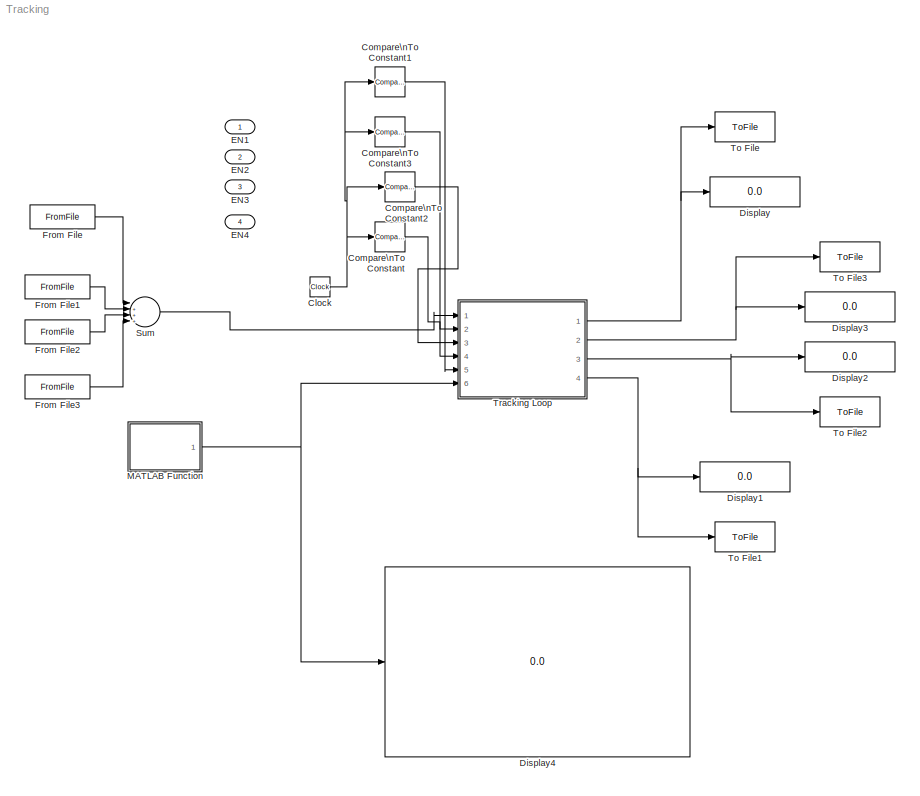
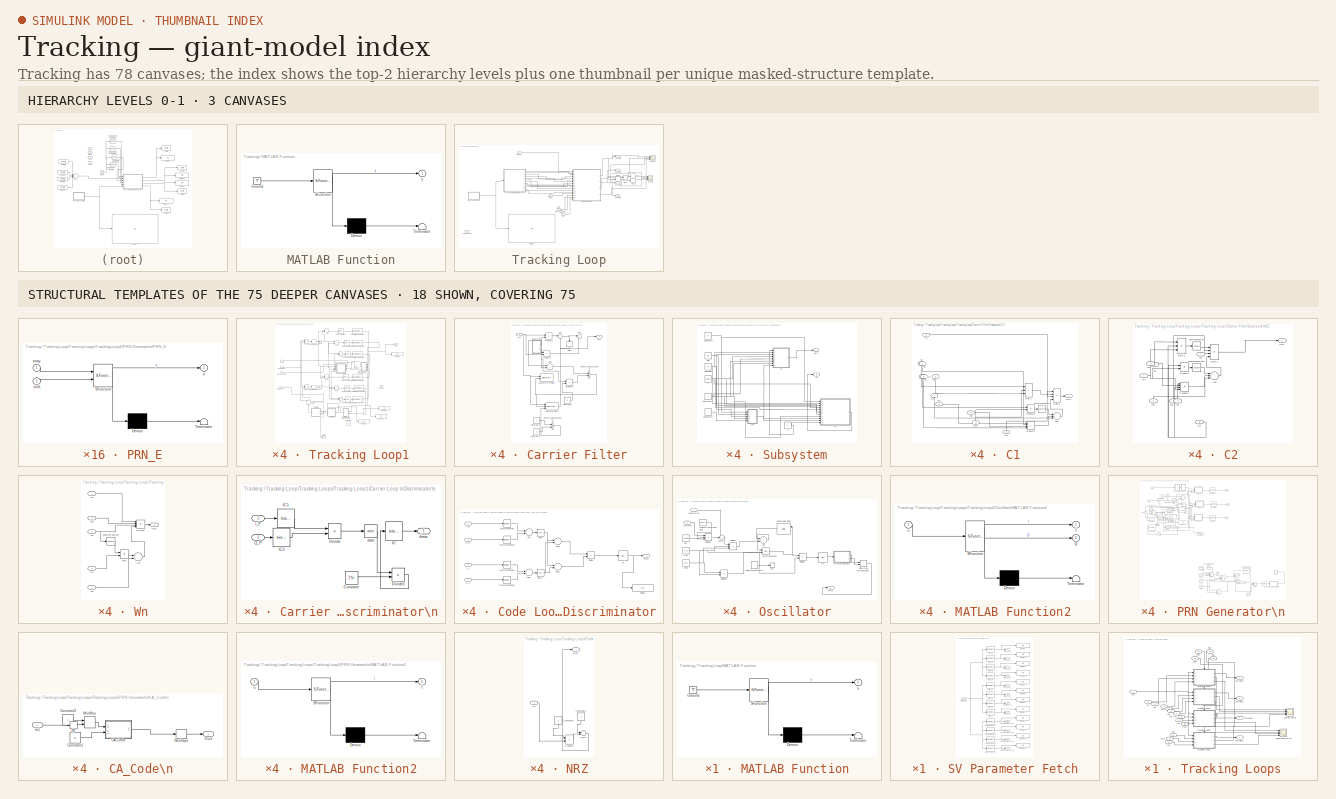
[diagram: thumbnail index - top-2 hierarchy levels (3 canvases) + 18 structural-template representatives of the remaining 75 canvases]
MODEL Tracking
KIND model
BLOCK [Clock] Clock
  SID = 1120
BLOCK [Reference] Compare\nTo Constant  REF=simulink/Logic and Bit\nOperations/Compare\nTo Constant
  OutDataTypeStr = boolean
  Ports = [1, 1]
  SID = 1121
  SourceBlock = simulink/Logic and Bit\nOperations/Compare\nTo Constant
  SourceProductBaseCode = SL
  SourceProductName = Simulink
  SourceType = Compare To Constant
  ZeroCross = on
  const = 0.021
  relop = >=
BLOCK [Reference] Compare\nTo Constant1  REF=simulink/Logic and Bit\nOperations/Compare\nTo Constant
  OutDataTypeStr = boolean
  Ports = [1, 1]
  SID = 1122
  SourceBlock = simulink/Logic and Bit\nOperations/Compare\nTo Constant
  SourceProductBaseCode = SL
  SourceProductName = Simulink
  SourceType = Compare To Constant
  ZeroCross = on
  const = 0.084
  relop = >=
BLOCK [Reference] Compare\nTo Constant2  REF=simulink/Logic and Bit\nOperations/Compare\nTo Constant
  OutDataTypeStr = boolean
  Ports = [1, 1]
  SID = 1123
  SourceBlock = simulink/Logic and Bit\nOperations/Compare\nTo Constant
  SourceProductBaseCode = SL
  SourceProductName = Simulink
  SourceType = Compare To Constant
  ZeroCross = on
  const = 0.042
  relop = >=
BLOCK [Reference] Compare\nTo Constant3  REF=simulink/Logic and Bit\nOperations/Compare\nTo Constant
  OutDataTypeStr = boolean
  Ports = [1, 1]
  SID = 1124
  SourceBlock = simulink/Logic and Bit\nOperations/Compare\nTo Constant
  SourceProductBaseCode = SL
  SourceProductName = Simulink
  SourceType = Compare To Constant
  ZeroCross = on
  const = 0.063
  relop = >=
BLOCK [Display] Display
  Decimation = 1
  Ports = [1]
  SID = 1125
BLOCK [Display] Display1
  Decimation = 1
  Ports = [1]
  SID = 1126
BLOCK [Display] Display2
  Decimation = 1
  Ports = [1]
  SID = 1127
BLOCK [Display] Display3
  Decimation = 1
  Ports = [1]
  SID = 1128
BLOCK [Display] Display4
  Decimation = 1
  Ports = [1]
  SID = 1144
BLOCK [Inport] EN1
  IconDisplay = Port number
  SID = 2171
BLOCK [Inport] EN2
  IconDisplay = Port number
  Port = 2
  SID = 2172
BLOCK [Inport] EN3
  IconDisplay = Port number
  Port = 3
  SID = 2173
BLOCK [Inport] EN4
  IconDisplay = Port number
  Port = 4
  SID = 2174
BLOCK [FromFile] From File
  FileName = Tracking_Test_4sig_1.mat
  SID = 2175
  SampleTime = 0
BLOCK [FromFile] From File1
  FileName = Tracking_Test_4sig_2.mat
  SID = 2176
  SampleTime = 0
BLOCK [FromFile] From File2
  FileName = Tracking_Test_4sig_3.mat
  SID = 2177
  SampleTime = 0
BLOCK [FromFile] From File3
  FileName = Tracking_Test_4sig_4.mat
  SID = 2178
  SampleTime = 0
BLOCK [SubSystem] MATLAB Function
  ErrorFcn = Stateflow.Translate.translate
  PermitHierarchicalResolution = ExplicitOnly
  Ports = [0, 1]
  RequestExecContextInheritance = off
  SFBlockType = MATLAB Function
  SID = 1145
  Variant = off
BLOCK [Demux] MATLAB Function/ Demux 
  Outputs = 1
  Ports = [1, 1]
  SID = 1145::20
BLOCK [Ground] MATLAB Function/ Ground 
  SID = 1145::24
BLOCK [S-Function] MATLAB Function/ SFunction 
  EnableBusSupport = on
  FunctionName = sf_sfun
  PortCounts = [1 2]
  Ports = [1, 2]
  SFcnIsStateOwnerBlock = off
  SFunctionDeploymentMode = off
  SID = 1145::19
  Tag = Stateflow S-Function Tracking 22
BLOCK [Terminator] MATLAB Function/ Terminator 
  SID = 1145::21
BLOCK [Outport] MATLAB Function/y
  IconDisplay = Port number
  SID = 1145::25
BLOCK [Sum] Sum
  IconShape = round
  InputSameDT = off
  Inputs = |++++|
  OutDataTypeStr = Inherit: Inherit via internal rule
  Ports = [4, 1]
  SID = 2179
  SaturateOnIntegerOverflow = off
BLOCK [ToFile] To File
  Commented = on
  Filename = SV1_Data
  MatrixName = SV1
  Ports = [1]
  SID = 1133
  SampleTime = 0.01
BLOCK [ToFile] To File1
  Commented = on
  Filename = SV4_Data
  MatrixName = SV4
  Ports = [1]
  SID = 1134
  SampleTime = 0.01
BLOCK [ToFile] To File2
  Commented = on
  Filename = SV3_Data
  MatrixName = SV3
  Ports = [1]
  SID = 1135
  SampleTime = 0.01
BLOCK [ToFile] To File3
  Commented = on
  Filename = SV2_Data
  MatrixName = SV2
  Ports = [1]
  SID = 1136
  SampleTime = 0.01
BLOCK [SubSystem] Tracking Loop
  Ports = [6, 4]
  RequestExecContextInheritance = off
  SID = 2188
  TreatAsAtomicUnit = on
  Variant = off
BLOCK [Inport] Tracking Loop/ACQ_Results
  IconDisplay = Port number
  Port = 6
  SID = 2194
BLOCK [Display] Tracking Loop/Display
  Decimation = 1
  Ports = [1]
  SID = 2195
BLOCK [Inport] Tracking Loop/EN1
  IconDisplay = Port number
  Port = 2
  SID = 2190
BLOCK [Inport] Tracking Loop/EN2
  IconDisplay = Port number
  Port = 3
  SID = 2191
BLOCK [Inport] Tracking Loop/EN3
  IconDisplay = Port number
  Port = 4
  SID = 2192
BLOCK [Inport] Tracking Loop/EN4
  IconDisplay = Port number
  Port = 5
  SID = 2193
BLOCK [SubSystem] Tracking Loop/MATLAB Function
  ErrorFcn = Stateflow.Translate.translate
  PermitHierarchicalResolution = ExplicitOnly
  Ports = [0, 1]
  RequestExecContextInheritance = off
  SFBlockType = MATLAB Function
  SID = 2196
  TreatAsAtomicUnit = on
  Variant = off
BLOCK [Demux] Tracking Loop/MATLAB Function/ Demux 
  Outputs = 1
  Ports = [1, 1]
  SID = 2196::20
BLOCK [Ground] Tracking Loop/MATLAB Function/ Ground 
  SID = 2196::24
BLOCK [S-Function] Tracking Loop/MATLAB Function/ SFunction 
  EnableBusSupport = on
  FunctionName = sf_sfun
  PortCounts = [1 2]
  Ports = [1, 2]
  SFcnIsStateOwnerBlock = off
  SFunctionDeploymentMode = off
  SID = 2196::19
  Tag = Stateflow S-Function Tracking 1
BLOCK [Terminator] Tracking Loop/MATLAB Function/ Terminator 
  SID = 2196::21
BLOCK [Outport] Tracking Loop/MATLAB Function/y
  IconDisplay = Port number
  SID = 2196::25
BLOCK [SubSystem] Tracking Loop/SV Parameter Fetch
  Ports = [1, 12]
  RequestExecContextInheritance = off
  SID = 2197
  Variant = off
BLOCK [Inport] Tracking Loop/SV Parameter Fetch/ACQ results
  IconDisplay = Port number
  SID = 2198
BLOCK [Reference] Tracking Loop/SV Parameter Fetch/CodePhase_1  REF=dspmtrx3/Submatrix
  ColEndIndex = 1
  ColEndMode = Last
  ColSpan = One column
  ColStartIndex = 4
  ColStartMode = Index
  Ports = [1, 1]
  RowEndIndex = 1
  RowEndMode = Last
  RowSpan = One row
  RowStartIndex = 1
  RowStartMode = Index
  SID = 2199
  SourceBlock = dspmtrx3/Submatrix
  SourceProductBaseCode = DS
  SourceProductName = DSP System Toolbox
  SourceType = Submatrix
BLOCK [Reference] Tracking Loop/SV Parameter Fetch/CodePhase_2  REF=dspmtrx3/Submatrix
  ColEndIndex = 1
  ColEndMode = Last
  ColSpan = One column
  ColStartIndex = 4
  ColStartMode = Index
  Ports = [1, 1]
  RowEndIndex = 1
  RowEndMode = Last
  RowSpan = One row
  RowStartIndex = 2
  RowStartMode = Index
  SID = 2200
  SourceBlock = dspmtrx3/Submatrix
  SourceProductBaseCode = DS
  SourceProductName = DSP System Toolbox
  SourceType = Submatrix
BLOCK [Reference] Tracking Loop/SV Parameter Fetch/CodePhase_3  REF=dspmtrx3/Submatrix
  ColEndIndex = 1
  ColEndMode = Last
  ColSpan = One column
  ColStartIndex = 4
  ColStartMode = Index
  Ports = [1, 1]
  RowEndIndex = 1
  RowEndMode = Last
  RowSpan = One row
  RowStartIndex = 3
  RowStartMode = Index
  SID = 2201
  SourceBlock = dspmtrx3/Submatrix
  SourceProductBaseCode = DS
  SourceProductName = DSP System Toolbox
  SourceType = Submatrix
BLOCK [Reference] Tracking Loop/SV Parameter Fetch/CodePhase_4  REF=dspmtrx3/Submatrix
  ColEndIndex = 1
  ColEndMode = Last
  ColSpan = One column
  ColStartIndex = 4
  ColStartMode = Index
  Ports = [1, 1]
  RowEndIndex = 1
  RowEndMode = Last
  RowSpan = One row
  RowStartIndex = 4
  RowStartMode = Index
  SID = 2202
  SourceBlock = dspmtrx3/Submatrix
  SourceProductBaseCode = DS
  SourceProductName = DSP System Toolbox
  SourceType = Submatrix
BLOCK [Outport] Tracking Loop/SV Parameter Fetch/CodePhase_SV_1
  IconDisplay = Port number
  Port = 3
  SID = 2225
BLOCK [Outport] Tracking Loop/SV Parameter Fetch/CodePhase_SV_2
  IconDisplay = Port number
  Port = 6
  SID = 2228
BLOCK [Outport] Tracking Loop/SV Parameter Fetch/CodePhase_SV_3
  IconDisplay = Port number
  Port = 9
  SID = 2231
BLOCK [Outport] Tracking Loop/SV Parameter Fetch/CodePhase_SV_4
  IconDisplay = Port number
  Port = 12
  SID = 2234
BLOCK [Display] Tracking Loop/SV Parameter Fetch/Display
  Decimation = 1
  Ports = [1]
  SID = 2203
BLOCK [Display] Tracking Loop/SV Parameter Fetch/Display1
  Decimation = 1
  Ports = [1]
  SID = 2204
BLOCK [Display] Tracking Loop/SV Parameter Fetch/Display10
  Decimation = 1
  Ports = [1]
  SID = 2205
BLOCK [Display] Tracking Loop/SV Parameter Fetch/Display11
  Decimation = 1
  Ports = [1]
  SID = 2206
BLOCK [Display] Tracking Loop/SV Parameter Fetch/Display2
  Decimation = 1
  Ports = [1]
  SID = 2207
BLOCK [Display] Tracking Loop/SV Parameter Fetch/Display3
  Decimation = 1
  Ports = [1]
  SID = 2208
BLOCK [Display] Tracking Loop/SV Parameter Fetch/Display4
  Decimation = 1
  Ports = [1]
  SID = 2209
BLOCK [Display] Tracking Loop/SV Parameter Fetch/Display5
  Decimation = 1
  Ports = [1]
  SID = 2210
BLOCK [Display] Tracking Loop/SV Parameter Fetch/Display6
  Decimation = 1
  Ports = [1]
  SID = 2211
BLOCK [Display] Tracking Loop/SV Parameter Fetch/Display7
  Decimation = 1
  Ports = [1]
  SID = 2212
BLOCK [Display] Tracking Loop/SV Parameter Fetch/Display8
  Decimation = 1
  Ports = [1]
  SID = 2213
BLOCK [Display] Tracking Loop/SV Parameter Fetch/Display9
  Decimation = 1
  Ports = [1]
  SID = 2214
BLOCK [Reference] Tracking Loop/SV Parameter Fetch/Freq_1  REF=dspmtrx3/Submatrix
  ColEndIndex = 1
  ColEndMode = Last
  ColSpan = One column
  ColStartIndex = 3
  ColStartMode = Index
  Ports = [1, 1]
  RowEndIndex = 1
  RowEndMode = Last
  RowSpan = One row
  RowStartIndex = 1
  RowStartMode = Index
  SID = 2215
  SourceBlock = dspmtrx3/Submatrix
  SourceProductBaseCode = DS
  SourceProductName = DSP System Toolbox
  SourceType = Submatrix
BLOCK [Reference] Tracking Loop/SV Parameter Fetch/Freq_2  REF=dspmtrx3/Submatrix
  ColEndIndex = 1
  ColEndMode = Last
  ColSpan = One column
  ColStartIndex = 3
  ColStartMode = Index
  Ports = [1, 1]
  RowEndIndex = 1
  RowEndMode = Last
  RowSpan = One row
  RowStartIndex = 2
  RowStartMode = Index
  SID = 2216
  SourceBlock = dspmtrx3/Submatrix
  SourceProductBaseCode = DS
  SourceProductName = DSP System Toolbox
  SourceType = Submatrix
BLOCK [Reference] Tracking Loop/SV Parameter Fetch/Freq_3  REF=dspmtrx3/Submatrix
  ColEndIndex = 1
  ColEndMode = Last
  ColSpan = One column
  ColStartIndex = 3
  ColStartMode = Index
  Ports = [1, 1]
  RowEndIndex = 1
  RowEndMode = Last
  RowSpan = One row
  RowStartIndex = 3
  RowStartMode = Index
  SID = 2217
  SourceBlock = dspmtrx3/Submatrix
  SourceProductBaseCode = DS
  SourceProductName = DSP System Toolbox
  SourceType = Submatrix
BLOCK [Reference] Tracking Loop/SV Parameter Fetch/Freq_4  REF=dspmtrx3/Submatrix
  ColEndIndex = 1
  ColEndMode = Last
  ColSpan = One column
  ColStartIndex = 3
  ColStartMode = Index
  Ports = [1, 1]
  RowEndIndex = 1
  RowEndMode = Last
  RowSpan = One row
  RowStartIndex = 4
  RowStartMode = Index
  SID = 2218
  SourceBlock = dspmtrx3/Submatrix
  SourceProductBaseCode = DS
  SourceProductName = DSP System Toolbox
  SourceType = Submatrix
BLOCK [Outport] Tracking Loop/SV Parameter Fetch/Freq_SV_1
  IconDisplay = Port number
  Port = 2
  SID = 2224
BLOCK [Outport] Tracking Loop/SV Parameter Fetch/Freq_SV_2
  IconDisplay = Port number
  Port = 5
  SID = 2227
BLOCK [Outport] Tracking Loop/SV Parameter Fetch/Freq_SV_3
  IconDisplay = Port number
  Port = 8
  SID = 2230
BLOCK [Outport] Tracking Loop/SV Parameter Fetch/Freq_SV_4
  IconDisplay = Port number
  Port = 11
  SID = 2233
BLOCK [Reference] Tracking Loop/SV Parameter Fetch/PRN_1  REF=dspmtrx3/Submatrix
  ColEndIndex = 1
  ColEndMode = Last
  ColSpan = One column
  ColStartIndex = 2
  ColStartMode = Index
  Ports = [1, 1]
  RowEndIndex = 1
  RowEndMode = Last
  RowSpan = One row
  RowStartIndex = 1
  RowStartMode = Index
  SID = 2219
  SourceBlock = dspmtrx3/Submatrix
  SourceProductBaseCode = DS
  SourceProductName = DSP System Toolbox
  SourceType = Submatrix
BLOCK [Reference] Tracking Loop/SV Parameter Fetch/PRN_2  REF=dspmtrx3/Submatrix
  ColEndIndex = 1
  ColEndMode = Last
  ColSpan = One column
  ColStartIndex = 2
  ColStartMode = Index
  Ports = [1, 1]
  RowEndIndex = 1
  RowEndMode = Last
  RowSpan = One row
  RowStartIndex = 2
  RowStartMode = Index
  SID = 2220
  SourceBlock = dspmtrx3/Submatrix
  SourceProductBaseCode = DS
  SourceProductName = DSP System Toolbox
  SourceType = Submatrix
BLOCK [Reference] Tracking Loop/SV Parameter Fetch/PRN_3  REF=dspmtrx3/Submatrix
  ColEndIndex = 1
  ColEndMode = Last
  ColSpan = One column
  ColStartIndex = 2
  ColStartMode = Index
  Ports = [1, 1]
  RowEndIndex = 1
  RowEndMode = Last
  RowSpan = One row
  RowStartIndex = 3
  RowStartMode = Index
  SID = 2221
  SourceBlock = dspmtrx3/Submatrix
  SourceProductBaseCode = DS
  SourceProductName = DSP System Toolbox
  SourceType = Submatrix
BLOCK [Reference] Tracking Loop/SV Parameter Fetch/PRN_4  REF=dspmtrx3/Submatrix
  ColEndIndex = 1
  ColEndMode = Last
  ColSpan = One column
  ColStartIndex = 2
  ColStartMode = Index
  Ports = [1, 1]
  RowEndIndex = 1
  RowEndMode = Last
  RowSpan = One row
  RowStartIndex = 4
  RowStartMode = Index
  SID = 2222
  SourceBlock = dspmtrx3/Submatrix
  SourceProductBaseCode = DS
  SourceProductName = DSP System Toolbox
  SourceType = Submatrix
BLOCK [Outport] Tracking Loop/SV Parameter Fetch/PRN_SV_1
  IconDisplay = Port number
  SID = 2223
BLOCK [Outport] Tracking Loop/SV Parameter Fetch/PRN_SV_2
  IconDisplay = Port number
  Port = 4
  SID = 2226
BLOCK [Outport] Tracking Loop/SV Parameter Fetch/PRN_SV_3
  IconDisplay = Port number
  Port = 7
  SID = 2229
BLOCK [Outport] Tracking Loop/SV Parameter Fetch/PRN_SV_4
  IconDisplay = Port number
  Port = 10
  SID = 2232
BLOCK [Outport] Tracking Loop/SV1 Data
  IconDisplay = Port number
  SID = 3217
BLOCK [Outport] Tracking Loop/SV2 Data
  IconDisplay = Port number
  Port = 2
  SID = 3218
BLOCK [Outport] Tracking Loop/SV3 Data
  IconDisplay = Port number
  Port = 3
  SID = 3219
BLOCK [Outport] Tracking Loop/SV4 Data
  IconDisplay = Port number
  Port = 4
  SID = 3220
BLOCK [Scope] Tracking Loop/Scope
  NumInputPorts = 4
  Ports = [4]
  SID = 2235
  ScopeSpecificationString = Simulink.scopes.TimeScopeBlockCfg('CurrentConfiguration', extmgr.ConfigurationSet(extmgr.Configuration('Core','General UI',true),extmgr.Configuration('Core','Source UI',true),extmgr.Configuration('Sources','WiredSimulink',true,'DataLoggingVariableName','ScopeData1'),extmgr.Configuration('Visuals','Time Domain',true,'SerializedDisplays',{struct('MinYLimReal','-1.25','MaxYLimReal','1.25','YLabelReal...<+1465ch>
BLOCK [Scope] Tracking Loop/Scope1
  NumInputPorts = 4
  Ports = [4]
  SID = 2236
  ScopeSpecificationString = Simulink.scopes.TimeScopeBlockCfg('CurrentConfiguration', extmgr.ConfigurationSet(extmgr.Configuration('Core','General UI',true),extmgr.Configuration('Core','Source UI',true),extmgr.Configuration('Sources','WiredSimulink',true,'DataLoggingVariableName','ScopeData1'),extmgr.Configuration('Visuals','Time Domain',true,'SerializedDisplays',{struct('MinYLimReal','-1.00000','MaxYLimReal','1.00000','YLab...<+1552ch>
BLOCK [Signum] Tracking Loop/Sign
  SID = 2237
BLOCK [Signum] Tracking Loop/Sign1
  SID = 2238
BLOCK [Signum] Tracking Loop/Sign2
  SID = 2239
BLOCK [Signum] Tracking Loop/Sign3
  SID = 2240
BLOCK [Inport] Tracking Loop/Signal
  IconDisplay = Port number
  SID = 2189
BLOCK [SubSystem] Tracking Loop/Tracking Loops
  Ports = [17, 4]
  RequestExecContextInheritance = off
  SID = 2241
  Variant = off
BLOCK [Scope] Tracking Loop/Tracking Loops/Carrier Error
  NumInputPorts = 4
  Ports = [4]
  SID = 2259
  ScopeSpecificationString = Simulink.scopes.TimeScopeBlockCfg('CurrentConfiguration', extmgr.ConfigurationSet(extmgr.Configuration('Core','General UI',true),extmgr.Configuration('Core','Source UI',true),extmgr.Configuration('Sources','WiredSimulink',true,'DataLoggingVariableName','ScopeData3'),extmgr.Configuration('Visuals','Time Domain',true,'SerializedDisplays',{struct('MinYLimReal','-1.00000','MaxYLimReal','1.00000','YLab...<+1552ch>
BLOCK [Scope] Tracking Loop/Tracking Loops/Code Phase Error
  NumInputPorts = 4
  Ports = [4]
  SID = 2260
  ScopeSpecificationString = Simulink.scopes.TimeScopeBlockCfg('CurrentConfiguration', extmgr.ConfigurationSet(extmgr.Configuration('Core','General UI',true),extmgr.Configuration('Core','Source UI',true),extmgr.Configuration('Sources','WiredSimulink',true,'DataLoggingVariableName','ScopeData1'),extmgr.Configuration('Visuals','Time Domain',true,'SerializedDisplays',{struct('MinYLimReal','-1.00000','MaxYLimReal','1.00000','YLab...<+1552ch>
BLOCK [Inport] Tracking Loop/Tracking Loops/EN1
  IconDisplay = Port number
  Port = 14
  SID = 2255
BLOCK [Inport] Tracking Loop/Tracking Loops/EN2
  IconDisplay = Port number
  Port = 15
  SID = 2256
BLOCK [Inport] Tracking Loop/Tracking Loops/EN3
  IconDisplay = Port number
  Port = 16
  SID = 2257
BLOCK [Inport] Tracking Loop/Tracking Loops/EN4
  IconDisplay = Port number
  Port = 17
  SID = 2258
BLOCK [Inport] Tracking Loop/Tracking Loops/In1
  IconDisplay = Port number
  SID = 2242
BLOCK [Inport] Tracking Loop/Tracking Loops/In10
  IconDisplay = Port number
  Port = 10
  SID = 2251
BLOCK [Inport] Tracking Loop/Tracking Loops/In11
  IconDisplay = Port number
  Port = 11
  SID = 2252
BLOCK [Inport] Tracking Loop/Tracking Loops/In12
  IconDisplay = Port number
  Port = 12
  SID = 2253
BLOCK [Inport] Tracking Loop/Tracking Loops/In13
  IconDisplay = Port number
  Port = 13
  SID = 2254
BLOCK [Inport] Tracking Loop/Tracking Loops/In2
  IconDisplay = Port number
  Port = 2
  SID = 2243
BLOCK [Inport] Tracking Loop/Tracking Loops/In3
  IconDisplay = Port number
  Port = 3
  SID = 2244
BLOCK [Inport] Tracking Loop/Tracking Loops/In4
  IconDisplay = Port number
  Port = 4
  SID = 2245
BLOCK [Inport] Tracking Loop/Tracking Loops/In5
  IconDisplay = Port number
  Port = 5
  SID = 2246
BLOCK [Inport] Tracking Loop/Tracking Loops/In6
  IconDisplay = Port number
  Port = 6
  SID = 2247
BLOCK [Inport] Tracking Loop/Tracking Loops/In7
  IconDisplay = Port number
  Port = 7
  SID = 2248
BLOCK [Inport] Tracking Loop/Tracking Loops/In8
  IconDisplay = Port number
  Port = 8
  SID = 2249
BLOCK [Inport] Tracking Loop/Tracking Loops/In9
  IconDisplay = Port number
  Port = 9
  SID = 2250
BLOCK [Outport] Tracking Loop/Tracking Loops/SV1 Data
  IconDisplay = Port number
  SID = 3213
BLOCK [Outport] Tracking Loop/Tracking Loops/SV2 Data
  IconDisplay = Port number
  Port = 2
  SID = 3214
BLOCK [Outport] Tracking Loop/Tracking Loops/SV3 Data
  IconDisplay = Port number
  Port = 3
  SID = 3215
BLOCK [Outport] Tracking Loop/Tracking Loops/SV4 Data
  IconDisplay = Port number
  Port = 4
  SID = 3216
BLOCK [SubSystem] Tracking Loop/Tracking Loops/Tracking Loop1
  Ports = [4, 3, 1]
  PropExecContextOutsideSubsystem = on
  RequestExecContextInheritance = off
  SID = 2261
  TreatAsAtomicUnit = on
  Variant = off
BLOCK [SubSystem] Tracking Loop/Tracking Loops/Tracking Loop1/Carrier Filter
  Ports = [1, 1]
  RequestExecContextInheritance = off
  SID = 2267
  Variant = off
BLOCK [Sum] Tracking Loop/Tracking Loops/Tracking Loop1/Carrier Filter/Add
  InputSameDT = off
  OutDataTypeStr = Inherit: Inherit via internal rule
  Ports = [2, 1]
  SID = 2269
  SaturateOnIntegerOverflow = off
BLOCK [Constant] Tracking Loop/Tracking Loops/Tracking Loop1/Carrier Filter/Constant1
  SID = 2270
  Value = -1
BLOCK [Constant] Tracking Loop/Tracking Loops/Tracking Loop1/Carrier Filter/Constant2
  SID = 2271
BLOCK [Constant] Tracking Loop/Tracking Loops/Tracking Loop1/Carrier Filter/Constant3
  SID = 2272
  Value = -1
BLOCK [Delay] Tracking Loop/Tracking Loops/Tracking Loop1/Carrier Filter/Delay
  DelayLength = 1
  InitialCondition = 0
  InputPortMap = u0
  Ports = [1, 1]
  SID = 2273
  SampleTime = 0.001
BLOCK [DiscreteFir] Tracking Loop/Tracking Loops/Tracking Loop1/Carrier Filter/Discrete FIR Filter
  CoefSource = Input port
  Coefficients = [2 1]
  InputPortMap = u0,u1
  OutputPortMap = o0
  Ports = [2, 1]
  SID = 2274
  SampleTime = 0.001
BLOCK [DiscreteFilter] Tracking Loop/Tracking Loops/Tracking Loop1/Carrier Filter/Discrete Filter
  DenominatorSource = Input port
  InputPortMap = u0,p1,p3
  NumeratorSource = Input port
  Ports = [3, 1]
  SID = 2275
  SampleTime = 0.001
  a0EqualsOne = on
BLOCK [Inport] Tracking Loop/Tracking Loops/Tracking Loop1/Carrier Filter/In2
  IconDisplay = Port number
  SID = 2268
BLOCK [Outport] Tracking Loop/Tracking Loops/Tracking Loop1/Carrier Filter/Out1
  IconDisplay = Port number
  SID = 2340
BLOCK [Product] Tracking Loop/Tracking Loops/Tracking Loop1/Carrier Filter/Product2
  InputSameDT = off
  OutDataTypeStr = Inherit: Inherit via internal rule
  Ports = [2, 1]
  RndMeth = Floor
  SID = 2276
  SaturateOnIntegerOverflow = off
BLOCK [Product] Tracking Loop/Tracking Loops/Tracking Loop1/Carrier Filter/Product3
  InputSameDT = off
  OutDataTypeStr = Inherit: Inherit via internal rule
  Ports = [2, 1]
  RndMeth = Floor
  SID = 2277
  SaturateOnIntegerOverflow = off
BLOCK [Product] Tracking Loop/Tracking Loops/Tracking Loop1/Carrier Filter/Product4
  InputSameDT = off
  OutDataTypeStr = Inherit: Inherit via internal rule
  Ports = [2, 1]
  RndMeth = Floor
  SID = 2278
  SaturateOnIntegerOverflow = off
BLOCK [SubSystem] Tracking Loop/Tracking Loops/Tracking Loop1/Carrier Filter/Subsystem
  Ports = [0, 2]
  RequestExecContextInheritance = off
  SID = 2279
  Variant = off
BLOCK [Constant] Tracking Loop/Tracking Loops/Tracking Loop1/Carrier Filter/Subsystem/BW
  SID = 2280
  Value = 50
BLOCK [SubSystem] Tracking Loop/Tracking Loops/Tracking Loop1/Carrier Filter/Subsystem/C1
  Ports = [11, 1]
  RequestExecContextInheritance = off
  SID = 2281
  Variant = off
BLOCK [Sum] Tracking Loop/Tracking Loops/Tracking Loop1/Carrier Filter/Subsystem/C1/Add1
  InputSameDT = off
  Inputs = +++
  OutDataTypeStr = Inherit: Inherit via internal rule
  Ports = [3, 1]
  SID = 2293
  SaturateOnIntegerOverflow = off
BLOCK [Product] Tracking Loop/Tracking Loops/Tracking Loop1/Carrier Filter/Subsystem/C1/Gain 3
  InputSameDT = off
  Inputs = ***/
  OutDataTypeStr = Inherit: Inherit via internal rule
  Ports = [4, 1]
  RndMeth = Floor
  SID = 2294
  SaturateOnIntegerOverflow = off
BLOCK [Product] Tracking Loop/Tracking Loops/Tracking Loop1/Carrier Filter/Subsystem/C1/Gain 4
  InputSameDT = off
  Inputs = ***
  OutDataTypeStr = Inherit: Inherit via internal rule
  Ports = [3, 1]
  RndMeth = Floor
  SID = 2295
  SaturateOnIntegerOverflow = off
BLOCK [Inport] Tracking Loop/Tracking Loops/Tracking Loop1/Carrier Filter/Subsystem/C1/In1
  IconDisplay = Port number
  SID = 2282
BLOCK [Inport] Tracking Loop/Tracking Loops/Tracking Loop1/Carrier Filter/Subsystem/C1/In10
  IconDisplay = Port number
  Port = 10
  SID = 2291
BLOCK [Inport] Tracking Loop/Tracking Loops/Tracking Loop1/Carrier Filter/Subsystem/C1/In11
  IconDisplay = Port number
  Port = 11
  SID = 2292
BLOCK [Inport] Tracking Loop/Tracking Loops/Tracking Loop1/Carrier Filter/Subsystem/C1/In2
  IconDisplay = Port number
  Port = 2
  SID = 2283
BLOCK [Inport] Tracking Loop/Tracking Loops/Tracking Loop1/Carrier Filter/Subsystem/C1/In3
  IconDisplay = Port number
  Port = 3
  SID = 2284
BLOCK [Inport] Tracking Loop/Tracking Loops/Tracking Loop1/Carrier Filter/Subsystem/C1/In4
  IconDisplay = Port number
  Port = 4
  SID = 2285
BLOCK [Inport] Tracking Loop/Tracking Loops/Tracking Loop1/Carrier Filter/Subsystem/C1/In5
  IconDisplay = Port number
  Port = 5
  SID = 2286
BLOCK [Inport] Tracking Loop/Tracking Loops/Tracking Loop1/Carrier Filter/Subsystem/C1/In6
  IconDisplay = Port number
  Port = 6
  SID = 2287
BLOCK [Inport] Tracking Loop/Tracking Loops/Tracking Loop1/Carrier Filter/Subsystem/C1/In7
  IconDisplay = Port number
  Port = 7
  SID = 2288
BLOCK [Inport] Tracking Loop/Tracking Loops/Tracking Loop1/Carrier Filter/Subsystem/C1/In8
  IconDisplay = Port number
  Port = 8
  SID = 2289
BLOCK [Inport] Tracking Loop/Tracking Loops/Tracking Loop1/Carrier Filter/Subsystem/C1/In9
  IconDisplay = Port number
  Port = 9
  SID = 2290
BLOCK [Math] Tracking Loop/Tracking Loops/Tracking Loop1/Carrier Filter/Subsystem/C1/Math\nFunction3
  Operator = square
  Ports = [1, 1]
  SID = 2296
BLOCK [Outport] Tracking Loop/Tracking Loops/Tracking Loop1/Carrier Filter/Subsystem/C1/Out1
  IconDisplay = Port number
  SID = 2299
BLOCK [Product] Tracking Loop/Tracking Loops/Tracking Loop1/Carrier Filter/Subsystem/C1/Product3
  InputSameDT = off
  OutDataTypeStr = Inherit: Inherit via internal rule
  Ports = [2, 1]
  RndMeth = Floor
  SID = 2297
  SaturateOnIntegerOverflow = off
BLOCK [Product] Tracking Loop/Tracking Loops/Tracking Loop1/Carrier Filter/Subsystem/C1/Product4
  InputSameDT = off
  Inputs = 4
  OutDataTypeStr = Inherit: Inherit via internal rule
  Ports = [4, 1]
  RndMeth = Floor
  SID = 2298
  SaturateOnIntegerOverflow = off
BLOCK [SubSystem] Tracking Loop/Tracking Loops/Tracking Loop1/Carrier Filter/Subsystem/C2
  Ports = [8, 1]
  RequestExecContextInheritance = off
  SID = 2300
  Variant = off
BLOCK [Sum] Tracking Loop/Tracking Loops/Tracking Loop1/Carrier Filter/Subsystem/C2/Add
  InputSameDT = off
  Inputs = +++
  OutDataTypeStr = Inherit: Inherit via internal rule
  Ports = [3, 1]
  SID = 2309
  SaturateOnIntegerOverflow = off
BLOCK [Product] Tracking Loop/Tracking Loops/Tracking Loop1/Carrier Filter/Subsystem/C2/Gain 1
  InputSameDT = off
  Inputs = ***/
  OutDataTypeStr = Inherit: Inherit via internal rule
  Ports = [4, 1]
  RndMeth = Floor
  SID = 2310
  SaturateOnIntegerOverflow = off
BLOCK [Product] Tracking Loop/Tracking Loops/Tracking Loop1/Carrier Filter/Subsystem/C2/Gain 2
  InputSameDT = off
  Inputs = ***
  OutDataTypeStr = Inherit: Inherit via internal rule
  Ports = [3, 1]
  RndMeth = Floor
  SID = 2311
  SaturateOnIntegerOverflow = off
BLOCK [Inport] Tracking Loop/Tracking Loops/Tracking Loop1/Carrier Filter/Subsystem/C2/In1
  IconDisplay = Port number
  SID = 2301
BLOCK [Inport] Tracking Loop/Tracking Loops/Tracking Loop1/Carrier Filter/Subsystem/C2/In2
  IconDisplay = Port number
  Port = 2
  SID = 2302
BLOCK [Inport] Tracking Loop/Tracking Loops/Tracking Loop1/Carrier Filter/Subsystem/C2/In3
  IconDisplay = Port number
  Port = 3
  SID = 2303
BLOCK [Inport] Tracking Loop/Tracking Loops/Tracking Loop1/Carrier Filter/Subsystem/C2/In4
  IconDisplay = Port number
  Port = 4
  SID = 2304
BLOCK [Inport] Tracking Loop/Tracking Loops/Tracking Loop1/Carrier Filter/Subsystem/C2/In5
  IconDisplay = Port number
  Port = 5
  SID = 2305
BLOCK [Inport] Tracking Loop/Tracking Loops/Tracking Loop1/Carrier Filter/Subsystem/C2/In6
  IconDisplay = Port number
  Port = 6
  SID = 2306
BLOCK [Inport] Tracking Loop/Tracking Loops/Tracking Loop1/Carrier Filter/Subsystem/C2/In7
  IconDisplay = Port number
  Port = 7
  SID = 2307
BLOCK [Inport] Tracking Loop/Tracking Loops/Tracking Loop1/Carrier Filter/Subsystem/C2/In8
  IconDisplay = Port number
  Port = 8
  SID = 2308
BLOCK [Math] Tracking Loop/Tracking Loops/Tracking Loop1/Carrier Filter/Subsystem/C2/Math\nFunction
  Operator = square
  Ports = [1, 1]
  SID = 2312
BLOCK [Math] Tracking Loop/Tracking Loops/Tracking Loop1/Carrier Filter/Subsystem/C2/Math\nFunction1
  Operator = square
  Ports = [1, 1]
  SID = 2313
BLOCK [Outport] Tracking Loop/Tracking Loops/Tracking Loop1/Carrier Filter/Subsystem/C2/Out1
  IconDisplay = Port number
  SID = 2316
BLOCK [Product] Tracking Loop/Tracking Loops/Tracking Loop1/Carrier Filter/Subsystem/C2/Product1
  InputSameDT = off
  OutDataTypeStr = Inherit: Inherit via internal rule
  Ports = [2, 1]
  RndMeth = Floor
  SID = 2314
  SaturateOnIntegerOverflow = off
BLOCK [Product] Tracking Loop/Tracking Loops/Tracking Loop1/Carrier Filter/Subsystem/C2/Product2
  InputSameDT = off
  Inputs = 4
  OutDataTypeStr = Inherit: Inherit via internal rule
  Ports = [4, 1]
  RndMeth = Floor
  SID = 2315
  SaturateOnIntegerOverflow = off
BLOCK [Constant] Tracking Loop/Tracking Loops/Tracking Loop1/Carrier Filter/Subsystem/Constant1
  SID = 2317
  Value = 8
BLOCK [Constant] Tracking Loop/Tracking Loops/Tracking Loop1/Carrier Filter/Subsystem/Constant2
  SID = 2318
  Value = 4
BLOCK [Constant] Tracking Loop/Tracking Loops/Tracking Loop1/Carrier Filter/Subsystem/Constant4
  SID = 2319
BLOCK [Constant] Tracking Loop/Tracking Loops/Tracking Loop1/Carrier Filter/Subsystem/Damping
  SID = 2320
  Value = 0.7
BLOCK [Constant] Tracking Loop/Tracking Loops/Tracking Loop1/Carrier Filter/Subsystem/K
  SID = 2321
  Value = 4
BLOCK [Outport] Tracking Loop/Tracking Loops/Tracking Loop1/Carrier Filter/Subsystem/K1
  IconDisplay = Port number
  Port = 2
  SID = 2335
BLOCK [Outport] Tracking Loop/Tracking Loops/Tracking Loop1/Carrier Filter/Subsystem/K2\n
  IconDisplay = Port number
  SID = 2334
BLOCK [Constant] Tracking Loop/Tracking Loops/Tracking Loop1/Carrier Filter/Subsystem/T
  SID = 2322
  Value = 0.001
BLOCK [SubSystem] Tracking Loop/Tracking Loops/Tracking Loop1/Carrier Filter/Subsystem/Wn
  Ports = [5, 1]
  RequestExecContextInheritance = off
  SID = 2323
  Variant = off
BLOCK [Sum] Tracking Loop/Tracking Loops/Tracking Loop1/Carrier Filter/Subsystem/Wn/Add
  InputSameDT = off
  OutDataTypeStr = Inherit: Inherit via internal rule
  Ports = [2, 1]
  SID = 2329
  SaturateOnIntegerOverflow = off
BLOCK [Product] Tracking Loop/Tracking Loops/Tracking Loop1/Carrier Filter/Subsystem/Wn/Divide1
  InputSameDT = off
  Inputs = ***/
  OutDataTypeStr = Inherit: Inherit via internal rule
  Ports = [4, 1]
  RndMeth = Floor
  SID = 2330
  SaturateOnIntegerOverflow = off
BLOCK [Inport] Tracking Loop/Tracking Loops/Tracking Loop1/Carrier Filter/Subsystem/Wn/In1
  IconDisplay = Port number
  SID = 2324
BLOCK [Inport] Tracking Loop/Tracking Loops/Tracking Loop1/Carrier Filter/Subsystem/Wn/In2
  IconDisplay = Port number
  Port = 2
  SID = 2325
BLOCK [Inport] Tracking Loop/Tracking Loops/Tracking Loop1/Carrier Filter/Subsystem/Wn/In3
  IconDisplay = Port number
  Port = 3
  SID = 2326
BLOCK [Inport] Tracking Loop/Tracking Loops/Tracking Loop1/Carrier Filter/Subsystem/Wn/In4
  IconDisplay = Port number
  Port = 4
  SID = 2327
BLOCK [Inport] Tracking Loop/Tracking Loops/Tracking Loop1/Carrier Filter/Subsystem/Wn/In5
  IconDisplay = Port number
  Port = 5
  SID = 2328
BLOCK [Math] Tracking Loop/Tracking Loops/Tracking Loop1/Carrier Filter/Subsystem/Wn/Math\nFunction
  Operator = square
  Ports = [1, 1]
  SID = 2331
BLOCK [Outport] Tracking Loop/Tracking Loops/Tracking Loop1/Carrier Filter/Subsystem/Wn/Out1
  IconDisplay = Port number
  SID = 2333
BLOCK [Product] Tracking Loop/Tracking Loops/Tracking Loop1/Carrier Filter/Subsystem/Wn/Wn1
  InputSameDT = off
  OutDataTypeStr = Inherit: Inherit via internal rule
  Ports = [2, 1]
  RndMeth = Floor
  SID = 2332
  SaturateOnIntegerOverflow = off
BLOCK [Sum] Tracking Loop/Tracking Loops/Tracking Loop1/Carrier Filter/Sum
  IconShape = round
  InputSameDT = off
  Inputs = |++
  OutDataTypeStr = Inherit: Inherit via internal rule
  Ports = [2, 1]
  SID = 2336
  SaturateOnIntegerOverflow = off
BLOCK [Sum] Tracking Loop/Tracking Loops/Tracking Loop1/Carrier Filter/Sum1
  IconShape = round
  InputSameDT = off
  Inputs = |++
  OutDataTypeStr = Inherit: Inherit via internal rule
  Ports = [2, 1]
  SID = 2337
  SaturateOnIntegerOverflow = off
BLOCK [Concatenate] Tracking Loop/Tracking Loops/Tracking Loop1/Carrier Filter/Vector\nConcatenate
  Ports = [2, 1]
  SID = 2338
BLOCK [Concatenate] Tracking Loop/Tracking Loops/Tracking Loop1/Carrier Filter/Vector\nConcatenate1
  Ports = [2, 1]
  SID = 2339
BLOCK [SubSystem] Tracking Loop/Tracking Loops/Tracking Loop1/Carrier Loop \nDiscriminator\n
  Ports = [2, 1]
  RequestExecContextInheritance = off
  SID = 2341
  Variant = off
BLOCK [Constant] Tracking Loop/Tracking Loops/Tracking Loop1/Carrier Loop \nDiscriminator\n/Constant
  SID = 2344
  Value = 2*pi
BLOCK [Product] Tracking Loop/Tracking Loops/Tracking Loop1/Carrier Loop \nDiscriminator\n/Divide
  InputSameDT = off
  Inputs = /*
  OutDataTypeStr = Inherit: Inherit via internal rule
  Ports = [2, 1]
  RndMeth = Floor
  SID = 2345
  SaturateOnIntegerOverflow = off
BLOCK [Product] Tracking Loop/Tracking Loops/Tracking Loop1/Carrier Loop \nDiscriminator\n/Divide1
  InputSameDT = off
  Inputs = */
  OutDataTypeStr = Inherit: Inherit via internal rule
  Ports = [2, 1]
  RndMeth = Floor
  SID = 2346
  SaturateOnIntegerOverflow = off
BLOCK [InitialCondition] Tracking Loop/Tracking Loops/Tracking Loop1/Carrier Loop \nDiscriminator\n/IC
  SID = 2347
  Value = 0
BLOCK [InitialCondition] Tracking Loop/Tracking Loops/Tracking Loop1/Carrier Loop \nDiscriminator\n/IC1
  SID = 2348
BLOCK [InitialCondition] Tracking Loop/Tracking Loops/Tracking Loop1/Carrier Loop \nDiscriminator\n/IC2
  SID = 2349
BLOCK [Inport] Tracking Loop/Tracking Loops/Tracking Loop1/Carrier Loop \nDiscriminator\n/I_P
  IconDisplay = Port number
  SID = 2342
BLOCK [Inport] Tracking Loop/Tracking Loops/Tracking Loop1/Carrier Loop \nDiscriminator\n/Q_P
  IconDisplay = Port number
  Port = 2
  SID = 2343
BLOCK [Trigonometry] Tracking Loop/Tracking Loops/Tracking Loop1/Carrier Loop \nDiscriminator\n/atan
  Operator = atan
  Ports = [1, 1]
  SID = 2350
BLOCK [Outport] Tracking Loop/Tracking Loops/Tracking Loop1/Carrier Loop \nDiscriminator\n/theta
  IconDisplay = Port number
  SID = 2351
BLOCK [SubSystem] Tracking Loop/Tracking Loops/Tracking Loop1/Code Loop \nDiscriminator
  Ports = [4, 1]
  RequestExecContextInheritance = off
  SID = 2352
  Variant = off
BLOCK [Sum] Tracking Loop/Tracking Loops/Tracking Loop1/Code Loop \nDiscriminator/Add
  InputSameDT = off
  OutDataTypeStr = Inherit: Inherit via internal rule
  Ports = [2, 1]
  SID = 2357
  SaturateOnIntegerOverflow = off
BLOCK [Sum] Tracking Loop/Tracking Loops/Tracking Loop1/Code Loop \nDiscriminator/Add1
  InputSameDT = off
  OutDataTypeStr = Inherit: Inherit via internal rule
  Ports = [2, 1]
  SID = 2358
  SaturateOnIntegerOverflow = off
BLOCK [Sum] Tracking Loop/Tracking Loops/Tracking Loop1/Code Loop \nDiscriminator/Add2
  InputSameDT = off
  Inputs = +-
  OutDataTypeStr = Inherit: Inherit via internal rule
  Ports = [2, 1]
  SID = 2359
  SaturateOnIntegerOverflow = off
BLOCK [Sum] Tracking Loop/Tracking Loops/Tracking Loop1/Code Loop \nDiscriminator/Add3
  InputSameDT = off
  OutDataTypeStr = Inherit: Inherit via internal rule
  Ports = [2, 1]
  SID = 2360
  SaturateOnIntegerOverflow = off
BLOCK [Display] Tracking Loop/Tracking Loops/Tracking Loop1/Code Loop \nDiscriminator/Display
  Decimation = 1
  Ports = [1]
  SID = 2361
BLOCK [Product] Tracking Loop/Tracking Loops/Tracking Loop1/Code Loop \nDiscriminator/Divide
  InputSameDT = off
  Inputs = */
  OutDataTypeStr = Inherit: Inherit via internal rule
  Ports = [2, 1]
  RndMeth = Floor
  SID = 2362
  SaturateOnIntegerOverflow = off
BLOCK [InitialCondition] Tracking Loop/Tracking Loops/Tracking Loop1/Code Loop \nDiscriminator/IC
  SID = 2363
  Value = 0
BLOCK [Inport] Tracking Loop/Tracking Loops/Tracking Loop1/Code Loop \nDiscriminator/I_E
  IconDisplay = Port number
  SID = 2353
BLOCK [Inport] Tracking Loop/Tracking Loops/Tracking Loop1/Code Loop \nDiscriminator/I_L
  IconDisplay = Port number
  Port = 2
  SID = 2354
BLOCK [Math] Tracking Loop/Tracking Loops/Tracking Loop1/Code Loop \nDiscriminator/Math\nFunction
  Operator = magnitude^2
  Ports = [1, 1]
  RndMeth = Zero
  SID = 2364
BLOCK [Math] Tracking Loop/Tracking Loops/Tracking Loop1/Code Loop \nDiscriminator/Math\nFunction2
  Operator = magnitude^2
  Ports = [1, 1]
  RndMeth = Zero
  SID = 2365
BLOCK [Math] Tracking Loop/Tracking Loops/Tracking Loop1/Code Loop \nDiscriminator/Math\nFunction3
  Operator = magnitude^2
  Ports = [1, 1]
  RndMeth = Zero
  SID = 2366
BLOCK [Math] Tracking Loop/Tracking Loops/Tracking Loop1/Code Loop \nDiscriminator/Math\nFunction5
  Operator = magnitude^2
  Ports = [1, 1]
  RndMeth = Zero
  SID = 2367
BLOCK [Inport] Tracking Loop/Tracking Loops/Tracking Loop1/Code Loop \nDiscriminator/Q_E
  IconDisplay = Port number
  Port = 3
  SID = 2355
BLOCK [Inport] Tracking Loop/Tracking Loops/Tracking Loop1/Code Loop \nDiscriminator/Q_L
  IconDisplay = Port number
  Port = 4
  SID = 2356
BLOCK [Sqrt] Tracking Loop/Tracking Loops/Tracking Loop1/Code Loop \nDiscriminator/Sqrt
  SID = 2368
BLOCK [Sqrt] Tracking Loop/Tracking Loops/Tracking Loop1/Code Loop \nDiscriminator/Sqrt1
  SID = 2369
BLOCK [Outport] Tracking Loop/Tracking Loops/Tracking Loop1/Code Loop \nDiscriminator/error
  IconDisplay = Port number
  SID = 2370
  SampleTime = 0.001
BLOCK [Inport] Tracking Loop/Tracking Loops/Tracking Loop1/Code Phase1
  IconDisplay = Port number
  Port = 4
  SID = 2265
BLOCK [ComplexToRealImag] Tracking Loop/Tracking Loops/Tracking Loop1/Complex to\nReal-Imag1
  Ports = [1, 2]
  SID = 2371
BLOCK [Constant] Tracking Loop/Tracking Loops/Tracking Loop1/Constant
  SID = 2372
  SampleTime = 0.001
  Value = 0
BLOCK [Outport] Tracking Loop/Tracking Loops/Tracking Loop1/Data
  IconDisplay = Port number
  SID = 2496
BLOCK [Display] Tracking Loop/Tracking Loops/Tracking Loop1/Display
  Decimation = 1
  Ports = [1]
  SID = 2373
BLOCK [Display] Tracking Loop/Tracking Loops/Tracking Loop1/Display1
  Decimation = 1
  Ports = [1]
  SID = 2374
BLOCK [Display] Tracking Loop/Tracking Loops/Tracking Loop1/Display2
  Decimation = 1
  Ports = [1]
  SID = 2375
BLOCK [Display] Tracking Loop/Tracking Loops/Tracking Loop1/Display3
  Decimation = 1
  Ports = [1]
  SID = 2376
BLOCK [EnablePort] Tracking Loop/Tracking Loops/Tracking Loop1/Enable
  Ports = []
  SID = 2266
BLOCK [Inport] Tracking Loop/Tracking Loops/Tracking Loop1/Frequency
  IconDisplay = Port number
  Port = 3
  SID = 2264
BLOCK [Product] Tracking Loop/Tracking Loops/Tracking Loop1/I_E
  InputSameDT = off
  OutDataTypeStr = Inherit: Inherit via internal rule
  Ports = [2, 1]
  RndMeth = Floor
  SID = 2377
  SaturateOnIntegerOverflow = off
BLOCK [Product] Tracking Loop/Tracking Loops/Tracking Loop1/I_L
  InputSameDT = off
  OutDataTypeStr = Inherit: Inherit via internal rule
  Ports = [2, 1]
  RndMeth = Floor
  SID = 2378
  SaturateOnIntegerOverflow = off
BLOCK [Product] Tracking Loop/Tracking Loops/Tracking Loop1/I_P\n
  InputSameDT = off
  OutDataTypeStr = Inherit: Inherit via internal rule
  Ports = [2, 1]
  RndMeth = Floor
  SID = 2379
  SaturateOnIntegerOverflow = off
BLOCK [Inport] Tracking Loop/Tracking Loops/Tracking Loop1/Input Signal
  IconDisplay = Port number
  SID = 2262
BLOCK [Reference] Tracking Loop/Tracking Loops/Tracking Loop1/Integrate\nand Dump  REF=commfilt2/Integrate\nand Dump
  LockScale = off
  Ports = [1, 1]
  SID = 2380
  SourceBlock = commfilt2/Integrate\nand Dump
  SourceProductBaseCode = CM
  SourceProductName = Communications System Toolbox
  SourceType = Integrate and Dump
  accumDataTypeStr = Inherit: Inherit via internal rule
  accumFracLength = 30
  accumLastDataTypeStr = Inherit: Inherit via internal rule
  accumMode = Inherit via internal rule
  accumWordLength = 32
  nodump = off
  obssamples = 32768
  offsetsamples = 0
  outputDataTypeStr = Inherit: Same as accumulator
  outputFracLength = 30
  outputLastDataTypeStr = Inherit: Same as accumulator
  outputMode = Same as accumulator
  outputWordLength = 32
  overflowMode = off
  roundingMode = Floor
BLOCK [Reference] Tracking Loop/Tracking Loops/Tracking Loop1/Integrate\nand Dump1  REF=commfilt2/Integrate\nand Dump
  LockScale = off
  Ports = [1, 1]
  SID = 2381
  SourceBlock = commfilt2/Integrate\nand Dump
  SourceProductBaseCode = CM
  SourceProductName = Communications System Toolbox
  SourceType = Integrate and Dump
  accumDataTypeStr = Inherit: Inherit via internal rule
  accumFracLength = 30
  accumLastDataTypeStr = Inherit: Inherit via internal rule
  accumMode = Inherit via internal rule
  accumWordLength = 32
  nodump = off
  obssamples = 32768
  offsetsamples = 0
  outputDataTypeStr = Inherit: Same as accumulator
  outputFracLength = 30
  outputLastDataTypeStr = Inherit: Same as accumulator
  outputMode = Same as accumulator
  outputWordLength = 32
  overflowMode = off
  roundingMode = Floor
BLOCK [Reference] Tracking Loop/Tracking Loops/Tracking Loop1/Integrate\nand Dump2  REF=commfilt2/Integrate\nand Dump
  LockScale = off
  Ports = [1, 1]
  SID = 2382
  SourceBlock = commfilt2/Integrate\nand Dump
  SourceProductBaseCode = CM
  SourceProductName = Communications System Toolbox
  SourceType = Integrate and Dump
  accumDataTypeStr = Inherit: Inherit via internal rule
  accumFracLength = 30
  accumLastDataTypeStr = Inherit: Inherit via internal rule
  accumMode = Inherit via internal rule
  accumWordLength = 32
  nodump = off
  obssamples = 32768
  offsetsamples = 0
  outputDataTypeStr = Inherit: Same as accumulator
  outputFracLength = 30
  outputLastDataTypeStr = Inherit: Same as accumulator
  outputMode = Same as accumulator
  outputWordLength = 32
  overflowMode = off
  roundingMode = Floor
BLOCK [Reference] Tracking Loop/Tracking Loops/Tracking Loop1/Integrate\nand Dump3  REF=commfilt2/Integrate\nand Dump
  LockScale = off
  Ports = [1, 1]
  SID = 2383
  SourceBlock = commfilt2/Integrate\nand Dump
  SourceProductBaseCode = CM
  SourceProductName = Communications System Toolbox
  SourceType = Integrate and Dump
  accumDataTypeStr = Inherit: Inherit via internal rule
  accumFracLength = 30
  accumLastDataTypeStr = Inherit: Inherit via internal rule
  accumMode = Inherit via internal rule
  accumWordLength = 32
  nodump = off
  obssamples = 32768
  offsetsamples = 0
  outputDataTypeStr = Inherit: Same as accumulator
  outputFracLength = 30
  outputLastDataTypeStr = Inherit: Same as accumulator
  outputMode = Same as accumulator
  outputWordLength = 32
  overflowMode = off
  roundingMode = Floor
BLOCK [Reference] Tracking Loop/Tracking Loops/Tracking Loop1/Integrate\nand Dump4  REF=commfilt2/Integrate\nand Dump
  LockScale = off
  Ports = [1, 1]
  SID = 2384
  SourceBlock = commfilt2/Integrate\nand Dump
  SourceProductBaseCode = CM
  SourceProductName = Communications System Toolbox
  SourceType = Integrate and Dump
  accumDataTypeStr = Inherit: Inherit via internal rule
  accumFracLength = 30
  accumLastDataTypeStr = Inherit: Inherit via internal rule
  accumMode = Inherit via internal rule
  accumWordLength = 32
  nodump = off
  obssamples = 32768
  offsetsamples = 0
  outputDataTypeStr = Inherit: Same as accumulator
  outputFracLength = 30
  outputLastDataTypeStr = Inherit: Same as accumulator
  outputMode = Same as accumulator
  outputWordLength = 32
  overflowMode = off
  roundingMode = Floor
BLOCK [Reference] Tracking Loop/Tracking Loops/Tracking Loop1/Integrate\nand Dump5  REF=commfilt2/Integrate\nand Dump
  LockScale = off
  Ports = [1, 1]
  SID = 2385
  SourceBlock = commfilt2/Integrate\nand Dump
  SourceProductBaseCode = CM
  SourceProductName = Communications System Toolbox
  SourceType = Integrate and Dump
  accumDataTypeStr = Inherit: Inherit via internal rule
  accumFracLength = 30
  accumLastDataTypeStr = Inherit: Inherit via internal rule
  accumMode = Inherit via internal rule
  accumWordLength = 32
  nodump = off
  obssamples = 32768
  offsetsamples = 0
  outputDataTypeStr = Inherit: Same as accumulator
  outputFracLength = 30
  outputLastDataTypeStr = Inherit: Same as accumulator
  outputMode = Same as accumulator
  outputWordLength = 32
  overflowMode = off
  roundingMode = Floor
BLOCK [SubSystem] Tracking Loop/Tracking Loops/Tracking Loop1/Oscillator
  Ports = [2, 1]
  RequestExecContextInheritance = off
  SID = 2386
  Variant = off
BLOCK [Constant] Tracking Loop/Tracking Loops/Tracking Loop1/Oscillator/2*pi2
  SID = 2389
  Value = 2*pi
BLOCK [Constant] Tracking Loop/Tracking Loops/Tracking Loop1/Oscillator/2^N2
  SID = 2390
  Value = 2^16
BLOCK [Inport] Tracking Loop/Tracking Loops/Tracking Loop1/Oscillator/Acq Freq
  IconDisplay = Port number
  Port = 2
  SID = 2388
BLOCK [Sum] Tracking Loop/Tracking Loops/Tracking Loop1/Oscillator/Add
  InputSameDT = off
  OutDataTypeStr = Inherit: Inherit via internal rule
  Ports = [2, 1]
  SID = 2391
  SaturateOnIntegerOverflow = off
BLOCK [Reference] Tracking Loop/Tracking Loops/Tracking Loop1/Oscillator/Counter\nFree-Running  REF=simulink/Sources/Counter\nFree-Running
  NumBits = 15
  Ports = [0, 1]
  SID = 2392
  SourceBlock = simulink/Sources/Counter\nFree-Running
  SourceProductBaseCode = SL
  SourceProductName = Simulink
  SourceType = Counter Free-Running
  tsamp = 1/32768000
BLOCK [Product] Tracking Loop/Tracking Loops/Tracking Loop1/Oscillator/Divide1
  InputSameDT = off
  Inputs = */
  OutDataTypeStr = Inherit: Inherit via internal rule
  Ports = [2, 1]
  RndMeth = Floor
  SID = 2393
  SaturateOnIntegerOverflow = off
BLOCK [Product] Tracking Loop/Tracking Loops/Tracking Loop1/Oscillator/Divide10
  InputSameDT = off
  OutDataTypeStr = Inherit: Inherit via internal rule
  Ports = [2, 1]
  RndMeth = Floor
  SID = 2394
  SaturateOnIntegerOverflow = off
BLOCK [Product] Tracking Loop/Tracking Loops/Tracking Loop1/Oscillator/Divide8
  InputSameDT = off
  Inputs = */*
  OutDataTypeStr = Inherit: Inherit via internal rule
  Ports = [3, 1]
  RndMeth = Floor
  SID = 2395
  SaturateOnIntegerOverflow = off
BLOCK [Product] Tracking Loop/Tracking Loops/Tracking Loop1/Oscillator/Divide9
  InputSameDT = off
  Inputs = ***
  OutDataTypeStr = Inherit: Inherit via internal rule
  Ports = [3, 1]
  RndMeth = Floor
  SID = 2396
  SaturateOnIntegerOverflow = off
BLOCK [Constant] Tracking Loop/Tracking Loops/Tracking Loop1/Oscillator/Fs2
  SID = 2397
  Value = 32768000
BLOCK [InitialCondition] Tracking Loop/Tracking Loops/Tracking Loop1/Oscillator/IC
  SID = 2398
  Value = 9207000
BLOCK [SubSystem] Tracking Loop/Tracking Loops/Tracking Loop1/Oscillator/MATLAB Function2
  ErrorFcn = Stateflow.Translate.translate
  PermitHierarchicalResolution = ExplicitOnly
  Ports = [1, 2]
  RequestExecContextInheritance = off
  SFBlockType = MATLAB Function
  SID = 2399
  TreatAsAtomicUnit = on
  Variant = off
BLOCK [Demux] Tracking Loop/Tracking Loops/Tracking Loop1/Oscillator/MATLAB Function2/ Demux 
  Outputs = 1
  Ports = [1, 1]
  SID = 2399::20
BLOCK [S-Function] Tracking Loop/Tracking Loops/Tracking Loop1/Oscillator/MATLAB Function2/ SFunction 
  EnableBusSupport = on
  FunctionName = sf_sfun
  PortCounts = [1 3]
  Ports = [1, 3]
  SFcnIsStateOwnerBlock = off
  SFunctionDeploymentMode = off
  SID = 2399::19
  Tag = Stateflow S-Function Tracking 3
BLOCK [Terminator] Tracking Loop/Tracking Loops/Tracking Loop1/Oscillator/MATLAB Function2/ Terminator 
  SID = 2399::21
BLOCK [Outport] Tracking Loop/Tracking Loops/Tracking Loop1/Oscillator/MATLAB Function2/I
  IconDisplay = Port number
  SID = 2399::5
BLOCK [Outport] Tracking Loop/Tracking Loops/Tracking Loop1/Oscillator/MATLAB Function2/Q
  IconDisplay = Port number
  Port = 2
  SID = 2399::22
BLOCK [Inport] Tracking Loop/Tracking Loops/Tracking Loop1/Oscillator/MATLAB Function2/u
  IconDisplay = Port number
  SID = 2399::1
BLOCK [Math] Tracking Loop/Tracking Loops/Tracking Loop1/Oscillator/Math\nFunction
  Operator = mod
  Ports = [2, 1]
  SID = 2400
BLOCK [Outport] Tracking Loop/Tracking Loops/Tracking Loop1/Oscillator/Out1
  IconDisplay = Port number
  SID = 2406
BLOCK [DiscretePulseGenerator] Tracking Loop/Tracking Loops/Tracking Loop1/Oscillator/Pulse\nGenerator1
  Period = 0.005
  Ports = [0, 1]
  PulseType = Time based
  PulseWidth = 50
  SID = 2401
BLOCK [RateTransition] Tracking Loop/Tracking Loops/Tracking Loop1/Oscillator/RT2
  SID = 2402
BLOCK [RealImagToComplex] Tracking Loop/Tracking Loops/Tracking Loop1/Oscillator/Real-Imag to\nComplex2
  Ports = [2, 1]
  SID = 2403
BLOCK [Delay] Tracking Loop/Tracking Loops/Tracking Loop1/Oscillator/Resettable Delay
  DelayLength = 1
  ExternalReset = Rising
  InputPortMap = u0,r5
  Ports = [2, 1]
  SID = 2404
  SampleTime = 0.001
BLOCK [Sum] Tracking Loop/Tracking Loops/Tracking Loop1/Oscillator/Sum2
  IconShape = round
  InputSameDT = off
  Inputs = -+|
  OutDataTypeStr = Inherit: Inherit via internal rule
  Ports = [2, 1]
  SID = 2405
  SaturateOnIntegerOverflow = off
BLOCK [Inport] Tracking Loop/Tracking Loops/Tracking Loop1/Oscillator/phase error
  IconDisplay = Port number
  SID = 2387
BLOCK [Inport] Tracking Loop/Tracking Loops/Tracking Loop1/PRN
  IconDisplay = Port number
  Port = 2
  SID = 2263
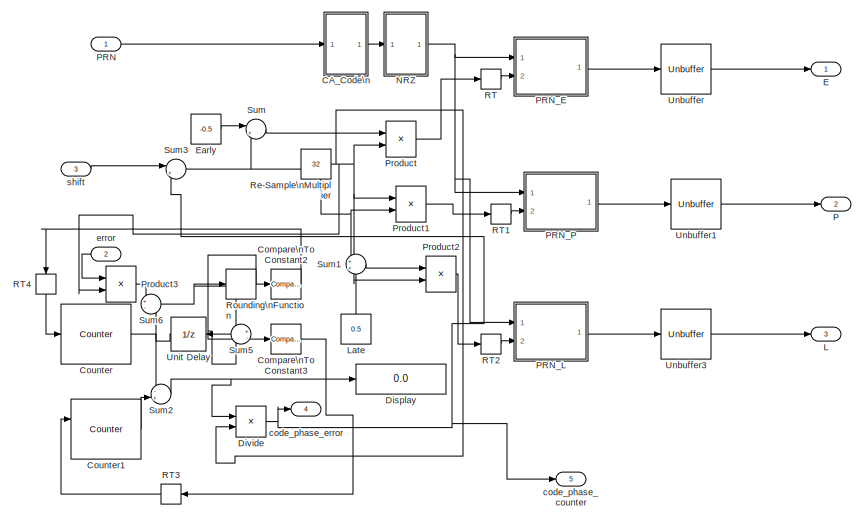
[diagram: Tracking Loop/Tracking Loops/Tracking Loop1/PRN Generator\n - part 1/2, top left region]
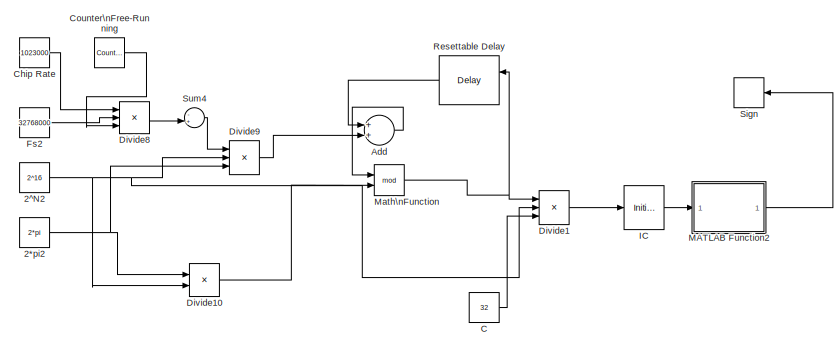
[diagram: Tracking Loop/Tracking Loops/Tracking Loop1/PRN Generator\n - part 2/2, bottom right region]
BLOCK [SubSystem] Tracking Loop/Tracking Loops/Tracking Loop1/PRN Generator\n
  Ports = [3, 5]
  RequestExecContextInheritance = off
  SID = 2407
  Variant = off
BLOCK [Constant] Tracking Loop/Tracking Loops/Tracking Loop1/PRN Generator\n/2*pi2
  Commented = on
  SID = 2411
  Value = 2*pi
BLOCK [Constant] Tracking Loop/Tracking Loops/Tracking Loop1/PRN Generator\n/2^N2
  Commented = on
  SID = 2412
  Value = 2^16
BLOCK [Sum] Tracking Loop/Tracking Loops/Tracking Loop1/PRN Generator\n/Add
  Commented = on
  InputSameDT = off
  OutDataTypeStr = Inherit: Inherit via internal rule
  Ports = [2, 1]
  SID = 2413
  SaturateOnIntegerOverflow = off
BLOCK [Constant] Tracking Loop/Tracking Loops/Tracking Loop1/PRN Generator\n/C
  Commented = on
  SID = 2414
  Value = 32
BLOCK [SubSystem] Tracking Loop/Tracking Loops/Tracking Loop1/PRN Generator\n/CA_Code\n
  Ports = [1, 1]
  RequestExecContextInheritance = off
  SID = 2415
  Variant = off
BLOCK [SubSystem] Tracking Loop/Tracking Loops/Tracking Loop1/PRN Generator\n/CA_Code\n/CA_Code
  ErrorFcn = Stateflow.Translate.translate
  PermitHierarchicalResolution = ExplicitOnly
  Ports = [2, 1]
  RequestExecContextInheritance = off
  SFBlockType = MATLAB Function
  SID = 2417
  SystemSampleTime = 0.001
  TreatAsAtomicUnit = on
  Variant = off
BLOCK [Demux] Tracking Loop/Tracking Loops/Tracking Loop1/PRN Generator\n/CA_Code\n/CA_Code/ Demux 
  Outputs = 1
  Ports = [1, 1]
  SID = 2417::20
BLOCK [S-Function] Tracking Loop/Tracking Loops/Tracking Loop1/PRN Generator\n/CA_Code\n/CA_Code/ SFunction 
  EnableBusSupport = on
  FunctionName = sf_sfun
  PortCounts = [2 2]
  Ports = [2, 2]
  SFcnIsStateOwnerBlock = off
  SFunctionDeploymentMode = off
  SID = 2417::19
  Tag = Stateflow S-Function Tracking 4
BLOCK [Terminator] Tracking Loop/Tracking Loops/Tracking Loop1/PRN Generator\n/CA_Code\n/CA_Code/ Terminator 
  SID = 2417::21
BLOCK [Inport] Tracking Loop/Tracking Loops/Tracking Loop1/PRN Generator\n/CA_Code\n/CA_Code/fs
  IconDisplay = Port number
  Port = 2
  SID = 2417::22
BLOCK [Outport] Tracking Loop/Tracking Loops/Tracking Loop1/PRN Generator\n/CA_Code\n/CA_Code/g
  IconDisplay = Port number
  SID = 2417::5
BLOCK [Inport] Tracking Loop/Tracking Loops/Tracking Loop1/PRN Generator\n/CA_Code\n/CA_Code/sv
  IconDisplay = Port number
  SID = 2417::1
BLOCK [Constant] Tracking Loop/Tracking Loops/Tracking Loop1/PRN Generator\n/CA_Code\n/Constant1
  SID = 2418
  Value = 32
BLOCK [Constant] Tracking Loop/Tracking Loops/Tracking Loop1/PRN Generator\n/CA_Code\n/Constant2
  SID = 2419
BLOCK [Inport] Tracking Loop/Tracking Loops/Tracking Loop1/PRN Generator\n/CA_Code\n/In1
  IconDisplay = Port number
  SID = 2416
BLOCK [MinMax] Tracking Loop/Tracking Loops/Tracking Loop1/PRN Generator\n/CA_Code\n/MinMax
  Function = max
  InputSameDT = off
  Inputs = 2
  Ports = [2, 1]
  SID = 2420
  SaturateOnIntegerOverflow = off
BLOCK [Outport] Tracking Loop/Tracking Loops/Tracking Loop1/PRN Generator\n/CA_Code\n/Out1
  IconDisplay = Port number
  SID = 2423
BLOCK [RateTransition] Tracking Loop/Tracking Loops/Tracking Loop1/PRN Generator\n/CA_Code\n/RT
  OutPortSampleTime = 0.001
  SID = 2421
BLOCK [Reshape] Tracking Loop/Tracking Loops/Tracking Loop1/PRN Generator\n/CA_Code\n/Reshape
  OutputDimensionality = Column vector (2-D)
  Ports = [1, 1]
  SID = 2422
BLOCK [Constant] Tracking Loop/Tracking Loops/Tracking Loop1/PRN Generator\n/Chip Rate
  Commented = on
  SID = 2424
  Value = 1023000
BLOCK [Reference] Tracking Loop/Tracking Loops/Tracking Loop1/PRN Generator\n/Compare\nTo Constant2  REF=simulink/Logic and Bit\nOperations/Compare\nTo Constant
  OutDataTypeStr = uint8
  Ports = [1, 1]
  SID = 2425
  SourceBlock = simulink/Logic and Bit\nOperations/Compare\nTo Constant
  SourceProductBaseCode = SL
  SourceProductName = Simulink
  SourceType = Compare To Constant
  ZeroCross = on
  const = 1
  relop = >=
BLOCK [Reference] Tracking Loop/Tracking Loops/Tracking Loop1/PRN Generator\n/Compare\nTo Constant3  REF=simulink/Logic and Bit\nOperations/Compare\nTo Constant
  OutDataTypeStr = uint8
  Ports = [1, 1]
  SID = 2426
  SourceBlock = simulink/Logic and Bit\nOperations/Compare\nTo Constant
  SourceProductBaseCode = SL
  SourceProductName = Simulink
  SourceType = Compare To Constant
  ZeroCross = on
  const = -1
  relop = <=
BLOCK [Reference] Tracking Loop/Tracking Loops/Tracking Loop1/PRN Generator\n/Counter  REF=dspswit3/Counter
  CntDtype = double
  CountEvent = Non-zero sample
  CounterSize = User defined
  Direction = Up
  HitDtype = Logical
  HitValue = 32
  InitialCount = 0
  MaxCount = 2^16
  Output = Count
  Ports = [1, 1]
  ResetInput = off
  SID = 2427
  SamplesPerFrame = 1
  SourceBlock = dspswit3/Counter
  SourceProductBaseCode = DS
  SourceProductName = DSP System Toolbox
  SourceType = Counter
  Ts = 1
BLOCK [Reference] Tracking Loop/Tracking Loops/Tracking Loop1/PRN Generator\n/Counter1  REF=dspswit3/Counter
  CntDtype = double
  CountEvent = Non-zero sample
  CounterSize = User defined
  Direction = Up
  HitDtype = Logical
  HitValue = 32
  InitialCount = 0
  MaxCount = 2^16
  Output = Count
  Ports = [2, 1]
  ResetInput = on
  SID = 2429
  SamplesPerFrame = 1
  SourceBlock = dspswit3/Counter
  SourceProductBaseCode = DS
  SourceProductName = DSP System Toolbox
  SourceType = Counter
  Ts = 1
BLOCK [Reference] Tracking Loop/Tracking Loops/Tracking Loop1/PRN Generator\n/Counter\nFree-Running  REF=simulink/Sources/Counter\nFree-Running
  Commented = on
  NumBits = 15
  Ports = [0, 1]
  SID = 2428
  SourceBlock = simulink/Sources/Counter\nFree-Running
  SourceProductBaseCode = SL
  SourceProductName = Simulink
  SourceType = Counter Free-Running
  tsamp = 1/32768000
BLOCK [Display] Tracking Loop/Tracking Loops/Tracking Loop1/PRN Generator\n/Display
  Decimation = 1
  Ports = [1]
  SID = 2430
BLOCK [Product] Tracking Loop/Tracking Loops/Tracking Loop1/PRN Generator\n/Divide
  InputSameDT = off
  Inputs = */
  OutDataTypeStr = Inherit: Inherit via internal rule
  Ports = [2, 1]
  RndMeth = Floor
  SID = 2431
  SaturateOnIntegerOverflow = off
BLOCK [Product] Tracking Loop/Tracking Loops/Tracking Loop1/PRN Generator\n/Divide1
  Commented = on
  InputSameDT = off
  Inputs = */*
  OutDataTypeStr = Inherit: Inherit via internal rule
  Ports = [3, 1]
  RndMeth = Floor
  SID = 2432
  SaturateOnIntegerOverflow = off
BLOCK [Product] Tracking Loop/Tracking Loops/Tracking Loop1/PRN Generator\n/Divide10
  Commented = on
  InputSameDT = off
  OutDataTypeStr = Inherit: Inherit via internal rule
  Ports = [2, 1]
  RndMeth = Floor
  SID = 2433
  SaturateOnIntegerOverflow = off
BLOCK [Product] Tracking Loop/Tracking Loops/Tracking Loop1/PRN Generator\n/Divide8
  Commented = on
  InputSameDT = off
  Inputs = */*
  OutDataTypeStr = Inherit: Inherit via internal rule
  Ports = [3, 1]
  RndMeth = Floor
  SID = 2434
  SaturateOnIntegerOverflow = off
BLOCK [Product] Tracking Loop/Tracking Loops/Tracking Loop1/PRN Generator\n/Divide9
  Commented = on
  InputSameDT = off
  Inputs = ***
  OutDataTypeStr = Inherit: Inherit via internal rule
  Ports = [3, 1]
  RndMeth = Floor
  SID = 2435
  SaturateOnIntegerOverflow = off
BLOCK [Outport] Tracking Loop/Tracking Loops/Tracking Loop1/PRN Generator\n/E
  IconDisplay = Port number
  SID = 2476
BLOCK [Constant] Tracking Loop/Tracking Loops/Tracking Loop1/PRN Generator\n/Early
  SID = 2436
  Value = -0.5
BLOCK [Constant] Tracking Loop/Tracking Loops/Tracking Loop1/PRN Generator\n/Fs2
  Commented = on
  SID = 2437
  Value = 32768000
BLOCK [InitialCondition] Tracking Loop/Tracking Loops/Tracking Loop1/PRN Generator\n/IC
  Commented = on
  SID = 2438
  Value = 1023000
BLOCK [Outport] Tracking Loop/Tracking Loops/Tracking Loop1/PRN Generator\n/L
  IconDisplay = Port number
  Port = 3
  SID = 2478
BLOCK [Constant] Tracking Loop/Tracking Loops/Tracking Loop1/PRN Generator\n/Late
  SID = 2439
  Value = 0.5
BLOCK [SubSystem] Tracking Loop/Tracking Loops/Tracking Loop1/PRN Generator\n/MATLAB Function2
  Commented = on
  ErrorFcn = Stateflow.Translate.translate
  PermitHierarchicalResolution = ExplicitOnly
  Ports = [1, 1]
  RequestExecContextInheritance = off
  SFBlockType = MATLAB Function
  SID = 2440
  TreatAsAtomicUnit = on
  Variant = off
BLOCK [Demux] Tracking Loop/Tracking Loops/Tracking Loop1/PRN Generator\n/MATLAB Function2/ Demux 
  Outputs = 1
  Ports = [1, 1]
  SID = 2440::20
BLOCK [S-Function] Tracking Loop/Tracking Loops/Tracking Loop1/PRN Generator\n/MATLAB Function2/ SFunction 
  EnableBusSupport = on
  FunctionName = sf_sfun
  PortCounts = [1 2]
  Ports = [1, 2]
  SFcnIsStateOwnerBlock = off
  SFunctionDeploymentMode = off
  SID = 2440::19
  Tag = Stateflow S-Function Tracking 5
BLOCK [Terminator] Tracking Loop/Tracking Loops/Tracking Loop1/PRN Generator\n/MATLAB Function2/ Terminator 
  SID = 2440::21
BLOCK [Outport] Tracking Loop/Tracking Loops/Tracking Loop1/PRN Generator\n/MATLAB Function2/I
  IconDisplay = Port number
  SID = 2440::5
BLOCK [Inport] Tracking Loop/Tracking Loops/Tracking Loop1/PRN Generator\n/MATLAB Function2/u
  IconDisplay = Port number
  SID = 2440::1
BLOCK [Math] Tracking Loop/Tracking Loops/Tracking Loop1/PRN Generator\n/Math\nFunction
  Commented = on
  Operator = mod
  Ports = [2, 1]
  SID = 2441
BLOCK [SubSystem] Tracking Loop/Tracking Loops/Tracking Loop1/PRN Generator\n/NRZ
  Ports = [1, 1]
  RequestExecContextInheritance = off
  SID = 2442
  Variant = off
BLOCK [Constant] Tracking Loop/Tracking Loops/Tracking Loop1/PRN Generator\n/NRZ/Constant5
  SID = 2444
  SampleTime = -1
  Value = 2
BLOCK [Constant] Tracking Loop/Tracking Loops/Tracking Loop1/PRN Generator\n/NRZ/Constant6
  SID = 2445
  Value = -1
BLOCK [Inport] Tracking Loop/Tracking Loops/Tracking Loop1/PRN Generator\n/NRZ/In1
  IconDisplay = Port number
  SID = 2443
BLOCK [Outport] Tracking Loop/Tracking Loops/Tracking Loop1/PRN Generator\n/NRZ/Out1
  IconDisplay = Port number
  SID = 2448
BLOCK [Product] Tracking Loop/Tracking Loops/Tracking Loop1/PRN Generator\n/NRZ/Product4
  InputSameDT = off
  OutDataTypeStr = Inherit: Inherit via internal rule
  Ports = [2, 1]
  RndMeth = Floor
  SID = 2446
  SaturateOnIntegerOverflow = off
BLOCK [Sum] Tracking Loop/Tracking Loops/Tracking Loop1/PRN Generator\n/NRZ/Sum4
  IconShape = round
  InputSameDT = off
  Inputs = |++
  OutDataTypeStr = Inherit: Inherit via internal rule
  Ports = [2, 1]
  SID = 2447
  SaturateOnIntegerOverflow = off
BLOCK [Outport] Tracking Loop/Tracking Loops/Tracking Loop1/PRN Generator\n/P
  IconDisplay = Port number
  Port = 2
  SID = 2477
BLOCK [Inport] Tracking Loop/Tracking Loops/Tracking Loop1/PRN Generator\n/PRN
  IconDisplay = Port number
  SID = 2408
BLOCK [SubSystem] Tracking Loop/Tracking Loops/Tracking Loop1/PRN Generator\n/PRN_E
  ErrorFcn = Stateflow.Translate.translate
  PermitHierarchicalResolution = ExplicitOnly
  Ports = [2, 1]
  RequestExecContextInheritance = off
  SFBlockType = MATLAB Function
  SID = 2449
  SystemSampleTime = 0.001
  TreatAsAtomicUnit = on
  Variant = off
BLOCK [Demux] Tracking Loop/Tracking Loops/Tracking Loop1/PRN Generator\n/PRN_E/ Demux 
  Outputs = 1
  Ports = [1, 1]
  SID = 2449::20
BLOCK [S-Function] Tracking Loop/Tracking Loops/Tracking Loop1/PRN Generator\n/PRN_E/ SFunction 
  EnableBusSupport = on
  FunctionName = sf_sfun
  PortCounts = [2 2]
  Ports = [2, 2]
  SFcnIsStateOwnerBlock = off
  SFunctionDeploymentMode = off
  SID = 2449::19
  Tag = Stateflow S-Function Tracking 6
BLOCK [Terminator] Tracking Loop/Tracking Loops/Tracking Loop1/PRN Generator\n/PRN_E/ Terminator 
  SID = 2449::21
BLOCK [Inport] Tracking Loop/Tracking Loops/Tracking Loop1/PRN Generator\n/PRN_E/array
  IconDisplay = Port number
  SID = 2449::1
BLOCK [Inport] Tracking Loop/Tracking Loops/Tracking Loop1/PRN Generator\n/PRN_E/shift
  IconDisplay = Port number
  Port = 2
  SID = 2449::22
BLOCK [Outport] Tracking Loop/Tracking Loops/Tracking Loop1/PRN Generator\n/PRN_E/y
  IconDisplay = Port number
  SID = 2449::5
BLOCK [SubSystem] Tracking Loop/Tracking Loops/Tracking Loop1/PRN Generator\n/PRN_L
  ErrorFcn = Stateflow.Translate.translate
  PermitHierarchicalResolution = ExplicitOnly
  Ports = [2, 1]
  RequestExecContextInheritance = off
  SFBlockType = MATLAB Function
  SID = 2450
  SystemSampleTime = 0.001
  TreatAsAtomicUnit = on
  Variant = off
BLOCK [Demux] Tracking Loop/Tracking Loops/Tracking Loop1/PRN Generator\n/PRN_L/ Demux 
  Outputs = 1
  Ports = [1, 1]
  SID = 2450::20
BLOCK [S-Function] Tracking Loop/Tracking Loops/Tracking Loop1/PRN Generator\n/PRN_L/ SFunction 
  EnableBusSupport = on
  FunctionName = sf_sfun
  PortCounts = [2 2]
  Ports = [2, 2]
  SFcnIsStateOwnerBlock = off
  SFunctionDeploymentMode = off
  SID = 2450::19
  Tag = Stateflow S-Function Tracking 11
BLOCK [Terminator] Tracking Loop/Tracking Loops/Tracking Loop1/PRN Generator\n/PRN_L/ Terminator 
  SID = 2450::21
BLOCK [Inport] Tracking Loop/Tracking Loops/Tracking Loop1/PRN Generator\n/PRN_L/array
  IconDisplay = Port number
  SID = 2450::1
BLOCK [Inport] Tracking Loop/Tracking Loops/Tracking Loop1/PRN Generator\n/PRN_L/shift
  IconDisplay = Port number
  Port = 2
  SID = 2450::22
BLOCK [Outport] Tracking Loop/Tracking Loops/Tracking Loop1/PRN Generator\n/PRN_L/y
  IconDisplay = Port number
  SID = 2450::5
BLOCK [SubSystem] Tracking Loop/Tracking Loops/Tracking Loop1/PRN Generator\n/PRN_P
  ErrorFcn = Stateflow.Translate.translate
  PermitHierarchicalResolution = ExplicitOnly
  Ports = [2, 1]
  RequestExecContextInheritance = off
  SFBlockType = MATLAB Function
  SID = 2451
  SystemSampleTime = 0.001
  TreatAsAtomicUnit = on
  Variant = off
BLOCK [Demux] Tracking Loop/Tracking Loops/Tracking Loop1/PRN Generator\n/PRN_P/ Demux 
  Outputs = 1
  Ports = [1, 1]
  SID = 2451::20
BLOCK [S-Function] Tracking Loop/Tracking Loops/Tracking Loop1/PRN Generator\n/PRN_P/ SFunction 
  EnableBusSupport = on
  FunctionName = sf_sfun
  PortCounts = [2 2]
  Ports = [2, 2]
  SFcnIsStateOwnerBlock = off
  SFunctionDeploymentMode = off
  SID = 2451::19
  Tag = Stateflow S-Function Tracking 12
BLOCK [Terminator] Tracking Loop/Tracking Loops/Tracking Loop1/PRN Generator\n/PRN_P/ Terminator 
  SID = 2451::21
BLOCK [Inport] Tracking Loop/Tracking Loops/Tracking Loop1/PRN Generator\n/PRN_P/array
  IconDisplay = Port number
  SID = 2451::1
BLOCK [Inport] Tracking Loop/Tracking Loops/Tracking Loop1/PRN Generator\n/PRN_P/shift
  IconDisplay = Port number
  Port = 2
  SID = 2451::22
BLOCK [Outport] Tracking Loop/Tracking Loops/Tracking Loop1/PRN Generator\n/PRN_P/y
  IconDisplay = Port number
  SID = 2451::5
BLOCK [Product] Tracking Loop/Tracking Loops/Tracking Loop1/PRN Generator\n/Product
  InputSameDT = off
  OutDataTypeStr = Inherit: Inherit via internal rule
  Ports = [2, 1]
  RndMeth = Floor
  SID = 2452
  SaturateOnIntegerOverflow = off
BLOCK [Product] Tracking Loop/Tracking Loops/Tracking Loop1/PRN Generator\n/Product1
  InputSameDT = off
  OutDataTypeStr = Inherit: Inherit via internal rule
  Ports = [2, 1]
  RndMeth = Floor
  SID = 2453
  SaturateOnIntegerOverflow = off
BLOCK [Product] Tracking Loop/Tracking Loops/Tracking Loop1/PRN Generator\n/Product2
  InputSameDT = off
  OutDataTypeStr = Inherit: Inherit via internal rule
  Ports = [2, 1]
  RndMeth = Floor
  SID = 2454
  SaturateOnIntegerOverflow = off
BLOCK [Product] Tracking Loop/Tracking Loops/Tracking Loop1/PRN Generator\n/Product3
  InputSameDT = off
  OutDataTypeStr = Inherit: Inherit via internal rule
  Ports = [2, 1]
  RndMeth = Floor
  SID = 2455
  SaturateOnIntegerOverflow = off
BLOCK [RateTransition] Tracking Loop/Tracking Loops/Tracking Loop1/PRN Generator\n/RT
  OutPortSampleTime = 0.001
  SID = 2456
BLOCK [RateTransition] Tracking Loop/Tracking Loops/Tracking Loop1/PRN Generator\n/RT1
  OutPortSampleTime = 0.001
  SID = 2457
BLOCK [RateTransition] Tracking Loop/Tracking Loops/Tracking Loop1/PRN Generator\n/RT2
  OutPortSampleTime = 0.001
  SID = 2458
BLOCK [RateTransition] Tracking Loop/Tracking Loops/Tracking Loop1/PRN Generator\n/RT3
  OutPortSampleTime = 0.001
  SID = 2459
BLOCK [RateTransition] Tracking Loop/Tracking Loops/Tracking Loop1/PRN Generator\n/RT4
  OutPortSampleTime = 0.001
  SID = 2460
BLOCK [Constant] Tracking Loop/Tracking Loops/Tracking Loop1/PRN Generator\n/Re-Sample\nMultiplier
  SID = 2461
  Value = 32
BLOCK [Delay] Tracking Loop/Tracking Loops/Tracking Loop1/PRN Generator\n/Resettable Delay
  Commented = on
  DelayLength = 1
  ExternalReset = Rising
  InputPortMap = u0,r5
  Ports = [2, 1]
  SID = 2462
  SampleTime = 0.001
BLOCK [Rounding] Tracking Loop/Tracking Loops/Tracking Loop1/PRN Generator\n/Rounding\nFunction
  Operator = round
  SID = 2463
BLOCK [Signum] Tracking Loop/Tracking Loops/Tracking Loop1/PRN Generator\n/Sign
  Commented = on
  SID = 2464
BLOCK [Sum] Tracking Loop/Tracking Loops/Tracking Loop1/PRN Generator\n/Sum
  IconShape = round
  InputSameDT = off
  Inputs = |++
  OutDataTypeStr = Inherit: Inherit via internal rule
  Ports = [2, 1]
  SID = 2465
  SaturateOnIntegerOverflow = off
BLOCK [Sum] Tracking Loop/Tracking Loops/Tracking Loop1/PRN Generator\n/Sum1
  IconShape = round
  InputSameDT = off
  OutDataTypeStr = Inherit: Inherit via internal rule
  Ports = [2, 1]
  SID = 2466
  SaturateOnIntegerOverflow = off
BLOCK [Sum] Tracking Loop/Tracking Loops/Tracking Loop1/PRN Generator\n/Sum2
  IconShape = round
  InputSameDT = off
  Inputs = -+
  OutDataTypeStr = Inherit: Inherit via internal rule
  Ports = [2, 1]
  SID = 2467
  SaturateOnIntegerOverflow = off
BLOCK [Sum] Tracking Loop/Tracking Loops/Tracking Loop1/PRN Generator\n/Sum3
  IconShape = round
  InputSameDT = off
  Inputs = |++
  OutDataTypeStr = Inherit: Inherit via internal rule
  Ports = [2, 1]
  SID = 2468
  SaturateOnIntegerOverflow = off
BLOCK [Sum] Tracking Loop/Tracking Loops/Tracking Loop1/PRN Generator\n/Sum4
  Commented = on
  IconShape = round
  InputSameDT = off
  Inputs = -+|
  OutDataTypeStr = Inherit: Inherit via internal rule
  Ports = [2, 1]
  SID = 2469
  SaturateOnIntegerOverflow = off
BLOCK [Sum] Tracking Loop/Tracking Loops/Tracking Loop1/PRN Generator\n/Sum5
  IconShape = round
  InputSameDT = off
  Inputs = +-
  OutDataTypeStr = Inherit: Inherit via internal rule
  Ports = [2, 1]
  SID = 2470
  SaturateOnIntegerOverflow = off
BLOCK [Sum] Tracking Loop/Tracking Loops/Tracking Loop1/PRN Generator\n/Sum6
  IconShape = round
  InputSameDT = off
  Inputs = +-
  OutDataTypeStr = Inherit: Inherit via internal rule
  Ports = [2, 1]
  SID = 2471
  SaturateOnIntegerOverflow = off
BLOCK [Unbuffer] Tracking Loop/Tracking Loops/Tracking Loop1/PRN Generator\n/Unbuffer
  Ports = [1, 1]
  SID = 2472
BLOCK [Unbuffer] Tracking Loop/Tracking Loops/Tracking Loop1/PRN Generator\n/Unbuffer1
  Ports = [1, 1]
  SID = 2473
BLOCK [Unbuffer] Tracking Loop/Tracking Loops/Tracking Loop1/PRN Generator\n/Unbuffer3
  Ports = [1, 1]
  SID = 2474
BLOCK [UnitDelay] Tracking Loop/Tracking Loops/Tracking Loop1/PRN Generator\n/Unit Delay
  InputProcessing = Elements as channels (sample based)
  SID = 2475
  SampleTime = 0.001
BLOCK [Outport] Tracking Loop/Tracking Loops/Tracking Loop1/PRN Generator\n/code_phase_counter
  IconDisplay = Port number
  Port = 5
  SID = 2480
BLOCK [Outport] Tracking Loop/Tracking Loops/Tracking Loop1/PRN Generator\n/code_phase_error
  IconDisplay = Port number
  Port = 4
  SID = 2479
BLOCK [Inport] Tracking Loop/Tracking Loops/Tracking Loop1/PRN Generator\n/error
  IconDisplay = Port number
  Port = 2
  SID = 2409
  SampleTime = 0.001
BLOCK [Inport] Tracking Loop/Tracking Loops/Tracking Loop1/PRN Generator\n/shift
  IconDisplay = Port number
  Port = 3
  SID = 2410
BLOCK [Product] Tracking Loop/Tracking Loops/Tracking Loop1/Product
  InputSameDT = off
  OutDataTypeStr = Inherit: Inherit via internal rule
  Ports = [2, 1]
  RndMeth = Floor
  SID = 2481
  SaturateOnIntegerOverflow = off
BLOCK [Product] Tracking Loop/Tracking Loops/Tracking Loop1/Product1
  InputSameDT = off
  OutDataTypeStr = Inherit: Inherit via internal rule
  Ports = [2, 1]
  RndMeth = Floor
  SID = 2482
  SaturateOnIntegerOverflow = off
BLOCK [Product] Tracking Loop/Tracking Loops/Tracking Loop1/Q_E
  InputSameDT = off
  OutDataTypeStr = Inherit: Inherit via internal rule
  Ports = [2, 1]
  RndMeth = Floor
  SID = 2483
  SaturateOnIntegerOverflow = off
BLOCK [Product] Tracking Loop/Tracking Loops/Tracking Loop1/Q_L
  InputSameDT = off
  OutDataTypeStr = Inherit: Inherit via internal rule
  Ports = [2, 1]
  RndMeth = Floor
  SID = 2484
  SaturateOnIntegerOverflow = off
BLOCK [Product] Tracking Loop/Tracking Loops/Tracking Loop1/Q_P
  InputSameDT = off
  OutDataTypeStr = Inherit: Inherit via internal rule
  Ports = [2, 1]
  RndMeth = Floor
  SID = 2485
  SaturateOnIntegerOverflow = off
BLOCK [RateTransition] Tracking Loop/Tracking Loops/Tracking Loop1/RT
  SID = 2486
BLOCK [RateTransition] Tracking Loop/Tracking Loops/Tracking Loop1/RT1
  SID = 2487
BLOCK [RateTransition] Tracking Loop/Tracking Loops/Tracking Loop1/Rate Transition
  OutPortSampleTime = 3.0517578125e-8
  SID = 2488
BLOCK [RateTransition] Tracking Loop/Tracking Loops/Tracking Loop1/Rate Transition1
  OutPortSampleTime = 3.0517578125e-8
  SID = 2489
BLOCK [RateTransition] Tracking Loop/Tracking Loops/Tracking Loop1/Rate Transition2
  OutPortSampleTime = 3.0517578125e-8
  SID = 2490
BLOCK [RateTransition] Tracking Loop/Tracking Loops/Tracking Loop1/Rate Transition3
  OutPortSampleTime = 3.0517578125e-8
  SID = 2491
BLOCK [RateTransition] Tracking Loop/Tracking Loops/Tracking Loop1/Rate Transition4
  OutPortSampleTime = 3.0517578125e-8
  SID = 2492
BLOCK [RateTransition] Tracking Loop/Tracking Loops/Tracking Loop1/Rate Transition5
  OutPortSampleTime = 3.0517578125e-8
  SID = 2493
BLOCK [ZeroOrderHold] Tracking Loop/Tracking Loops/Tracking Loop1/Zero-Order\nHold
  SID = 2494
  SampleTime = 3.0517578125e-8
BLOCK [ZeroOrderHold] Tracking Loop/Tracking Loops/Tracking Loop1/Zero-Order\nHold1
  SID = 2495
  SampleTime = 3.0517578125e-8
BLOCK [Outport] Tracking Loop/Tracking Loops/Tracking Loop1/code_phase_error
  IconDisplay = Port number
  Port = 3
  SID = 2498
BLOCK [Outport] Tracking Loop/Tracking Loops/Tracking Loop1/filter error
  IconDisplay = Port number
  Port = 2
  SID = 2497
BLOCK [SubSystem] Tracking Loop/Tracking Loops/Tracking Loop2
  Ports = [4, 3, 1]
  RequestExecContextInheritance = off
  SID = 2499
  TreatAsAtomicUnit = on
  Variant = off
BLOCK [SubSystem] Tracking Loop/Tracking Loops/Tracking Loop2/Carrier Filter
  MinAlgLoopOccurrences = on
  Ports = [1, 1]
  RequestExecContextInheritance = off
  SID = 2505
  Variant = off
BLOCK [Sum] Tracking Loop/Tracking Loops/Tracking Loop2/Carrier Filter/Add
  InputSameDT = off
  OutDataTypeStr = Inherit: Inherit via internal rule
  Ports = [2, 1]
  SID = 2507
  SaturateOnIntegerOverflow = off
BLOCK [Constant] Tracking Loop/Tracking Loops/Tracking Loop2/Carrier Filter/Constant1
  SID = 2508
  Value = -1
BLOCK [Constant] Tracking Loop/Tracking Loops/Tracking Loop2/Carrier Filter/Constant2
  SID = 2509
BLOCK [Constant] Tracking Loop/Tracking Loops/Tracking Loop2/Carrier Filter/Constant3
  SID = 2510
  Value = -1
BLOCK [Delay] Tracking Loop/Tracking Loops/Tracking Loop2/Carrier Filter/Delay
  DelayLength = 1
  InitialCondition = 0
  InputPortMap = u0
  Ports = [1, 1]
  SID = 2511
  SampleTime = 0.001
BLOCK [DiscreteFir] Tracking Loop/Tracking Loops/Tracking Loop2/Carrier Filter/Discrete FIR Filter
  CoefSource = Input port
  Coefficients = [2 1]
  InputPortMap = u0,u1
  OutputPortMap = o0
  Ports = [2, 1]
  SID = 2512
  SampleTime = 0.001
BLOCK [DiscreteFilter] Tracking Loop/Tracking Loops/Tracking Loop2/Carrier Filter/Discrete Filter
  DenominatorSource = Input port
  InputPortMap = u0,p1,p3
  NumeratorSource = Input port
  Ports = [3, 1]
  SID = 2513
  SampleTime = 0.001
  a0EqualsOne = on
BLOCK [Inport] Tracking Loop/Tracking Loops/Tracking Loop2/Carrier Filter/In2
  IconDisplay = Port number
  SID = 2506
BLOCK [Outport] Tracking Loop/Tracking Loops/Tracking Loop2/Carrier Filter/Out1
  IconDisplay = Port number
  SID = 2578
BLOCK [Product] Tracking Loop/Tracking Loops/Tracking Loop2/Carrier Filter/Product2
  InputSameDT = off
  OutDataTypeStr = Inherit: Inherit via internal rule
  Ports = [2, 1]
  RndMeth = Floor
  SID = 2514
  SaturateOnIntegerOverflow = off
BLOCK [Product] Tracking Loop/Tracking Loops/Tracking Loop2/Carrier Filter/Product3
  InputSameDT = off
  OutDataTypeStr = Inherit: Inherit via internal rule
  Ports = [2, 1]
  RndMeth = Floor
  SID = 2515
  SaturateOnIntegerOverflow = off
BLOCK [Product] Tracking Loop/Tracking Loops/Tracking Loop2/Carrier Filter/Product4
  InputSameDT = off
  OutDataTypeStr = Inherit: Inherit via internal rule
  Ports = [2, 1]
  RndMeth = Floor
  SID = 2516
  SaturateOnIntegerOverflow = off
BLOCK [SubSystem] Tracking Loop/Tracking Loops/Tracking Loop2/Carrier Filter/Subsystem
  Ports = [0, 2]
  RequestExecContextInheritance = off
  SID = 2517
  Variant = off
BLOCK [Constant] Tracking Loop/Tracking Loops/Tracking Loop2/Carrier Filter/Subsystem/BW
  SID = 2518
  Value = 50
BLOCK [SubSystem] Tracking Loop/Tracking Loops/Tracking Loop2/Carrier Filter/Subsystem/C1
  Ports = [11, 1]
  RequestExecContextInheritance = off
  SID = 2519
  Variant = off
BLOCK [Sum] Tracking Loop/Tracking Loops/Tracking Loop2/Carrier Filter/Subsystem/C1/Add1
  InputSameDT = off
  Inputs = +++
  OutDataTypeStr = Inherit: Inherit via internal rule
  Ports = [3, 1]
  SID = 2531
  SaturateOnIntegerOverflow = off
BLOCK [Product] Tracking Loop/Tracking Loops/Tracking Loop2/Carrier Filter/Subsystem/C1/Gain 3
  InputSameDT = off
  Inputs = ***/
  OutDataTypeStr = Inherit: Inherit via internal rule
  Ports = [4, 1]
  RndMeth = Floor
  SID = 2532
  SaturateOnIntegerOverflow = off
BLOCK [Product] Tracking Loop/Tracking Loops/Tracking Loop2/Carrier Filter/Subsystem/C1/Gain 4
  InputSameDT = off
  Inputs = ***
  OutDataTypeStr = Inherit: Inherit via internal rule
  Ports = [3, 1]
  RndMeth = Floor
  SID = 2533
  SaturateOnIntegerOverflow = off
BLOCK [Inport] Tracking Loop/Tracking Loops/Tracking Loop2/Carrier Filter/Subsystem/C1/In1
  IconDisplay = Port number
  SID = 2520
BLOCK [Inport] Tracking Loop/Tracking Loops/Tracking Loop2/Carrier Filter/Subsystem/C1/In10
  IconDisplay = Port number
  Port = 10
  SID = 2529
BLOCK [Inport] Tracking Loop/Tracking Loops/Tracking Loop2/Carrier Filter/Subsystem/C1/In11
  IconDisplay = Port number
  Port = 11
  SID = 2530
BLOCK [Inport] Tracking Loop/Tracking Loops/Tracking Loop2/Carrier Filter/Subsystem/C1/In2
  IconDisplay = Port number
  Port = 2
  SID = 2521
BLOCK [Inport] Tracking Loop/Tracking Loops/Tracking Loop2/Carrier Filter/Subsystem/C1/In3
  IconDisplay = Port number
  Port = 3
  SID = 2522
BLOCK [Inport] Tracking Loop/Tracking Loops/Tracking Loop2/Carrier Filter/Subsystem/C1/In4
  IconDisplay = Port number
  Port = 4
  SID = 2523
BLOCK [Inport] Tracking Loop/Tracking Loops/Tracking Loop2/Carrier Filter/Subsystem/C1/In5
  IconDisplay = Port number
  Port = 5
  SID = 2524
BLOCK [Inport] Tracking Loop/Tracking Loops/Tracking Loop2/Carrier Filter/Subsystem/C1/In6
  IconDisplay = Port number
  Port = 6
  SID = 2525
BLOCK [Inport] Tracking Loop/Tracking Loops/Tracking Loop2/Carrier Filter/Subsystem/C1/In7
  IconDisplay = Port number
  Port = 7
  SID = 2526
BLOCK [Inport] Tracking Loop/Tracking Loops/Tracking Loop2/Carrier Filter/Subsystem/C1/In8
  IconDisplay = Port number
  Port = 8
  SID = 2527
BLOCK [Inport] Tracking Loop/Tracking Loops/Tracking Loop2/Carrier Filter/Subsystem/C1/In9
  IconDisplay = Port number
  Port = 9
  SID = 2528
BLOCK [Math] Tracking Loop/Tracking Loops/Tracking Loop2/Carrier Filter/Subsystem/C1/Math\nFunction3
  Operator = square
  Ports = [1, 1]
  SID = 2534
BLOCK [Outport] Tracking Loop/Tracking Loops/Tracking Loop2/Carrier Filter/Subsystem/C1/Out1
  IconDisplay = Port number
  SID = 2537
BLOCK [Product] Tracking Loop/Tracking Loops/Tracking Loop2/Carrier Filter/Subsystem/C1/Product3
  InputSameDT = off
  OutDataTypeStr = Inherit: Inherit via internal rule
  Ports = [2, 1]
  RndMeth = Floor
  SID = 2535
  SaturateOnIntegerOverflow = off
BLOCK [Product] Tracking Loop/Tracking Loops/Tracking Loop2/Carrier Filter/Subsystem/C1/Product4
  InputSameDT = off
  Inputs = 4
  OutDataTypeStr = Inherit: Inherit via internal rule
  Ports = [4, 1]
  RndMeth = Floor
  SID = 2536
  SaturateOnIntegerOverflow = off
BLOCK [SubSystem] Tracking Loop/Tracking Loops/Tracking Loop2/Carrier Filter/Subsystem/C2
  Ports = [8, 1]
  RequestExecContextInheritance = off
  SID = 2538
  Variant = off
BLOCK [Sum] Tracking Loop/Tracking Loops/Tracking Loop2/Carrier Filter/Subsystem/C2/Add
  InputSameDT = off
  Inputs = +++
  OutDataTypeStr = Inherit: Inherit via internal rule
  Ports = [3, 1]
  SID = 2547
  SaturateOnIntegerOverflow = off
BLOCK [Product] Tracking Loop/Tracking Loops/Tracking Loop2/Carrier Filter/Subsystem/C2/Gain 1
  InputSameDT = off
  Inputs = ***/
  OutDataTypeStr = Inherit: Inherit via internal rule
  Ports = [4, 1]
  RndMeth = Floor
  SID = 2548
  SaturateOnIntegerOverflow = off
BLOCK [Product] Tracking Loop/Tracking Loops/Tracking Loop2/Carrier Filter/Subsystem/C2/Gain 2
  InputSameDT = off
  Inputs = ***
  OutDataTypeStr = Inherit: Inherit via internal rule
  Ports = [3, 1]
  RndMeth = Floor
  SID = 2549
  SaturateOnIntegerOverflow = off
BLOCK [Inport] Tracking Loop/Tracking Loops/Tracking Loop2/Carrier Filter/Subsystem/C2/In1
  IconDisplay = Port number
  SID = 2539
BLOCK [Inport] Tracking Loop/Tracking Loops/Tracking Loop2/Carrier Filter/Subsystem/C2/In2
  IconDisplay = Port number
  Port = 2
  SID = 2540
BLOCK [Inport] Tracking Loop/Tracking Loops/Tracking Loop2/Carrier Filter/Subsystem/C2/In3
  IconDisplay = Port number
  Port = 3
  SID = 2541
BLOCK [Inport] Tracking Loop/Tracking Loops/Tracking Loop2/Carrier Filter/Subsystem/C2/In4
  IconDisplay = Port number
  Port = 4
  SID = 2542
BLOCK [Inport] Tracking Loop/Tracking Loops/Tracking Loop2/Carrier Filter/Subsystem/C2/In5
  IconDisplay = Port number
  Port = 5
  SID = 2543
BLOCK [Inport] Tracking Loop/Tracking Loops/Tracking Loop2/Carrier Filter/Subsystem/C2/In6
  IconDisplay = Port number
  Port = 6
  SID = 2544
BLOCK [Inport] Tracking Loop/Tracking Loops/Tracking Loop2/Carrier Filter/Subsystem/C2/In7
  IconDisplay = Port number
  Port = 7
  SID = 2545
BLOCK [Inport] Tracking Loop/Tracking Loops/Tracking Loop2/Carrier Filter/Subsystem/C2/In8
  IconDisplay = Port number
  Port = 8
  SID = 2546
BLOCK [Math] Tracking Loop/Tracking Loops/Tracking Loop2/Carrier Filter/Subsystem/C2/Math\nFunction
  Operator = square
  Ports = [1, 1]
  SID = 2550
BLOCK [Math] Tracking Loop/Tracking Loops/Tracking Loop2/Carrier Filter/Subsystem/C2/Math\nFunction1
  Operator = square
  Ports = [1, 1]
  SID = 2551
BLOCK [Outport] Tracking Loop/Tracking Loops/Tracking Loop2/Carrier Filter/Subsystem/C2/Out1
  IconDisplay = Port number
  SID = 2554
BLOCK [Product] Tracking Loop/Tracking Loops/Tracking Loop2/Carrier Filter/Subsystem/C2/Product1
  InputSameDT = off
  OutDataTypeStr = Inherit: Inherit via internal rule
  Ports = [2, 1]
  RndMeth = Floor
  SID = 2552
  SaturateOnIntegerOverflow = off
BLOCK [Product] Tracking Loop/Tracking Loops/Tracking Loop2/Carrier Filter/Subsystem/C2/Product2
  InputSameDT = off
  Inputs = 4
  OutDataTypeStr = Inherit: Inherit via internal rule
  Ports = [4, 1]
  RndMeth = Floor
  SID = 2553
  SaturateOnIntegerOverflow = off
BLOCK [Constant] Tracking Loop/Tracking Loops/Tracking Loop2/Carrier Filter/Subsystem/Constant1
  SID = 2555
  Value = 8
BLOCK [Constant] Tracking Loop/Tracking Loops/Tracking Loop2/Carrier Filter/Subsystem/Constant2
  SID = 2556
  Value = 4
BLOCK [Constant] Tracking Loop/Tracking Loops/Tracking Loop2/Carrier Filter/Subsystem/Constant4
  SID = 2557
BLOCK [Constant] Tracking Loop/Tracking Loops/Tracking Loop2/Carrier Filter/Subsystem/Damping
  SID = 2558
  Value = 0.7
BLOCK [Constant] Tracking Loop/Tracking Loops/Tracking Loop2/Carrier Filter/Subsystem/K
  SID = 2559
  Value = 4
BLOCK [Outport] Tracking Loop/Tracking Loops/Tracking Loop2/Carrier Filter/Subsystem/K1
  IconDisplay = Port number
  Port = 2
  SID = 2573
BLOCK [Outport] Tracking Loop/Tracking Loops/Tracking Loop2/Carrier Filter/Subsystem/K2\n
  IconDisplay = Port number
  SID = 2572
BLOCK [Constant] Tracking Loop/Tracking Loops/Tracking Loop2/Carrier Filter/Subsystem/T
  SID = 2560
  Value = 0.001
BLOCK [SubSystem] Tracking Loop/Tracking Loops/Tracking Loop2/Carrier Filter/Subsystem/Wn
  Ports = [5, 1]
  RequestExecContextInheritance = off
  SID = 2561
  Variant = off
BLOCK [Sum] Tracking Loop/Tracking Loops/Tracking Loop2/Carrier Filter/Subsystem/Wn/Add
  InputSameDT = off
  OutDataTypeStr = Inherit: Inherit via internal rule
  Ports = [2, 1]
  SID = 2567
  SaturateOnIntegerOverflow = off
BLOCK [Product] Tracking Loop/Tracking Loops/Tracking Loop2/Carrier Filter/Subsystem/Wn/Divide1
  InputSameDT = off
  Inputs = ***/
  OutDataTypeStr = Inherit: Inherit via internal rule
  Ports = [4, 1]
  RndMeth = Floor
  SID = 2568
  SaturateOnIntegerOverflow = off
BLOCK [Inport] Tracking Loop/Tracking Loops/Tracking Loop2/Carrier Filter/Subsystem/Wn/In1
  IconDisplay = Port number
  SID = 2562
BLOCK [Inport] Tracking Loop/Tracking Loops/Tracking Loop2/Carrier Filter/Subsystem/Wn/In2
  IconDisplay = Port number
  Port = 2
  SID = 2563
BLOCK [Inport] Tracking Loop/Tracking Loops/Tracking Loop2/Carrier Filter/Subsystem/Wn/In3
  IconDisplay = Port number
  Port = 3
  SID = 2564
BLOCK [Inport] Tracking Loop/Tracking Loops/Tracking Loop2/Carrier Filter/Subsystem/Wn/In4
  IconDisplay = Port number
  Port = 4
  SID = 2565
BLOCK [Inport] Tracking Loop/Tracking Loops/Tracking Loop2/Carrier Filter/Subsystem/Wn/In5
  IconDisplay = Port number
  Port = 5
  SID = 2566
BLOCK [Math] Tracking Loop/Tracking Loops/Tracking Loop2/Carrier Filter/Subsystem/Wn/Math\nFunction
  Operator = square
  Ports = [1, 1]
  SID = 2569
BLOCK [Outport] Tracking Loop/Tracking Loops/Tracking Loop2/Carrier Filter/Subsystem/Wn/Out1
  IconDisplay = Port number
  SID = 2571
BLOCK [Product] Tracking Loop/Tracking Loops/Tracking Loop2/Carrier Filter/Subsystem/Wn/Wn1
  InputSameDT = off
  OutDataTypeStr = Inherit: Inherit via internal rule
  Ports = [2, 1]
  RndMeth = Floor
  SID = 2570
  SaturateOnIntegerOverflow = off
BLOCK [Sum] Tracking Loop/Tracking Loops/Tracking Loop2/Carrier Filter/Sum
  IconShape = round
  InputSameDT = off
  Inputs = |++
  OutDataTypeStr = Inherit: Inherit via internal rule
  Ports = [2, 1]
  SID = 2574
  SaturateOnIntegerOverflow = off
BLOCK [Sum] Tracking Loop/Tracking Loops/Tracking Loop2/Carrier Filter/Sum1
  IconShape = round
  InputSameDT = off
  Inputs = |++
  OutDataTypeStr = Inherit: Inherit via internal rule
  Ports = [2, 1]
  SID = 2575
  SaturateOnIntegerOverflow = off
BLOCK [Concatenate] Tracking Loop/Tracking Loops/Tracking Loop2/Carrier Filter/Vector\nConcatenate
  Ports = [2, 1]
  SID = 2576
BLOCK [Concatenate] Tracking Loop/Tracking Loops/Tracking Loop2/Carrier Filter/Vector\nConcatenate1
  Ports = [2, 1]
  SID = 2577
BLOCK [SubSystem] Tracking Loop/Tracking Loops/Tracking Loop2/Carrier Loop \nDiscriminator\n
  Ports = [2, 1]
  RequestExecContextInheritance = off
  SID = 2579
  Variant = off
BLOCK [Constant] Tracking Loop/Tracking Loops/Tracking Loop2/Carrier Loop \nDiscriminator\n/Constant
  SID = 2582
  Value = 2*pi
BLOCK [Product] Tracking Loop/Tracking Loops/Tracking Loop2/Carrier Loop \nDiscriminator\n/Divide
  InputSameDT = off
  Inputs = /*
  OutDataTypeStr = Inherit: Inherit via internal rule
  Ports = [2, 1]
  RndMeth = Floor
  SID = 2583
  SaturateOnIntegerOverflow = off
BLOCK [Product] Tracking Loop/Tracking Loops/Tracking Loop2/Carrier Loop \nDiscriminator\n/Divide1
  InputSameDT = off
  Inputs = */
  OutDataTypeStr = Inherit: Inherit via internal rule
  Ports = [2, 1]
  RndMeth = Floor
  SID = 2584
  SaturateOnIntegerOverflow = off
BLOCK [InitialCondition] Tracking Loop/Tracking Loops/Tracking Loop2/Carrier Loop \nDiscriminator\n/IC
  SID = 2585
  Value = 0
BLOCK [InitialCondition] Tracking Loop/Tracking Loops/Tracking Loop2/Carrier Loop \nDiscriminator\n/IC1
  SID = 2586
BLOCK [InitialCondition] Tracking Loop/Tracking Loops/Tracking Loop2/Carrier Loop \nDiscriminator\n/IC2
  SID = 2587
BLOCK [Inport] Tracking Loop/Tracking Loops/Tracking Loop2/Carrier Loop \nDiscriminator\n/I_P
  IconDisplay = Port number
  SID = 2580
BLOCK [Inport] Tracking Loop/Tracking Loops/Tracking Loop2/Carrier Loop \nDiscriminator\n/Q_P
  IconDisplay = Port number
  Port = 2
  SID = 2581
BLOCK [Trigonometry] Tracking Loop/Tracking Loops/Tracking Loop2/Carrier Loop \nDiscriminator\n/atan
  Operator = atan
  Ports = [1, 1]
  SID = 2588
BLOCK [Outport] Tracking Loop/Tracking Loops/Tracking Loop2/Carrier Loop \nDiscriminator\n/theta
  IconDisplay = Port number
  SID = 2589
BLOCK [SubSystem] Tracking Loop/Tracking Loops/Tracking Loop2/Code Loop \nDiscriminator
  MinAlgLoopOccurrences = on
  Ports = [4, 1]
  RequestExecContextInheritance = off
  SID = 2590
  Variant = off
BLOCK [Sum] Tracking Loop/Tracking Loops/Tracking Loop2/Code Loop \nDiscriminator/Add
  InputSameDT = off
  OutDataTypeStr = Inherit: Inherit via internal rule
  Ports = [2, 1]
  SID = 2595
  SaturateOnIntegerOverflow = off
BLOCK [Sum] Tracking Loop/Tracking Loops/Tracking Loop2/Code Loop \nDiscriminator/Add1
  InputSameDT = off
  OutDataTypeStr = Inherit: Inherit via internal rule
  Ports = [2, 1]
  SID = 2596
  SaturateOnIntegerOverflow = off
BLOCK [Sum] Tracking Loop/Tracking Loops/Tracking Loop2/Code Loop \nDiscriminator/Add2
  InputSameDT = off
  Inputs = +-
  OutDataTypeStr = Inherit: Inherit via internal rule
  Ports = [2, 1]
  SID = 2597
  SaturateOnIntegerOverflow = off
BLOCK [Sum] Tracking Loop/Tracking Loops/Tracking Loop2/Code Loop \nDiscriminator/Add3
  InputSameDT = off
  OutDataTypeStr = Inherit: Inherit via internal rule
  Ports = [2, 1]
  SID = 2598
  SaturateOnIntegerOverflow = off
BLOCK [Display] Tracking Loop/Tracking Loops/Tracking Loop2/Code Loop \nDiscriminator/Display
  Decimation = 1
  Ports = [1]
  SID = 2599
BLOCK [Product] Tracking Loop/Tracking Loops/Tracking Loop2/Code Loop \nDiscriminator/Divide
  InputSameDT = off
  Inputs = */
  OutDataTypeStr = Inherit: Inherit via internal rule
  Ports = [2, 1]
  RndMeth = Floor
  SID = 2600
  SaturateOnIntegerOverflow = off
BLOCK [InitialCondition] Tracking Loop/Tracking Loops/Tracking Loop2/Code Loop \nDiscriminator/IC
  SID = 2601
  Value = 0
BLOCK [Inport] Tracking Loop/Tracking Loops/Tracking Loop2/Code Loop \nDiscriminator/I_E
  IconDisplay = Port number
  SID = 2591
BLOCK [Inport] Tracking Loop/Tracking Loops/Tracking Loop2/Code Loop \nDiscriminator/I_L
  IconDisplay = Port number
  Port = 2
  SID = 2592
BLOCK [Math] Tracking Loop/Tracking Loops/Tracking Loop2/Code Loop \nDiscriminator/Math\nFunction
  Operator = magnitude^2
  Ports = [1, 1]
  RndMeth = Zero
  SID = 2602
BLOCK [Math] Tracking Loop/Tracking Loops/Tracking Loop2/Code Loop \nDiscriminator/Math\nFunction2
  Operator = magnitude^2
  Ports = [1, 1]
  RndMeth = Zero
  SID = 2603
BLOCK [Math] Tracking Loop/Tracking Loops/Tracking Loop2/Code Loop \nDiscriminator/Math\nFunction3
  Operator = magnitude^2
  Ports = [1, 1]
  RndMeth = Zero
  SID = 2604
BLOCK [Math] Tracking Loop/Tracking Loops/Tracking Loop2/Code Loop \nDiscriminator/Math\nFunction5
  Operator = magnitude^2
  Ports = [1, 1]
  RndMeth = Zero
  SID = 2605
BLOCK [Inport] Tracking Loop/Tracking Loops/Tracking Loop2/Code Loop \nDiscriminator/Q_E
  IconDisplay = Port number
  Port = 3
  SID = 2593
BLOCK [Inport] Tracking Loop/Tracking Loops/Tracking Loop2/Code Loop \nDiscriminator/Q_L
  IconDisplay = Port number
  Port = 4
  SID = 2594
BLOCK [Sqrt] Tracking Loop/Tracking Loops/Tracking Loop2/Code Loop \nDiscriminator/Sqrt
  SID = 2606
BLOCK [Sqrt] Tracking Loop/Tracking Loops/Tracking Loop2/Code Loop \nDiscriminator/Sqrt1
  SID = 2607
BLOCK [Outport] Tracking Loop/Tracking Loops/Tracking Loop2/Code Loop \nDiscriminator/error
  IconDisplay = Port number
  SID = 2608
  SampleTime = 0.001
BLOCK [Inport] Tracking Loop/Tracking Loops/Tracking Loop2/Code Phase1
  IconDisplay = Port number
  Port = 4
  SID = 2503
BLOCK [ComplexToRealImag] Tracking Loop/Tracking Loops/Tracking Loop2/Complex to\nReal-Imag1
  Ports = [1, 2]
  SID = 2609
BLOCK [Constant] Tracking Loop/Tracking Loops/Tracking Loop2/Constant
  SID = 2610
  SampleTime = 0.001
  Value = 0
BLOCK [Outport] Tracking Loop/Tracking Loops/Tracking Loop2/Data
  IconDisplay = Port number
  SID = 2734
BLOCK [Display] Tracking Loop/Tracking Loops/Tracking Loop2/Display
  Decimation = 1
  Ports = [1]
  SID = 2611
BLOCK [Display] Tracking Loop/Tracking Loops/Tracking Loop2/Display1
  Decimation = 1
  Ports = [1]
  SID = 2612
BLOCK [Display] Tracking Loop/Tracking Loops/Tracking Loop2/Display2
  Decimation = 1
  Ports = [1]
  SID = 2613
BLOCK [Display] Tracking Loop/Tracking Loops/Tracking Loop2/Display3
  Decimation = 1
  Ports = [1]
  SID = 2614
BLOCK [EnablePort] Tracking Loop/Tracking Loops/Tracking Loop2/Enable
  Ports = []
  SID = 2504
BLOCK [Inport] Tracking Loop/Tracking Loops/Tracking Loop2/Frequency
  IconDisplay = Port number
  Port = 3
  SID = 2502
BLOCK [Product] Tracking Loop/Tracking Loops/Tracking Loop2/I_E
  InputSameDT = off
  OutDataTypeStr = Inherit: Inherit via internal rule
  Ports = [2, 1]
  RndMeth = Floor
  SID = 2615
  SaturateOnIntegerOverflow = off
BLOCK [Product] Tracking Loop/Tracking Loops/Tracking Loop2/I_L
  InputSameDT = off
  OutDataTypeStr = Inherit: Inherit via internal rule
  Ports = [2, 1]
  RndMeth = Floor
  SID = 2616
  SaturateOnIntegerOverflow = off
BLOCK [Product] Tracking Loop/Tracking Loops/Tracking Loop2/I_P\n
  InputSameDT = off
  OutDataTypeStr = Inherit: Inherit via internal rule
  Ports = [2, 1]
  RndMeth = Floor
  SID = 2617
  SaturateOnIntegerOverflow = off
BLOCK [Inport] Tracking Loop/Tracking Loops/Tracking Loop2/Input Signal
  IconDisplay = Port number
  SID = 2500
BLOCK [Reference] Tracking Loop/Tracking Loops/Tracking Loop2/Integrate\nand Dump  REF=commfilt2/Integrate\nand Dump
  LockScale = off
  Ports = [1, 1]
  SID = 2618
  SourceBlock = commfilt2/Integrate\nand Dump
  SourceProductBaseCode = CM
  SourceProductName = Communications System Toolbox
  SourceType = Integrate and Dump
  accumDataTypeStr = Inherit: Inherit via internal rule
  accumFracLength = 30
  accumLastDataTypeStr = Inherit: Inherit via internal rule
  accumMode = Inherit via internal rule
  accumWordLength = 32
  nodump = off
  obssamples = 32768
  offsetsamples = 0
  outputDataTypeStr = Inherit: Same as accumulator
  outputFracLength = 30
  outputLastDataTypeStr = Inherit: Same as accumulator
  outputMode = Same as accumulator
  outputWordLength = 32
  overflowMode = off
  roundingMode = Floor
BLOCK [Reference] Tracking Loop/Tracking Loops/Tracking Loop2/Integrate\nand Dump1  REF=commfilt2/Integrate\nand Dump
  LockScale = off
  Ports = [1, 1]
  SID = 2619
  SourceBlock = commfilt2/Integrate\nand Dump
  SourceProductBaseCode = CM
  SourceProductName = Communications System Toolbox
  SourceType = Integrate and Dump
  accumDataTypeStr = Inherit: Inherit via internal rule
  accumFracLength = 30
  accumLastDataTypeStr = Inherit: Inherit via internal rule
  accumMode = Inherit via internal rule
  accumWordLength = 32
  nodump = off
  obssamples = 32768
  offsetsamples = 0
  outputDataTypeStr = Inherit: Same as accumulator
  outputFracLength = 30
  outputLastDataTypeStr = Inherit: Same as accumulator
  outputMode = Same as accumulator
  outputWordLength = 32
  overflowMode = off
  roundingMode = Floor
BLOCK [Reference] Tracking Loop/Tracking Loops/Tracking Loop2/Integrate\nand Dump2  REF=commfilt2/Integrate\nand Dump
  LockScale = off
  Ports = [1, 1]
  SID = 2620
  SourceBlock = commfilt2/Integrate\nand Dump
  SourceProductBaseCode = CM
  SourceProductName = Communications System Toolbox
  SourceType = Integrate and Dump
  accumDataTypeStr = Inherit: Inherit via internal rule
  accumFracLength = 30
  accumLastDataTypeStr = Inherit: Inherit via internal rule
  accumMode = Inherit via internal rule
  accumWordLength = 32
  nodump = off
  obssamples = 32768
  offsetsamples = 0
  outputDataTypeStr = Inherit: Same as accumulator
  outputFracLength = 30
  outputLastDataTypeStr = Inherit: Same as accumulator
  outputMode = Same as accumulator
  outputWordLength = 32
  overflowMode = off
  roundingMode = Floor
BLOCK [Reference] Tracking Loop/Tracking Loops/Tracking Loop2/Integrate\nand Dump3  REF=commfilt2/Integrate\nand Dump
  LockScale = off
  Ports = [1, 1]
  SID = 2621
  SourceBlock = commfilt2/Integrate\nand Dump
  SourceProductBaseCode = CM
  SourceProductName = Communications System Toolbox
  SourceType = Integrate and Dump
  accumDataTypeStr = Inherit: Inherit via internal rule
  accumFracLength = 30
  accumLastDataTypeStr = Inherit: Inherit via internal rule
  accumMode = Inherit via internal rule
  accumWordLength = 32
  nodump = off
  obssamples = 32768
  offsetsamples = 0
  outputDataTypeStr = Inherit: Same as accumulator
  outputFracLength = 30
  outputLastDataTypeStr = Inherit: Same as accumulator
  outputMode = Same as accumulator
  outputWordLength = 32
  overflowMode = off
  roundingMode = Floor
BLOCK [Reference] Tracking Loop/Tracking Loops/Tracking Loop2/Integrate\nand Dump4  REF=commfilt2/Integrate\nand Dump
  LockScale = off
  Ports = [1, 1]
  SID = 2622
  SourceBlock = commfilt2/Integrate\nand Dump
  SourceProductBaseCode = CM
  SourceProductName = Communications System Toolbox
  SourceType = Integrate and Dump
  accumDataTypeStr = Inherit: Inherit via internal rule
  accumFracLength = 30
  accumLastDataTypeStr = Inherit: Inherit via internal rule
  accumMode = Inherit via internal rule
  accumWordLength = 32
  nodump = off
  obssamples = 32768
  offsetsamples = 0
  outputDataTypeStr = Inherit: Same as accumulator
  outputFracLength = 30
  outputLastDataTypeStr = Inherit: Same as accumulator
  outputMode = Same as accumulator
  outputWordLength = 32
  overflowMode = off
  roundingMode = Floor
BLOCK [Reference] Tracking Loop/Tracking Loops/Tracking Loop2/Integrate\nand Dump5  REF=commfilt2/Integrate\nand Dump
  LockScale = off
  Ports = [1, 1]
  SID = 2623
  SourceBlock = commfilt2/Integrate\nand Dump
  SourceProductBaseCode = CM
  SourceProductName = Communications System Toolbox
  SourceType = Integrate and Dump
  accumDataTypeStr = Inherit: Inherit via internal rule
  accumFracLength = 30
  accumLastDataTypeStr = Inherit: Inherit via internal rule
  accumMode = Inherit via internal rule
  accumWordLength = 32
  nodump = off
  obssamples = 32768
  offsetsamples = 0
  outputDataTypeStr = Inherit: Same as accumulator
  outputFracLength = 30
  outputLastDataTypeStr = Inherit: Same as accumulator
  outputMode = Same as accumulator
  outputWordLength = 32
  overflowMode = off
  roundingMode = Floor
BLOCK [SubSystem] Tracking Loop/Tracking Loops/Tracking Loop2/Oscillator
  Ports = [2, 1]
  RequestExecContextInheritance = off
  SID = 2624
  Variant = off
BLOCK [Constant] Tracking Loop/Tracking Loops/Tracking Loop2/Oscillator/2*pi2
  SID = 2627
  Value = 2*pi
BLOCK [Constant] Tracking Loop/Tracking Loops/Tracking Loop2/Oscillator/2^N2
  SID = 2628
  Value = 2^16
BLOCK [Inport] Tracking Loop/Tracking Loops/Tracking Loop2/Oscillator/Acq Freq
  IconDisplay = Port number
  Port = 2
  SID = 2626
BLOCK [Sum] Tracking Loop/Tracking Loops/Tracking Loop2/Oscillator/Add
  InputSameDT = off
  OutDataTypeStr = Inherit: Inherit via internal rule
  Ports = [2, 1]
  SID = 2629
  SaturateOnIntegerOverflow = off
BLOCK [Reference] Tracking Loop/Tracking Loops/Tracking Loop2/Oscillator/Counter\nFree-Running  REF=simulink/Sources/Counter\nFree-Running
  NumBits = 15
  Ports = [0, 1]
  SID = 2630
  SourceBlock = simulink/Sources/Counter\nFree-Running
  SourceProductBaseCode = SL
  SourceProductName = Simulink
  SourceType = Counter Free-Running
  tsamp = 1/32768000
BLOCK [Product] Tracking Loop/Tracking Loops/Tracking Loop2/Oscillator/Divide1
  InputSameDT = off
  Inputs = */
  OutDataTypeStr = Inherit: Inherit via internal rule
  Ports = [2, 1]
  RndMeth = Floor
  SID = 2631
  SaturateOnIntegerOverflow = off
BLOCK [Product] Tracking Loop/Tracking Loops/Tracking Loop2/Oscillator/Divide10
  InputSameDT = off
  OutDataTypeStr = Inherit: Inherit via internal rule
  Ports = [2, 1]
  RndMeth = Floor
  SID = 2632
  SaturateOnIntegerOverflow = off
BLOCK [Product] Tracking Loop/Tracking Loops/Tracking Loop2/Oscillator/Divide8
  InputSameDT = off
  Inputs = */*
  OutDataTypeStr = Inherit: Inherit via internal rule
  Ports = [3, 1]
  RndMeth = Floor
  SID = 2633
  SaturateOnIntegerOverflow = off
BLOCK [Product] Tracking Loop/Tracking Loops/Tracking Loop2/Oscillator/Divide9
  InputSameDT = off
  Inputs = ***
  OutDataTypeStr = Inherit: Inherit via internal rule
  Ports = [3, 1]
  RndMeth = Floor
  SID = 2634
  SaturateOnIntegerOverflow = off
BLOCK [Constant] Tracking Loop/Tracking Loops/Tracking Loop2/Oscillator/Fs2
  SID = 2635
  Value = 32768000
BLOCK [InitialCondition] Tracking Loop/Tracking Loops/Tracking Loop2/Oscillator/IC
  SID = 2636
  Value = 9207000
BLOCK [SubSystem] Tracking Loop/Tracking Loops/Tracking Loop2/Oscillator/MATLAB Function2
  ErrorFcn = Stateflow.Translate.translate
  PermitHierarchicalResolution = ExplicitOnly
  Ports = [1, 2]
  RequestExecContextInheritance = off
  SFBlockType = MATLAB Function
  SID = 2637
  TreatAsAtomicUnit = on
  Variant = off
BLOCK [Demux] Tracking Loop/Tracking Loops/Tracking Loop2/Oscillator/MATLAB Function2/ Demux 
  Outputs = 1
  Ports = [1, 1]
  SID = 2637::20
BLOCK [S-Function] Tracking Loop/Tracking Loops/Tracking Loop2/Oscillator/MATLAB Function2/ SFunction 
  EnableBusSupport = on
  FunctionName = sf_sfun
  PortCounts = [1 3]
  Ports = [1, 3]
  SFcnIsStateOwnerBlock = off
  SFunctionDeploymentMode = off
  SID = 2637::19
  Tag = Stateflow S-Function Tracking 7
BLOCK [Terminator] Tracking Loop/Tracking Loops/Tracking Loop2/Oscillator/MATLAB Function2/ Terminator 
  SID = 2637::21
BLOCK [Outport] Tracking Loop/Tracking Loops/Tracking Loop2/Oscillator/MATLAB Function2/I
  IconDisplay = Port number
  SID = 2637::5
BLOCK [Outport] Tracking Loop/Tracking Loops/Tracking Loop2/Oscillator/MATLAB Function2/Q
  IconDisplay = Port number
  Port = 2
  SID = 2637::22
BLOCK [Inport] Tracking Loop/Tracking Loops/Tracking Loop2/Oscillator/MATLAB Function2/u
  IconDisplay = Port number
  SID = 2637::1
BLOCK [Math] Tracking Loop/Tracking Loops/Tracking Loop2/Oscillator/Math\nFunction
  Operator = mod
  Ports = [2, 1]
  SID = 2638
BLOCK [Outport] Tracking Loop/Tracking Loops/Tracking Loop2/Oscillator/Out1
  IconDisplay = Port number
  SID = 2644
BLOCK [DiscretePulseGenerator] Tracking Loop/Tracking Loops/Tracking Loop2/Oscillator/Pulse\nGenerator1
  Period = 0.005
  Ports = [0, 1]
  PulseType = Time based
  PulseWidth = 50
  SID = 2639
BLOCK [RateTransition] Tracking Loop/Tracking Loops/Tracking Loop2/Oscillator/RT2
  SID = 2640
BLOCK [RealImagToComplex] Tracking Loop/Tracking Loops/Tracking Loop2/Oscillator/Real-Imag to\nComplex2
  Ports = [2, 1]
  SID = 2641
BLOCK [Delay] Tracking Loop/Tracking Loops/Tracking Loop2/Oscillator/Resettable Delay
  DelayLength = 1
  ExternalReset = Rising
  InputPortMap = u0,r5
  Ports = [2, 1]
  SID = 2642
  SampleTime = 0.001
BLOCK [Sum] Tracking Loop/Tracking Loops/Tracking Loop2/Oscillator/Sum2
  IconShape = round
  InputSameDT = off
  Inputs = -+|
  OutDataTypeStr = Inherit: Inherit via internal rule
  Ports = [2, 1]
  SID = 2643
  SaturateOnIntegerOverflow = off
BLOCK [Inport] Tracking Loop/Tracking Loops/Tracking Loop2/Oscillator/phase error
  IconDisplay = Port number
  SID = 2625
BLOCK [Inport] Tracking Loop/Tracking Loops/Tracking Loop2/PRN
  IconDisplay = Port number
  Port = 2
  SID = 2501
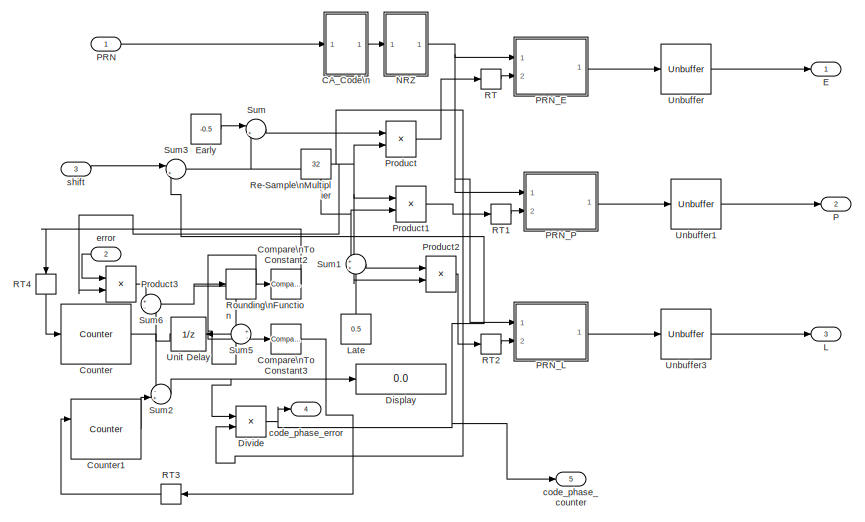
[diagram: Tracking Loop/Tracking Loops/Tracking Loop2/PRN Generator\n - part 1/2, top left region]
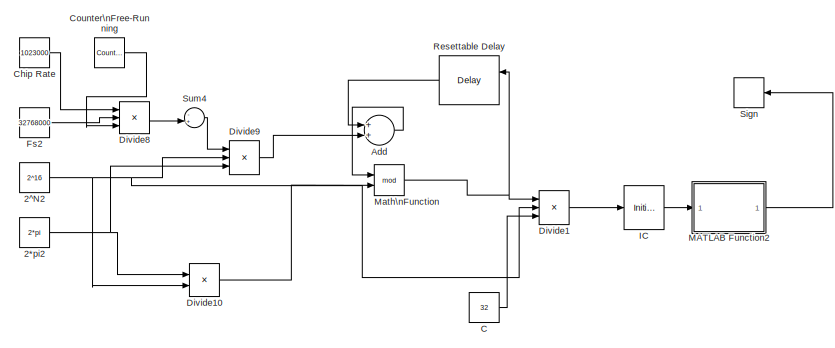
[diagram: Tracking Loop/Tracking Loops/Tracking Loop2/PRN Generator\n - part 2/2, bottom right region]
BLOCK [SubSystem] Tracking Loop/Tracking Loops/Tracking Loop2/PRN Generator\n
  MinAlgLoopOccurrences = on
  Ports = [3, 5]
  RequestExecContextInheritance = off
  SID = 2645
  Variant = off
BLOCK [Constant] Tracking Loop/Tracking Loops/Tracking Loop2/PRN Generator\n/2*pi2
  Commented = on
  SID = 2649
  Value = 2*pi
BLOCK [Constant] Tracking Loop/Tracking Loops/Tracking Loop2/PRN Generator\n/2^N2
  Commented = on
  SID = 2650
  Value = 2^16
BLOCK [Sum] Tracking Loop/Tracking Loops/Tracking Loop2/PRN Generator\n/Add
  Commented = on
  InputSameDT = off
  OutDataTypeStr = Inherit: Inherit via internal rule
  Ports = [2, 1]
  SID = 2651
  SaturateOnIntegerOverflow = off
BLOCK [Constant] Tracking Loop/Tracking Loops/Tracking Loop2/PRN Generator\n/C
  Commented = on
  SID = 2652
  Value = 32
BLOCK [SubSystem] Tracking Loop/Tracking Loops/Tracking Loop2/PRN Generator\n/CA_Code\n
  Ports = [1, 1]
  RequestExecContextInheritance = off
  SID = 2653
  Variant = off
BLOCK [SubSystem] Tracking Loop/Tracking Loops/Tracking Loop2/PRN Generator\n/CA_Code\n/CA_Code
  ErrorFcn = Stateflow.Translate.translate
  PermitHierarchicalResolution = ExplicitOnly
  Ports = [2, 1]
  RequestExecContextInheritance = off
  SFBlockType = MATLAB Function
  SID = 2655
  SystemSampleTime = 0.001
  TreatAsAtomicUnit = on
  Variant = off
BLOCK [Demux] Tracking Loop/Tracking Loops/Tracking Loop2/PRN Generator\n/CA_Code\n/CA_Code/ Demux 
  Outputs = 1
  Ports = [1, 1]
  SID = 2655::20
BLOCK [S-Function] Tracking Loop/Tracking Loops/Tracking Loop2/PRN Generator\n/CA_Code\n/CA_Code/ SFunction 
  EnableBusSupport = on
  FunctionName = sf_sfun
  PortCounts = [2 2]
  Ports = [2, 2]
  SFcnIsStateOwnerBlock = off
  SFunctionDeploymentMode = off
  SID = 2655::19
  Tag = Stateflow S-Function Tracking 8
BLOCK [Terminator] Tracking Loop/Tracking Loops/Tracking Loop2/PRN Generator\n/CA_Code\n/CA_Code/ Terminator 
  SID = 2655::21
BLOCK [Inport] Tracking Loop/Tracking Loops/Tracking Loop2/PRN Generator\n/CA_Code\n/CA_Code/fs
  IconDisplay = Port number
  Port = 2
  SID = 2655::22
BLOCK [Outport] Tracking Loop/Tracking Loops/Tracking Loop2/PRN Generator\n/CA_Code\n/CA_Code/g
  IconDisplay = Port number
  SID = 2655::5
BLOCK [Inport] Tracking Loop/Tracking Loops/Tracking Loop2/PRN Generator\n/CA_Code\n/CA_Code/sv
  IconDisplay = Port number
  SID = 2655::1
BLOCK [Constant] Tracking Loop/Tracking Loops/Tracking Loop2/PRN Generator\n/CA_Code\n/Constant1
  SID = 2656
  Value = 32
BLOCK [Constant] Tracking Loop/Tracking Loops/Tracking Loop2/PRN Generator\n/CA_Code\n/Constant2
  SID = 2657
BLOCK [Inport] Tracking Loop/Tracking Loops/Tracking Loop2/PRN Generator\n/CA_Code\n/In1
  IconDisplay = Port number
  SID = 2654
BLOCK [MinMax] Tracking Loop/Tracking Loops/Tracking Loop2/PRN Generator\n/CA_Code\n/MinMax
  Function = max
  InputSameDT = off
  Inputs = 2
  Ports = [2, 1]
  SID = 2658
  SaturateOnIntegerOverflow = off
BLOCK [Outport] Tracking Loop/Tracking Loops/Tracking Loop2/PRN Generator\n/CA_Code\n/Out1
  IconDisplay = Port number
  SID = 2661
BLOCK [RateTransition] Tracking Loop/Tracking Loops/Tracking Loop2/PRN Generator\n/CA_Code\n/RT
  OutPortSampleTime = 0.001
  SID = 2659
BLOCK [Reshape] Tracking Loop/Tracking Loops/Tracking Loop2/PRN Generator\n/CA_Code\n/Reshape
  OutputDimensionality = Column vector (2-D)
  Ports = [1, 1]
  SID = 2660
BLOCK [Constant] Tracking Loop/Tracking Loops/Tracking Loop2/PRN Generator\n/Chip Rate
  Commented = on
  SID = 2662
  Value = 1023000
BLOCK [Reference] Tracking Loop/Tracking Loops/Tracking Loop2/PRN Generator\n/Compare\nTo Constant2  REF=simulink/Logic and Bit\nOperations/Compare\nTo Constant
  OutDataTypeStr = uint8
  Ports = [1, 1]
  SID = 2663
  SourceBlock = simulink/Logic and Bit\nOperations/Compare\nTo Constant
  SourceProductBaseCode = SL
  SourceProductName = Simulink
  SourceType = Compare To Constant
  ZeroCross = on
  const = 1
  relop = >=
BLOCK [Reference] Tracking Loop/Tracking Loops/Tracking Loop2/PRN Generator\n/Compare\nTo Constant3  REF=simulink/Logic and Bit\nOperations/Compare\nTo Constant
  OutDataTypeStr = uint8
  Ports = [1, 1]
  SID = 2664
  SourceBlock = simulink/Logic and Bit\nOperations/Compare\nTo Constant
  SourceProductBaseCode = SL
  SourceProductName = Simulink
  SourceType = Compare To Constant
  ZeroCross = on
  const = -1
  relop = <=
BLOCK [Reference] Tracking Loop/Tracking Loops/Tracking Loop2/PRN Generator\n/Counter  REF=dspswit3/Counter
  CntDtype = double
  CountEvent = Non-zero sample
  CounterSize = User defined
  Direction = Up
  HitDtype = Logical
  HitValue = 32
  InitialCount = 0
  MaxCount = 2^16
  Output = Count
  Ports = [1, 1]
  ResetInput = off
  SID = 2665
  SamplesPerFrame = 1
  SourceBlock = dspswit3/Counter
  SourceProductBaseCode = DS
  SourceProductName = DSP System Toolbox
  SourceType = Counter
  Ts = 1
BLOCK [Reference] Tracking Loop/Tracking Loops/Tracking Loop2/PRN Generator\n/Counter1  REF=dspswit3/Counter
  CntDtype = double
  CountEvent = Non-zero sample
  CounterSize = User defined
  Direction = Up
  HitDtype = Logical
  HitValue = 32
  InitialCount = 0
  MaxCount = 2^16
  Output = Count
  Ports = [2, 1]
  ResetInput = on
  SID = 2667
  SamplesPerFrame = 1
  SourceBlock = dspswit3/Counter
  SourceProductBaseCode = DS
  SourceProductName = DSP System Toolbox
  SourceType = Counter
  Ts = 1
BLOCK [Reference] Tracking Loop/Tracking Loops/Tracking Loop2/PRN Generator\n/Counter\nFree-Running  REF=simulink/Sources/Counter\nFree-Running
  Commented = on
  NumBits = 15
  Ports = [0, 1]
  SID = 2666
  SourceBlock = simulink/Sources/Counter\nFree-Running
  SourceProductBaseCode = SL
  SourceProductName = Simulink
  SourceType = Counter Free-Running
  tsamp = 1/32768000
BLOCK [Display] Tracking Loop/Tracking Loops/Tracking Loop2/PRN Generator\n/Display
  Decimation = 1
  Ports = [1]
  SID = 2668
BLOCK [Product] Tracking Loop/Tracking Loops/Tracking Loop2/PRN Generator\n/Divide
  InputSameDT = off
  Inputs = */
  OutDataTypeStr = Inherit: Inherit via internal rule
  Ports = [2, 1]
  RndMeth = Floor
  SID = 2669
  SaturateOnIntegerOverflow = off
BLOCK [Product] Tracking Loop/Tracking Loops/Tracking Loop2/PRN Generator\n/Divide1
  Commented = on
  InputSameDT = off
  Inputs = */*
  OutDataTypeStr = Inherit: Inherit via internal rule
  Ports = [3, 1]
  RndMeth = Floor
  SID = 2670
  SaturateOnIntegerOverflow = off
BLOCK [Product] Tracking Loop/Tracking Loops/Tracking Loop2/PRN Generator\n/Divide10
  Commented = on
  InputSameDT = off
  OutDataTypeStr = Inherit: Inherit via internal rule
  Ports = [2, 1]
  RndMeth = Floor
  SID = 2671
  SaturateOnIntegerOverflow = off
BLOCK [Product] Tracking Loop/Tracking Loops/Tracking Loop2/PRN Generator\n/Divide8
  Commented = on
  InputSameDT = off
  Inputs = */*
  OutDataTypeStr = Inherit: Inherit via internal rule
  Ports = [3, 1]
  RndMeth = Floor
  SID = 2672
  SaturateOnIntegerOverflow = off
BLOCK [Product] Tracking Loop/Tracking Loops/Tracking Loop2/PRN Generator\n/Divide9
  Commented = on
  InputSameDT = off
  Inputs = ***
  OutDataTypeStr = Inherit: Inherit via internal rule
  Ports = [3, 1]
  RndMeth = Floor
  SID = 2673
  SaturateOnIntegerOverflow = off
BLOCK [Outport] Tracking Loop/Tracking Loops/Tracking Loop2/PRN Generator\n/E
  IconDisplay = Port number
  SID = 2714
BLOCK [Constant] Tracking Loop/Tracking Loops/Tracking Loop2/PRN Generator\n/Early
  SID = 2674
  Value = -0.5
BLOCK [Constant] Tracking Loop/Tracking Loops/Tracking Loop2/PRN Generator\n/Fs2
  Commented = on
  SID = 2675
  Value = 32768000
BLOCK [InitialCondition] Tracking Loop/Tracking Loops/Tracking Loop2/PRN Generator\n/IC
  Commented = on
  SID = 2676
  Value = 1023000
BLOCK [Outport] Tracking Loop/Tracking Loops/Tracking Loop2/PRN Generator\n/L
  IconDisplay = Port number
  Port = 3
  SID = 2716
BLOCK [Constant] Tracking Loop/Tracking Loops/Tracking Loop2/PRN Generator\n/Late
  SID = 2677
  Value = 0.5
BLOCK [SubSystem] Tracking Loop/Tracking Loops/Tracking Loop2/PRN Generator\n/MATLAB Function2
  Commented = on
  ErrorFcn = Stateflow.Translate.translate
  PermitHierarchicalResolution = ExplicitOnly
  Ports = [1, 1]
  RequestExecContextInheritance = off
  SFBlockType = MATLAB Function
  SID = 2678
  TreatAsAtomicUnit = on
  Variant = off
BLOCK [Demux] Tracking Loop/Tracking Loops/Tracking Loop2/PRN Generator\n/MATLAB Function2/ Demux 
  Outputs = 1
  Ports = [1, 1]
  SID = 2678::20
BLOCK [S-Function] Tracking Loop/Tracking Loops/Tracking Loop2/PRN Generator\n/MATLAB Function2/ SFunction 
  EnableBusSupport = on
  FunctionName = sf_sfun
  PortCounts = [1 2]
  Ports = [1, 2]
  SFcnIsStateOwnerBlock = off
  SFunctionDeploymentMode = off
  SID = 2678::19
  Tag = Stateflow S-Function Tracking 9
BLOCK [Terminator] Tracking Loop/Tracking Loops/Tracking Loop2/PRN Generator\n/MATLAB Function2/ Terminator 
  SID = 2678::21
BLOCK [Outport] Tracking Loop/Tracking Loops/Tracking Loop2/PRN Generator\n/MATLAB Function2/I
  IconDisplay = Port number
  SID = 2678::5
BLOCK [Inport] Tracking Loop/Tracking Loops/Tracking Loop2/PRN Generator\n/MATLAB Function2/u
  IconDisplay = Port number
  SID = 2678::1
BLOCK [Math] Tracking Loop/Tracking Loops/Tracking Loop2/PRN Generator\n/Math\nFunction
  Commented = on
  Operator = mod
  Ports = [2, 1]
  SID = 2679
BLOCK [SubSystem] Tracking Loop/Tracking Loops/Tracking Loop2/PRN Generator\n/NRZ
  Ports = [1, 1]
  RequestExecContextInheritance = off
  SID = 2680
  Variant = off
BLOCK [Constant] Tracking Loop/Tracking Loops/Tracking Loop2/PRN Generator\n/NRZ/Constant5
  SID = 2682
  SampleTime = -1
  Value = 2
BLOCK [Constant] Tracking Loop/Tracking Loops/Tracking Loop2/PRN Generator\n/NRZ/Constant6
  SID = 2683
  Value = -1
BLOCK [Inport] Tracking Loop/Tracking Loops/Tracking Loop2/PRN Generator\n/NRZ/In1
  IconDisplay = Port number
  SID = 2681
BLOCK [Outport] Tracking Loop/Tracking Loops/Tracking Loop2/PRN Generator\n/NRZ/Out1
  IconDisplay = Port number
  SID = 2686
BLOCK [Product] Tracking Loop/Tracking Loops/Tracking Loop2/PRN Generator\n/NRZ/Product4
  InputSameDT = off
  OutDataTypeStr = Inherit: Inherit via internal rule
  Ports = [2, 1]
  RndMeth = Floor
  SID = 2684
  SaturateOnIntegerOverflow = off
BLOCK [Sum] Tracking Loop/Tracking Loops/Tracking Loop2/PRN Generator\n/NRZ/Sum4
  IconShape = round
  InputSameDT = off
  Inputs = |++
  OutDataTypeStr = Inherit: Inherit via internal rule
  Ports = [2, 1]
  SID = 2685
  SaturateOnIntegerOverflow = off
BLOCK [Outport] Tracking Loop/Tracking Loops/Tracking Loop2/PRN Generator\n/P
  IconDisplay = Port number
  Port = 2
  SID = 2715
BLOCK [Inport] Tracking Loop/Tracking Loops/Tracking Loop2/PRN Generator\n/PRN
  IconDisplay = Port number
  SID = 2646
BLOCK [SubSystem] Tracking Loop/Tracking Loops/Tracking Loop2/PRN Generator\n/PRN_E
  ErrorFcn = Stateflow.Translate.translate
  PermitHierarchicalResolution = ExplicitOnly
  Ports = [2, 1]
  RequestExecContextInheritance = off
  SFBlockType = MATLAB Function
  SID = 2687
  SystemSampleTime = 0.001
  TreatAsAtomicUnit = on
  Variant = off
BLOCK [Demux] Tracking Loop/Tracking Loops/Tracking Loop2/PRN Generator\n/PRN_E/ Demux 
  Outputs = 1
  Ports = [1, 1]
  SID = 2687::20
BLOCK [S-Function] Tracking Loop/Tracking Loops/Tracking Loop2/PRN Generator\n/PRN_E/ SFunction 
  EnableBusSupport = on
  FunctionName = sf_sfun
  PortCounts = [2 2]
  Ports = [2, 2]
  SFcnIsStateOwnerBlock = off
  SFunctionDeploymentMode = off
  SID = 2687::19
  Tag = Stateflow S-Function Tracking 10
BLOCK [Terminator] Tracking Loop/Tracking Loops/Tracking Loop2/PRN Generator\n/PRN_E/ Terminator 
  SID = 2687::21
BLOCK [Inport] Tracking Loop/Tracking Loops/Tracking Loop2/PRN Generator\n/PRN_E/array
  IconDisplay = Port number
  SID = 2687::1
BLOCK [Inport] Tracking Loop/Tracking Loops/Tracking Loop2/PRN Generator\n/PRN_E/shift
  IconDisplay = Port number
  Port = 2
  SID = 2687::22
BLOCK [Outport] Tracking Loop/Tracking Loops/Tracking Loop2/PRN Generator\n/PRN_E/y
  IconDisplay = Port number
  SID = 2687::5
BLOCK [SubSystem] Tracking Loop/Tracking Loops/Tracking Loop2/PRN Generator\n/PRN_L
  ErrorFcn = Stateflow.Translate.translate
  PermitHierarchicalResolution = ExplicitOnly
  Ports = [2, 1]
  RequestExecContextInheritance = off
  SFBlockType = MATLAB Function
  SID = 2688
  SystemSampleTime = 0.001
  TreatAsAtomicUnit = on
  Variant = off
BLOCK [Demux] Tracking Loop/Tracking Loops/Tracking Loop2/PRN Generator\n/PRN_L/ Demux 
  Outputs = 1
  Ports = [1, 1]
  SID = 2688::20
BLOCK [S-Function] Tracking Loop/Tracking Loops/Tracking Loop2/PRN Generator\n/PRN_L/ SFunction 
  EnableBusSupport = on
  FunctionName = sf_sfun
  PortCounts = [2 2]
  Ports = [2, 2]
  SFcnIsStateOwnerBlock = off
  SFunctionDeploymentMode = off
  SID = 2688::19
  Tag = Stateflow S-Function Tracking 14
BLOCK [Terminator] Tracking Loop/Tracking Loops/Tracking Loop2/PRN Generator\n/PRN_L/ Terminator 
  SID = 2688::21
BLOCK [Inport] Tracking Loop/Tracking Loops/Tracking Loop2/PRN Generator\n/PRN_L/array
  IconDisplay = Port number
  SID = 2688::1
BLOCK [Inport] Tracking Loop/Tracking Loops/Tracking Loop2/PRN Generator\n/PRN_L/shift
  IconDisplay = Port number
  Port = 2
  SID = 2688::22
BLOCK [Outport] Tracking Loop/Tracking Loops/Tracking Loop2/PRN Generator\n/PRN_L/y
  IconDisplay = Port number
  SID = 2688::5
BLOCK [SubSystem] Tracking Loop/Tracking Loops/Tracking Loop2/PRN Generator\n/PRN_P
  ErrorFcn = Stateflow.Translate.translate
  PermitHierarchicalResolution = ExplicitOnly
  Ports = [2, 1]
  RequestExecContextInheritance = off
  SFBlockType = MATLAB Function
  SID = 2689
  SystemSampleTime = 0.001
  TreatAsAtomicUnit = on
  Variant = off
BLOCK [Demux] Tracking Loop/Tracking Loops/Tracking Loop2/PRN Generator\n/PRN_P/ Demux 
  Outputs = 1
  Ports = [1, 1]
  SID = 2689::20
BLOCK [S-Function] Tracking Loop/Tracking Loops/Tracking Loop2/PRN Generator\n/PRN_P/ SFunction 
  EnableBusSupport = on
  FunctionName = sf_sfun
  PortCounts = [2 2]
  Ports = [2, 2]
  SFcnIsStateOwnerBlock = off
  SFunctionDeploymentMode = off
  SID = 2689::19
  Tag = Stateflow S-Function Tracking 19
BLOCK [Terminator] Tracking Loop/Tracking Loops/Tracking Loop2/PRN Generator\n/PRN_P/ Terminator 
  SID = 2689::21
BLOCK [Inport] Tracking Loop/Tracking Loops/Tracking Loop2/PRN Generator\n/PRN_P/array
  IconDisplay = Port number
  SID = 2689::1
BLOCK [Inport] Tracking Loop/Tracking Loops/Tracking Loop2/PRN Generator\n/PRN_P/shift
  IconDisplay = Port number
  Port = 2
  SID = 2689::22
BLOCK [Outport] Tracking Loop/Tracking Loops/Tracking Loop2/PRN Generator\n/PRN_P/y
  IconDisplay = Port number
  SID = 2689::5
BLOCK [Product] Tracking Loop/Tracking Loops/Tracking Loop2/PRN Generator\n/Product
  InputSameDT = off
  OutDataTypeStr = Inherit: Inherit via internal rule
  Ports = [2, 1]
  RndMeth = Floor
  SID = 2690
  SaturateOnIntegerOverflow = off
BLOCK [Product] Tracking Loop/Tracking Loops/Tracking Loop2/PRN Generator\n/Product1
  InputSameDT = off
  OutDataTypeStr = Inherit: Inherit via internal rule
  Ports = [2, 1]
  RndMeth = Floor
  SID = 2691
  SaturateOnIntegerOverflow = off
BLOCK [Product] Tracking Loop/Tracking Loops/Tracking Loop2/PRN Generator\n/Product2
  InputSameDT = off
  OutDataTypeStr = Inherit: Inherit via internal rule
  Ports = [2, 1]
  RndMeth = Floor
  SID = 2692
  SaturateOnIntegerOverflow = off
BLOCK [Product] Tracking Loop/Tracking Loops/Tracking Loop2/PRN Generator\n/Product3
  InputSameDT = off
  OutDataTypeStr = Inherit: Inherit via internal rule
  Ports = [2, 1]
  RndMeth = Floor
  SID = 2693
  SaturateOnIntegerOverflow = off
BLOCK [RateTransition] Tracking Loop/Tracking Loops/Tracking Loop2/PRN Generator\n/RT
  OutPortSampleTime = 0.001
  SID = 2694
BLOCK [RateTransition] Tracking Loop/Tracking Loops/Tracking Loop2/PRN Generator\n/RT1
  OutPortSampleTime = 0.001
  SID = 2695
BLOCK [RateTransition] Tracking Loop/Tracking Loops/Tracking Loop2/PRN Generator\n/RT2
  OutPortSampleTime = 0.001
  SID = 2696
BLOCK [RateTransition] Tracking Loop/Tracking Loops/Tracking Loop2/PRN Generator\n/RT3
  OutPortSampleTime = 0.001
  SID = 2697
BLOCK [RateTransition] Tracking Loop/Tracking Loops/Tracking Loop2/PRN Generator\n/RT4
  OutPortSampleTime = 0.001
  SID = 2698
BLOCK [Constant] Tracking Loop/Tracking Loops/Tracking Loop2/PRN Generator\n/Re-Sample\nMultiplier
  SID = 2699
  Value = 32
BLOCK [Delay] Tracking Loop/Tracking Loops/Tracking Loop2/PRN Generator\n/Resettable Delay
  Commented = on
  DelayLength = 1
  ExternalReset = Rising
  InputPortMap = u0,r5
  Ports = [2, 1]
  SID = 2700
  SampleTime = 0.001
BLOCK [Rounding] Tracking Loop/Tracking Loops/Tracking Loop2/PRN Generator\n/Rounding\nFunction
  Operator = round
  SID = 2701
BLOCK [Signum] Tracking Loop/Tracking Loops/Tracking Loop2/PRN Generator\n/Sign
  Commented = on
  SID = 2702
BLOCK [Sum] Tracking Loop/Tracking Loops/Tracking Loop2/PRN Generator\n/Sum
  IconShape = round
  InputSameDT = off
  Inputs = |++
  OutDataTypeStr = Inherit: Inherit via internal rule
  Ports = [2, 1]
  SID = 2703
  SaturateOnIntegerOverflow = off
BLOCK [Sum] Tracking Loop/Tracking Loops/Tracking Loop2/PRN Generator\n/Sum1
  IconShape = round
  InputSameDT = off
  OutDataTypeStr = Inherit: Inherit via internal rule
  Ports = [2, 1]
  SID = 2704
  SaturateOnIntegerOverflow = off
BLOCK [Sum] Tracking Loop/Tracking Loops/Tracking Loop2/PRN Generator\n/Sum2
  IconShape = round
  InputSameDT = off
  Inputs = -+
  OutDataTypeStr = Inherit: Inherit via internal rule
  Ports = [2, 1]
  SID = 2705
  SaturateOnIntegerOverflow = off
BLOCK [Sum] Tracking Loop/Tracking Loops/Tracking Loop2/PRN Generator\n/Sum3
  IconShape = round
  InputSameDT = off
  Inputs = |++
  OutDataTypeStr = Inherit: Inherit via internal rule
  Ports = [2, 1]
  SID = 2706
  SaturateOnIntegerOverflow = off
BLOCK [Sum] Tracking Loop/Tracking Loops/Tracking Loop2/PRN Generator\n/Sum4
  Commented = on
  IconShape = round
  InputSameDT = off
  Inputs = -+|
  OutDataTypeStr = Inherit: Inherit via internal rule
  Ports = [2, 1]
  SID = 2707
  SaturateOnIntegerOverflow = off
BLOCK [Sum] Tracking Loop/Tracking Loops/Tracking Loop2/PRN Generator\n/Sum5
  IconShape = round
  InputSameDT = off
  Inputs = +-
  OutDataTypeStr = Inherit: Inherit via internal rule
  Ports = [2, 1]
  SID = 2708
  SaturateOnIntegerOverflow = off
BLOCK [Sum] Tracking Loop/Tracking Loops/Tracking Loop2/PRN Generator\n/Sum6
  IconShape = round
  InputSameDT = off
  Inputs = +-
  OutDataTypeStr = Inherit: Inherit via internal rule
  Ports = [2, 1]
  SID = 2709
  SaturateOnIntegerOverflow = off
BLOCK [Unbuffer] Tracking Loop/Tracking Loops/Tracking Loop2/PRN Generator\n/Unbuffer
  Ports = [1, 1]
  SID = 2710
BLOCK [Unbuffer] Tracking Loop/Tracking Loops/Tracking Loop2/PRN Generator\n/Unbuffer1
  Ports = [1, 1]
  SID = 2711
BLOCK [Unbuffer] Tracking Loop/Tracking Loops/Tracking Loop2/PRN Generator\n/Unbuffer3
  Ports = [1, 1]
  SID = 2712
BLOCK [UnitDelay] Tracking Loop/Tracking Loops/Tracking Loop2/PRN Generator\n/Unit Delay
  InputProcessing = Elements as channels (sample based)
  SID = 2713
  SampleTime = 0.001
BLOCK [Outport] Tracking Loop/Tracking Loops/Tracking Loop2/PRN Generator\n/code_phase_counter
  IconDisplay = Port number
  Port = 5
  SID = 2718
BLOCK [Outport] Tracking Loop/Tracking Loops/Tracking Loop2/PRN Generator\n/code_phase_error
  IconDisplay = Port number
  Port = 4
  SID = 2717
BLOCK [Inport] Tracking Loop/Tracking Loops/Tracking Loop2/PRN Generator\n/error
  IconDisplay = Port number
  Port = 2
  SID = 2647
  SampleTime = 0.001
BLOCK [Inport] Tracking Loop/Tracking Loops/Tracking Loop2/PRN Generator\n/shift
  IconDisplay = Port number
  Port = 3
  SID = 2648
BLOCK [Product] Tracking Loop/Tracking Loops/Tracking Loop2/Product
  InputSameDT = off
  OutDataTypeStr = Inherit: Inherit via internal rule
  Ports = [2, 1]
  RndMeth = Floor
  SID = 2719
  SaturateOnIntegerOverflow = off
BLOCK [Product] Tracking Loop/Tracking Loops/Tracking Loop2/Product1
  InputSameDT = off
  OutDataTypeStr = Inherit: Inherit via internal rule
  Ports = [2, 1]
  RndMeth = Floor
  SID = 2720
  SaturateOnIntegerOverflow = off
BLOCK [Product] Tracking Loop/Tracking Loops/Tracking Loop2/Q_E
  InputSameDT = off
  OutDataTypeStr = Inherit: Inherit via internal rule
  Ports = [2, 1]
  RndMeth = Floor
  SID = 2721
  SaturateOnIntegerOverflow = off
BLOCK [Product] Tracking Loop/Tracking Loops/Tracking Loop2/Q_L
  InputSameDT = off
  OutDataTypeStr = Inherit: Inherit via internal rule
  Ports = [2, 1]
  RndMeth = Floor
  SID = 2722
  SaturateOnIntegerOverflow = off
BLOCK [Product] Tracking Loop/Tracking Loops/Tracking Loop2/Q_P
  InputSameDT = off
  OutDataTypeStr = Inherit: Inherit via internal rule
  Ports = [2, 1]
  RndMeth = Floor
  SID = 2723
  SaturateOnIntegerOverflow = off
BLOCK [RateTransition] Tracking Loop/Tracking Loops/Tracking Loop2/RT
  SID = 2724
BLOCK [RateTransition] Tracking Loop/Tracking Loops/Tracking Loop2/RT1
  SID = 2725
BLOCK [RateTransition] Tracking Loop/Tracking Loops/Tracking Loop2/Rate Transition
  OutPortSampleTime = 3.0517578125e-8
  SID = 2726
BLOCK [RateTransition] Tracking Loop/Tracking Loops/Tracking Loop2/Rate Transition1
  OutPortSampleTime = 3.0517578125e-8
  SID = 2727
BLOCK [RateTransition] Tracking Loop/Tracking Loops/Tracking Loop2/Rate Transition2
  OutPortSampleTime = 3.0517578125e-8
  SID = 2728
BLOCK [RateTransition] Tracking Loop/Tracking Loops/Tracking Loop2/Rate Transition3
  OutPortSampleTime = 3.0517578125e-8
  SID = 2729
BLOCK [RateTransition] Tracking Loop/Tracking Loops/Tracking Loop2/Rate Transition4
  OutPortSampleTime = 3.0517578125e-8
  SID = 2730
BLOCK [RateTransition] Tracking Loop/Tracking Loops/Tracking Loop2/Rate Transition5
  OutPortSampleTime = 3.0517578125e-8
  SID = 2731
BLOCK [ZeroOrderHold] Tracking Loop/Tracking Loops/Tracking Loop2/Zero-Order\nHold
  SID = 2732
  SampleTime = 3.0517578125e-8
BLOCK [ZeroOrderHold] Tracking Loop/Tracking Loops/Tracking Loop2/Zero-Order\nHold1
  SID = 2733
  SampleTime = 3.0517578125e-8
BLOCK [Outport] Tracking Loop/Tracking Loops/Tracking Loop2/code_phase_error
  IconDisplay = Port number
  Port = 3
  SID = 2736
BLOCK [Outport] Tracking Loop/Tracking Loops/Tracking Loop2/filter error
  IconDisplay = Port number
  Port = 2
  SID = 2735
BLOCK [SubSystem] Tracking Loop/Tracking Loops/Tracking Loop3
  Ports = [4, 3, 1]
  PropExecContextOutsideSubsystem = on
  RequestExecContextInheritance = off
  SID = 2737
  TreatAsAtomicUnit = on
  Variant = off
BLOCK [SubSystem] Tracking Loop/Tracking Loops/Tracking Loop3/Carrier Filter
  Ports = [1, 1]
  RequestExecContextInheritance = off
  SID = 2743
  Variant = off
BLOCK [Sum] Tracking Loop/Tracking Loops/Tracking Loop3/Carrier Filter/Add
  InputSameDT = off
  OutDataTypeStr = Inherit: Inherit via internal rule
  Ports = [2, 1]
  SID = 2745
  SaturateOnIntegerOverflow = off
BLOCK [Constant] Tracking Loop/Tracking Loops/Tracking Loop3/Carrier Filter/Constant1
  SID = 2746
  Value = -1
BLOCK [Constant] Tracking Loop/Tracking Loops/Tracking Loop3/Carrier Filter/Constant2
  SID = 2747
BLOCK [Constant] Tracking Loop/Tracking Loops/Tracking Loop3/Carrier Filter/Constant3
  SID = 2748
  Value = -1
BLOCK [Delay] Tracking Loop/Tracking Loops/Tracking Loop3/Carrier Filter/Delay
  DelayLength = 1
  InitialCondition = 0
  InputPortMap = u0
  Ports = [1, 1]
  SID = 2749
  SampleTime = 0.001
BLOCK [DiscreteFir] Tracking Loop/Tracking Loops/Tracking Loop3/Carrier Filter/Discrete FIR Filter
  CoefSource = Input port
  Coefficients = [2 1]
  InputPortMap = u0,u1
  OutputPortMap = o0
  Ports = [2, 1]
  SID = 2750
  SampleTime = 0.001
BLOCK [DiscreteFilter] Tracking Loop/Tracking Loops/Tracking Loop3/Carrier Filter/Discrete Filter
  DenominatorSource = Input port
  InputPortMap = u0,p1,p3
  NumeratorSource = Input port
  Ports = [3, 1]
  SID = 2751
  SampleTime = 0.001
  a0EqualsOne = on
BLOCK [Inport] Tracking Loop/Tracking Loops/Tracking Loop3/Carrier Filter/In2
  IconDisplay = Port number
  SID = 2744
BLOCK [Outport] Tracking Loop/Tracking Loops/Tracking Loop3/Carrier Filter/Out1
  IconDisplay = Port number
  SID = 2816
BLOCK [Product] Tracking Loop/Tracking Loops/Tracking Loop3/Carrier Filter/Product2
  InputSameDT = off
  OutDataTypeStr = Inherit: Inherit via internal rule
  Ports = [2, 1]
  RndMeth = Floor
  SID = 2752
  SaturateOnIntegerOverflow = off
BLOCK [Product] Tracking Loop/Tracking Loops/Tracking Loop3/Carrier Filter/Product3
  InputSameDT = off
  OutDataTypeStr = Inherit: Inherit via internal rule
  Ports = [2, 1]
  RndMeth = Floor
  SID = 2753
  SaturateOnIntegerOverflow = off
BLOCK [Product] Tracking Loop/Tracking Loops/Tracking Loop3/Carrier Filter/Product4
  InputSameDT = off
  OutDataTypeStr = Inherit: Inherit via internal rule
  Ports = [2, 1]
  RndMeth = Floor
  SID = 2754
  SaturateOnIntegerOverflow = off
BLOCK [SubSystem] Tracking Loop/Tracking Loops/Tracking Loop3/Carrier Filter/Subsystem
  Ports = [0, 2]
  RequestExecContextInheritance = off
  SID = 2755
  Variant = off
BLOCK [Constant] Tracking Loop/Tracking Loops/Tracking Loop3/Carrier Filter/Subsystem/BW
  SID = 2756
  Value = 50
BLOCK [SubSystem] Tracking Loop/Tracking Loops/Tracking Loop3/Carrier Filter/Subsystem/C1
  Ports = [11, 1]
  RequestExecContextInheritance = off
  SID = 2757
  Variant = off
BLOCK [Sum] Tracking Loop/Tracking Loops/Tracking Loop3/Carrier Filter/Subsystem/C1/Add1
  InputSameDT = off
  Inputs = +++
  OutDataTypeStr = Inherit: Inherit via internal rule
  Ports = [3, 1]
  SID = 2769
  SaturateOnIntegerOverflow = off
BLOCK [Product] Tracking Loop/Tracking Loops/Tracking Loop3/Carrier Filter/Subsystem/C1/Gain 3
  InputSameDT = off
  Inputs = ***/
  OutDataTypeStr = Inherit: Inherit via internal rule
  Ports = [4, 1]
  RndMeth = Floor
  SID = 2770
  SaturateOnIntegerOverflow = off
BLOCK [Product] Tracking Loop/Tracking Loops/Tracking Loop3/Carrier Filter/Subsystem/C1/Gain 4
  InputSameDT = off
  Inputs = ***
  OutDataTypeStr = Inherit: Inherit via internal rule
  Ports = [3, 1]
  RndMeth = Floor
  SID = 2771
  SaturateOnIntegerOverflow = off
BLOCK [Inport] Tracking Loop/Tracking Loops/Tracking Loop3/Carrier Filter/Subsystem/C1/In1
  IconDisplay = Port number
  SID = 2758
BLOCK [Inport] Tracking Loop/Tracking Loops/Tracking Loop3/Carrier Filter/Subsystem/C1/In10
  IconDisplay = Port number
  Port = 10
  SID = 2767
BLOCK [Inport] Tracking Loop/Tracking Loops/Tracking Loop3/Carrier Filter/Subsystem/C1/In11
  IconDisplay = Port number
  Port = 11
  SID = 2768
BLOCK [Inport] Tracking Loop/Tracking Loops/Tracking Loop3/Carrier Filter/Subsystem/C1/In2
  IconDisplay = Port number
  Port = 2
  SID = 2759
BLOCK [Inport] Tracking Loop/Tracking Loops/Tracking Loop3/Carrier Filter/Subsystem/C1/In3
  IconDisplay = Port number
  Port = 3
  SID = 2760
BLOCK [Inport] Tracking Loop/Tracking Loops/Tracking Loop3/Carrier Filter/Subsystem/C1/In4
  IconDisplay = Port number
  Port = 4
  SID = 2761
BLOCK [Inport] Tracking Loop/Tracking Loops/Tracking Loop3/Carrier Filter/Subsystem/C1/In5
  IconDisplay = Port number
  Port = 5
  SID = 2762
BLOCK [Inport] Tracking Loop/Tracking Loops/Tracking Loop3/Carrier Filter/Subsystem/C1/In6
  IconDisplay = Port number
  Port = 6
  SID = 2763
BLOCK [Inport] Tracking Loop/Tracking Loops/Tracking Loop3/Carrier Filter/Subsystem/C1/In7
  IconDisplay = Port number
  Port = 7
  SID = 2764
BLOCK [Inport] Tracking Loop/Tracking Loops/Tracking Loop3/Carrier Filter/Subsystem/C1/In8
  IconDisplay = Port number
  Port = 8
  SID = 2765
BLOCK [Inport] Tracking Loop/Tracking Loops/Tracking Loop3/Carrier Filter/Subsystem/C1/In9
  IconDisplay = Port number
  Port = 9
  SID = 2766
BLOCK [Math] Tracking Loop/Tracking Loops/Tracking Loop3/Carrier Filter/Subsystem/C1/Math\nFunction3
  Operator = square
  Ports = [1, 1]
  SID = 2772
BLOCK [Outport] Tracking Loop/Tracking Loops/Tracking Loop3/Carrier Filter/Subsystem/C1/Out1
  IconDisplay = Port number
  SID = 2775
BLOCK [Product] Tracking Loop/Tracking Loops/Tracking Loop3/Carrier Filter/Subsystem/C1/Product3
  InputSameDT = off
  OutDataTypeStr = Inherit: Inherit via internal rule
  Ports = [2, 1]
  RndMeth = Floor
  SID = 2773
  SaturateOnIntegerOverflow = off
BLOCK [Product] Tracking Loop/Tracking Loops/Tracking Loop3/Carrier Filter/Subsystem/C1/Product4
  InputSameDT = off
  Inputs = 4
  OutDataTypeStr = Inherit: Inherit via internal rule
  Ports = [4, 1]
  RndMeth = Floor
  SID = 2774
  SaturateOnIntegerOverflow = off
BLOCK [SubSystem] Tracking Loop/Tracking Loops/Tracking Loop3/Carrier Filter/Subsystem/C2
  Ports = [8, 1]
  RequestExecContextInheritance = off
  SID = 2776
  Variant = off
BLOCK [Sum] Tracking Loop/Tracking Loops/Tracking Loop3/Carrier Filter/Subsystem/C2/Add
  InputSameDT = off
  Inputs = +++
  OutDataTypeStr = Inherit: Inherit via internal rule
  Ports = [3, 1]
  SID = 2785
  SaturateOnIntegerOverflow = off
BLOCK [Product] Tracking Loop/Tracking Loops/Tracking Loop3/Carrier Filter/Subsystem/C2/Gain 1
  InputSameDT = off
  Inputs = ***/
  OutDataTypeStr = Inherit: Inherit via internal rule
  Ports = [4, 1]
  RndMeth = Floor
  SID = 2786
  SaturateOnIntegerOverflow = off
BLOCK [Product] Tracking Loop/Tracking Loops/Tracking Loop3/Carrier Filter/Subsystem/C2/Gain 2
  InputSameDT = off
  Inputs = ***
  OutDataTypeStr = Inherit: Inherit via internal rule
  Ports = [3, 1]
  RndMeth = Floor
  SID = 2787
  SaturateOnIntegerOverflow = off
BLOCK [Inport] Tracking Loop/Tracking Loops/Tracking Loop3/Carrier Filter/Subsystem/C2/In1
  IconDisplay = Port number
  SID = 2777
BLOCK [Inport] Tracking Loop/Tracking Loops/Tracking Loop3/Carrier Filter/Subsystem/C2/In2
  IconDisplay = Port number
  Port = 2
  SID = 2778
BLOCK [Inport] Tracking Loop/Tracking Loops/Tracking Loop3/Carrier Filter/Subsystem/C2/In3
  IconDisplay = Port number
  Port = 3
  SID = 2779
BLOCK [Inport] Tracking Loop/Tracking Loops/Tracking Loop3/Carrier Filter/Subsystem/C2/In4
  IconDisplay = Port number
  Port = 4
  SID = 2780
BLOCK [Inport] Tracking Loop/Tracking Loops/Tracking Loop3/Carrier Filter/Subsystem/C2/In5
  IconDisplay = Port number
  Port = 5
  SID = 2781
BLOCK [Inport] Tracking Loop/Tracking Loops/Tracking Loop3/Carrier Filter/Subsystem/C2/In6
  IconDisplay = Port number
  Port = 6
  SID = 2782
BLOCK [Inport] Tracking Loop/Tracking Loops/Tracking Loop3/Carrier Filter/Subsystem/C2/In7
  IconDisplay = Port number
  Port = 7
  SID = 2783
BLOCK [Inport] Tracking Loop/Tracking Loops/Tracking Loop3/Carrier Filter/Subsystem/C2/In8
  IconDisplay = Port number
  Port = 8
  SID = 2784
BLOCK [Math] Tracking Loop/Tracking Loops/Tracking Loop3/Carrier Filter/Subsystem/C2/Math\nFunction
  Operator = square
  Ports = [1, 1]
  SID = 2788
BLOCK [Math] Tracking Loop/Tracking Loops/Tracking Loop3/Carrier Filter/Subsystem/C2/Math\nFunction1
  Operator = square
  Ports = [1, 1]
  SID = 2789
BLOCK [Outport] Tracking Loop/Tracking Loops/Tracking Loop3/Carrier Filter/Subsystem/C2/Out1
  IconDisplay = Port number
  SID = 2792
BLOCK [Product] Tracking Loop/Tracking Loops/Tracking Loop3/Carrier Filter/Subsystem/C2/Product1
  InputSameDT = off
  OutDataTypeStr = Inherit: Inherit via internal rule
  Ports = [2, 1]
  RndMeth = Floor
  SID = 2790
  SaturateOnIntegerOverflow = off
BLOCK [Product] Tracking Loop/Tracking Loops/Tracking Loop3/Carrier Filter/Subsystem/C2/Product2
  InputSameDT = off
  Inputs = 4
  OutDataTypeStr = Inherit: Inherit via internal rule
  Ports = [4, 1]
  RndMeth = Floor
  SID = 2791
  SaturateOnIntegerOverflow = off
BLOCK [Constant] Tracking Loop/Tracking Loops/Tracking Loop3/Carrier Filter/Subsystem/Constant1
  SID = 2793
  Value = 8
BLOCK [Constant] Tracking Loop/Tracking Loops/Tracking Loop3/Carrier Filter/Subsystem/Constant2
  SID = 2794
  Value = 4
BLOCK [Constant] Tracking Loop/Tracking Loops/Tracking Loop3/Carrier Filter/Subsystem/Constant4
  SID = 2795
BLOCK [Constant] Tracking Loop/Tracking Loops/Tracking Loop3/Carrier Filter/Subsystem/Damping
  SID = 2796
  Value = 0.7
BLOCK [Constant] Tracking Loop/Tracking Loops/Tracking Loop3/Carrier Filter/Subsystem/K
  SID = 2797
  Value = 4
BLOCK [Outport] Tracking Loop/Tracking Loops/Tracking Loop3/Carrier Filter/Subsystem/K1
  IconDisplay = Port number
  Port = 2
  SID = 2811
BLOCK [Outport] Tracking Loop/Tracking Loops/Tracking Loop3/Carrier Filter/Subsystem/K2\n
  IconDisplay = Port number
  SID = 2810
BLOCK [Constant] Tracking Loop/Tracking Loops/Tracking Loop3/Carrier Filter/Subsystem/T
  SID = 2798
  Value = 0.001
BLOCK [SubSystem] Tracking Loop/Tracking Loops/Tracking Loop3/Carrier Filter/Subsystem/Wn
  Ports = [5, 1]
  RequestExecContextInheritance = off
  SID = 2799
  Variant = off
BLOCK [Sum] Tracking Loop/Tracking Loops/Tracking Loop3/Carrier Filter/Subsystem/Wn/Add
  InputSameDT = off
  OutDataTypeStr = Inherit: Inherit via internal rule
  Ports = [2, 1]
  SID = 2805
  SaturateOnIntegerOverflow = off
BLOCK [Product] Tracking Loop/Tracking Loops/Tracking Loop3/Carrier Filter/Subsystem/Wn/Divide1
  InputSameDT = off
  Inputs = ***/
  OutDataTypeStr = Inherit: Inherit via internal rule
  Ports = [4, 1]
  RndMeth = Floor
  SID = 2806
  SaturateOnIntegerOverflow = off
BLOCK [Inport] Tracking Loop/Tracking Loops/Tracking Loop3/Carrier Filter/Subsystem/Wn/In1
  IconDisplay = Port number
  SID = 2800
BLOCK [Inport] Tracking Loop/Tracking Loops/Tracking Loop3/Carrier Filter/Subsystem/Wn/In2
  IconDisplay = Port number
  Port = 2
  SID = 2801
BLOCK [Inport] Tracking Loop/Tracking Loops/Tracking Loop3/Carrier Filter/Subsystem/Wn/In3
  IconDisplay = Port number
  Port = 3
  SID = 2802
BLOCK [Inport] Tracking Loop/Tracking Loops/Tracking Loop3/Carrier Filter/Subsystem/Wn/In4
  IconDisplay = Port number
  Port = 4
  SID = 2803
BLOCK [Inport] Tracking Loop/Tracking Loops/Tracking Loop3/Carrier Filter/Subsystem/Wn/In5
  IconDisplay = Port number
  Port = 5
  SID = 2804
BLOCK [Math] Tracking Loop/Tracking Loops/Tracking Loop3/Carrier Filter/Subsystem/Wn/Math\nFunction
  Operator = square
  Ports = [1, 1]
  SID = 2807
BLOCK [Outport] Tracking Loop/Tracking Loops/Tracking Loop3/Carrier Filter/Subsystem/Wn/Out1
  IconDisplay = Port number
  SID = 2809
BLOCK [Product] Tracking Loop/Tracking Loops/Tracking Loop3/Carrier Filter/Subsystem/Wn/Wn1
  InputSameDT = off
  OutDataTypeStr = Inherit: Inherit via internal rule
  Ports = [2, 1]
  RndMeth = Floor
  SID = 2808
  SaturateOnIntegerOverflow = off
BLOCK [Sum] Tracking Loop/Tracking Loops/Tracking Loop3/Carrier Filter/Sum
  IconShape = round
  InputSameDT = off
  Inputs = |++
  OutDataTypeStr = Inherit: Inherit via internal rule
  Ports = [2, 1]
  SID = 2812
  SaturateOnIntegerOverflow = off
BLOCK [Sum] Tracking Loop/Tracking Loops/Tracking Loop3/Carrier Filter/Sum1
  IconShape = round
  InputSameDT = off
  Inputs = |++
  OutDataTypeStr = Inherit: Inherit via internal rule
  Ports = [2, 1]
  SID = 2813
  SaturateOnIntegerOverflow = off
BLOCK [Concatenate] Tracking Loop/Tracking Loops/Tracking Loop3/Carrier Filter/Vector\nConcatenate
  Ports = [2, 1]
  SID = 2814
BLOCK [Concatenate] Tracking Loop/Tracking Loops/Tracking Loop3/Carrier Filter/Vector\nConcatenate1
  Ports = [2, 1]
  SID = 2815
BLOCK [SubSystem] Tracking Loop/Tracking Loops/Tracking Loop3/Carrier Loop \nDiscriminator\n
  Ports = [2, 1]
  RequestExecContextInheritance = off
  SID = 2817
  Variant = off
BLOCK [Constant] Tracking Loop/Tracking Loops/Tracking Loop3/Carrier Loop \nDiscriminator\n/Constant
  SID = 2820
  Value = 2*pi
BLOCK [Product] Tracking Loop/Tracking Loops/Tracking Loop3/Carrier Loop \nDiscriminator\n/Divide
  InputSameDT = off
  Inputs = /*
  OutDataTypeStr = Inherit: Inherit via internal rule
  Ports = [2, 1]
  RndMeth = Floor
  SID = 2821
  SaturateOnIntegerOverflow = off
BLOCK [Product] Tracking Loop/Tracking Loops/Tracking Loop3/Carrier Loop \nDiscriminator\n/Divide1
  InputSameDT = off
  Inputs = */
  OutDataTypeStr = Inherit: Inherit via internal rule
  Ports = [2, 1]
  RndMeth = Floor
  SID = 2822
  SaturateOnIntegerOverflow = off
BLOCK [InitialCondition] Tracking Loop/Tracking Loops/Tracking Loop3/Carrier Loop \nDiscriminator\n/IC
  SID = 2823
  Value = 0
BLOCK [InitialCondition] Tracking Loop/Tracking Loops/Tracking Loop3/Carrier Loop \nDiscriminator\n/IC1
  SID = 2824
BLOCK [InitialCondition] Tracking Loop/Tracking Loops/Tracking Loop3/Carrier Loop \nDiscriminator\n/IC2
  SID = 2825
BLOCK [Inport] Tracking Loop/Tracking Loops/Tracking Loop3/Carrier Loop \nDiscriminator\n/I_P
  IconDisplay = Port number
  SID = 2818
BLOCK [Inport] Tracking Loop/Tracking Loops/Tracking Loop3/Carrier Loop \nDiscriminator\n/Q_P
  IconDisplay = Port number
  Port = 2
  SID = 2819
BLOCK [Trigonometry] Tracking Loop/Tracking Loops/Tracking Loop3/Carrier Loop \nDiscriminator\n/atan
  Operator = atan
  Ports = [1, 1]
  SID = 2826
BLOCK [Outport] Tracking Loop/Tracking Loops/Tracking Loop3/Carrier Loop \nDiscriminator\n/theta
  IconDisplay = Port number
  SID = 2827
BLOCK [SubSystem] Tracking Loop/Tracking Loops/Tracking Loop3/Code Loop \nDiscriminator
  Ports = [4, 1]
  RequestExecContextInheritance = off
  SID = 2828
  Variant = off
BLOCK [Sum] Tracking Loop/Tracking Loops/Tracking Loop3/Code Loop \nDiscriminator/Add
  InputSameDT = off
  OutDataTypeStr = Inherit: Inherit via internal rule
  Ports = [2, 1]
  SID = 2833
  SaturateOnIntegerOverflow = off
BLOCK [Sum] Tracking Loop/Tracking Loops/Tracking Loop3/Code Loop \nDiscriminator/Add1
  InputSameDT = off
  OutDataTypeStr = Inherit: Inherit via internal rule
  Ports = [2, 1]
  SID = 2834
  SaturateOnIntegerOverflow = off
BLOCK [Sum] Tracking Loop/Tracking Loops/Tracking Loop3/Code Loop \nDiscriminator/Add2
  InputSameDT = off
  Inputs = +-
  OutDataTypeStr = Inherit: Inherit via internal rule
  Ports = [2, 1]
  SID = 2835
  SaturateOnIntegerOverflow = off
BLOCK [Sum] Tracking Loop/Tracking Loops/Tracking Loop3/Code Loop \nDiscriminator/Add3
  InputSameDT = off
  OutDataTypeStr = Inherit: Inherit via internal rule
  Ports = [2, 1]
  SID = 2836
  SaturateOnIntegerOverflow = off
BLOCK [Display] Tracking Loop/Tracking Loops/Tracking Loop3/Code Loop \nDiscriminator/Display
  Decimation = 1
  Ports = [1]
  SID = 2837
BLOCK [Product] Tracking Loop/Tracking Loops/Tracking Loop3/Code Loop \nDiscriminator/Divide
  InputSameDT = off
  Inputs = */
  OutDataTypeStr = Inherit: Inherit via internal rule
  Ports = [2, 1]
  RndMeth = Floor
  SID = 2838
  SaturateOnIntegerOverflow = off
BLOCK [InitialCondition] Tracking Loop/Tracking Loops/Tracking Loop3/Code Loop \nDiscriminator/IC
  SID = 2839
  Value = 0
BLOCK [Inport] Tracking Loop/Tracking Loops/Tracking Loop3/Code Loop \nDiscriminator/I_E
  IconDisplay = Port number
  SID = 2829
BLOCK [Inport] Tracking Loop/Tracking Loops/Tracking Loop3/Code Loop \nDiscriminator/I_L
  IconDisplay = Port number
  Port = 2
  SID = 2830
BLOCK [Math] Tracking Loop/Tracking Loops/Tracking Loop3/Code Loop \nDiscriminator/Math\nFunction
  Operator = magnitude^2
  Ports = [1, 1]
  RndMeth = Zero
  SID = 2840
BLOCK [Math] Tracking Loop/Tracking Loops/Tracking Loop3/Code Loop \nDiscriminator/Math\nFunction2
  Operator = magnitude^2
  Ports = [1, 1]
  RndMeth = Zero
  SID = 2841
BLOCK [Math] Tracking Loop/Tracking Loops/Tracking Loop3/Code Loop \nDiscriminator/Math\nFunction3
  Operator = magnitude^2
  Ports = [1, 1]
  RndMeth = Zero
  SID = 2842
BLOCK [Math] Tracking Loop/Tracking Loops/Tracking Loop3/Code Loop \nDiscriminator/Math\nFunction5
  Operator = magnitude^2
  Ports = [1, 1]
  RndMeth = Zero
  SID = 2843
BLOCK [Inport] Tracking Loop/Tracking Loops/Tracking Loop3/Code Loop \nDiscriminator/Q_E
  IconDisplay = Port number
  Port = 3
  SID = 2831
BLOCK [Inport] Tracking Loop/Tracking Loops/Tracking Loop3/Code Loop \nDiscriminator/Q_L
  IconDisplay = Port number
  Port = 4
  SID = 2832
BLOCK [Sqrt] Tracking Loop/Tracking Loops/Tracking Loop3/Code Loop \nDiscriminator/Sqrt
  SID = 2844
BLOCK [Sqrt] Tracking Loop/Tracking Loops/Tracking Loop3/Code Loop \nDiscriminator/Sqrt1
  SID = 2845
BLOCK [Outport] Tracking Loop/Tracking Loops/Tracking Loop3/Code Loop \nDiscriminator/error
  IconDisplay = Port number
  SID = 2846
  SampleTime = 0.001
BLOCK [Inport] Tracking Loop/Tracking Loops/Tracking Loop3/Code Phase1
  IconDisplay = Port number
  Port = 4
  SID = 2741
BLOCK [ComplexToRealImag] Tracking Loop/Tracking Loops/Tracking Loop3/Complex to\nReal-Imag1
  Ports = [1, 2]
  SID = 2847
BLOCK [Constant] Tracking Loop/Tracking Loops/Tracking Loop3/Constant
  SID = 2848
  SampleTime = 0.001
  Value = 0
BLOCK [Outport] Tracking Loop/Tracking Loops/Tracking Loop3/Data
  IconDisplay = Port number
  SID = 2972
BLOCK [Display] Tracking Loop/Tracking Loops/Tracking Loop3/Display
  Decimation = 1
  Ports = [1]
  SID = 2849
BLOCK [Display] Tracking Loop/Tracking Loops/Tracking Loop3/Display1
  Decimation = 1
  Ports = [1]
  SID = 2850
BLOCK [Display] Tracking Loop/Tracking Loops/Tracking Loop3/Display2
  Decimation = 1
  Ports = [1]
  SID = 2851
BLOCK [Display] Tracking Loop/Tracking Loops/Tracking Loop3/Display3
  Decimation = 1
  Ports = [1]
  SID = 2852
BLOCK [EnablePort] Tracking Loop/Tracking Loops/Tracking Loop3/Enable
  Ports = []
  SID = 2742
BLOCK [Inport] Tracking Loop/Tracking Loops/Tracking Loop3/Frequency
  IconDisplay = Port number
  Port = 3
  SID = 2740
BLOCK [Product] Tracking Loop/Tracking Loops/Tracking Loop3/I_E
  InputSameDT = off
  OutDataTypeStr = Inherit: Inherit via internal rule
  Ports = [2, 1]
  RndMeth = Floor
  SID = 2853
  SaturateOnIntegerOverflow = off
BLOCK [Product] Tracking Loop/Tracking Loops/Tracking Loop3/I_L
  InputSameDT = off
  OutDataTypeStr = Inherit: Inherit via internal rule
  Ports = [2, 1]
  RndMeth = Floor
  SID = 2854
  SaturateOnIntegerOverflow = off
BLOCK [Product] Tracking Loop/Tracking Loops/Tracking Loop3/I_P\n
  InputSameDT = off
  OutDataTypeStr = Inherit: Inherit via internal rule
  Ports = [2, 1]
  RndMeth = Floor
  SID = 2855
  SaturateOnIntegerOverflow = off
BLOCK [Inport] Tracking Loop/Tracking Loops/Tracking Loop3/Input Signal
  IconDisplay = Port number
  SID = 2738
BLOCK [Reference] Tracking Loop/Tracking Loops/Tracking Loop3/Integrate\nand Dump  REF=commfilt2/Integrate\nand Dump
  LockScale = off
  Ports = [1, 1]
  SID = 2856
  SourceBlock = commfilt2/Integrate\nand Dump
  SourceProductBaseCode = CM
  SourceProductName = Communications System Toolbox
  SourceType = Integrate and Dump
  accumDataTypeStr = Inherit: Inherit via internal rule
  accumFracLength = 30
  accumLastDataTypeStr = Inherit: Inherit via internal rule
  accumMode = Inherit via internal rule
  accumWordLength = 32
  nodump = off
  obssamples = 32768
  offsetsamples = 0
  outputDataTypeStr = Inherit: Same as accumulator
  outputFracLength = 30
  outputLastDataTypeStr = Inherit: Same as accumulator
  outputMode = Same as accumulator
  outputWordLength = 32
  overflowMode = off
  roundingMode = Floor
BLOCK [Reference] Tracking Loop/Tracking Loops/Tracking Loop3/Integrate\nand Dump1  REF=commfilt2/Integrate\nand Dump
  LockScale = off
  Ports = [1, 1]
  SID = 2857
  SourceBlock = commfilt2/Integrate\nand Dump
  SourceProductBaseCode = CM
  SourceProductName = Communications System Toolbox
  SourceType = Integrate and Dump
  accumDataTypeStr = Inherit: Inherit via internal rule
  accumFracLength = 30
  accumLastDataTypeStr = Inherit: Inherit via internal rule
  accumMode = Inherit via internal rule
  accumWordLength = 32
  nodump = off
  obssamples = 32768
  offsetsamples = 0
  outputDataTypeStr = Inherit: Same as accumulator
  outputFracLength = 30
  outputLastDataTypeStr = Inherit: Same as accumulator
  outputMode = Same as accumulator
  outputWordLength = 32
  overflowMode = off
  roundingMode = Floor
BLOCK [Reference] Tracking Loop/Tracking Loops/Tracking Loop3/Integrate\nand Dump2  REF=commfilt2/Integrate\nand Dump
  LockScale = off
  Ports = [1, 1]
  SID = 2858
  SourceBlock = commfilt2/Integrate\nand Dump
  SourceProductBaseCode = CM
  SourceProductName = Communications System Toolbox
  SourceType = Integrate and Dump
  accumDataTypeStr = Inherit: Inherit via internal rule
  accumFracLength = 30
  accumLastDataTypeStr = Inherit: Inherit via internal rule
  accumMode = Inherit via internal rule
  accumWordLength = 32
  nodump = off
  obssamples = 32768
  offsetsamples = 0
  outputDataTypeStr = Inherit: Same as accumulator
  outputFracLength = 30
  outputLastDataTypeStr = Inherit: Same as accumulator
  outputMode = Same as accumulator
  outputWordLength = 32
  overflowMode = off
  roundingMode = Floor
BLOCK [Reference] Tracking Loop/Tracking Loops/Tracking Loop3/Integrate\nand Dump3  REF=commfilt2/Integrate\nand Dump
  LockScale = off
  Ports = [1, 1]
  SID = 2859
  SourceBlock = commfilt2/Integrate\nand Dump
  SourceProductBaseCode = CM
  SourceProductName = Communications System Toolbox
  SourceType = Integrate and Dump
  accumDataTypeStr = Inherit: Inherit via internal rule
  accumFracLength = 30
  accumLastDataTypeStr = Inherit: Inherit via internal rule
  accumMode = Inherit via internal rule
  accumWordLength = 32
  nodump = off
  obssamples = 32768
  offsetsamples = 0
  outputDataTypeStr = Inherit: Same as accumulator
  outputFracLength = 30
  outputLastDataTypeStr = Inherit: Same as accumulator
  outputMode = Same as accumulator
  outputWordLength = 32
  overflowMode = off
  roundingMode = Floor
BLOCK [Reference] Tracking Loop/Tracking Loops/Tracking Loop3/Integrate\nand Dump4  REF=commfilt2/Integrate\nand Dump
  LockScale = off
  Ports = [1, 1]
  SID = 2860
  SourceBlock = commfilt2/Integrate\nand Dump
  SourceProductBaseCode = CM
  SourceProductName = Communications System Toolbox
  SourceType = Integrate and Dump
  accumDataTypeStr = Inherit: Inherit via internal rule
  accumFracLength = 30
  accumLastDataTypeStr = Inherit: Inherit via internal rule
  accumMode = Inherit via internal rule
  accumWordLength = 32
  nodump = off
  obssamples = 32768
  offsetsamples = 0
  outputDataTypeStr = Inherit: Same as accumulator
  outputFracLength = 30
  outputLastDataTypeStr = Inherit: Same as accumulator
  outputMode = Same as accumulator
  outputWordLength = 32
  overflowMode = off
  roundingMode = Floor
BLOCK [Reference] Tracking Loop/Tracking Loops/Tracking Loop3/Integrate\nand Dump5  REF=commfilt2/Integrate\nand Dump
  LockScale = off
  Ports = [1, 1]
  SID = 2861
  SourceBlock = commfilt2/Integrate\nand Dump
  SourceProductBaseCode = CM
  SourceProductName = Communications System Toolbox
  SourceType = Integrate and Dump
  accumDataTypeStr = Inherit: Inherit via internal rule
  accumFracLength = 30
  accumLastDataTypeStr = Inherit: Inherit via internal rule
  accumMode = Inherit via internal rule
  accumWordLength = 32
  nodump = off
  obssamples = 32768
  offsetsamples = 0
  outputDataTypeStr = Inherit: Same as accumulator
  outputFracLength = 30
  outputLastDataTypeStr = Inherit: Same as accumulator
  outputMode = Same as accumulator
  outputWordLength = 32
  overflowMode = off
  roundingMode = Floor
BLOCK [SubSystem] Tracking Loop/Tracking Loops/Tracking Loop3/Oscillator
  Ports = [2, 1]
  RequestExecContextInheritance = off
  SID = 2862
  Variant = off
BLOCK [Constant] Tracking Loop/Tracking Loops/Tracking Loop3/Oscillator/2*pi2
  SID = 2865
  Value = 2*pi
BLOCK [Constant] Tracking Loop/Tracking Loops/Tracking Loop3/Oscillator/2^N2
  SID = 2866
  Value = 2^16
BLOCK [Inport] Tracking Loop/Tracking Loops/Tracking Loop3/Oscillator/Acq Freq
  IconDisplay = Port number
  Port = 2
  SID = 2864
BLOCK [Sum] Tracking Loop/Tracking Loops/Tracking Loop3/Oscillator/Add
  InputSameDT = off
  OutDataTypeStr = Inherit: Inherit via internal rule
  Ports = [2, 1]
  SID = 2867
  SaturateOnIntegerOverflow = off
BLOCK [Reference] Tracking Loop/Tracking Loops/Tracking Loop3/Oscillator/Counter\nFree-Running  REF=simulink/Sources/Counter\nFree-Running
  NumBits = 15
  Ports = [0, 1]
  SID = 2868
  SourceBlock = simulink/Sources/Counter\nFree-Running
  SourceProductBaseCode = SL
  SourceProductName = Simulink
  SourceType = Counter Free-Running
  tsamp = 1/32768000
BLOCK [Product] Tracking Loop/Tracking Loops/Tracking Loop3/Oscillator/Divide1
  InputSameDT = off
  Inputs = */
  OutDataTypeStr = Inherit: Inherit via internal rule
  Ports = [2, 1]
  RndMeth = Floor
  SID = 2869
  SaturateOnIntegerOverflow = off
BLOCK [Product] Tracking Loop/Tracking Loops/Tracking Loop3/Oscillator/Divide10
  InputSameDT = off
  OutDataTypeStr = Inherit: Inherit via internal rule
  Ports = [2, 1]
  RndMeth = Floor
  SID = 2870
  SaturateOnIntegerOverflow = off
BLOCK [Product] Tracking Loop/Tracking Loops/Tracking Loop3/Oscillator/Divide8
  InputSameDT = off
  Inputs = */*
  OutDataTypeStr = Inherit: Inherit via internal rule
  Ports = [3, 1]
  RndMeth = Floor
  SID = 2871
  SaturateOnIntegerOverflow = off
BLOCK [Product] Tracking Loop/Tracking Loops/Tracking Loop3/Oscillator/Divide9
  InputSameDT = off
  Inputs = ***
  OutDataTypeStr = Inherit: Inherit via internal rule
  Ports = [3, 1]
  RndMeth = Floor
  SID = 2872
  SaturateOnIntegerOverflow = off
BLOCK [Constant] Tracking Loop/Tracking Loops/Tracking Loop3/Oscillator/Fs2
  SID = 2873
  Value = 32768000
BLOCK [InitialCondition] Tracking Loop/Tracking Loops/Tracking Loop3/Oscillator/IC
  SID = 2874
  Value = 9207000
BLOCK [SubSystem] Tracking Loop/Tracking Loops/Tracking Loop3/Oscillator/MATLAB Function2
  ErrorFcn = Stateflow.Translate.translate
  PermitHierarchicalResolution = ExplicitOnly
  Ports = [1, 2]
  RequestExecContextInheritance = off
  SFBlockType = MATLAB Function
  SID = 2875
  TreatAsAtomicUnit = on
  Variant = off
BLOCK [Demux] Tracking Loop/Tracking Loops/Tracking Loop3/Oscillator/MATLAB Function2/ Demux 
  Outputs = 1
  Ports = [1, 1]
  SID = 2875::20
BLOCK [S-Function] Tracking Loop/Tracking Loops/Tracking Loop3/Oscillator/MATLAB Function2/ SFunction 
  EnableBusSupport = on
  FunctionName = sf_sfun
  PortCounts = [1 3]
  Ports = [1, 3]
  SFcnIsStateOwnerBlock = off
  SFunctionDeploymentMode = off
  SID = 2875::19
  Tag = Stateflow S-Function Tracking 13
BLOCK [Terminator] Tracking Loop/Tracking Loops/Tracking Loop3/Oscillator/MATLAB Function2/ Terminator 
  SID = 2875::21
BLOCK [Outport] Tracking Loop/Tracking Loops/Tracking Loop3/Oscillator/MATLAB Function2/I
  IconDisplay = Port number
  SID = 2875::5
BLOCK [Outport] Tracking Loop/Tracking Loops/Tracking Loop3/Oscillator/MATLAB Function2/Q
  IconDisplay = Port number
  Port = 2
  SID = 2875::22
BLOCK [Inport] Tracking Loop/Tracking Loops/Tracking Loop3/Oscillator/MATLAB Function2/u
  IconDisplay = Port number
  SID = 2875::1
BLOCK [Math] Tracking Loop/Tracking Loops/Tracking Loop3/Oscillator/Math\nFunction
  Operator = mod
  Ports = [2, 1]
  SID = 2876
BLOCK [Outport] Tracking Loop/Tracking Loops/Tracking Loop3/Oscillator/Out1
  IconDisplay = Port number
  SID = 2882
BLOCK [DiscretePulseGenerator] Tracking Loop/Tracking Loops/Tracking Loop3/Oscillator/Pulse\nGenerator1
  Period = 0.005
  Ports = [0, 1]
  PulseType = Time based
  PulseWidth = 50
  SID = 2877
BLOCK [RateTransition] Tracking Loop/Tracking Loops/Tracking Loop3/Oscillator/RT2
  SID = 2878
BLOCK [RealImagToComplex] Tracking Loop/Tracking Loops/Tracking Loop3/Oscillator/Real-Imag to\nComplex2
  Ports = [2, 1]
  SID = 2879
BLOCK [Delay] Tracking Loop/Tracking Loops/Tracking Loop3/Oscillator/Resettable Delay
  DelayLength = 1
  ExternalReset = Rising
  InputPortMap = u0,r5
  Ports = [2, 1]
  SID = 2880
  SampleTime = 0.001
BLOCK [Sum] Tracking Loop/Tracking Loops/Tracking Loop3/Oscillator/Sum2
  IconShape = round
  InputSameDT = off
  Inputs = -+|
  OutDataTypeStr = Inherit: Inherit via internal rule
  Ports = [2, 1]
  SID = 2881
  SaturateOnIntegerOverflow = off
BLOCK [Inport] Tracking Loop/Tracking Loops/Tracking Loop3/Oscillator/phase error
  IconDisplay = Port number
  SID = 2863
BLOCK [Inport] Tracking Loop/Tracking Loops/Tracking Loop3/PRN
  IconDisplay = Port number
  Port = 2
  SID = 2739
BLOCK [SubSystem] Tracking Loop/Tracking Loops/Tracking Loop3/PRN Generator\n
  Ports = [3, 5]
  RequestExecContextInheritance = off
  SID = 2883
  Variant = off
BLOCK [Constant] Tracking Loop/Tracking Loops/Tracking Loop3/PRN Generator\n/2*pi2
  Commented = on
  SID = 2887
  Value = 2*pi
BLOCK [Constant] Tracking Loop/Tracking Loops/Tracking Loop3/PRN Generator\n/2^N2
  Commented = on
  SID = 2888
  Value = 2^16
BLOCK [Sum] Tracking Loop/Tracking Loops/Tracking Loop3/PRN Generator\n/Add
  Commented = on
  InputSameDT = off
  OutDataTypeStr = Inherit: Inherit via internal rule
  Ports = [2, 1]
  SID = 2889
  SaturateOnIntegerOverflow = off
BLOCK [Constant] Tracking Loop/Tracking Loops/Tracking Loop3/PRN Generator\n/C
  Commented = on
  SID = 2890
  Value = 32
BLOCK [SubSystem] Tracking Loop/Tracking Loops/Tracking Loop3/PRN Generator\n/CA_Code\n
  Ports = [1, 1]
  RequestExecContextInheritance = off
  SID = 2891
  Variant = off
BLOCK [SubSystem] Tracking Loop/Tracking Loops/Tracking Loop3/PRN Generator\n/CA_Code\n/CA_Code
  ErrorFcn = Stateflow.Translate.translate
  PermitHierarchicalResolution = ExplicitOnly
  Ports = [2, 1]
  RequestExecContextInheritance = off
  SFBlockType = MATLAB Function
  SID = 2893
  SystemSampleTime = 0.001
  TreatAsAtomicUnit = on
  Variant = off
BLOCK [Demux] Tracking Loop/Tracking Loops/Tracking Loop3/PRN Generator\n/CA_Code\n/CA_Code/ Demux 
  Outputs = 1
  Ports = [1, 1]
  SID = 2893::20
BLOCK [S-Function] Tracking Loop/Tracking Loops/Tracking Loop3/PRN Generator\n/CA_Code\n/CA_Code/ SFunction 
  EnableBusSupport = on
  FunctionName = sf_sfun
  PortCounts = [2 2]
  Ports = [2, 2]
  SFcnIsStateOwnerBlock = off
  SFunctionDeploymentMode = off
  SID = 2893::19
  Tag = Stateflow S-Function Tracking 15
BLOCK [Terminator] Tracking Loop/Tracking Loops/Tracking Loop3/PRN Generator\n/CA_Code\n/CA_Code/ Terminator 
  SID = 2893::21
BLOCK [Inport] Tracking Loop/Tracking Loops/Tracking Loop3/PRN Generator\n/CA_Code\n/CA_Code/fs
  IconDisplay = Port number
  Port = 2
  SID = 2893::22
BLOCK [Outport] Tracking Loop/Tracking Loops/Tracking Loop3/PRN Generator\n/CA_Code\n/CA_Code/g
  IconDisplay = Port number
  SID = 2893::5
BLOCK [Inport] Tracking Loop/Tracking Loops/Tracking Loop3/PRN Generator\n/CA_Code\n/CA_Code/sv
  IconDisplay = Port number
  SID = 2893::1
BLOCK [Constant] Tracking Loop/Tracking Loops/Tracking Loop3/PRN Generator\n/CA_Code\n/Constant1
  SID = 2894
  Value = 32
BLOCK [Constant] Tracking Loop/Tracking Loops/Tracking Loop3/PRN Generator\n/CA_Code\n/Constant2
  SID = 2895
BLOCK [Inport] Tracking Loop/Tracking Loops/Tracking Loop3/PRN Generator\n/CA_Code\n/In1
  IconDisplay = Port number
  SID = 2892
BLOCK [MinMax] Tracking Loop/Tracking Loops/Tracking Loop3/PRN Generator\n/CA_Code\n/MinMax
  Function = max
  InputSameDT = off
  Inputs = 2
  Ports = [2, 1]
  SID = 2896
  SaturateOnIntegerOverflow = off
BLOCK [Outport] Tracking Loop/Tracking Loops/Tracking Loop3/PRN Generator\n/CA_Code\n/Out1
  IconDisplay = Port number
  SID = 2899
BLOCK [RateTransition] Tracking Loop/Tracking Loops/Tracking Loop3/PRN Generator\n/CA_Code\n/RT
  OutPortSampleTime = 0.001
  SID = 2897
BLOCK [Reshape] Tracking Loop/Tracking Loops/Tracking Loop3/PRN Generator\n/CA_Code\n/Reshape
  OutputDimensionality = Column vector (2-D)
  Ports = [1, 1]
  SID = 2898
BLOCK [Constant] Tracking Loop/Tracking Loops/Tracking Loop3/PRN Generator\n/Chip Rate
  Commented = on
  SID = 2900
  Value = 1023000
BLOCK [Reference] Tracking Loop/Tracking Loops/Tracking Loop3/PRN Generator\n/Compare\nTo Constant2  REF=simulink/Logic and Bit\nOperations/Compare\nTo Constant
  OutDataTypeStr = uint8
  Ports = [1, 1]
  SID = 2901
  SourceBlock = simulink/Logic and Bit\nOperations/Compare\nTo Constant
  SourceProductBaseCode = SL
  SourceProductName = Simulink
  SourceType = Compare To Constant
  ZeroCross = on
  const = 1
  relop = >=
BLOCK [Reference] Tracking Loop/Tracking Loops/Tracking Loop3/PRN Generator\n/Compare\nTo Constant3  REF=simulink/Logic and Bit\nOperations/Compare\nTo Constant
  OutDataTypeStr = uint8
  Ports = [1, 1]
  SID = 2902
  SourceBlock = simulink/Logic and Bit\nOperations/Compare\nTo Constant
  SourceProductBaseCode = SL
  SourceProductName = Simulink
  SourceType = Compare To Constant
  ZeroCross = on
  const = -1
  relop = <=
BLOCK [Reference] Tracking Loop/Tracking Loops/Tracking Loop3/PRN Generator\n/Counter  REF=dspswit3/Counter
  CntDtype = double
  CountEvent = Non-zero sample
  CounterSize = User defined
  Direction = Up
  HitDtype = Logical
  HitValue = 32
  InitialCount = 0
  MaxCount = 2^16
  Output = Count
  Ports = [1, 1]
  ResetInput = off
  SID = 2903
  SamplesPerFrame = 1
  SourceBlock = dspswit3/Counter
  SourceProductBaseCode = DS
  SourceProductName = DSP System Toolbox
  SourceType = Counter
  Ts = 1
BLOCK [Reference] Tracking Loop/Tracking Loops/Tracking Loop3/PRN Generator\n/Counter1  REF=dspswit3/Counter
  CntDtype = double
  CountEvent = Non-zero sample
  CounterSize = User defined
  Direction = Up
  HitDtype = Logical
  HitValue = 32
  InitialCount = 0
  MaxCount = 2^16
  Output = Count
  Ports = [2, 1]
  ResetInput = on
  SID = 2905
  SamplesPerFrame = 1
  SourceBlock = dspswit3/Counter
  SourceProductBaseCode = DS
  SourceProductName = DSP System Toolbox
  SourceType = Counter
  Ts = 1
BLOCK [Reference] Tracking Loop/Tracking Loops/Tracking Loop3/PRN Generator\n/Counter\nFree-Running  REF=simulink/Sources/Counter\nFree-Running
  Commented = on
  NumBits = 15
  Ports = [0, 1]
  SID = 2904
  SourceBlock = simulink/Sources/Counter\nFree-Running
  SourceProductBaseCode = SL
  SourceProductName = Simulink
  SourceType = Counter Free-Running
  tsamp = 1/32768000
BLOCK [Display] Tracking Loop/Tracking Loops/Tracking Loop3/PRN Generator\n/Display
  Decimation = 1
  Ports = [1]
  SID = 2906
BLOCK [Product] Tracking Loop/Tracking Loops/Tracking Loop3/PRN Generator\n/Divide
  InputSameDT = off
  Inputs = */
  OutDataTypeStr = Inherit: Inherit via internal rule
  Ports = [2, 1]
  RndMeth = Floor
  SID = 2907
  SaturateOnIntegerOverflow = off
BLOCK [Product] Tracking Loop/Tracking Loops/Tracking Loop3/PRN Generator\n/Divide1
  Commented = on
  InputSameDT = off
  Inputs = */*
  OutDataTypeStr = Inherit: Inherit via internal rule
  Ports = [3, 1]
  RndMeth = Floor
  SID = 2908
  SaturateOnIntegerOverflow = off
BLOCK [Product] Tracking Loop/Tracking Loops/Tracking Loop3/PRN Generator\n/Divide10
  Commented = on
  InputSameDT = off
  OutDataTypeStr = Inherit: Inherit via internal rule
  Ports = [2, 1]
  RndMeth = Floor
  SID = 2909
  SaturateOnIntegerOverflow = off
BLOCK [Product] Tracking Loop/Tracking Loops/Tracking Loop3/PRN Generator\n/Divide8
  Commented = on
  InputSameDT = off
  Inputs = */*
  OutDataTypeStr = Inherit: Inherit via internal rule
  Ports = [3, 1]
  RndMeth = Floor
  SID = 2910
  SaturateOnIntegerOverflow = off
BLOCK [Product] Tracking Loop/Tracking Loops/Tracking Loop3/PRN Generator\n/Divide9
  Commented = on
  InputSameDT = off
  Inputs = ***
  OutDataTypeStr = Inherit: Inherit via internal rule
  Ports = [3, 1]
  RndMeth = Floor
  SID = 2911
  SaturateOnIntegerOverflow = off
BLOCK [Outport] Tracking Loop/Tracking Loops/Tracking Loop3/PRN Generator\n/E
  IconDisplay = Port number
  SID = 2952
BLOCK [Constant] Tracking Loop/Tracking Loops/Tracking Loop3/PRN Generator\n/Early
  SID = 2912
  Value = -0.5
BLOCK [Constant] Tracking Loop/Tracking Loops/Tracking Loop3/PRN Generator\n/Fs2
  Commented = on
  SID = 2913
  Value = 32768000
BLOCK [InitialCondition] Tracking Loop/Tracking Loops/Tracking Loop3/PRN Generator\n/IC
  Commented = on
  SID = 2914
  Value = 1023000
BLOCK [Outport] Tracking Loop/Tracking Loops/Tracking Loop3/PRN Generator\n/L
  IconDisplay = Port number
  Port = 3
  SID = 2954
BLOCK [Constant] Tracking Loop/Tracking Loops/Tracking Loop3/PRN Generator\n/Late
  SID = 2915
  Value = 0.5
BLOCK [SubSystem] Tracking Loop/Tracking Loops/Tracking Loop3/PRN Generator\n/MATLAB Function2
  Commented = on
  ErrorFcn = Stateflow.Translate.translate
  PermitHierarchicalResolution = ExplicitOnly
  Ports = [1, 1]
  RequestExecContextInheritance = off
  SFBlockType = MATLAB Function
  SID = 2916
  TreatAsAtomicUnit = on
  Variant = off
BLOCK [Demux] Tracking Loop/Tracking Loops/Tracking Loop3/PRN Generator\n/MATLAB Function2/ Demux 
  Outputs = 1
  Ports = [1, 1]
  SID = 2916::20
BLOCK [S-Function] Tracking Loop/Tracking Loops/Tracking Loop3/PRN Generator\n/MATLAB Function2/ SFunction 
  EnableBusSupport = on
  FunctionName = sf_sfun
  PortCounts = [1 2]
  Ports = [1, 2]
  SFcnIsStateOwnerBlock = off
  SFunctionDeploymentMode = off
  SID = 2916::19
  Tag = Stateflow S-Function Tracking 20
BLOCK [Terminator] Tracking Loop/Tracking Loops/Tracking Loop3/PRN Generator\n/MATLAB Function2/ Terminator 
  SID = 2916::21
BLOCK [Outport] Tracking Loop/Tracking Loops/Tracking Loop3/PRN Generator\n/MATLAB Function2/I
  IconDisplay = Port number
  SID = 2916::5
BLOCK [Inport] Tracking Loop/Tracking Loops/Tracking Loop3/PRN Generator\n/MATLAB Function2/u
  IconDisplay = Port number
  SID = 2916::1
BLOCK [Math] Tracking Loop/Tracking Loops/Tracking Loop3/PRN Generator\n/Math\nFunction
  Commented = on
  Operator = mod
  Ports = [2, 1]
  SID = 2917
BLOCK [SubSystem] Tracking Loop/Tracking Loops/Tracking Loop3/PRN Generator\n/NRZ
  Ports = [1, 1]
  RequestExecContextInheritance = off
  SID = 2918
  Variant = off
BLOCK [Constant] Tracking Loop/Tracking Loops/Tracking Loop3/PRN Generator\n/NRZ/Constant5
  SID = 2920
  SampleTime = -1
  Value = 2
BLOCK [Constant] Tracking Loop/Tracking Loops/Tracking Loop3/PRN Generator\n/NRZ/Constant6
  SID = 2921
  Value = -1
BLOCK [Inport] Tracking Loop/Tracking Loops/Tracking Loop3/PRN Generator\n/NRZ/In1
  IconDisplay = Port number
  SID = 2919
BLOCK [Outport] Tracking Loop/Tracking Loops/Tracking Loop3/PRN Generator\n/NRZ/Out1
  IconDisplay = Port number
  SID = 2924
BLOCK [Product] Tracking Loop/Tracking Loops/Tracking Loop3/PRN Generator\n/NRZ/Product4
  InputSameDT = off
  OutDataTypeStr = Inherit: Inherit via internal rule
  Ports = [2, 1]
  RndMeth = Floor
  SID = 2922
  SaturateOnIntegerOverflow = off
BLOCK [Sum] Tracking Loop/Tracking Loops/Tracking Loop3/PRN Generator\n/NRZ/Sum4
  IconShape = round
  InputSameDT = off
  Inputs = |++
  OutDataTypeStr = Inherit: Inherit via internal rule
  Ports = [2, 1]
  SID = 2923
  SaturateOnIntegerOverflow = off
BLOCK [Outport] Tracking Loop/Tracking Loops/Tracking Loop3/PRN Generator\n/P
  IconDisplay = Port number
  Port = 2
  SID = 2953
BLOCK [Inport] Tracking Loop/Tracking Loops/Tracking Loop3/PRN Generator\n/PRN
  IconDisplay = Port number
  SID = 2884
BLOCK [SubSystem] Tracking Loop/Tracking Loops/Tracking Loop3/PRN Generator\n/PRN_E
  ErrorFcn = Stateflow.Translate.translate
  PermitHierarchicalResolution = ExplicitOnly
  Ports = [2, 1]
  RequestExecContextInheritance = off
  SFBlockType = MATLAB Function
  SID = 2925
  SystemSampleTime = 0.001
  TreatAsAtomicUnit = on
  Variant = off
BLOCK [Demux] Tracking Loop/Tracking Loops/Tracking Loop3/PRN Generator\n/PRN_E/ Demux 
  Outputs = 1
  Ports = [1, 1]
  SID = 2925::20
BLOCK [S-Function] Tracking Loop/Tracking Loops/Tracking Loop3/PRN Generator\n/PRN_E/ SFunction 
  EnableBusSupport = on
  FunctionName = sf_sfun
  PortCounts = [2 2]
  Ports = [2, 2]
  SFcnIsStateOwnerBlock = off
  SFunctionDeploymentMode = off
  SID = 2925::19
  Tag = Stateflow S-Function Tracking 23
BLOCK [Terminator] Tracking Loop/Tracking Loops/Tracking Loop3/PRN Generator\n/PRN_E/ Terminator 
  SID = 2925::21
BLOCK [Inport] Tracking Loop/Tracking Loops/Tracking Loop3/PRN Generator\n/PRN_E/array
  IconDisplay = Port number
  SID = 2925::1
BLOCK [Inport] Tracking Loop/Tracking Loops/Tracking Loop3/PRN Generator\n/PRN_E/shift
  IconDisplay = Port number
  Port = 2
  SID = 2925::22
BLOCK [Outport] Tracking Loop/Tracking Loops/Tracking Loop3/PRN Generator\n/PRN_E/y
  IconDisplay = Port number
  SID = 2925::5
BLOCK [SubSystem] Tracking Loop/Tracking Loops/Tracking Loop3/PRN Generator\n/PRN_L
  ErrorFcn = Stateflow.Translate.translate
  PermitHierarchicalResolution = ExplicitOnly
  Ports = [2, 1]
  RequestExecContextInheritance = off
  SFBlockType = MATLAB Function
  SID = 2926
  SystemSampleTime = 0.001
  TreatAsAtomicUnit = on
  Variant = off
BLOCK [Demux] Tracking Loop/Tracking Loops/Tracking Loop3/PRN Generator\n/PRN_L/ Demux 
  Outputs = 1
  Ports = [1, 1]
  SID = 2926::20
BLOCK [S-Function] Tracking Loop/Tracking Loops/Tracking Loop3/PRN Generator\n/PRN_L/ SFunction 
  EnableBusSupport = on
  FunctionName = sf_sfun
  PortCounts = [2 2]
  Ports = [2, 2]
  SFcnIsStateOwnerBlock = off
  SFunctionDeploymentMode = off
  SID = 2926::19
  Tag = Stateflow S-Function Tracking 24
BLOCK [Terminator] Tracking Loop/Tracking Loops/Tracking Loop3/PRN Generator\n/PRN_L/ Terminator 
  SID = 2926::21
BLOCK [Inport] Tracking Loop/Tracking Loops/Tracking Loop3/PRN Generator\n/PRN_L/array
  IconDisplay = Port number
  SID = 2926::1
BLOCK [Inport] Tracking Loop/Tracking Loops/Tracking Loop3/PRN Generator\n/PRN_L/shift
  IconDisplay = Port number
  Port = 2
  SID = 2926::22
BLOCK [Outport] Tracking Loop/Tracking Loops/Tracking Loop3/PRN Generator\n/PRN_L/y
  IconDisplay = Port number
  SID = 2926::5
BLOCK [SubSystem] Tracking Loop/Tracking Loops/Tracking Loop3/PRN Generator\n/PRN_P
  ErrorFcn = Stateflow.Translate.translate
  PermitHierarchicalResolution = ExplicitOnly
  Ports = [2, 1]
  RequestExecContextInheritance = off
  SFBlockType = MATLAB Function
  SID = 2927
  SystemSampleTime = 0.001
  TreatAsAtomicUnit = on
  Variant = off
BLOCK [Demux] Tracking Loop/Tracking Loops/Tracking Loop3/PRN Generator\n/PRN_P/ Demux 
  Outputs = 1
  Ports = [1, 1]
  SID = 2927::20
BLOCK [S-Function] Tracking Loop/Tracking Loops/Tracking Loop3/PRN Generator\n/PRN_P/ SFunction 
  EnableBusSupport = on
  FunctionName = sf_sfun
  PortCounts = [2 2]
  Ports = [2, 2]
  SFcnIsStateOwnerBlock = off
  SFunctionDeploymentMode = off
  SID = 2927::19
  Tag = Stateflow S-Function Tracking 25
BLOCK [Terminator] Tracking Loop/Tracking Loops/Tracking Loop3/PRN Generator\n/PRN_P/ Terminator 
  SID = 2927::21
BLOCK [Inport] Tracking Loop/Tracking Loops/Tracking Loop3/PRN Generator\n/PRN_P/array
  IconDisplay = Port number
  SID = 2927::1
BLOCK [Inport] Tracking Loop/Tracking Loops/Tracking Loop3/PRN Generator\n/PRN_P/shift
  IconDisplay = Port number
  Port = 2
  SID = 2927::22
BLOCK [Outport] Tracking Loop/Tracking Loops/Tracking Loop3/PRN Generator\n/PRN_P/y
  IconDisplay = Port number
  SID = 2927::5
BLOCK [Product] Tracking Loop/Tracking Loops/Tracking Loop3/PRN Generator\n/Product
  InputSameDT = off
  OutDataTypeStr = Inherit: Inherit via internal rule
  Ports = [2, 1]
  RndMeth = Floor
  SID = 2928
  SaturateOnIntegerOverflow = off
BLOCK [Product] Tracking Loop/Tracking Loops/Tracking Loop3/PRN Generator\n/Product1
  InputSameDT = off
  OutDataTypeStr = Inherit: Inherit via internal rule
  Ports = [2, 1]
  RndMeth = Floor
  SID = 2929
  SaturateOnIntegerOverflow = off
BLOCK [Product] Tracking Loop/Tracking Loops/Tracking Loop3/PRN Generator\n/Product2
  InputSameDT = off
  OutDataTypeStr = Inherit: Inherit via internal rule
  Ports = [2, 1]
  RndMeth = Floor
  SID = 2930
  SaturateOnIntegerOverflow = off
BLOCK [Product] Tracking Loop/Tracking Loops/Tracking Loop3/PRN Generator\n/Product3
  InputSameDT = off
  OutDataTypeStr = Inherit: Inherit via internal rule
  Ports = [2, 1]
  RndMeth = Floor
  SID = 2931
  SaturateOnIntegerOverflow = off
BLOCK [RateTransition] Tracking Loop/Tracking Loops/Tracking Loop3/PRN Generator\n/RT
  OutPortSampleTime = 0.001
  SID = 2932
BLOCK [RateTransition] Tracking Loop/Tracking Loops/Tracking Loop3/PRN Generator\n/RT1
  OutPortSampleTime = 0.001
  SID = 2933
BLOCK [RateTransition] Tracking Loop/Tracking Loops/Tracking Loop3/PRN Generator\n/RT2
  OutPortSampleTime = 0.001
  SID = 2934
BLOCK [RateTransition] Tracking Loop/Tracking Loops/Tracking Loop3/PRN Generator\n/RT3
  OutPortSampleTime = 0.001
  SID = 2935
BLOCK [RateTransition] Tracking Loop/Tracking Loops/Tracking Loop3/PRN Generator\n/RT4
  OutPortSampleTime = 0.001
  SID = 2936
BLOCK [Constant] Tracking Loop/Tracking Loops/Tracking Loop3/PRN Generator\n/Re-Sample\nMultiplier
  SID = 2937
  Value = 32
BLOCK [Delay] Tracking Loop/Tracking Loops/Tracking Loop3/PRN Generator\n/Resettable Delay
  Commented = on
  DelayLength = 1
  ExternalReset = Rising
  InputPortMap = u0,r5
  Ports = [2, 1]
  SID = 2938
  SampleTime = 0.001
BLOCK [Rounding] Tracking Loop/Tracking Loops/Tracking Loop3/PRN Generator\n/Rounding\nFunction
  Operator = round
  SID = 2939
BLOCK [Signum] Tracking Loop/Tracking Loops/Tracking Loop3/PRN Generator\n/Sign
  Commented = on
  SID = 2940
BLOCK [Sum] Tracking Loop/Tracking Loops/Tracking Loop3/PRN Generator\n/Sum
  IconShape = round
  InputSameDT = off
  Inputs = |++
  OutDataTypeStr = Inherit: Inherit via internal rule
  Ports = [2, 1]
  SID = 2941
  SaturateOnIntegerOverflow = off
BLOCK [Sum] Tracking Loop/Tracking Loops/Tracking Loop3/PRN Generator\n/Sum1
  IconShape = round
  InputSameDT = off
  OutDataTypeStr = Inherit: Inherit via internal rule
  Ports = [2, 1]
  SID = 2942
  SaturateOnIntegerOverflow = off
BLOCK [Sum] Tracking Loop/Tracking Loops/Tracking Loop3/PRN Generator\n/Sum2
  IconShape = round
  InputSameDT = off
  Inputs = -+
  OutDataTypeStr = Inherit: Inherit via internal rule
  Ports = [2, 1]
  SID = 2943
  SaturateOnIntegerOverflow = off
BLOCK [Sum] Tracking Loop/Tracking Loops/Tracking Loop3/PRN Generator\n/Sum3
  IconShape = round
  InputSameDT = off
  Inputs = |++
  OutDataTypeStr = Inherit: Inherit via internal rule
  Ports = [2, 1]
  SID = 2944
  SaturateOnIntegerOverflow = off
BLOCK [Sum] Tracking Loop/Tracking Loops/Tracking Loop3/PRN Generator\n/Sum4
  Commented = on
  IconShape = round
  InputSameDT = off
  Inputs = -+|
  OutDataTypeStr = Inherit: Inherit via internal rule
  Ports = [2, 1]
  SID = 2945
  SaturateOnIntegerOverflow = off
BLOCK [Sum] Tracking Loop/Tracking Loops/Tracking Loop3/PRN Generator\n/Sum5
  IconShape = round
  InputSameDT = off
  Inputs = +-
  OutDataTypeStr = Inherit: Inherit via internal rule
  Ports = [2, 1]
  SID = 2946
  SaturateOnIntegerOverflow = off
BLOCK [Sum] Tracking Loop/Tracking Loops/Tracking Loop3/PRN Generator\n/Sum6
  IconShape = round
  InputSameDT = off
  Inputs = +-
  OutDataTypeStr = Inherit: Inherit via internal rule
  Ports = [2, 1]
  SID = 2947
  SaturateOnIntegerOverflow = off
BLOCK [Unbuffer] Tracking Loop/Tracking Loops/Tracking Loop3/PRN Generator\n/Unbuffer
  Ports = [1, 1]
  SID = 2948
BLOCK [Unbuffer] Tracking Loop/Tracking Loops/Tracking Loop3/PRN Generator\n/Unbuffer1
  Ports = [1, 1]
  SID = 2949
BLOCK [Unbuffer] Tracking Loop/Tracking Loops/Tracking Loop3/PRN Generator\n/Unbuffer3
  Ports = [1, 1]
  SID = 2950
BLOCK [UnitDelay] Tracking Loop/Tracking Loops/Tracking Loop3/PRN Generator\n/Unit Delay
  InputProcessing = Elements as channels (sample based)
  SID = 2951
  SampleTime = 0.001
BLOCK [Outport] Tracking Loop/Tracking Loops/Tracking Loop3/PRN Generator\n/code_phase_counter
  IconDisplay = Port number
  Port = 5
  SID = 2956
BLOCK [Outport] Tracking Loop/Tracking Loops/Tracking Loop3/PRN Generator\n/code_phase_error
  IconDisplay = Port number
  Port = 4
  SID = 2955
BLOCK [Inport] Tracking Loop/Tracking Loops/Tracking Loop3/PRN Generator\n/error
  IconDisplay = Port number
  Port = 2
  SID = 2885
  SampleTime = 0.001
BLOCK [Inport] Tracking Loop/Tracking Loops/Tracking Loop3/PRN Generator\n/shift
  IconDisplay = Port number
  Port = 3
  SID = 2886
BLOCK [Product] Tracking Loop/Tracking Loops/Tracking Loop3/Product
  InputSameDT = off
  OutDataTypeStr = Inherit: Inherit via internal rule
  Ports = [2, 1]
  RndMeth = Floor
  SID = 2957
  SaturateOnIntegerOverflow = off
BLOCK [Product] Tracking Loop/Tracking Loops/Tracking Loop3/Product1
  InputSameDT = off
  OutDataTypeStr = Inherit: Inherit via internal rule
  Ports = [2, 1]
  RndMeth = Floor
  SID = 2958
  SaturateOnIntegerOverflow = off
BLOCK [Product] Tracking Loop/Tracking Loops/Tracking Loop3/Q_E
  InputSameDT = off
  OutDataTypeStr = Inherit: Inherit via internal rule
  Ports = [2, 1]
  RndMeth = Floor
  SID = 2959
  SaturateOnIntegerOverflow = off
BLOCK [Product] Tracking Loop/Tracking Loops/Tracking Loop3/Q_L
  InputSameDT = off
  OutDataTypeStr = Inherit: Inherit via internal rule
  Ports = [2, 1]
  RndMeth = Floor
  SID = 2960
  SaturateOnIntegerOverflow = off
BLOCK [Product] Tracking Loop/Tracking Loops/Tracking Loop3/Q_P
  InputSameDT = off
  OutDataTypeStr = Inherit: Inherit via internal rule
  Ports = [2, 1]
  RndMeth = Floor
  SID = 2961
  SaturateOnIntegerOverflow = off
BLOCK [RateTransition] Tracking Loop/Tracking Loops/Tracking Loop3/RT
  SID = 2962
BLOCK [RateTransition] Tracking Loop/Tracking Loops/Tracking Loop3/RT1
  SID = 2963
BLOCK [RateTransition] Tracking Loop/Tracking Loops/Tracking Loop3/Rate Transition
  OutPortSampleTime = 3.0517578125e-8
  SID = 2964
BLOCK [RateTransition] Tracking Loop/Tracking Loops/Tracking Loop3/Rate Transition1
  OutPortSampleTime = 3.0517578125e-8
  SID = 2965
BLOCK [RateTransition] Tracking Loop/Tracking Loops/Tracking Loop3/Rate Transition2
  OutPortSampleTime = 3.0517578125e-8
  SID = 2966
BLOCK [RateTransition] Tracking Loop/Tracking Loops/Tracking Loop3/Rate Transition3
  OutPortSampleTime = 3.0517578125e-8
  SID = 2967
BLOCK [RateTransition] Tracking Loop/Tracking Loops/Tracking Loop3/Rate Transition4
  OutPortSampleTime = 3.0517578125e-8
  SID = 2968
BLOCK [RateTransition] Tracking Loop/Tracking Loops/Tracking Loop3/Rate Transition5
  OutPortSampleTime = 3.0517578125e-8
  SID = 2969
BLOCK [ZeroOrderHold] Tracking Loop/Tracking Loops/Tracking Loop3/Zero-Order\nHold
  SID = 2970
  SampleTime = 3.0517578125e-8
BLOCK [ZeroOrderHold] Tracking Loop/Tracking Loops/Tracking Loop3/Zero-Order\nHold1
  SID = 2971
  SampleTime = 3.0517578125e-8
BLOCK [Outport] Tracking Loop/Tracking Loops/Tracking Loop3/code_phase_error
  IconDisplay = Port number
  Port = 3
  SID = 2974
BLOCK [Outport] Tracking Loop/Tracking Loops/Tracking Loop3/filter error
  IconDisplay = Port number
  Port = 2
  SID = 2973
BLOCK [SubSystem] Tracking Loop/Tracking Loops/Tracking Loop4
  Ports = [4, 3, 1]
  PropExecContextOutsideSubsystem = on
  RequestExecContextInheritance = off
  SID = 2975
  TreatAsAtomicUnit = on
  Variant = off
BLOCK [SubSystem] Tracking Loop/Tracking Loops/Tracking Loop4/Carrier Filter
  Ports = [1, 1]
  RequestExecContextInheritance = off
  SID = 2981
  Variant = off
BLOCK [Sum] Tracking Loop/Tracking Loops/Tracking Loop4/Carrier Filter/Add
  InputSameDT = off
  OutDataTypeStr = Inherit: Inherit via internal rule
  Ports = [2, 1]
  SID = 2983
  SaturateOnIntegerOverflow = off
BLOCK [Constant] Tracking Loop/Tracking Loops/Tracking Loop4/Carrier Filter/Constant1
  SID = 2984
  Value = -1
BLOCK [Constant] Tracking Loop/Tracking Loops/Tracking Loop4/Carrier Filter/Constant2
  SID = 2985
BLOCK [Constant] Tracking Loop/Tracking Loops/Tracking Loop4/Carrier Filter/Constant3
  SID = 2986
  Value = -1
BLOCK [Delay] Tracking Loop/Tracking Loops/Tracking Loop4/Carrier Filter/Delay
  DelayLength = 1
  InitialCondition = 0
  InputPortMap = u0
  Ports = [1, 1]
  SID = 2987
  SampleTime = 0.001
BLOCK [DiscreteFir] Tracking Loop/Tracking Loops/Tracking Loop4/Carrier Filter/Discrete FIR Filter
  CoefSource = Input port
  Coefficients = [2 1]
  InputPortMap = u0,u1
  OutputPortMap = o0
  Ports = [2, 1]
  SID = 2988
  SampleTime = 0.001
BLOCK [DiscreteFilter] Tracking Loop/Tracking Loops/Tracking Loop4/Carrier Filter/Discrete Filter
  DenominatorSource = Input port
  InputPortMap = u0,p1,p3
  NumeratorSource = Input port
  Ports = [3, 1]
  SID = 2989
  SampleTime = 0.001
  a0EqualsOne = on
BLOCK [Inport] Tracking Loop/Tracking Loops/Tracking Loop4/Carrier Filter/In2
  IconDisplay = Port number
  SID = 2982
BLOCK [Outport] Tracking Loop/Tracking Loops/Tracking Loop4/Carrier Filter/Out1
  IconDisplay = Port number
  SID = 3054
BLOCK [Product] Tracking Loop/Tracking Loops/Tracking Loop4/Carrier Filter/Product2
  InputSameDT = off
  OutDataTypeStr = Inherit: Inherit via internal rule
  Ports = [2, 1]
  RndMeth = Floor
  SID = 2990
  SaturateOnIntegerOverflow = off
BLOCK [Product] Tracking Loop/Tracking Loops/Tracking Loop4/Carrier Filter/Product3
  InputSameDT = off
  OutDataTypeStr = Inherit: Inherit via internal rule
  Ports = [2, 1]
  RndMeth = Floor
  SID = 2991
  SaturateOnIntegerOverflow = off
BLOCK [Product] Tracking Loop/Tracking Loops/Tracking Loop4/Carrier Filter/Product4
  InputSameDT = off
  OutDataTypeStr = Inherit: Inherit via internal rule
  Ports = [2, 1]
  RndMeth = Floor
  SID = 2992
  SaturateOnIntegerOverflow = off
BLOCK [SubSystem] Tracking Loop/Tracking Loops/Tracking Loop4/Carrier Filter/Subsystem
  Ports = [0, 2]
  RequestExecContextInheritance = off
  SID = 2993
  Variant = off
BLOCK [Constant] Tracking Loop/Tracking Loops/Tracking Loop4/Carrier Filter/Subsystem/BW
  SID = 2994
  Value = 50
BLOCK [SubSystem] Tracking Loop/Tracking Loops/Tracking Loop4/Carrier Filter/Subsystem/C1
  Ports = [11, 1]
  RequestExecContextInheritance = off
  SID = 2995
  Variant = off
BLOCK [Sum] Tracking Loop/Tracking Loops/Tracking Loop4/Carrier Filter/Subsystem/C1/Add1
  InputSameDT = off
  Inputs = +++
  OutDataTypeStr = Inherit: Inherit via internal rule
  Ports = [3, 1]
  SID = 3007
  SaturateOnIntegerOverflow = off
BLOCK [Product] Tracking Loop/Tracking Loops/Tracking Loop4/Carrier Filter/Subsystem/C1/Gain 3
  InputSameDT = off
  Inputs = ***/
  OutDataTypeStr = Inherit: Inherit via internal rule
  Ports = [4, 1]
  RndMeth = Floor
  SID = 3008
  SaturateOnIntegerOverflow = off
BLOCK [Product] Tracking Loop/Tracking Loops/Tracking Loop4/Carrier Filter/Subsystem/C1/Gain 4
  InputSameDT = off
  Inputs = ***
  OutDataTypeStr = Inherit: Inherit via internal rule
  Ports = [3, 1]
  RndMeth = Floor
  SID = 3009
  SaturateOnIntegerOverflow = off
BLOCK [Inport] Tracking Loop/Tracking Loops/Tracking Loop4/Carrier Filter/Subsystem/C1/In1
  IconDisplay = Port number
  SID = 2996
BLOCK [Inport] Tracking Loop/Tracking Loops/Tracking Loop4/Carrier Filter/Subsystem/C1/In10
  IconDisplay = Port number
  Port = 10
  SID = 3005
BLOCK [Inport] Tracking Loop/Tracking Loops/Tracking Loop4/Carrier Filter/Subsystem/C1/In11
  IconDisplay = Port number
  Port = 11
  SID = 3006
BLOCK [Inport] Tracking Loop/Tracking Loops/Tracking Loop4/Carrier Filter/Subsystem/C1/In2
  IconDisplay = Port number
  Port = 2
  SID = 2997
BLOCK [Inport] Tracking Loop/Tracking Loops/Tracking Loop4/Carrier Filter/Subsystem/C1/In3
  IconDisplay = Port number
  Port = 3
  SID = 2998
BLOCK [Inport] Tracking Loop/Tracking Loops/Tracking Loop4/Carrier Filter/Subsystem/C1/In4
  IconDisplay = Port number
  Port = 4
  SID = 2999
BLOCK [Inport] Tracking Loop/Tracking Loops/Tracking Loop4/Carrier Filter/Subsystem/C1/In5
  IconDisplay = Port number
  Port = 5
  SID = 3000
BLOCK [Inport] Tracking Loop/Tracking Loops/Tracking Loop4/Carrier Filter/Subsystem/C1/In6
  IconDisplay = Port number
  Port = 6
  SID = 3001
BLOCK [Inport] Tracking Loop/Tracking Loops/Tracking Loop4/Carrier Filter/Subsystem/C1/In7
  IconDisplay = Port number
  Port = 7
  SID = 3002
BLOCK [Inport] Tracking Loop/Tracking Loops/Tracking Loop4/Carrier Filter/Subsystem/C1/In8
  IconDisplay = Port number
  Port = 8
  SID = 3003
BLOCK [Inport] Tracking Loop/Tracking Loops/Tracking Loop4/Carrier Filter/Subsystem/C1/In9
  IconDisplay = Port number
  Port = 9
  SID = 3004
BLOCK [Math] Tracking Loop/Tracking Loops/Tracking Loop4/Carrier Filter/Subsystem/C1/Math\nFunction3
  Operator = square
  Ports = [1, 1]
  SID = 3010
BLOCK [Outport] Tracking Loop/Tracking Loops/Tracking Loop4/Carrier Filter/Subsystem/C1/Out1
  IconDisplay = Port number
  SID = 3013
BLOCK [Product] Tracking Loop/Tracking Loops/Tracking Loop4/Carrier Filter/Subsystem/C1/Product3
  InputSameDT = off
  OutDataTypeStr = Inherit: Inherit via internal rule
  Ports = [2, 1]
  RndMeth = Floor
  SID = 3011
  SaturateOnIntegerOverflow = off
BLOCK [Product] Tracking Loop/Tracking Loops/Tracking Loop4/Carrier Filter/Subsystem/C1/Product4
  InputSameDT = off
  Inputs = 4
  OutDataTypeStr = Inherit: Inherit via internal rule
  Ports = [4, 1]
  RndMeth = Floor
  SID = 3012
  SaturateOnIntegerOverflow = off
BLOCK [SubSystem] Tracking Loop/Tracking Loops/Tracking Loop4/Carrier Filter/Subsystem/C2
  Ports = [8, 1]
  RequestExecContextInheritance = off
  SID = 3014
  Variant = off
BLOCK [Sum] Tracking Loop/Tracking Loops/Tracking Loop4/Carrier Filter/Subsystem/C2/Add
  InputSameDT = off
  Inputs = +++
  OutDataTypeStr = Inherit: Inherit via internal rule
  Ports = [3, 1]
  SID = 3023
  SaturateOnIntegerOverflow = off
BLOCK [Product] Tracking Loop/Tracking Loops/Tracking Loop4/Carrier Filter/Subsystem/C2/Gain 1
  InputSameDT = off
  Inputs = ***/
  OutDataTypeStr = Inherit: Inherit via internal rule
  Ports = [4, 1]
  RndMeth = Floor
  SID = 3024
  SaturateOnIntegerOverflow = off
BLOCK [Product] Tracking Loop/Tracking Loops/Tracking Loop4/Carrier Filter/Subsystem/C2/Gain 2
  InputSameDT = off
  Inputs = ***
  OutDataTypeStr = Inherit: Inherit via internal rule
  Ports = [3, 1]
  RndMeth = Floor
  SID = 3025
  SaturateOnIntegerOverflow = off
BLOCK [Inport] Tracking Loop/Tracking Loops/Tracking Loop4/Carrier Filter/Subsystem/C2/In1
  IconDisplay = Port number
  SID = 3015
BLOCK [Inport] Tracking Loop/Tracking Loops/Tracking Loop4/Carrier Filter/Subsystem/C2/In2
  IconDisplay = Port number
  Port = 2
  SID = 3016
BLOCK [Inport] Tracking Loop/Tracking Loops/Tracking Loop4/Carrier Filter/Subsystem/C2/In3
  IconDisplay = Port number
  Port = 3
  SID = 3017
BLOCK [Inport] Tracking Loop/Tracking Loops/Tracking Loop4/Carrier Filter/Subsystem/C2/In4
  IconDisplay = Port number
  Port = 4
  SID = 3018
BLOCK [Inport] Tracking Loop/Tracking Loops/Tracking Loop4/Carrier Filter/Subsystem/C2/In5
  IconDisplay = Port number
  Port = 5
  SID = 3019
BLOCK [Inport] Tracking Loop/Tracking Loops/Tracking Loop4/Carrier Filter/Subsystem/C2/In6
  IconDisplay = Port number
  Port = 6
  SID = 3020
BLOCK [Inport] Tracking Loop/Tracking Loops/Tracking Loop4/Carrier Filter/Subsystem/C2/In7
  IconDisplay = Port number
  Port = 7
  SID = 3021
BLOCK [Inport] Tracking Loop/Tracking Loops/Tracking Loop4/Carrier Filter/Subsystem/C2/In8
  IconDisplay = Port number
  Port = 8
  SID = 3022
BLOCK [Math] Tracking Loop/Tracking Loops/Tracking Loop4/Carrier Filter/Subsystem/C2/Math\nFunction
  Operator = square
  Ports = [1, 1]
  SID = 3026
BLOCK [Math] Tracking Loop/Tracking Loops/Tracking Loop4/Carrier Filter/Subsystem/C2/Math\nFunction1
  Operator = square
  Ports = [1, 1]
  SID = 3027
BLOCK [Outport] Tracking Loop/Tracking Loops/Tracking Loop4/Carrier Filter/Subsystem/C2/Out1
  IconDisplay = Port number
  SID = 3030
BLOCK [Product] Tracking Loop/Tracking Loops/Tracking Loop4/Carrier Filter/Subsystem/C2/Product1
  InputSameDT = off
  OutDataTypeStr = Inherit: Inherit via internal rule
  Ports = [2, 1]
  RndMeth = Floor
  SID = 3028
  SaturateOnIntegerOverflow = off
BLOCK [Product] Tracking Loop/Tracking Loops/Tracking Loop4/Carrier Filter/Subsystem/C2/Product2
  InputSameDT = off
  Inputs = 4
  OutDataTypeStr = Inherit: Inherit via internal rule
  Ports = [4, 1]
  RndMeth = Floor
  SID = 3029
  SaturateOnIntegerOverflow = off
BLOCK [Constant] Tracking Loop/Tracking Loops/Tracking Loop4/Carrier Filter/Subsystem/Constant1
  SID = 3031
  Value = 8
BLOCK [Constant] Tracking Loop/Tracking Loops/Tracking Loop4/Carrier Filter/Subsystem/Constant2
  SID = 3032
  Value = 4
BLOCK [Constant] Tracking Loop/Tracking Loops/Tracking Loop4/Carrier Filter/Subsystem/Constant4
  SID = 3033
BLOCK [Constant] Tracking Loop/Tracking Loops/Tracking Loop4/Carrier Filter/Subsystem/Damping
  SID = 3034
  Value = 0.7
BLOCK [Constant] Tracking Loop/Tracking Loops/Tracking Loop4/Carrier Filter/Subsystem/K
  SID = 3035
  Value = 4
BLOCK [Outport] Tracking Loop/Tracking Loops/Tracking Loop4/Carrier Filter/Subsystem/K1
  IconDisplay = Port number
  Port = 2
  SID = 3049
BLOCK [Outport] Tracking Loop/Tracking Loops/Tracking Loop4/Carrier Filter/Subsystem/K2\n
  IconDisplay = Port number
  SID = 3048
BLOCK [Constant] Tracking Loop/Tracking Loops/Tracking Loop4/Carrier Filter/Subsystem/T
  SID = 3036
  Value = 0.001
BLOCK [SubSystem] Tracking Loop/Tracking Loops/Tracking Loop4/Carrier Filter/Subsystem/Wn
  Ports = [5, 1]
  RequestExecContextInheritance = off
  SID = 3037
  Variant = off
BLOCK [Sum] Tracking Loop/Tracking Loops/Tracking Loop4/Carrier Filter/Subsystem/Wn/Add
  InputSameDT = off
  OutDataTypeStr = Inherit: Inherit via internal rule
  Ports = [2, 1]
  SID = 3043
  SaturateOnIntegerOverflow = off
BLOCK [Product] Tracking Loop/Tracking Loops/Tracking Loop4/Carrier Filter/Subsystem/Wn/Divide1
  InputSameDT = off
  Inputs = ***/
  OutDataTypeStr = Inherit: Inherit via internal rule
  Ports = [4, 1]
  RndMeth = Floor
  SID = 3044
  SaturateOnIntegerOverflow = off
BLOCK [Inport] Tracking Loop/Tracking Loops/Tracking Loop4/Carrier Filter/Subsystem/Wn/In1
  IconDisplay = Port number
  SID = 3038
BLOCK [Inport] Tracking Loop/Tracking Loops/Tracking Loop4/Carrier Filter/Subsystem/Wn/In2
  IconDisplay = Port number
  Port = 2
  SID = 3039
BLOCK [Inport] Tracking Loop/Tracking Loops/Tracking Loop4/Carrier Filter/Subsystem/Wn/In3
  IconDisplay = Port number
  Port = 3
  SID = 3040
BLOCK [Inport] Tracking Loop/Tracking Loops/Tracking Loop4/Carrier Filter/Subsystem/Wn/In4
  IconDisplay = Port number
  Port = 4
  SID = 3041
BLOCK [Inport] Tracking Loop/Tracking Loops/Tracking Loop4/Carrier Filter/Subsystem/Wn/In5
  IconDisplay = Port number
  Port = 5
  SID = 3042
BLOCK [Math] Tracking Loop/Tracking Loops/Tracking Loop4/Carrier Filter/Subsystem/Wn/Math\nFunction
  Operator = square
  Ports = [1, 1]
  SID = 3045
BLOCK [Outport] Tracking Loop/Tracking Loops/Tracking Loop4/Carrier Filter/Subsystem/Wn/Out1
  IconDisplay = Port number
  SID = 3047
BLOCK [Product] Tracking Loop/Tracking Loops/Tracking Loop4/Carrier Filter/Subsystem/Wn/Wn1
  InputSameDT = off
  OutDataTypeStr = Inherit: Inherit via internal rule
  Ports = [2, 1]
  RndMeth = Floor
  SID = 3046
  SaturateOnIntegerOverflow = off
BLOCK [Sum] Tracking Loop/Tracking Loops/Tracking Loop4/Carrier Filter/Sum
  IconShape = round
  InputSameDT = off
  Inputs = |++
  OutDataTypeStr = Inherit: Inherit via internal rule
  Ports = [2, 1]
  SID = 3050
  SaturateOnIntegerOverflow = off
BLOCK [Sum] Tracking Loop/Tracking Loops/Tracking Loop4/Carrier Filter/Sum1
  IconShape = round
  InputSameDT = off
  Inputs = |++
  OutDataTypeStr = Inherit: Inherit via internal rule
  Ports = [2, 1]
  SID = 3051
  SaturateOnIntegerOverflow = off
BLOCK [Concatenate] Tracking Loop/Tracking Loops/Tracking Loop4/Carrier Filter/Vector\nConcatenate
  Ports = [2, 1]
  SID = 3052
BLOCK [Concatenate] Tracking Loop/Tracking Loops/Tracking Loop4/Carrier Filter/Vector\nConcatenate1
  Ports = [2, 1]
  SID = 3053
BLOCK [SubSystem] Tracking Loop/Tracking Loops/Tracking Loop4/Carrier Loop \nDiscriminator\n
  Ports = [2, 1]
  RequestExecContextInheritance = off
  SID = 3055
  Variant = off
BLOCK [Constant] Tracking Loop/Tracking Loops/Tracking Loop4/Carrier Loop \nDiscriminator\n/Constant
  SID = 3058
  Value = 2*pi
BLOCK [Product] Tracking Loop/Tracking Loops/Tracking Loop4/Carrier Loop \nDiscriminator\n/Divide
  InputSameDT = off
  Inputs = /*
  OutDataTypeStr = Inherit: Inherit via internal rule
  Ports = [2, 1]
  RndMeth = Floor
  SID = 3059
  SaturateOnIntegerOverflow = off
BLOCK [Product] Tracking Loop/Tracking Loops/Tracking Loop4/Carrier Loop \nDiscriminator\n/Divide1
  InputSameDT = off
  Inputs = */
  OutDataTypeStr = Inherit: Inherit via internal rule
  Ports = [2, 1]
  RndMeth = Floor
  SID = 3060
  SaturateOnIntegerOverflow = off
BLOCK [InitialCondition] Tracking Loop/Tracking Loops/Tracking Loop4/Carrier Loop \nDiscriminator\n/IC
  SID = 3061
  Value = 0
BLOCK [InitialCondition] Tracking Loop/Tracking Loops/Tracking Loop4/Carrier Loop \nDiscriminator\n/IC1
  SID = 3062
BLOCK [InitialCondition] Tracking Loop/Tracking Loops/Tracking Loop4/Carrier Loop \nDiscriminator\n/IC2
  SID = 3063
BLOCK [Inport] Tracking Loop/Tracking Loops/Tracking Loop4/Carrier Loop \nDiscriminator\n/I_P
  IconDisplay = Port number
  SID = 3056
BLOCK [Inport] Tracking Loop/Tracking Loops/Tracking Loop4/Carrier Loop \nDiscriminator\n/Q_P
  IconDisplay = Port number
  Port = 2
  SID = 3057
BLOCK [Trigonometry] Tracking Loop/Tracking Loops/Tracking Loop4/Carrier Loop \nDiscriminator\n/atan
  Operator = atan
  Ports = [1, 1]
  SID = 3064
BLOCK [Outport] Tracking Loop/Tracking Loops/Tracking Loop4/Carrier Loop \nDiscriminator\n/theta
  IconDisplay = Port number
  SID = 3065
BLOCK [SubSystem] Tracking Loop/Tracking Loops/Tracking Loop4/Code Loop \nDiscriminator
  Ports = [4, 1]
  RequestExecContextInheritance = off
  SID = 3066
  Variant = off
BLOCK [Sum] Tracking Loop/Tracking Loops/Tracking Loop4/Code Loop \nDiscriminator/Add
  InputSameDT = off
  OutDataTypeStr = Inherit: Inherit via internal rule
  Ports = [2, 1]
  SID = 3071
  SaturateOnIntegerOverflow = off
BLOCK [Sum] Tracking Loop/Tracking Loops/Tracking Loop4/Code Loop \nDiscriminator/Add1
  InputSameDT = off
  OutDataTypeStr = Inherit: Inherit via internal rule
  Ports = [2, 1]
  SID = 3072
  SaturateOnIntegerOverflow = off
BLOCK [Sum] Tracking Loop/Tracking Loops/Tracking Loop4/Code Loop \nDiscriminator/Add2
  InputSameDT = off
  Inputs = +-
  OutDataTypeStr = Inherit: Inherit via internal rule
  Ports = [2, 1]
  SID = 3073
  SaturateOnIntegerOverflow = off
BLOCK [Sum] Tracking Loop/Tracking Loops/Tracking Loop4/Code Loop \nDiscriminator/Add3
  InputSameDT = off
  OutDataTypeStr = Inherit: Inherit via internal rule
  Ports = [2, 1]
  SID = 3074
  SaturateOnIntegerOverflow = off
BLOCK [Display] Tracking Loop/Tracking Loops/Tracking Loop4/Code Loop \nDiscriminator/Display
  Decimation = 1
  Ports = [1]
  SID = 3075
BLOCK [Product] Tracking Loop/Tracking Loops/Tracking Loop4/Code Loop \nDiscriminator/Divide
  InputSameDT = off
  Inputs = */
  OutDataTypeStr = Inherit: Inherit via internal rule
  Ports = [2, 1]
  RndMeth = Floor
  SID = 3076
  SaturateOnIntegerOverflow = off
BLOCK [InitialCondition] Tracking Loop/Tracking Loops/Tracking Loop4/Code Loop \nDiscriminator/IC
  SID = 3077
  Value = 0
BLOCK [Inport] Tracking Loop/Tracking Loops/Tracking Loop4/Code Loop \nDiscriminator/I_E
  IconDisplay = Port number
  SID = 3067
BLOCK [Inport] Tracking Loop/Tracking Loops/Tracking Loop4/Code Loop \nDiscriminator/I_L
  IconDisplay = Port number
  Port = 2
  SID = 3068
BLOCK [Math] Tracking Loop/Tracking Loops/Tracking Loop4/Code Loop \nDiscriminator/Math\nFunction
  Operator = magnitude^2
  Ports = [1, 1]
  RndMeth = Zero
  SID = 3078
BLOCK [Math] Tracking Loop/Tracking Loops/Tracking Loop4/Code Loop \nDiscriminator/Math\nFunction2
  Operator = magnitude^2
  Ports = [1, 1]
  RndMeth = Zero
  SID = 3079
BLOCK [Math] Tracking Loop/Tracking Loops/Tracking Loop4/Code Loop \nDiscriminator/Math\nFunction3
  Operator = magnitude^2
  Ports = [1, 1]
  RndMeth = Zero
  SID = 3080
BLOCK [Math] Tracking Loop/Tracking Loops/Tracking Loop4/Code Loop \nDiscriminator/Math\nFunction5
  Operator = magnitude^2
  Ports = [1, 1]
  RndMeth = Zero
  SID = 3081
BLOCK [Inport] Tracking Loop/Tracking Loops/Tracking Loop4/Code Loop \nDiscriminator/Q_E
  IconDisplay = Port number
  Port = 3
  SID = 3069
BLOCK [Inport] Tracking Loop/Tracking Loops/Tracking Loop4/Code Loop \nDiscriminator/Q_L
  IconDisplay = Port number
  Port = 4
  SID = 3070
BLOCK [Sqrt] Tracking Loop/Tracking Loops/Tracking Loop4/Code Loop \nDiscriminator/Sqrt
  SID = 3082
BLOCK [Sqrt] Tracking Loop/Tracking Loops/Tracking Loop4/Code Loop \nDiscriminator/Sqrt1
  SID = 3083
BLOCK [Outport] Tracking Loop/Tracking Loops/Tracking Loop4/Code Loop \nDiscriminator/error
  IconDisplay = Port number
  SID = 3084
  SampleTime = 0.001
BLOCK [Inport] Tracking Loop/Tracking Loops/Tracking Loop4/Code Phase1
  IconDisplay = Port number
  Port = 4
  SID = 2979
BLOCK [ComplexToRealImag] Tracking Loop/Tracking Loops/Tracking Loop4/Complex to\nReal-Imag1
  Ports = [1, 2]
  SID = 3085
BLOCK [Constant] Tracking Loop/Tracking Loops/Tracking Loop4/Constant
  SID = 3086
  SampleTime = 0.001
  Value = 0
BLOCK [Outport] Tracking Loop/Tracking Loops/Tracking Loop4/Data
  IconDisplay = Port number
  SID = 3210
BLOCK [Display] Tracking Loop/Tracking Loops/Tracking Loop4/Display
  Decimation = 1
  Ports = [1]
  SID = 3087
BLOCK [Display] Tracking Loop/Tracking Loops/Tracking Loop4/Display1
  Decimation = 1
  Ports = [1]
  SID = 3088
BLOCK [Display] Tracking Loop/Tracking Loops/Tracking Loop4/Display2
  Decimation = 1
  Ports = [1]
  SID = 3089
BLOCK [Display] Tracking Loop/Tracking Loops/Tracking Loop4/Display3
  Decimation = 1
  Ports = [1]
  SID = 3090
BLOCK [EnablePort] Tracking Loop/Tracking Loops/Tracking Loop4/Enable
  Ports = []
  SID = 2980
BLOCK [Inport] Tracking Loop/Tracking Loops/Tracking Loop4/Frequency
  IconDisplay = Port number
  Port = 3
  SID = 2978
BLOCK [Product] Tracking Loop/Tracking Loops/Tracking Loop4/I_E
  InputSameDT = off
  OutDataTypeStr = Inherit: Inherit via internal rule
  Ports = [2, 1]
  RndMeth = Floor
  SID = 3091
  SaturateOnIntegerOverflow = off
BLOCK [Product] Tracking Loop/Tracking Loops/Tracking Loop4/I_L
  InputSameDT = off
  OutDataTypeStr = Inherit: Inherit via internal rule
  Ports = [2, 1]
  RndMeth = Floor
  SID = 3092
  SaturateOnIntegerOverflow = off
BLOCK [Product] Tracking Loop/Tracking Loops/Tracking Loop4/I_P\n
  InputSameDT = off
  OutDataTypeStr = Inherit: Inherit via internal rule
  Ports = [2, 1]
  RndMeth = Floor
  SID = 3093
  SaturateOnIntegerOverflow = off
BLOCK [Inport] Tracking Loop/Tracking Loops/Tracking Loop4/Input Signal
  IconDisplay = Port number
  SID = 2976
BLOCK [Reference] Tracking Loop/Tracking Loops/Tracking Loop4/Integrate\nand Dump  REF=commfilt2/Integrate\nand Dump
  LockScale = off
  Ports = [1, 1]
  SID = 3094
  SourceBlock = commfilt2/Integrate\nand Dump
  SourceProductBaseCode = CM
  SourceProductName = Communications System Toolbox
  SourceType = Integrate and Dump
  accumDataTypeStr = Inherit: Inherit via internal rule
  accumFracLength = 30
  accumLastDataTypeStr = Inherit: Inherit via internal rule
  accumMode = Inherit via internal rule
  accumWordLength = 32
  nodump = off
  obssamples = 32768
  offsetsamples = 0
  outputDataTypeStr = Inherit: Same as accumulator
  outputFracLength = 30
  outputLastDataTypeStr = Inherit: Same as accumulator
  outputMode = Same as accumulator
  outputWordLength = 32
  overflowMode = off
  roundingMode = Floor
BLOCK [Reference] Tracking Loop/Tracking Loops/Tracking Loop4/Integrate\nand Dump1  REF=commfilt2/Integrate\nand Dump
  LockScale = off
  Ports = [1, 1]
  SID = 3095
  SourceBlock = commfilt2/Integrate\nand Dump
  SourceProductBaseCode = CM
  SourceProductName = Communications System Toolbox
  SourceType = Integrate and Dump
  accumDataTypeStr = Inherit: Inherit via internal rule
  accumFracLength = 30
  accumLastDataTypeStr = Inherit: Inherit via internal rule
  accumMode = Inherit via internal rule
  accumWordLength = 32
  nodump = off
  obssamples = 32768
  offsetsamples = 0
  outputDataTypeStr = Inherit: Same as accumulator
  outputFracLength = 30
  outputLastDataTypeStr = Inherit: Same as accumulator
  outputMode = Same as accumulator
  outputWordLength = 32
  overflowMode = off
  roundingMode = Floor
BLOCK [Reference] Tracking Loop/Tracking Loops/Tracking Loop4/Integrate\nand Dump2  REF=commfilt2/Integrate\nand Dump
  LockScale = off
  Ports = [1, 1]
  SID = 3096
  SourceBlock = commfilt2/Integrate\nand Dump
  SourceProductBaseCode = CM
  SourceProductName = Communications System Toolbox
  SourceType = Integrate and Dump
  accumDataTypeStr = Inherit: Inherit via internal rule
  accumFracLength = 30
  accumLastDataTypeStr = Inherit: Inherit via internal rule
  accumMode = Inherit via internal rule
  accumWordLength = 32
  nodump = off
  obssamples = 32768
  offsetsamples = 0
  outputDataTypeStr = Inherit: Same as accumulator
  outputFracLength = 30
  outputLastDataTypeStr = Inherit: Same as accumulator
  outputMode = Same as accumulator
  outputWordLength = 32
  overflowMode = off
  roundingMode = Floor
BLOCK [Reference] Tracking Loop/Tracking Loops/Tracking Loop4/Integrate\nand Dump3  REF=commfilt2/Integrate\nand Dump
  LockScale = off
  Ports = [1, 1]
  SID = 3097
  SourceBlock = commfilt2/Integrate\nand Dump
  SourceProductBaseCode = CM
  SourceProductName = Communications System Toolbox
  SourceType = Integrate and Dump
  accumDataTypeStr = Inherit: Inherit via internal rule
  accumFracLength = 30
  accumLastDataTypeStr = Inherit: Inherit via internal rule
  accumMode = Inherit via internal rule
  accumWordLength = 32
  nodump = off
  obssamples = 32768
  offsetsamples = 0
  outputDataTypeStr = Inherit: Same as accumulator
  outputFracLength = 30
  outputLastDataTypeStr = Inherit: Same as accumulator
  outputMode = Same as accumulator
  outputWordLength = 32
  overflowMode = off
  roundingMode = Floor
BLOCK [Reference] Tracking Loop/Tracking Loops/Tracking Loop4/Integrate\nand Dump4  REF=commfilt2/Integrate\nand Dump
  LockScale = off
  Ports = [1, 1]
  SID = 3098
  SourceBlock = commfilt2/Integrate\nand Dump
  SourceProductBaseCode = CM
  SourceProductName = Communications System Toolbox
  SourceType = Integrate and Dump
  accumDataTypeStr = Inherit: Inherit via internal rule
  accumFracLength = 30
  accumLastDataTypeStr = Inherit: Inherit via internal rule
  accumMode = Inherit via internal rule
  accumWordLength = 32
  nodump = off
  obssamples = 32768
  offsetsamples = 0
  outputDataTypeStr = Inherit: Same as accumulator
  outputFracLength = 30
  outputLastDataTypeStr = Inherit: Same as accumulator
  outputMode = Same as accumulator
  outputWordLength = 32
  overflowMode = off
  roundingMode = Floor
BLOCK [Reference] Tracking Loop/Tracking Loops/Tracking Loop4/Integrate\nand Dump5  REF=commfilt2/Integrate\nand Dump
  LockScale = off
  Ports = [1, 1]
  SID = 3099
  SourceBlock = commfilt2/Integrate\nand Dump
  SourceProductBaseCode = CM
  SourceProductName = Communications System Toolbox
  SourceType = Integrate and Dump
  accumDataTypeStr = Inherit: Inherit via internal rule
  accumFracLength = 30
  accumLastDataTypeStr = Inherit: Inherit via internal rule
  accumMode = Inherit via internal rule
  accumWordLength = 32
  nodump = off
  obssamples = 32768
  offsetsamples = 0
  outputDataTypeStr = Inherit: Same as accumulator
  outputFracLength = 30
  outputLastDataTypeStr = Inherit: Same as accumulator
  outputMode = Same as accumulator
  outputWordLength = 32
  overflowMode = off
  roundingMode = Floor
BLOCK [SubSystem] Tracking Loop/Tracking Loops/Tracking Loop4/Oscillator
  Ports = [2, 1]
  RequestExecContextInheritance = off
  SID = 3100
  Variant = off
BLOCK [Constant] Tracking Loop/Tracking Loops/Tracking Loop4/Oscillator/2*pi2
  SID = 3103
  Value = 2*pi
BLOCK [Constant] Tracking Loop/Tracking Loops/Tracking Loop4/Oscillator/2^N2
  SID = 3104
  Value = 2^16
BLOCK [Inport] Tracking Loop/Tracking Loops/Tracking Loop4/Oscillator/Acq Freq
  IconDisplay = Port number
  Port = 2
  SID = 3102
BLOCK [Sum] Tracking Loop/Tracking Loops/Tracking Loop4/Oscillator/Add
  InputSameDT = off
  OutDataTypeStr = Inherit: Inherit via internal rule
  Ports = [2, 1]
  SID = 3105
  SaturateOnIntegerOverflow = off
BLOCK [Reference] Tracking Loop/Tracking Loops/Tracking Loop4/Oscillator/Counter\nFree-Running  REF=simulink/Sources/Counter\nFree-Running
  NumBits = 15
  Ports = [0, 1]
  SID = 3106
  SourceBlock = simulink/Sources/Counter\nFree-Running
  SourceProductBaseCode = SL
  SourceProductName = Simulink
  SourceType = Counter Free-Running
  tsamp = 1/32768000
BLOCK [Product] Tracking Loop/Tracking Loops/Tracking Loop4/Oscillator/Divide1
  InputSameDT = off
  Inputs = */
  OutDataTypeStr = Inherit: Inherit via internal rule
  Ports = [2, 1]
  RndMeth = Floor
  SID = 3107
  SaturateOnIntegerOverflow = off
BLOCK [Product] Tracking Loop/Tracking Loops/Tracking Loop4/Oscillator/Divide10
  InputSameDT = off
  OutDataTypeStr = Inherit: Inherit via internal rule
  Ports = [2, 1]
  RndMeth = Floor
  SID = 3108
  SaturateOnIntegerOverflow = off
BLOCK [Product] Tracking Loop/Tracking Loops/Tracking Loop4/Oscillator/Divide8
  InputSameDT = off
  Inputs = */*
  OutDataTypeStr = Inherit: Inherit via internal rule
  Ports = [3, 1]
  RndMeth = Floor
  SID = 3109
  SaturateOnIntegerOverflow = off
BLOCK [Product] Tracking Loop/Tracking Loops/Tracking Loop4/Oscillator/Divide9
  InputSameDT = off
  Inputs = ***
  OutDataTypeStr = Inherit: Inherit via internal rule
  Ports = [3, 1]
  RndMeth = Floor
  SID = 3110
  SaturateOnIntegerOverflow = off
BLOCK [Constant] Tracking Loop/Tracking Loops/Tracking Loop4/Oscillator/Fs2
  SID = 3111
  Value = 32768000
BLOCK [InitialCondition] Tracking Loop/Tracking Loops/Tracking Loop4/Oscillator/IC
  SID = 3112
  Value = 9207000
BLOCK [SubSystem] Tracking Loop/Tracking Loops/Tracking Loop4/Oscillator/MATLAB Function2
  ErrorFcn = Stateflow.Translate.translate
  PermitHierarchicalResolution = ExplicitOnly
  Ports = [1, 2]
  RequestExecContextInheritance = off
  SFBlockType = MATLAB Function
  SID = 3113
  TreatAsAtomicUnit = on
  Variant = off
BLOCK [Demux] Tracking Loop/Tracking Loops/Tracking Loop4/Oscillator/MATLAB Function2/ Demux 
  Outputs = 1
  Ports = [1, 1]
  SID = 3113::20
BLOCK [S-Function] Tracking Loop/Tracking Loops/Tracking Loop4/Oscillator/MATLAB Function2/ SFunction 
  EnableBusSupport = on
  FunctionName = sf_sfun
  PortCounts = [1 3]
  Ports = [1, 3]
  SFcnIsStateOwnerBlock = off
  SFunctionDeploymentMode = off
  SID = 3113::19
  Tag = Stateflow S-Function Tracking 16
BLOCK [Terminator] Tracking Loop/Tracking Loops/Tracking Loop4/Oscillator/MATLAB Function2/ Terminator 
  SID = 3113::21
BLOCK [Outport] Tracking Loop/Tracking Loops/Tracking Loop4/Oscillator/MATLAB Function2/I
  IconDisplay = Port number
  SID = 3113::5
BLOCK [Outport] Tracking Loop/Tracking Loops/Tracking Loop4/Oscillator/MATLAB Function2/Q
  IconDisplay = Port number
  Port = 2
  SID = 3113::22
BLOCK [Inport] Tracking Loop/Tracking Loops/Tracking Loop4/Oscillator/MATLAB Function2/u
  IconDisplay = Port number
  SID = 3113::1
BLOCK [Math] Tracking Loop/Tracking Loops/Tracking Loop4/Oscillator/Math\nFunction
  Operator = mod
  Ports = [2, 1]
  SID = 3114
BLOCK [Outport] Tracking Loop/Tracking Loops/Tracking Loop4/Oscillator/Out1
  IconDisplay = Port number
  SID = 3120
BLOCK [DiscretePulseGenerator] Tracking Loop/Tracking Loops/Tracking Loop4/Oscillator/Pulse\nGenerator1
  Period = 0.005
  Ports = [0, 1]
  PulseType = Time based
  PulseWidth = 50
  SID = 3115
BLOCK [RateTransition] Tracking Loop/Tracking Loops/Tracking Loop4/Oscillator/RT2
  SID = 3116
BLOCK [RealImagToComplex] Tracking Loop/Tracking Loops/Tracking Loop4/Oscillator/Real-Imag to\nComplex2
  Ports = [2, 1]
  SID = 3117
BLOCK [Delay] Tracking Loop/Tracking Loops/Tracking Loop4/Oscillator/Resettable Delay
  DelayLength = 1
  ExternalReset = Rising
  InputPortMap = u0,r5
  Ports = [2, 1]
  SID = 3118
  SampleTime = 0.001
BLOCK [Sum] Tracking Loop/Tracking Loops/Tracking Loop4/Oscillator/Sum2
  IconShape = round
  InputSameDT = off
  Inputs = -+|
  OutDataTypeStr = Inherit: Inherit via internal rule
  Ports = [2, 1]
  SID = 3119
  SaturateOnIntegerOverflow = off
BLOCK [Inport] Tracking Loop/Tracking Loops/Tracking Loop4/Oscillator/phase error
  IconDisplay = Port number
  SID = 3101
BLOCK [Inport] Tracking Loop/Tracking Loops/Tracking Loop4/PRN
  IconDisplay = Port number
  Port = 2
  SID = 2977
BLOCK [SubSystem] Tracking Loop/Tracking Loops/Tracking Loop4/PRN Generator\n
  Ports = [3, 5]
  RequestExecContextInheritance = off
  SID = 3121
  Variant = off
BLOCK [Constant] Tracking Loop/Tracking Loops/Tracking Loop4/PRN Generator\n/2*pi2
  Commented = on
  SID = 3125
  Value = 2*pi
BLOCK [Constant] Tracking Loop/Tracking Loops/Tracking Loop4/PRN Generator\n/2^N2
  Commented = on
  SID = 3126
  Value = 2^16
BLOCK [Sum] Tracking Loop/Tracking Loops/Tracking Loop4/PRN Generator\n/Add
  Commented = on
  InputSameDT = off
  OutDataTypeStr = Inherit: Inherit via internal rule
  Ports = [2, 1]
  SID = 3127
  SaturateOnIntegerOverflow = off
BLOCK [Constant] Tracking Loop/Tracking Loops/Tracking Loop4/PRN Generator\n/C
  Commented = on
  SID = 3128
  Value = 32
BLOCK [SubSystem] Tracking Loop/Tracking Loops/Tracking Loop4/PRN Generator\n/CA_Code\n
  Ports = [1, 1]
  RequestExecContextInheritance = off
  SID = 3129
  Variant = off
BLOCK [SubSystem] Tracking Loop/Tracking Loops/Tracking Loop4/PRN Generator\n/CA_Code\n/CA_Code
  ErrorFcn = Stateflow.Translate.translate
  PermitHierarchicalResolution = ExplicitOnly
  Ports = [2, 1]
  RequestExecContextInheritance = off
  SFBlockType = MATLAB Function
  SID = 3131
  SystemSampleTime = 0.001
  TreatAsAtomicUnit = on
  Variant = off
BLOCK [Demux] Tracking Loop/Tracking Loops/Tracking Loop4/PRN Generator\n/CA_Code\n/CA_Code/ Demux 
  Outputs = 1
  Ports = [1, 1]
  SID = 3131::20
BLOCK [S-Function] Tracking Loop/Tracking Loops/Tracking Loop4/PRN Generator\n/CA_Code\n/CA_Code/ SFunction 
  EnableBusSupport = on
  FunctionName = sf_sfun
  PortCounts = [2 2]
  Ports = [2, 2]
  SFcnIsStateOwnerBlock = off
  SFunctionDeploymentMode = off
  SID = 3131::19
  Tag = Stateflow S-Function Tracking 17
BLOCK [Terminator] Tracking Loop/Tracking Loops/Tracking Loop4/PRN Generator\n/CA_Code\n/CA_Code/ Terminator 
  SID = 3131::21
BLOCK [Inport] Tracking Loop/Tracking Loops/Tracking Loop4/PRN Generator\n/CA_Code\n/CA_Code/fs
  IconDisplay = Port number
  Port = 2
  SID = 3131::22
BLOCK [Outport] Tracking Loop/Tracking Loops/Tracking Loop4/PRN Generator\n/CA_Code\n/CA_Code/g
  IconDisplay = Port number
  SID = 3131::5
BLOCK [Inport] Tracking Loop/Tracking Loops/Tracking Loop4/PRN Generator\n/CA_Code\n/CA_Code/sv
  IconDisplay = Port number
  SID = 3131::1
BLOCK [Constant] Tracking Loop/Tracking Loops/Tracking Loop4/PRN Generator\n/CA_Code\n/Constant1
  SID = 3132
  Value = 32
BLOCK [Constant] Tracking Loop/Tracking Loops/Tracking Loop4/PRN Generator\n/CA_Code\n/Constant2
  SID = 3133
BLOCK [Inport] Tracking Loop/Tracking Loops/Tracking Loop4/PRN Generator\n/CA_Code\n/In1
  IconDisplay = Port number
  SID = 3130
BLOCK [MinMax] Tracking Loop/Tracking Loops/Tracking Loop4/PRN Generator\n/CA_Code\n/MinMax
  Function = max
  InputSameDT = off
  Inputs = 2
  Ports = [2, 1]
  SID = 3134
  SaturateOnIntegerOverflow = off
BLOCK [Outport] Tracking Loop/Tracking Loops/Tracking Loop4/PRN Generator\n/CA_Code\n/Out1
  IconDisplay = Port number
  SID = 3137
BLOCK [RateTransition] Tracking Loop/Tracking Loops/Tracking Loop4/PRN Generator\n/CA_Code\n/RT
  OutPortSampleTime = 0.001
  SID = 3135
BLOCK [Reshape] Tracking Loop/Tracking Loops/Tracking Loop4/PRN Generator\n/CA_Code\n/Reshape
  OutputDimensionality = Column vector (2-D)
  Ports = [1, 1]
  SID = 3136
BLOCK [Constant] Tracking Loop/Tracking Loops/Tracking Loop4/PRN Generator\n/Chip Rate
  Commented = on
  SID = 3138
  Value = 1023000
BLOCK [Reference] Tracking Loop/Tracking Loops/Tracking Loop4/PRN Generator\n/Compare\nTo Constant2  REF=simulink/Logic and Bit\nOperations/Compare\nTo Constant
  OutDataTypeStr = uint8
  Ports = [1, 1]
  SID = 3139
  SourceBlock = simulink/Logic and Bit\nOperations/Compare\nTo Constant
  SourceProductBaseCode = SL
  SourceProductName = Simulink
  SourceType = Compare To Constant
  ZeroCross = on
  const = 1
  relop = >=
BLOCK [Reference] Tracking Loop/Tracking Loops/Tracking Loop4/PRN Generator\n/Compare\nTo Constant3  REF=simulink/Logic and Bit\nOperations/Compare\nTo Constant
  OutDataTypeStr = uint8
  Ports = [1, 1]
  SID = 3140
  SourceBlock = simulink/Logic and Bit\nOperations/Compare\nTo Constant
  SourceProductBaseCode = SL
  SourceProductName = Simulink
  SourceType = Compare To Constant
  ZeroCross = on
  const = -1
  relop = <=
BLOCK [Reference] Tracking Loop/Tracking Loops/Tracking Loop4/PRN Generator\n/Counter  REF=dspswit3/Counter
  CntDtype = double
  CountEvent = Non-zero sample
  CounterSize = User defined
  Direction = Up
  HitDtype = Logical
  HitValue = 32
  InitialCount = 0
  MaxCount = 2^16
  Output = Count
  Ports = [1, 1]
  ResetInput = off
  SID = 3141
  SamplesPerFrame = 1
  SourceBlock = dspswit3/Counter
  SourceProductBaseCode = DS
  SourceProductName = DSP System Toolbox
  SourceType = Counter
  Ts = 1
BLOCK [Reference] Tracking Loop/Tracking Loops/Tracking Loop4/PRN Generator\n/Counter1  REF=dspswit3/Counter
  CntDtype = double
  CountEvent = Non-zero sample
  CounterSize = User defined
  Direction = Up
  HitDtype = Logical
  HitValue = 32
  InitialCount = 0
  MaxCount = 2^16
  Output = Count
  Ports = [2, 1]
  ResetInput = on
  SID = 3143
  SamplesPerFrame = 1
  SourceBlock = dspswit3/Counter
  SourceProductBaseCode = DS
  SourceProductName = DSP System Toolbox
  SourceType = Counter
  Ts = 1
BLOCK [Reference] Tracking Loop/Tracking Loops/Tracking Loop4/PRN Generator\n/Counter\nFree-Running  REF=simulink/Sources/Counter\nFree-Running
  Commented = on
  NumBits = 15
  Ports = [0, 1]
  SID = 3142
  SourceBlock = simulink/Sources/Counter\nFree-Running
  SourceProductBaseCode = SL
  SourceProductName = Simulink
  SourceType = Counter Free-Running
  tsamp = 1/32768000
BLOCK [Display] Tracking Loop/Tracking Loops/Tracking Loop4/PRN Generator\n/Display
  Decimation = 1
  Ports = [1]
  SID = 3144
BLOCK [Product] Tracking Loop/Tracking Loops/Tracking Loop4/PRN Generator\n/Divide
  InputSameDT = off
  Inputs = */
  OutDataTypeStr = Inherit: Inherit via internal rule
  Ports = [2, 1]
  RndMeth = Floor
  SID = 3145
  SaturateOnIntegerOverflow = off
BLOCK [Product] Tracking Loop/Tracking Loops/Tracking Loop4/PRN Generator\n/Divide1
  Commented = on
  InputSameDT = off
  Inputs = */*
  OutDataTypeStr = Inherit: Inherit via internal rule
  Ports = [3, 1]
  RndMeth = Floor
  SID = 3146
  SaturateOnIntegerOverflow = off
BLOCK [Product] Tracking Loop/Tracking Loops/Tracking Loop4/PRN Generator\n/Divide10
  Commented = on
  InputSameDT = off
  OutDataTypeStr = Inherit: Inherit via internal rule
  Ports = [2, 1]
  RndMeth = Floor
  SID = 3147
  SaturateOnIntegerOverflow = off
BLOCK [Product] Tracking Loop/Tracking Loops/Tracking Loop4/PRN Generator\n/Divide8
  Commented = on
  InputSameDT = off
  Inputs = */*
  OutDataTypeStr = Inherit: Inherit via internal rule
  Ports = [3, 1]
  RndMeth = Floor
  SID = 3148
  SaturateOnIntegerOverflow = off
BLOCK [Product] Tracking Loop/Tracking Loops/Tracking Loop4/PRN Generator\n/Divide9
  Commented = on
  InputSameDT = off
  Inputs = ***
  OutDataTypeStr = Inherit: Inherit via internal rule
  Ports = [3, 1]
  RndMeth = Floor
  SID = 3149
  SaturateOnIntegerOverflow = off
BLOCK [Outport] Tracking Loop/Tracking Loops/Tracking Loop4/PRN Generator\n/E
  IconDisplay = Port number
  SID = 3190
BLOCK [Constant] Tracking Loop/Tracking Loops/Tracking Loop4/PRN Generator\n/Early
  SID = 3150
  Value = -0.5
BLOCK [Constant] Tracking Loop/Tracking Loops/Tracking Loop4/PRN Generator\n/Fs2
  Commented = on
  SID = 3151
  Value = 32768000
BLOCK [InitialCondition] Tracking Loop/Tracking Loops/Tracking Loop4/PRN Generator\n/IC
  Commented = on
  SID = 3152
  Value = 1023000
BLOCK [Outport] Tracking Loop/Tracking Loops/Tracking Loop4/PRN Generator\n/L
  IconDisplay = Port number
  Port = 3
  SID = 3192
BLOCK [Constant] Tracking Loop/Tracking Loops/Tracking Loop4/PRN Generator\n/Late
  SID = 3153
  Value = 0.5
BLOCK [SubSystem] Tracking Loop/Tracking Loops/Tracking Loop4/PRN Generator\n/MATLAB Function2
  Commented = on
  ErrorFcn = Stateflow.Translate.translate
  PermitHierarchicalResolution = ExplicitOnly
  Ports = [1, 1]
  RequestExecContextInheritance = off
  SFBlockType = MATLAB Function
  SID = 3154
  TreatAsAtomicUnit = on
  Variant = off
BLOCK [Demux] Tracking Loop/Tracking Loops/Tracking Loop4/PRN Generator\n/MATLAB Function2/ Demux 
  Outputs = 1
  Ports = [1, 1]
  SID = 3154::20
BLOCK [S-Function] Tracking Loop/Tracking Loops/Tracking Loop4/PRN Generator\n/MATLAB Function2/ SFunction 
  EnableBusSupport = on
  FunctionName = sf_sfun
  PortCounts = [1 2]
  Ports = [1, 2]
  SFcnIsStateOwnerBlock = off
  SFunctionDeploymentMode = off
  SID = 3154::19
  Tag = Stateflow S-Function Tracking 18
BLOCK [Terminator] Tracking Loop/Tracking Loops/Tracking Loop4/PRN Generator\n/MATLAB Function2/ Terminator 
  SID = 3154::21
BLOCK [Outport] Tracking Loop/Tracking Loops/Tracking Loop4/PRN Generator\n/MATLAB Function2/I
  IconDisplay = Port number
  SID = 3154::5
BLOCK [Inport] Tracking Loop/Tracking Loops/Tracking Loop4/PRN Generator\n/MATLAB Function2/u
  IconDisplay = Port number
  SID = 3154::1
BLOCK [Math] Tracking Loop/Tracking Loops/Tracking Loop4/PRN Generator\n/Math\nFunction
  Commented = on
  Operator = mod
  Ports = [2, 1]
  SID = 3155
BLOCK [SubSystem] Tracking Loop/Tracking Loops/Tracking Loop4/PRN Generator\n/NRZ
  Ports = [1, 1]
  RequestExecContextInheritance = off
  SID = 3156
  Variant = off
BLOCK [Constant] Tracking Loop/Tracking Loops/Tracking Loop4/PRN Generator\n/NRZ/Constant5
  SID = 3158
  SampleTime = -1
  Value = 2
BLOCK [Constant] Tracking Loop/Tracking Loops/Tracking Loop4/PRN Generator\n/NRZ/Constant6
  SID = 3159
  Value = -1
BLOCK [Inport] Tracking Loop/Tracking Loops/Tracking Loop4/PRN Generator\n/NRZ/In1
  IconDisplay = Port number
  SID = 3157
BLOCK [Outport] Tracking Loop/Tracking Loops/Tracking Loop4/PRN Generator\n/NRZ/Out1
  IconDisplay = Port number
  SID = 3162
BLOCK [Product] Tracking Loop/Tracking Loops/Tracking Loop4/PRN Generator\n/NRZ/Product4
  InputSameDT = off
  OutDataTypeStr = Inherit: Inherit via internal rule
  Ports = [2, 1]
  RndMeth = Floor
  SID = 3160
  SaturateOnIntegerOverflow = off
BLOCK [Sum] Tracking Loop/Tracking Loops/Tracking Loop4/PRN Generator\n/NRZ/Sum4
  IconShape = round
  InputSameDT = off
  Inputs = |++
  OutDataTypeStr = Inherit: Inherit via internal rule
  Ports = [2, 1]
  SID = 3161
  SaturateOnIntegerOverflow = off
BLOCK [Outport] Tracking Loop/Tracking Loops/Tracking Loop4/PRN Generator\n/P
  IconDisplay = Port number
  Port = 2
  SID = 3191
BLOCK [Inport] Tracking Loop/Tracking Loops/Tracking Loop4/PRN Generator\n/PRN
  IconDisplay = Port number
  SID = 3122
BLOCK [SubSystem] Tracking Loop/Tracking Loops/Tracking Loop4/PRN Generator\n/PRN_E
  ErrorFcn = Stateflow.Translate.translate
  PermitHierarchicalResolution = ExplicitOnly
  Ports = [2, 1]
  RequestExecContextInheritance = off
  SFBlockType = MATLAB Function
  SID = 3163
  SystemSampleTime = 0.001
  TreatAsAtomicUnit = on
  Variant = off
BLOCK [Demux] Tracking Loop/Tracking Loops/Tracking Loop4/PRN Generator\n/PRN_E/ Demux 
  Outputs = 1
  Ports = [1, 1]
  SID = 3163::20
BLOCK [S-Function] Tracking Loop/Tracking Loops/Tracking Loop4/PRN Generator\n/PRN_E/ SFunction 
  EnableBusSupport = on
  FunctionName = sf_sfun
  PortCounts = [2 2]
  Ports = [2, 2]
  SFcnIsStateOwnerBlock = off
  SFunctionDeploymentMode = off
  SID = 3163::19
  Tag = Stateflow S-Function Tracking 21
BLOCK [Terminator] Tracking Loop/Tracking Loops/Tracking Loop4/PRN Generator\n/PRN_E/ Terminator 
  SID = 3163::21
BLOCK [Inport] Tracking Loop/Tracking Loops/Tracking Loop4/PRN Generator\n/PRN_E/array
  IconDisplay = Port number
  SID = 3163::1
BLOCK [Inport] Tracking Loop/Tracking Loops/Tracking Loop4/PRN Generator\n/PRN_E/shift
  IconDisplay = Port number
  Port = 2
  SID = 3163::22
BLOCK [Outport] Tracking Loop/Tracking Loops/Tracking Loop4/PRN Generator\n/PRN_E/y
  IconDisplay = Port number
  SID = 3163::5
BLOCK [SubSystem] Tracking Loop/Tracking Loops/Tracking Loop4/PRN Generator\n/PRN_L
  ErrorFcn = Stateflow.Translate.translate
  PermitHierarchicalResolution = ExplicitOnly
  Ports = [2, 1]
  RequestExecContextInheritance = off
  SFBlockType = MATLAB Function
  SID = 3164
  SystemSampleTime = 0.001
  TreatAsAtomicUnit = on
  Variant = off
BLOCK [Demux] Tracking Loop/Tracking Loops/Tracking Loop4/PRN Generator\n/PRN_L/ Demux 
  Outputs = 1
  Ports = [1, 1]
  SID = 3164::20
BLOCK [S-Function] Tracking Loop/Tracking Loops/Tracking Loop4/PRN Generator\n/PRN_L/ SFunction 
  EnableBusSupport = on
  FunctionName = sf_sfun
  PortCounts = [2 2]
  Ports = [2, 2]
  SFcnIsStateOwnerBlock = off
  SFunctionDeploymentMode = off
  SID = 3164::19
  Tag = Stateflow S-Function Tracking 26
BLOCK [Terminator] Tracking Loop/Tracking Loops/Tracking Loop4/PRN Generator\n/PRN_L/ Terminator 
  SID = 3164::21
BLOCK [Inport] Tracking Loop/Tracking Loops/Tracking Loop4/PRN Generator\n/PRN_L/array
  IconDisplay = Port number
  SID = 3164::1
BLOCK [Inport] Tracking Loop/Tracking Loops/Tracking Loop4/PRN Generator\n/PRN_L/shift
  IconDisplay = Port number
  Port = 2
  SID = 3164::22
BLOCK [Outport] Tracking Loop/Tracking Loops/Tracking Loop4/PRN Generator\n/PRN_L/y
  IconDisplay = Port number
  SID = 3164::5
BLOCK [SubSystem] Tracking Loop/Tracking Loops/Tracking Loop4/PRN Generator\n/PRN_P
  ErrorFcn = Stateflow.Translate.translate
  PermitHierarchicalResolution = ExplicitOnly
  Ports = [2, 1]
  RequestExecContextInheritance = off
  SFBlockType = MATLAB Function
  SID = 3165
  SystemSampleTime = 0.001
  TreatAsAtomicUnit = on
  Variant = off
BLOCK [Demux] Tracking Loop/Tracking Loops/Tracking Loop4/PRN Generator\n/PRN_P/ Demux 
  Outputs = 1
  Ports = [1, 1]
  SID = 3165::20
BLOCK [S-Function] Tracking Loop/Tracking Loops/Tracking Loop4/PRN Generator\n/PRN_P/ SFunction 
  EnableBusSupport = on
  FunctionName = sf_sfun
  PortCounts = [2 2]
  Ports = [2, 2]
  SFcnIsStateOwnerBlock = off
  SFunctionDeploymentMode = off
  SID = 3165::19
  Tag = Stateflow S-Function Tracking 27
BLOCK [Terminator] Tracking Loop/Tracking Loops/Tracking Loop4/PRN Generator\n/PRN_P/ Terminator 
  SID = 3165::21
BLOCK [Inport] Tracking Loop/Tracking Loops/Tracking Loop4/PRN Generator\n/PRN_P/array
  IconDisplay = Port number
  SID = 3165::1
BLOCK [Inport] Tracking Loop/Tracking Loops/Tracking Loop4/PRN Generator\n/PRN_P/shift
  IconDisplay = Port number
  Port = 2
  SID = 3165::22
BLOCK [Outport] Tracking Loop/Tracking Loops/Tracking Loop4/PRN Generator\n/PRN_P/y
  IconDisplay = Port number
  SID = 3165::5
BLOCK [Product] Tracking Loop/Tracking Loops/Tracking Loop4/PRN Generator\n/Product
  InputSameDT = off
  OutDataTypeStr = Inherit: Inherit via internal rule
  Ports = [2, 1]
  RndMeth = Floor
  SID = 3166
  SaturateOnIntegerOverflow = off
BLOCK [Product] Tracking Loop/Tracking Loops/Tracking Loop4/PRN Generator\n/Product1
  InputSameDT = off
  OutDataTypeStr = Inherit: Inherit via internal rule
  Ports = [2, 1]
  RndMeth = Floor
  SID = 3167
  SaturateOnIntegerOverflow = off
BLOCK [Product] Tracking Loop/Tracking Loops/Tracking Loop4/PRN Generator\n/Product2
  InputSameDT = off
  OutDataTypeStr = Inherit: Inherit via internal rule
  Ports = [2, 1]
  RndMeth = Floor
  SID = 3168
  SaturateOnIntegerOverflow = off
BLOCK [Product] Tracking Loop/Tracking Loops/Tracking Loop4/PRN Generator\n/Product3
  InputSameDT = off
  OutDataTypeStr = Inherit: Inherit via internal rule
  Ports = [2, 1]
  RndMeth = Floor
  SID = 3169
  SaturateOnIntegerOverflow = off
BLOCK [RateTransition] Tracking Loop/Tracking Loops/Tracking Loop4/PRN Generator\n/RT
  OutPortSampleTime = 0.001
  SID = 3170
BLOCK [RateTransition] Tracking Loop/Tracking Loops/Tracking Loop4/PRN Generator\n/RT1
  OutPortSampleTime = 0.001
  SID = 3171
BLOCK [RateTransition] Tracking Loop/Tracking Loops/Tracking Loop4/PRN Generator\n/RT2
  OutPortSampleTime = 0.001
  SID = 3172
BLOCK [RateTransition] Tracking Loop/Tracking Loops/Tracking Loop4/PRN Generator\n/RT3
  OutPortSampleTime = 0.001
  SID = 3173
BLOCK [RateTransition] Tracking Loop/Tracking Loops/Tracking Loop4/PRN Generator\n/RT4
  OutPortSampleTime = 0.001
  SID = 3174
BLOCK [Constant] Tracking Loop/Tracking Loops/Tracking Loop4/PRN Generator\n/Re-Sample\nMultiplier
  SID = 3175
  Value = 32
BLOCK [Delay] Tracking Loop/Tracking Loops/Tracking Loop4/PRN Generator\n/Resettable Delay
  Commented = on
  DelayLength = 1
  ExternalReset = Rising
  InputPortMap = u0,r5
  Ports = [2, 1]
  SID = 3176
  SampleTime = 0.001
BLOCK [Rounding] Tracking Loop/Tracking Loops/Tracking Loop4/PRN Generator\n/Rounding\nFunction
  Operator = round
  SID = 3177
BLOCK [Signum] Tracking Loop/Tracking Loops/Tracking Loop4/PRN Generator\n/Sign
  Commented = on
  SID = 3178
BLOCK [Sum] Tracking Loop/Tracking Loops/Tracking Loop4/PRN Generator\n/Sum
  IconShape = round
  InputSameDT = off
  Inputs = |++
  OutDataTypeStr = Inherit: Inherit via internal rule
  Ports = [2, 1]
  SID = 3179
  SaturateOnIntegerOverflow = off
BLOCK [Sum] Tracking Loop/Tracking Loops/Tracking Loop4/PRN Generator\n/Sum1
  IconShape = round
  InputSameDT = off
  OutDataTypeStr = Inherit: Inherit via internal rule
  Ports = [2, 1]
  SID = 3180
  SaturateOnIntegerOverflow = off
BLOCK [Sum] Tracking Loop/Tracking Loops/Tracking Loop4/PRN Generator\n/Sum2
  IconShape = round
  InputSameDT = off
  Inputs = -+
  OutDataTypeStr = Inherit: Inherit via internal rule
  Ports = [2, 1]
  SID = 3181
  SaturateOnIntegerOverflow = off
BLOCK [Sum] Tracking Loop/Tracking Loops/Tracking Loop4/PRN Generator\n/Sum3
  IconShape = round
  InputSameDT = off
  Inputs = |++
  OutDataTypeStr = Inherit: Inherit via internal rule
  Ports = [2, 1]
  SID = 3182
  SaturateOnIntegerOverflow = off
BLOCK [Sum] Tracking Loop/Tracking Loops/Tracking Loop4/PRN Generator\n/Sum4
  Commented = on
  IconShape = round
  InputSameDT = off
  Inputs = -+|
  OutDataTypeStr = Inherit: Inherit via internal rule
  Ports = [2, 1]
  SID = 3183
  SaturateOnIntegerOverflow = off
BLOCK [Sum] Tracking Loop/Tracking Loops/Tracking Loop4/PRN Generator\n/Sum5
  IconShape = round
  InputSameDT = off
  Inputs = +-
  OutDataTypeStr = Inherit: Inherit via internal rule
  Ports = [2, 1]
  SID = 3184
  SaturateOnIntegerOverflow = off
BLOCK [Sum] Tracking Loop/Tracking Loops/Tracking Loop4/PRN Generator\n/Sum6
  IconShape = round
  InputSameDT = off
  Inputs = +-
  OutDataTypeStr = Inherit: Inherit via internal rule
  Ports = [2, 1]
  SID = 3185
  SaturateOnIntegerOverflow = off
BLOCK [Unbuffer] Tracking Loop/Tracking Loops/Tracking Loop4/PRN Generator\n/Unbuffer
  Ports = [1, 1]
  SID = 3186
BLOCK [Unbuffer] Tracking Loop/Tracking Loops/Tracking Loop4/PRN Generator\n/Unbuffer1
  Ports = [1, 1]
  SID = 3187
BLOCK [Unbuffer] Tracking Loop/Tracking Loops/Tracking Loop4/PRN Generator\n/Unbuffer3
  Ports = [1, 1]
  SID = 3188
BLOCK [UnitDelay] Tracking Loop/Tracking Loops/Tracking Loop4/PRN Generator\n/Unit Delay
  InputProcessing = Elements as channels (sample based)
  SID = 3189
  SampleTime = 0.001
BLOCK [Outport] Tracking Loop/Tracking Loops/Tracking Loop4/PRN Generator\n/code_phase_counter
  IconDisplay = Port number
  Port = 5
  SID = 3194
BLOCK [Outport] Tracking Loop/Tracking Loops/Tracking Loop4/PRN Generator\n/code_phase_error
  IconDisplay = Port number
  Port = 4
  SID = 3193
BLOCK [Inport] Tracking Loop/Tracking Loops/Tracking Loop4/PRN Generator\n/error
  IconDisplay = Port number
  Port = 2
  SID = 3123
  SampleTime = 0.001
BLOCK [Inport] Tracking Loop/Tracking Loops/Tracking Loop4/PRN Generator\n/shift
  IconDisplay = Port number
  Port = 3
  SID = 3124
BLOCK [Product] Tracking Loop/Tracking Loops/Tracking Loop4/Product
  InputSameDT = off
  OutDataTypeStr = Inherit: Inherit via internal rule
  Ports = [2, 1]
  RndMeth = Floor
  SID = 3195
  SaturateOnIntegerOverflow = off
BLOCK [Product] Tracking Loop/Tracking Loops/Tracking Loop4/Product1
  InputSameDT = off
  OutDataTypeStr = Inherit: Inherit via internal rule
  Ports = [2, 1]
  RndMeth = Floor
  SID = 3196
  SaturateOnIntegerOverflow = off
BLOCK [Product] Tracking Loop/Tracking Loops/Tracking Loop4/Q_E
  InputSameDT = off
  OutDataTypeStr = Inherit: Inherit via internal rule
  Ports = [2, 1]
  RndMeth = Floor
  SID = 3197
  SaturateOnIntegerOverflow = off
BLOCK [Product] Tracking Loop/Tracking Loops/Tracking Loop4/Q_L
  InputSameDT = off
  OutDataTypeStr = Inherit: Inherit via internal rule
  Ports = [2, 1]
  RndMeth = Floor
  SID = 3198
  SaturateOnIntegerOverflow = off
BLOCK [Product] Tracking Loop/Tracking Loops/Tracking Loop4/Q_P
  InputSameDT = off
  OutDataTypeStr = Inherit: Inherit via internal rule
  Ports = [2, 1]
  RndMeth = Floor
  SID = 3199
  SaturateOnIntegerOverflow = off
BLOCK [RateTransition] Tracking Loop/Tracking Loops/Tracking Loop4/RT
  SID = 3200
BLOCK [RateTransition] Tracking Loop/Tracking Loops/Tracking Loop4/RT1
  SID = 3201
BLOCK [RateTransition] Tracking Loop/Tracking Loops/Tracking Loop4/Rate Transition
  OutPortSampleTime = 3.0517578125e-8
  SID = 3202
BLOCK [RateTransition] Tracking Loop/Tracking Loops/Tracking Loop4/Rate Transition1
  OutPortSampleTime = 3.0517578125e-8
  SID = 3203
BLOCK [RateTransition] Tracking Loop/Tracking Loops/Tracking Loop4/Rate Transition2
  OutPortSampleTime = 3.0517578125e-8
  SID = 3204
BLOCK [RateTransition] Tracking Loop/Tracking Loops/Tracking Loop4/Rate Transition3
  OutPortSampleTime = 3.0517578125e-8
  SID = 3205
BLOCK [RateTransition] Tracking Loop/Tracking Loops/Tracking Loop4/Rate Transition4
  OutPortSampleTime = 3.0517578125e-8
  SID = 3206
BLOCK [RateTransition] Tracking Loop/Tracking Loops/Tracking Loop4/Rate Transition5
  OutPortSampleTime = 3.0517578125e-8
  SID = 3207
BLOCK [ZeroOrderHold] Tracking Loop/Tracking Loops/Tracking Loop4/Zero-Order\nHold
  SID = 3208
  SampleTime = 3.0517578125e-8
BLOCK [ZeroOrderHold] Tracking Loop/Tracking Loops/Tracking Loop4/Zero-Order\nHold1
  SID = 3209
  SampleTime = 3.0517578125e-8
BLOCK [Outport] Tracking Loop/Tracking Loops/Tracking Loop4/code_phase_error
  IconDisplay = Port number
  Port = 3
  SID = 3212
BLOCK [Outport] Tracking Loop/Tracking Loops/Tracking Loop4/filter error
  IconDisplay = Port number
  Port = 2
  SID = 3211
NET Clock:1 -> Compare\nTo Constant1:1, Compare\nTo Constant2:1, Compare\nTo Constant3:1, Compare\nTo Constant:1
LINE Compare\nTo Constant1:1 -> Tracking Loop:5
LINE Compare\nTo Constant2:1 -> Tracking Loop:3
LINE Compare\nTo Constant3:1 -> Tracking Loop:4
LINE Compare\nTo Constant:1 -> Tracking Loop:2
LINE From File1:1 -> Sum:2
LINE From File2:1 -> Sum:3
LINE From File3:1 -> Sum:4
LINE From File:1 -> Sum:1
LINE MATLAB Function/ Demux :1 -> MATLAB Function/ Terminator :1
LINE MATLAB Function/ Ground :1 -> MATLAB Function/ SFunction :1
LINE MATLAB Function/ SFunction :1 -> MATLAB Function/ Demux :1
LINE MATLAB Function/ SFunction :2 -> MATLAB Function/y:1
NET MATLAB Function:1 -> Display4:1, Tracking Loop:6
LINE Sum:1 -> Tracking Loop:1
LINE Tracking Loop/EN1:1 -> Tracking Loop/Tracking Loops:14
LINE Tracking Loop/EN2:1 -> Tracking Loop/Tracking Loops:15
LINE Tracking Loop/EN3:1 -> Tracking Loop/Tracking Loops:16
LINE Tracking Loop/EN4:1 -> Tracking Loop/Tracking Loops:17
LINE Tracking Loop/MATLAB Function/ Demux :1 -> Tracking Loop/MATLAB Function/ Terminator :1
LINE Tracking Loop/MATLAB Function/ Ground :1 -> Tracking Loop/MATLAB Function/ SFunction :1
LINE Tracking Loop/MATLAB Function/ SFunction :1 -> Tracking Loop/MATLAB Function/ Demux :1
LINE Tracking Loop/MATLAB Function/ SFunction :2 -> Tracking Loop/MATLAB Function/y:1
NET Tracking Loop/MATLAB Function:1 -> Tracking Loop/Display:1, Tracking Loop/SV Parameter Fetch:1
NET Tracking Loop/SV Parameter Fetch/ACQ results:1 -> Tracking Loop/SV Parameter Fetch/CodePhase_1:1, Tracking Loop/SV Parameter Fetch/CodePhase_2:1, Tracking Loop/SV Parameter Fetch/CodePhase_3:1, Tracking Loop/SV Parameter Fetch/CodePhase_4:1, Tracking Loop/SV Parameter Fetch/Freq_1:1, Tracking Loop/SV Parameter Fetch/Freq_2:1, Tracking Loop/SV Parameter Fetch/Freq_3:1, Tracking Loop/SV Parameter Fetch/Freq_4:1, Tracking Loop/SV Parameter Fetch/PRN_1:1, Tracking Loop/SV Parameter Fetch/PRN_2:1, Tracking Loop/SV Parameter Fetch/PRN_3:1, Tracking Loop/SV Parameter Fetch/PRN_4:1
NET Tracking Loop/SV Parameter Fetch/CodePhase_1:1 -> Tracking Loop/SV Parameter Fetch/CodePhase_SV_1:1, Tracking Loop/SV Parameter Fetch/Display8:1
NET Tracking Loop/SV Parameter Fetch/CodePhase_2:1 -> Tracking Loop/SV Parameter Fetch/CodePhase_SV_2:1, Tracking Loop/SV Parameter Fetch/Display9:1
NET Tracking Loop/SV Parameter Fetch/CodePhase_3:1 -> Tracking Loop/SV Parameter Fetch/CodePhase_SV_3:1, Tracking Loop/SV Parameter Fetch/Display10:1
NET Tracking Loop/SV Parameter Fetch/CodePhase_4:1 -> Tracking Loop/SV Parameter Fetch/CodePhase_SV_4:1, Tracking Loop/SV Parameter Fetch/Display11:1
NET Tracking Loop/SV Parameter Fetch/Freq_1:1 -> Tracking Loop/SV Parameter Fetch/Display4:1, Tracking Loop/SV Parameter Fetch/Freq_SV_1:1
NET Tracking Loop/SV Parameter Fetch/Freq_2:1 -> Tracking Loop/SV Parameter Fetch/Display5:1, Tracking Loop/SV Parameter Fetch/Freq_SV_2:1
NET Tracking Loop/SV Parameter Fetch/Freq_3:1 -> Tracking Loop/SV Parameter Fetch/Display6:1, Tracking Loop/SV Parameter Fetch/Freq_SV_3:1
NET Tracking Loop/SV Parameter Fetch/Freq_4:1 -> Tracking Loop/SV Parameter Fetch/Display7:1, Tracking Loop/SV Parameter Fetch/Freq_SV_4:1
NET Tracking Loop/SV Parameter Fetch/PRN_1:1 -> Tracking Loop/SV Parameter Fetch/Display:1, Tracking Loop/SV Parameter Fetch/PRN_SV_1:1
NET Tracking Loop/SV Parameter Fetch/PRN_2:1 -> Tracking Loop/SV Parameter Fetch/Display1:1, Tracking Loop/SV Parameter Fetch/PRN_SV_2:1
NET Tracking Loop/SV Parameter Fetch/PRN_3:1 -> Tracking Loop/SV Parameter Fetch/Display2:1, Tracking Loop/SV Parameter Fetch/PRN_SV_3:1
NET Tracking Loop/SV Parameter Fetch/PRN_4:1 -> Tracking Loop/SV Parameter Fetch/Display3:1, Tracking Loop/SV Parameter Fetch/PRN_SV_4:1
LINE Tracking Loop/SV Parameter Fetch:1 -> Tracking Loop/Tracking Loops:2
LINE Tracking Loop/SV Parameter Fetch:10 -> Tracking Loop/Tracking Loops:11
LINE Tracking Loop/SV Parameter Fetch:11 -> Tracking Loop/Tracking Loops:12
LINE Tracking Loop/SV Parameter Fetch:12 -> Tracking Loop/Tracking Loops:13
LINE Tracking Loop/SV Parameter Fetch:2 -> Tracking Loop/Tracking Loops:3
LINE Tracking Loop/SV Parameter Fetch:3 -> Tracking Loop/Tracking Loops:4
LINE Tracking Loop/SV Parameter Fetch:4 -> Tracking Loop/Tracking Loops:5
LINE Tracking Loop/SV Parameter Fetch:5 -> Tracking Loop/Tracking Loops:6
LINE Tracking Loop/SV Parameter Fetch:6 -> Tracking Loop/Tracking Loops:7
LINE Tracking Loop/SV Parameter Fetch:7 -> Tracking Loop/Tracking Loops:8
LINE Tracking Loop/SV Parameter Fetch:8 -> Tracking Loop/Tracking Loops:9
LINE Tracking Loop/SV Parameter Fetch:9 -> Tracking Loop/Tracking Loops:10
LINE Tracking Loop/Sign1:1 -> Tracking Loop/Scope:2
LINE Tracking Loop/Sign2:1 -> Tracking Loop/Scope:4
LINE Tracking Loop/Sign3:1 -> Tracking Loop/Scope:3
LINE Tracking Loop/Sign:1 -> Tracking Loop/Scope:1
LINE Tracking Loop/Signal:1 -> Tracking Loop/Tracking Loops:1
LINE Tracking Loop/Tracking Loops/EN1:1 -> Tracking Loop/Tracking Loops/Tracking Loop2:enable
LINE Tracking Loop/Tracking Loops/EN2:1 -> Tracking Loop/Tracking Loops/Tracking Loop1:enable
LINE Tracking Loop/Tracking Loops/EN3:1 -> Tracking Loop/Tracking Loops/Tracking Loop3:enable
LINE Tracking Loop/Tracking Loops/EN4:1 -> Tracking Loop/Tracking Loops/Tracking Loop4:enable
LINE Tracking Loop/Tracking Loops/In10:1 -> Tracking Loop/Tracking Loops/Tracking Loop3:4
LINE Tracking Loop/Tracking Loops/In11:1 -> Tracking Loop/Tracking Loops/Tracking Loop4:2
LINE Tracking Loop/Tracking Loops/In12:1 -> Tracking Loop/Tracking Loops/Tracking Loop4:3
LINE Tracking Loop/Tracking Loops/In13:1 -> Tracking Loop/Tracking Loops/Tracking Loop4:4
NET Tracking Loop/Tracking Loops/In1:1 -> Tracking Loop/Tracking Loops/Tracking Loop1:1, Tracking Loop/Tracking Loops/Tracking Loop2:1, Tracking Loop/Tracking Loops/Tracking Loop3:1, Tracking Loop/Tracking Loops/Tracking Loop4:1
LINE Tracking Loop/Tracking Loops/In2:1 -> Tracking Loop/Tracking Loops/Tracking Loop2:2
LINE Tracking Loop/Tracking Loops/In3:1 -> Tracking Loop/Tracking Loops/Tracking Loop2:3
LINE Tracking Loop/Tracking Loops/In4:1 -> Tracking Loop/Tracking Loops/Tracking Loop2:4
LINE Tracking Loop/Tracking Loops/In5:1 -> Tracking Loop/Tracking Loops/Tracking Loop1:2
LINE Tracking Loop/Tracking Loops/In6:1 -> Tracking Loop/Tracking Loops/Tracking Loop1:3
LINE Tracking Loop/Tracking Loops/In7:1 -> Tracking Loop/Tracking Loops/Tracking Loop1:4
LINE Tracking Loop/Tracking Loops/In8:1 -> Tracking Loop/Tracking Loops/Tracking Loop3:2
LINE Tracking Loop/Tracking Loops/In9:1 -> Tracking Loop/Tracking Loops/Tracking Loop3:3
LINE Tracking Loop/Tracking Loops/Tracking Loop1/Carrier Filter/Add:1 -> Tracking Loop/Tracking Loops/Tracking Loop1/Carrier Filter/Vector\nConcatenate:1
LINE Tracking Loop/Tracking Loops/Tracking Loop1/Carrier Filter/Constant1:1 -> Tracking Loop/Tracking Loops/Tracking Loop1/Carrier Filter/Product4:2
LINE Tracking Loop/Tracking Loops/Tracking Loop1/Carrier Filter/Constant2:1 -> Tracking Loop/Tracking Loops/Tracking Loop1/Carrier Filter/Vector\nConcatenate1:1
LINE Tracking Loop/Tracking Loops/Tracking Loop1/Carrier Filter/Constant3:1 -> Tracking Loop/Tracking Loops/Tracking Loop1/Carrier Filter/Vector\nConcatenate1:2
LINE Tracking Loop/Tracking Loops/Tracking Loop1/Carrier Filter/Delay:1 -> Tracking Loop/Tracking Loops/Tracking Loop1/Carrier Filter/Sum:2
LINE Tracking Loop/Tracking Loops/Tracking Loop1/Carrier Filter/Discrete Filter:1 -> Tracking Loop/Tracking Loops/Tracking Loop1/Carrier Filter/Out1:1
NET Tracking Loop/Tracking Loops/Tracking Loop1/Carrier Filter/In2:1 -> Tracking Loop/Tracking Loops/Tracking Loop1/Carrier Filter/Discrete FIR Filter:1, Tracking Loop/Tracking Loops/Tracking Loop1/Carrier Filter/Discrete Filter:1, Tracking Loop/Tracking Loops/Tracking Loop1/Carrier Filter/Product2:1, Tracking Loop/Tracking Loops/Tracking Loop1/Carrier Filter/Product3:2
LINE Tracking Loop/Tracking Loops/Tracking Loop1/Carrier Filter/Product2:1 -> Tracking Loop/Tracking Loops/Tracking Loop1/Carrier Filter/Sum:1
LINE Tracking Loop/Tracking Loops/Tracking Loop1/Carrier Filter/Product3:1 -> Tracking Loop/Tracking Loops/Tracking Loop1/Carrier Filter/Sum1:2
LINE Tracking Loop/Tracking Loops/Tracking Loop1/Carrier Filter/Product4:1 -> Tracking Loop/Tracking Loops/Tracking Loop1/Carrier Filter/Vector\nConcatenate:2
LINE Tracking Loop/Tracking Loops/Tracking Loop1/Carrier Filter/Subsystem/BW:1 -> Tracking Loop/Tracking Loops/Tracking Loop1/Carrier Filter/Subsystem/Wn:2
LINE Tracking Loop/Tracking Loops/Tracking Loop1/Carrier Filter/Subsystem/C1/Add1:1 -> Tracking Loop/Tracking Loops/Tracking Loop1/Carrier Filter/Subsystem/C1/Gain 3:4
LINE Tracking Loop/Tracking Loops/Tracking Loop1/Carrier Filter/Subsystem/C1/Gain 3:1 -> Tracking Loop/Tracking Loops/Tracking Loop1/Carrier Filter/Subsystem/C1/Out1:1
LINE Tracking Loop/Tracking Loops/Tracking Loop1/Carrier Filter/Subsystem/C1/Gain 4:1 -> Tracking Loop/Tracking Loops/Tracking Loop1/Carrier Filter/Subsystem/C1/Gain 3:2
NET Tracking Loop/Tracking Loops/Tracking Loop1/Carrier Filter/Subsystem/C1/In10:1 -> Tracking Loop/Tracking Loops/Tracking Loop1/Carrier Filter/Subsystem/C1/Gain 4:2, Tracking Loop/Tracking Loops/Tracking Loop1/Carrier Filter/Subsystem/C1/Product3:2
LINE Tracking Loop/Tracking Loops/Tracking Loop1/Carrier Filter/Subsystem/C1/In11:1 -> Tracking Loop/Tracking Loops/Tracking Loop1/Carrier Filter/Subsystem/C1/Gain 3:1
LINE Tracking Loop/Tracking Loops/Tracking Loop1/Carrier Filter/Subsystem/C1/In1:1 -> Tracking Loop/Tracking Loops/Tracking Loop1/Carrier Filter/Subsystem/C1/Gain 3:3
LINE Tracking Loop/Tracking Loops/Tracking Loop1/Carrier Filter/Subsystem/C1/In2:1 -> Tracking Loop/Tracking Loops/Tracking Loop1/Carrier Filter/Subsystem/C1/Gain 4:1
LINE Tracking Loop/Tracking Loops/Tracking Loop1/Carrier Filter/Subsystem/C1/In3:1 -> Tracking Loop/Tracking Loops/Tracking Loop1/Carrier Filter/Subsystem/C1/Product4:2
LINE Tracking Loop/Tracking Loops/Tracking Loop1/Carrier Filter/Subsystem/C1/In4:1 -> Tracking Loop/Tracking Loops/Tracking Loop1/Carrier Filter/Subsystem/C1/Product3:1
LINE Tracking Loop/Tracking Loops/Tracking Loop1/Carrier Filter/Subsystem/C1/In5:1 -> Tracking Loop/Tracking Loops/Tracking Loop1/Carrier Filter/Subsystem/C1/Product4:4
LINE Tracking Loop/Tracking Loops/Tracking Loop1/Carrier Filter/Subsystem/C1/In6:1 -> Tracking Loop/Tracking Loops/Tracking Loop1/Carrier Filter/Subsystem/C1/Gain 4:3
LINE Tracking Loop/Tracking Loops/Tracking Loop1/Carrier Filter/Subsystem/C1/In7:1 -> Tracking Loop/Tracking Loops/Tracking Loop1/Carrier Filter/Subsystem/C1/Add1:3
LINE Tracking Loop/Tracking Loops/Tracking Loop1/Carrier Filter/Subsystem/C1/In8:1 -> Tracking Loop/Tracking Loops/Tracking Loop1/Carrier Filter/Subsystem/C1/Product4:1
LINE Tracking Loop/Tracking Loops/Tracking Loop1/Carrier Filter/Subsystem/C1/In9:1 -> Tracking Loop/Tracking Loops/Tracking Loop1/Carrier Filter/Subsystem/C1/Product4:3
LINE Tracking Loop/Tracking Loops/Tracking Loop1/Carrier Filter/Subsystem/C1/Math\nFunction3:1 -> Tracking Loop/Tracking Loops/Tracking Loop1/Carrier Filter/Subsystem/C1/Add1:1
LINE Tracking Loop/Tracking Loops/Tracking Loop1/Carrier Filter/Subsystem/C1/Product3:1 -> Tracking Loop/Tracking Loops/Tracking Loop1/Carrier Filter/Subsystem/C1/Math\nFunction3:1
LINE Tracking Loop/Tracking Loops/Tracking Loop1/Carrier Filter/Subsystem/C1/Product4:1 -> Tracking Loop/Tracking Loops/Tracking Loop1/Carrier Filter/Subsystem/C1/Add1:2
LINE Tracking Loop/Tracking Loops/Tracking Loop1/Carrier Filter/Subsystem/C1:1 -> Tracking Loop/Tracking Loops/Tracking Loop1/Carrier Filter/Subsystem/K1:1
LINE Tracking Loop/Tracking Loops/Tracking Loop1/Carrier Filter/Subsystem/C2/Add:1 -> Tracking Loop/Tracking Loops/Tracking Loop1/Carrier Filter/Subsystem/C2/Gain 1:4
LINE Tracking Loop/Tracking Loops/Tracking Loop1/Carrier Filter/Subsystem/C2/Gain 1:1 -> Tracking Loop/Tracking Loops/Tracking Loop1/Carrier Filter/Subsystem/C2/Out1:1
LINE Tracking Loop/Tracking Loops/Tracking Loop1/Carrier Filter/Subsystem/C2/Gain 2:1 -> Tracking Loop/Tracking Loops/Tracking Loop1/Carrier Filter/Subsystem/C2/Math\nFunction:1
LINE Tracking Loop/Tracking Loops/Tracking Loop1/Carrier Filter/Subsystem/C2/In1:1 -> Tracking Loop/Tracking Loops/Tracking Loop1/Carrier Filter/Subsystem/C2/Gain 1:3
LINE Tracking Loop/Tracking Loops/Tracking Loop1/Carrier Filter/Subsystem/C2/In2:1 -> Tracking Loop/Tracking Loops/Tracking Loop1/Carrier Filter/Subsystem/C2/Gain 2:1
LINE Tracking Loop/Tracking Loops/Tracking Loop1/Carrier Filter/Subsystem/C2/In3:1 -> Tracking Loop/Tracking Loops/Tracking Loop1/Carrier Filter/Subsystem/C2/Product2:2
NET Tracking Loop/Tracking Loops/Tracking Loop1/Carrier Filter/Subsystem/C2/In4:1 -> Tracking Loop/Tracking Loops/Tracking Loop1/Carrier Filter/Subsystem/C2/Gain 2:3, Tracking Loop/Tracking Loops/Tracking Loop1/Carrier Filter/Subsystem/C2/Product1:2, Tracking Loop/Tracking Loops/Tracking Loop1/Carrier Filter/Subsystem/C2/Product2:4
LINE Tracking Loop/Tracking Loops/Tracking Loop1/Carrier Filter/Subsystem/C2/In5:1 -> Tracking Loop/Tracking Loops/Tracking Loop1/Carrier Filter/Subsystem/C2/Add:3
LINE Tracking Loop/Tracking Loops/Tracking Loop1/Carrier Filter/Subsystem/C2/In6:1 -> Tracking Loop/Tracking Loops/Tracking Loop1/Carrier Filter/Subsystem/C2/Gain 1:2
LINE Tracking Loop/Tracking Loops/Tracking Loop1/Carrier Filter/Subsystem/C2/In7:1 -> Tracking Loop/Tracking Loops/Tracking Loop1/Carrier Filter/Subsystem/C2/Product2:1
NET Tracking Loop/Tracking Loops/Tracking Loop1/Carrier Filter/Subsystem/C2/In8:1 -> Tracking Loop/Tracking Loops/Tracking Loop1/Carrier Filter/Subsystem/C2/Gain 2:2, Tracking Loop/Tracking Loops/Tracking Loop1/Carrier Filter/Subsystem/C2/Product1:1, Tracking Loop/Tracking Loops/Tracking Loop1/Carrier Filter/Subsystem/C2/Product2:3
LINE Tracking Loop/Tracking Loops/Tracking Loop1/Carrier Filter/Subsystem/C2/Math\nFunction1:1 -> Tracking Loop/Tracking Loops/Tracking Loop1/Carrier Filter/Subsystem/C2/Add:1
LINE Tracking Loop/Tracking Loops/Tracking Loop1/Carrier Filter/Subsystem/C2/Math\nFunction:1 -> Tracking Loop/Tracking Loops/Tracking Loop1/Carrier Filter/Subsystem/C2/Gain 1:1
LINE Tracking Loop/Tracking Loops/Tracking Loop1/Carrier Filter/Subsystem/C2/Product1:1 -> Tracking Loop/Tracking Loops/Tracking Loop1/Carrier Filter/Subsystem/C2/Math\nFunction1:1
LINE Tracking Loop/Tracking Loops/Tracking Loop1/Carrier Filter/Subsystem/C2/Product2:1 -> Tracking Loop/Tracking Loops/Tracking Loop1/Carrier Filter/Subsystem/C2/Add:2
LINE Tracking Loop/Tracking Loops/Tracking Loop1/Carrier Filter/Subsystem/C2:1 -> Tracking Loop/Tracking Loops/Tracking Loop1/Carrier Filter/Subsystem/K2\n:1
NET Tracking Loop/Tracking Loops/Tracking Loop1/Carrier Filter/Subsystem/Constant1:1 -> Tracking Loop/Tracking Loops/Tracking Loop1/Carrier Filter/Subsystem/C1:1, Tracking Loop/Tracking Loops/Tracking Loop1/Carrier Filter/Subsystem/Wn:1
NET Tracking Loop/Tracking Loops/Tracking Loop1/Carrier Filter/Subsystem/Constant2:1 -> Tracking Loop/Tracking Loops/Tracking Loop1/Carrier Filter/Subsystem/C1:7, Tracking Loop/Tracking Loops/Tracking Loop1/Carrier Filter/Subsystem/C1:8, Tracking Loop/Tracking Loops/Tracking Loop1/Carrier Filter/Subsystem/C2:5, Tracking Loop/Tracking Loops/Tracking Loop1/Carrier Filter/Subsystem/C2:6, Tracking Loop/Tracking Loops/Tracking Loop1/Carrier Filter/Subsystem/C2:7, Tracking Loop/Tracking Loops/Tracking Loop1/Carrier Filter/Subsystem/Wn:4
LINE Tracking Loop/Tracking Loops/Tracking Loop1/Carrier Filter/Subsystem/Constant4:1 -> Tracking Loop/Tracking Loops/Tracking Loop1/Carrier Filter/Subsystem/Wn:5
NET Tracking Loop/Tracking Loops/Tracking Loop1/Carrier Filter/Subsystem/Damping:1 -> Tracking Loop/Tracking Loops/Tracking Loop1/Carrier Filter/Subsystem/C1:2, Tracking Loop/Tracking Loops/Tracking Loop1/Carrier Filter/Subsystem/C1:3, Tracking Loop/Tracking Loops/Tracking Loop1/Carrier Filter/Subsystem/C2:2, Tracking Loop/Tracking Loops/Tracking Loop1/Carrier Filter/Subsystem/C2:3, Tracking Loop/Tracking Loops/Tracking Loop1/Carrier Filter/Subsystem/Wn:3
NET Tracking Loop/Tracking Loops/Tracking Loop1/Carrier Filter/Subsystem/K:1 -> Tracking Loop/Tracking Loops/Tracking Loop1/Carrier Filter/Subsystem/C1:11, Tracking Loop/Tracking Loops/Tracking Loop1/Carrier Filter/Subsystem/C2:1
NET Tracking Loop/Tracking Loops/Tracking Loop1/Carrier Filter/Subsystem/T:1 -> Tracking Loop/Tracking Loops/Tracking Loop1/Carrier Filter/Subsystem/C1:4, Tracking Loop/Tracking Loops/Tracking Loop1/Carrier Filter/Subsystem/C1:5, Tracking Loop/Tracking Loops/Tracking Loop1/Carrier Filter/Subsystem/C1:6, Tracking Loop/Tracking Loops/Tracking Loop1/Carrier Filter/Subsystem/C2:4
LINE Tracking Loop/Tracking Loops/Tracking Loop1/Carrier Filter/Subsystem/Wn/Add:1 -> Tracking Loop/Tracking Loops/Tracking Loop1/Carrier Filter/Subsystem/Wn/Divide1:4
LINE Tracking Loop/Tracking Loops/Tracking Loop1/Carrier Filter/Subsystem/Wn/Divide1:1 -> Tracking Loop/Tracking Loops/Tracking Loop1/Carrier Filter/Subsystem/Wn/Out1:1
LINE Tracking Loop/Tracking Loops/Tracking Loop1/Carrier Filter/Subsystem/Wn/In1:1 -> Tracking Loop/Tracking Loops/Tracking Loop1/Carrier Filter/Subsystem/Wn/Divide1:1
LINE Tracking Loop/Tracking Loops/Tracking Loop1/Carrier Filter/Subsystem/Wn/In2:1 -> Tracking Loop/Tracking Loops/Tracking Loop1/Carrier Filter/Subsystem/Wn/Divide1:2
NET Tracking Loop/Tracking Loops/Tracking Loop1/Carrier Filter/Subsystem/Wn/In3:1 -> Tracking Loop/Tracking Loops/Tracking Loop1/Carrier Filter/Subsystem/Wn/Divide1:3, Tracking Loop/Tracking Loops/Tracking Loop1/Carrier Filter/Subsystem/Wn/Math\nFunction:1
LINE Tracking Loop/Tracking Loops/Tracking Loop1/Carrier Filter/Subsystem/Wn/In4:1 -> Tracking Loop/Tracking Loops/Tracking Loop1/Carrier Filter/Subsystem/Wn/Wn1:2
LINE Tracking Loop/Tracking Loops/Tracking Loop1/Carrier Filter/Subsystem/Wn/In5:1 -> Tracking Loop/Tracking Loops/Tracking Loop1/Carrier Filter/Subsystem/Wn/Add:2
LINE Tracking Loop/Tracking Loops/Tracking Loop1/Carrier Filter/Subsystem/Wn/Math\nFunction:1 -> Tracking Loop/Tracking Loops/Tracking Loop1/Carrier Filter/Subsystem/Wn/Wn1:1
LINE Tracking Loop/Tracking Loops/Tracking Loop1/Carrier Filter/Subsystem/Wn/Wn1:1 -> Tracking Loop/Tracking Loops/Tracking Loop1/Carrier Filter/Subsystem/Wn/Add:1
NET Tracking Loop/Tracking Loops/Tracking Loop1/Carrier Filter/Subsystem/Wn:1 -> Tracking Loop/Tracking Loops/Tracking Loop1/Carrier Filter/Subsystem/C1:10, Tracking Loop/Tracking Loops/Tracking Loop1/Carrier Filter/Subsystem/C1:9, Tracking Loop/Tracking Loops/Tracking Loop1/Carrier Filter/Subsystem/C2:8
NET Tracking Loop/Tracking Loops/Tracking Loop1/Carrier Filter/Subsystem:1 -> Tracking Loop/Tracking Loops/Tracking Loop1/Carrier Filter/Add:1, Tracking Loop/Tracking Loops/Tracking Loop1/Carrier Filter/Product2:2
NET Tracking Loop/Tracking Loops/Tracking Loop1/Carrier Filter/Subsystem:2 -> Tracking Loop/Tracking Loops/Tracking Loop1/Carrier Filter/Add:2, Tracking Loop/Tracking Loops/Tracking Loop1/Carrier Filter/Product3:1, Tracking Loop/Tracking Loops/Tracking Loop1/Carrier Filter/Product4:1
NET Tracking Loop/Tracking Loops/Tracking Loop1/Carrier Filter/Sum:1 -> Tracking Loop/Tracking Loops/Tracking Loop1/Carrier Filter/Delay:1, Tracking Loop/Tracking Loops/Tracking Loop1/Carrier Filter/Sum1:1
LINE Tracking Loop/Tracking Loops/Tracking Loop1/Carrier Filter/Vector\nConcatenate1:1 -> Tracking Loop/Tracking Loops/Tracking Loop1/Carrier Filter/Discrete Filter:3
NET Tracking Loop/Tracking Loops/Tracking Loop1/Carrier Filter/Vector\nConcatenate:1 -> Tracking Loop/Tracking Loops/Tracking Loop1/Carrier Filter/Discrete FIR Filter:2, Tracking Loop/Tracking Loops/Tracking Loop1/Carrier Filter/Discrete Filter:2
NET Tracking Loop/Tracking Loops/Tracking Loop1/Carrier Filter:1 -> Tracking Loop/Tracking Loops/Tracking Loop1/Oscillator:1, Tracking Loop/Tracking Loops/Tracking Loop1/filter error:1
LINE Tracking Loop/Tracking Loops/Tracking Loop1/Carrier Loop \nDiscriminator\n/Constant:1 -> Tracking Loop/Tracking Loops/Tracking Loop1/Carrier Loop \nDiscriminator\n/Divide1:2
LINE Tracking Loop/Tracking Loops/Tracking Loop1/Carrier Loop \nDiscriminator\n/Divide1:1 -> Tracking Loop/Tracking Loops/Tracking Loop1/Carrier Loop \nDiscriminator\n/IC:1
LINE Tracking Loop/Tracking Loops/Tracking Loop1/Carrier Loop \nDiscriminator\n/Divide:1 -> Tracking Loop/Tracking Loops/Tracking Loop1/Carrier Loop \nDiscriminator\n/atan:1
LINE Tracking Loop/Tracking Loops/Tracking Loop1/Carrier Loop \nDiscriminator\n/IC1:1 -> Tracking Loop/Tracking Loops/Tracking Loop1/Carrier Loop \nDiscriminator\n/Divide:1
LINE Tracking Loop/Tracking Loops/Tracking Loop1/Carrier Loop \nDiscriminator\n/IC2:1 -> Tracking Loop/Tracking Loops/Tracking Loop1/Carrier Loop \nDiscriminator\n/Divide:2
LINE Tracking Loop/Tracking Loops/Tracking Loop1/Carrier Loop \nDiscriminator\n/IC:1 -> Tracking Loop/Tracking Loops/Tracking Loop1/Carrier Loop \nDiscriminator\n/theta:1
LINE Tracking Loop/Tracking Loops/Tracking Loop1/Carrier Loop \nDiscriminator\n/I_P:1 -> Tracking Loop/Tracking Loops/Tracking Loop1/Carrier Loop \nDiscriminator\n/IC1:1
LINE Tracking Loop/Tracking Loops/Tracking Loop1/Carrier Loop \nDiscriminator\n/Q_P:1 -> Tracking Loop/Tracking Loops/Tracking Loop1/Carrier Loop \nDiscriminator\n/IC2:1
LINE Tracking Loop/Tracking Loops/Tracking Loop1/Carrier Loop \nDiscriminator\n/atan:1 -> Tracking Loop/Tracking Loops/Tracking Loop1/Carrier Loop \nDiscriminator\n/Divide1:1
NET Tracking Loop/Tracking Loops/Tracking Loop1/Carrier Loop \nDiscriminator\n:1 -> Tracking Loop/Tracking Loops/Tracking Loop1/Carrier Filter:1, Tracking Loop/Tracking Loops/Tracking Loop1/Display1:1
LINE Tracking Loop/Tracking Loops/Tracking Loop1/Code Loop \nDiscriminator/Add1:1 -> Tracking Loop/Tracking Loops/Tracking Loop1/Code Loop \nDiscriminator/Sqrt1:1
LINE Tracking Loop/Tracking Loops/Tracking Loop1/Code Loop \nDiscriminator/Add2:1 -> Tracking Loop/Tracking Loops/Tracking Loop1/Code Loop \nDiscriminator/Divide:1
LINE Tracking Loop/Tracking Loops/Tracking Loop1/Code Loop \nDiscriminator/Add3:1 -> Tracking Loop/Tracking Loops/Tracking Loop1/Code Loop \nDiscriminator/Divide:2
LINE Tracking Loop/Tracking Loops/Tracking Loop1/Code Loop \nDiscriminator/Add:1 -> Tracking Loop/Tracking Loops/Tracking Loop1/Code Loop \nDiscriminator/Sqrt:1
LINE Tracking Loop/Tracking Loops/Tracking Loop1/Code Loop \nDiscriminator/Divide:1 -> Tracking Loop/Tracking Loops/Tracking Loop1/Code Loop \nDiscriminator/IC:1
NET Tracking Loop/Tracking Loops/Tracking Loop1/Code Loop \nDiscriminator/IC:1 -> Tracking Loop/Tracking Loops/Tracking Loop1/Code Loop \nDiscriminator/Display:1, Tracking Loop/Tracking Loops/Tracking Loop1/Code Loop \nDiscriminator/error:1
LINE Tracking Loop/Tracking Loops/Tracking Loop1/Code Loop \nDiscriminator/I_E:1 -> Tracking Loop/Tracking Loops/Tracking Loop1/Code Loop \nDiscriminator/Math\nFunction:1
LINE Tracking Loop/Tracking Loops/Tracking Loop1/Code Loop \nDiscriminator/I_L:1 -> Tracking Loop/Tracking Loops/Tracking Loop1/Code Loop \nDiscriminator/Math\nFunction2:1
LINE Tracking Loop/Tracking Loops/Tracking Loop1/Code Loop \nDiscriminator/Math\nFunction2:1 -> Tracking Loop/Tracking Loops/Tracking Loop1/Code Loop \nDiscriminator/Add1:1
LINE Tracking Loop/Tracking Loops/Tracking Loop1/Code Loop \nDiscriminator/Math\nFunction3:1 -> Tracking Loop/Tracking Loops/Tracking Loop1/Code Loop \nDiscriminator/Add:2
LINE Tracking Loop/Tracking Loops/Tracking Loop1/Code Loop \nDiscriminator/Math\nFunction5:1 -> Tracking Loop/Tracking Loops/Tracking Loop1/Code Loop \nDiscriminator/Add1:2
LINE Tracking Loop/Tracking Loops/Tracking Loop1/Code Loop \nDiscriminator/Math\nFunction:1 -> Tracking Loop/Tracking Loops/Tracking Loop1/Code Loop \nDiscriminator/Add:1
LINE Tracking Loop/Tracking Loops/Tracking Loop1/Code Loop \nDiscriminator/Q_E:1 -> Tracking Loop/Tracking Loops/Tracking Loop1/Code Loop \nDiscriminator/Math\nFunction3:1
LINE Tracking Loop/Tracking Loops/Tracking Loop1/Code Loop \nDiscriminator/Q_L:1 -> Tracking Loop/Tracking Loops/Tracking Loop1/Code Loop \nDiscriminator/Math\nFunction5:1
NET Tracking Loop/Tracking Loops/Tracking Loop1/Code Loop \nDiscriminator/Sqrt1:1 -> Tracking Loop/Tracking Loops/Tracking Loop1/Code Loop \nDiscriminator/Add2:2, Tracking Loop/Tracking Loops/Tracking Loop1/Code Loop \nDiscriminator/Add3:2
NET Tracking Loop/Tracking Loops/Tracking Loop1/Code Loop \nDiscriminator/Sqrt:1 -> Tracking Loop/Tracking Loops/Tracking Loop1/Code Loop \nDiscriminator/Add2:1, Tracking Loop/Tracking Loops/Tracking Loop1/Code Loop \nDiscriminator/Add3:1
LINE Tracking Loop/Tracking Loops/Tracking Loop1/Code Loop \nDiscriminator:1 -> Tracking Loop/Tracking Loops/Tracking Loop1/PRN Generator\n:2
LINE Tracking Loop/Tracking Loops/Tracking Loop1/Code Phase1:1 -> Tracking Loop/Tracking Loops/Tracking Loop1/PRN Generator\n:3
LINE Tracking Loop/Tracking Loops/Tracking Loop1/Complex to\nReal-Imag1:1 -> Tracking Loop/Tracking Loops/Tracking Loop1/Product:2
LINE Tracking Loop/Tracking Loops/Tracking Loop1/Complex to\nReal-Imag1:2 -> Tracking Loop/Tracking Loops/Tracking Loop1/Product1:2
LINE Tracking Loop/Tracking Loops/Tracking Loop1/Frequency:1 -> Tracking Loop/Tracking Loops/Tracking Loop1/Oscillator:2
LINE Tracking Loop/Tracking Loops/Tracking Loop1/I_E:1 -> Tracking Loop/Tracking Loops/Tracking Loop1/Rate Transition4:1
LINE Tracking Loop/Tracking Loops/Tracking Loop1/I_L:1 -> Tracking Loop/Tracking Loops/Tracking Loop1/Rate Transition5:1
LINE Tracking Loop/Tracking Loops/Tracking Loop1/I_P\n:1 -> Tracking Loop/Tracking Loops/Tracking Loop1/Rate Transition:1
NET Tracking Loop/Tracking Loops/Tracking Loop1/Input Signal:1 -> Tracking Loop/Tracking Loops/Tracking Loop1/Product1:1, Tracking Loop/Tracking Loops/Tracking Loop1/Product:1
NET Tracking Loop/Tracking Loops/Tracking Loop1/Integrate\nand Dump1:1 -> Tracking Loop/Tracking Loops/Tracking Loop1/Carrier Loop \nDiscriminator\n:1, Tracking Loop/Tracking Loops/Tracking Loop1/Data:1, Tracking Loop/Tracking Loops/Tracking Loop1/Display2:1, Tracking Loop/Tracking Loops/Tracking Loop1/Display:1
LINE Tracking Loop/Tracking Loops/Tracking Loop1/Integrate\nand Dump2:1 -> Tracking Loop/Tracking Loops/Tracking Loop1/Code Loop \nDiscriminator:2
LINE Tracking Loop/Tracking Loops/Tracking Loop1/Integrate\nand Dump3:1 -> Tracking Loop/Tracking Loops/Tracking Loop1/Code Loop \nDiscriminator:3
NET Tracking Loop/Tracking Loops/Tracking Loop1/Integrate\nand Dump4:1 -> Tracking Loop/Tracking Loops/Tracking Loop1/Carrier Loop \nDiscriminator\n:2, Tracking Loop/Tracking Loops/Tracking Loop1/Display3:1
LINE Tracking Loop/Tracking Loops/Tracking Loop1/Integrate\nand Dump5:1 -> Tracking Loop/Tracking Loops/Tracking Loop1/Code Loop \nDiscriminator:4
LINE Tracking Loop/Tracking Loops/Tracking Loop1/Integrate\nand Dump:1 -> Tracking Loop/Tracking Loops/Tracking Loop1/Code Loop \nDiscriminator:1
NET Tracking Loop/Tracking Loops/Tracking Loop1/Oscillator/2*pi2:1 -> Tracking Loop/Tracking Loops/Tracking Loop1/Oscillator/Divide10:1, Tracking Loop/Tracking Loops/Tracking Loop1/Oscillator/Divide9:3
NET Tracking Loop/Tracking Loops/Tracking Loop1/Oscillator/2^N2:1 -> Tracking Loop/Tracking Loops/Tracking Loop1/Oscillator/Divide10:2, Tracking Loop/Tracking Loops/Tracking Loop1/Oscillator/Divide1:2, Tracking Loop/Tracking Loops/Tracking Loop1/Oscillator/Divide9:2
LINE Tracking Loop/Tracking Loops/Tracking Loop1/Oscillator/Acq Freq:1 -> Tracking Loop/Tracking Loops/Tracking Loop1/Oscillator/Divide8:1
LINE Tracking Loop/Tracking Loops/Tracking Loop1/Oscillator/Add:1 -> Tracking Loop/Tracking Loops/Tracking Loop1/Oscillator/Math\nFunction:1
LINE Tracking Loop/Tracking Loops/Tracking Loop1/Oscillator/Counter\nFree-Running:1 -> Tracking Loop/Tracking Loops/Tracking Loop1/Oscillator/Divide8:3
LINE Tracking Loop/Tracking Loops/Tracking Loop1/Oscillator/Divide10:1 -> Tracking Loop/Tracking Loops/Tracking Loop1/Oscillator/Math\nFunction:2
LINE Tracking Loop/Tracking Loops/Tracking Loop1/Oscillator/Divide1:1 -> Tracking Loop/Tracking Loops/Tracking Loop1/Oscillator/IC:1
LINE Tracking Loop/Tracking Loops/Tracking Loop1/Oscillator/Divide8:1 -> Tracking Loop/Tracking Loops/Tracking Loop1/Oscillator/Sum2:2
LINE Tracking Loop/Tracking Loops/Tracking Loop1/Oscillator/Divide9:1 -> Tracking Loop/Tracking Loops/Tracking Loop1/Oscillator/Add:2
LINE Tracking Loop/Tracking Loops/Tracking Loop1/Oscillator/Fs2:1 -> Tracking Loop/Tracking Loops/Tracking Loop1/Oscillator/Divide8:2
LINE Tracking Loop/Tracking Loops/Tracking Loop1/Oscillator/IC:1 -> Tracking Loop/Tracking Loops/Tracking Loop1/Oscillator/MATLAB Function2:1
LINE Tracking Loop/Tracking Loops/Tracking Loop1/Oscillator/MATLAB Function2/ Demux :1 -> Tracking Loop/Tracking Loops/Tracking Loop1/Oscillator/MATLAB Function2/ Terminator :1
LINE Tracking Loop/Tracking Loops/Tracking Loop1/Oscillator/MATLAB Function2/ SFunction :1 -> Tracking Loop/Tracking Loops/Tracking Loop1/Oscillator/MATLAB Function2/ Demux :1
LINE Tracking Loop/Tracking Loops/Tracking Loop1/Oscillator/MATLAB Function2/ SFunction :2 -> Tracking Loop/Tracking Loops/Tracking Loop1/Oscillator/MATLAB Function2/I:1
LINE Tracking Loop/Tracking Loops/Tracking Loop1/Oscillator/MATLAB Function2/ SFunction :3 -> Tracking Loop/Tracking Loops/Tracking Loop1/Oscillator/MATLAB Function2/Q:1
LINE Tracking Loop/Tracking Loops/Tracking Loop1/Oscillator/MATLAB Function2/u:1 -> Tracking Loop/Tracking Loops/Tracking Loop1/Oscillator/MATLAB Function2/ SFunction :1
LINE Tracking Loop/Tracking Loops/Tracking Loop1/Oscillator/MATLAB Function2:1 -> Tracking Loop/Tracking Loops/Tracking Loop1/Oscillator/Real-Imag to\nComplex2:1
LINE Tracking Loop/Tracking Loops/Tracking Loop1/Oscillator/MATLAB Function2:2 -> Tracking Loop/Tracking Loops/Tracking Loop1/Oscillator/Real-Imag to\nComplex2:2
NET Tracking Loop/Tracking Loops/Tracking Loop1/Oscillator/Math\nFunction:1 -> Tracking Loop/Tracking Loops/Tracking Loop1/Oscillator/Divide1:1, Tracking Loop/Tracking Loops/Tracking Loop1/Oscillator/Resettable Delay:1
LINE Tracking Loop/Tracking Loops/Tracking Loop1/Oscillator/Pulse\nGenerator1:1 -> Tracking Loop/Tracking Loops/Tracking Loop1/Oscillator/RT2:1
LINE Tracking Loop/Tracking Loops/Tracking Loop1/Oscillator/Real-Imag to\nComplex2:1 -> Tracking Loop/Tracking Loops/Tracking Loop1/Oscillator/Out1:1
LINE Tracking Loop/Tracking Loops/Tracking Loop1/Oscillator/Resettable Delay:1 -> Tracking Loop/Tracking Loops/Tracking Loop1/Oscillator/Add:1
LINE Tracking Loop/Tracking Loops/Tracking Loop1/Oscillator/Sum2:1 -> Tracking Loop/Tracking Loops/Tracking Loop1/Oscillator/Divide9:1
LINE Tracking Loop/Tracking Loops/Tracking Loop1/Oscillator/phase error:1 -> Tracking Loop/Tracking Loops/Tracking Loop1/Oscillator/Sum2:1
LINE Tracking Loop/Tracking Loops/Tracking Loop1/Oscillator:1 -> Tracking Loop/Tracking Loops/Tracking Loop1/Complex to\nReal-Imag1:1
NET Tracking Loop/Tracking Loops/Tracking Loop1/PRN Generator\n/2*pi2:1 -> Tracking Loop/Tracking Loops/Tracking Loop1/PRN Generator\n/Divide10:1, Tracking Loop/Tracking Loops/Tracking Loop1/PRN Generator\n/Divide9:3
NET Tracking Loop/Tracking Loops/Tracking Loop1/PRN Generator\n/2^N2:1 -> Tracking Loop/Tracking Loops/Tracking Loop1/PRN Generator\n/Divide10:2, Tracking Loop/Tracking Loops/Tracking Loop1/PRN Generator\n/Divide1:2, Tracking Loop/Tracking Loops/Tracking Loop1/PRN Generator\n/Divide9:2
LINE Tracking Loop/Tracking Loops/Tracking Loop1/PRN Generator\n/Add:1 -> Tracking Loop/Tracking Loops/Tracking Loop1/PRN Generator\n/Math\nFunction:1
LINE Tracking Loop/Tracking Loops/Tracking Loop1/PRN Generator\n/C:1 -> Tracking Loop/Tracking Loops/Tracking Loop1/PRN Generator\n/Divide1:3
LINE Tracking Loop/Tracking Loops/Tracking Loop1/PRN Generator\n/CA_Code\n/CA_Code/ Demux :1 -> Tracking Loop/Tracking Loops/Tracking Loop1/PRN Generator\n/CA_Code\n/CA_Code/ Terminator :1
LINE Tracking Loop/Tracking Loops/Tracking Loop1/PRN Generator\n/CA_Code\n/CA_Code/ SFunction :1 -> Tracking Loop/Tracking Loops/Tracking Loop1/PRN Generator\n/CA_Code\n/CA_Code/ Demux :1
LINE Tracking Loop/Tracking Loops/Tracking Loop1/PRN Generator\n/CA_Code\n/CA_Code/ SFunction :2 -> Tracking Loop/Tracking Loops/Tracking Loop1/PRN Generator\n/CA_Code\n/CA_Code/g:1
LINE Tracking Loop/Tracking Loops/Tracking Loop1/PRN Generator\n/CA_Code\n/CA_Code/fs:1 -> Tracking Loop/Tracking Loops/Tracking Loop1/PRN Generator\n/CA_Code\n/CA_Code/ SFunction :2
LINE Tracking Loop/Tracking Loops/Tracking Loop1/PRN Generator\n/CA_Code\n/CA_Code/sv:1 -> Tracking Loop/Tracking Loops/Tracking Loop1/PRN Generator\n/CA_Code\n/CA_Code/ SFunction :1
LINE Tracking Loop/Tracking Loops/Tracking Loop1/PRN Generator\n/CA_Code\n/CA_Code:1 -> Tracking Loop/Tracking Loops/Tracking Loop1/PRN Generator\n/CA_Code\n/Reshape:1
LINE Tracking Loop/Tracking Loops/Tracking Loop1/PRN Generator\n/CA_Code\n/Constant1:1 -> Tracking Loop/Tracking Loops/Tracking Loop1/PRN Generator\n/CA_Code\n/CA_Code:2
LINE Tracking Loop/Tracking Loops/Tracking Loop1/PRN Generator\n/CA_Code\n/Constant2:1 -> Tracking Loop/Tracking Loops/Tracking Loop1/PRN Generator\n/CA_Code\n/MinMax:1
LINE Tracking Loop/Tracking Loops/Tracking Loop1/PRN Generator\n/CA_Code\n/In1:1 -> Tracking Loop/Tracking Loops/Tracking Loop1/PRN Generator\n/CA_Code\n/RT:1
LINE Tracking Loop/Tracking Loops/Tracking Loop1/PRN Generator\n/CA_Code\n/MinMax:1 -> Tracking Loop/Tracking Loops/Tracking Loop1/PRN Generator\n/CA_Code\n/CA_Code:1
LINE Tracking Loop/Tracking Loops/Tracking Loop1/PRN Generator\n/CA_Code\n/RT:1 -> Tracking Loop/Tracking Loops/Tracking Loop1/PRN Generator\n/CA_Code\n/MinMax:2
LINE Tracking Loop/Tracking Loops/Tracking Loop1/PRN Generator\n/CA_Code\n/Reshape:1 -> Tracking Loop/Tracking Loops/Tracking Loop1/PRN Generator\n/CA_Code\n/Out1:1
LINE Tracking Loop/Tracking Loops/Tracking Loop1/PRN Generator\n/CA_Code\n:1 -> Tracking Loop/Tracking Loops/Tracking Loop1/PRN Generator\n/NRZ:1
LINE Tracking Loop/Tracking Loops/Tracking Loop1/PRN Generator\n/Chip Rate:1 -> Tracking Loop/Tracking Loops/Tracking Loop1/PRN Generator\n/Divide8:1
LINE Tracking Loop/Tracking Loops/Tracking Loop1/PRN Generator\n/Compare\nTo Constant2:1 -> Tracking Loop/Tracking Loops/Tracking Loop1/PRN Generator\n/RT4:1
LINE Tracking Loop/Tracking Loops/Tracking Loop1/PRN Generator\n/Compare\nTo Constant3:1 -> Tracking Loop/Tracking Loops/Tracking Loop1/PRN Generator\n/RT3:1
LINE Tracking Loop/Tracking Loops/Tracking Loop1/PRN Generator\n/Counter1:1 -> Tracking Loop/Tracking Loops/Tracking Loop1/PRN Generator\n/Sum2:2
LINE Tracking Loop/Tracking Loops/Tracking Loop1/PRN Generator\n/Counter:1 -> Tracking Loop/Tracking Loops/Tracking Loop1/PRN Generator\n/Sum2:1
LINE Tracking Loop/Tracking Loops/Tracking Loop1/PRN Generator\n/Counter\nFree-Running:1 -> Tracking Loop/Tracking Loops/Tracking Loop1/PRN Generator\n/Divide8:3
LINE Tracking Loop/Tracking Loops/Tracking Loop1/PRN Generator\n/Divide10:1 -> Tracking Loop/Tracking Loops/Tracking Loop1/PRN Generator\n/Math\nFunction:2
LINE Tracking Loop/Tracking Loops/Tracking Loop1/PRN Generator\n/Divide1:1 -> Tracking Loop/Tracking Loops/Tracking Loop1/PRN Generator\n/IC:1
LINE Tracking Loop/Tracking Loops/Tracking Loop1/PRN Generator\n/Divide8:1 -> Tracking Loop/Tracking Loops/Tracking Loop1/PRN Generator\n/Sum4:2
LINE Tracking Loop/Tracking Loops/Tracking Loop1/PRN Generator\n/Divide9:1 -> Tracking Loop/Tracking Loops/Tracking Loop1/PRN Generator\n/Add:2
NET Tracking Loop/Tracking Loops/Tracking Loop1/PRN Generator\n/Divide:1 -> Tracking Loop/Tracking Loops/Tracking Loop1/PRN Generator\n/Sum3:2, Tracking Loop/Tracking Loops/Tracking Loop1/PRN Generator\n/code_phase_counter:1, Tracking Loop/Tracking Loops/Tracking Loop1/PRN Generator\n/code_phase_error:1
LINE Tracking Loop/Tracking Loops/Tracking Loop1/PRN Generator\n/Early:1 -> Tracking Loop/Tracking Loops/Tracking Loop1/PRN Generator\n/Sum:1
LINE Tracking Loop/Tracking Loops/Tracking Loop1/PRN Generator\n/Fs2:1 -> Tracking Loop/Tracking Loops/Tracking Loop1/PRN Generator\n/Divide8:2
LINE Tracking Loop/Tracking Loops/Tracking Loop1/PRN Generator\n/IC:1 -> Tracking Loop/Tracking Loops/Tracking Loop1/PRN Generator\n/MATLAB Function2:1
LINE Tracking Loop/Tracking Loops/Tracking Loop1/PRN Generator\n/Late:1 -> Tracking Loop/Tracking Loops/Tracking Loop1/PRN Generator\n/Sum1:2
LINE Tracking Loop/Tracking Loops/Tracking Loop1/PRN Generator\n/MATLAB Function2/ Demux :1 -> Tracking Loop/Tracking Loops/Tracking Loop1/PRN Generator\n/MATLAB Function2/ Terminator :1
LINE Tracking Loop/Tracking Loops/Tracking Loop1/PRN Generator\n/MATLAB Function2/ SFunction :1 -> Tracking Loop/Tracking Loops/Tracking Loop1/PRN Generator\n/MATLAB Function2/ Demux :1
LINE Tracking Loop/Tracking Loops/Tracking Loop1/PRN Generator\n/MATLAB Function2/ SFunction :2 -> Tracking Loop/Tracking Loops/Tracking Loop1/PRN Generator\n/MATLAB Function2/I:1
LINE Tracking Loop/Tracking Loops/Tracking Loop1/PRN Generator\n/MATLAB Function2/u:1 -> Tracking Loop/Tracking Loops/Tracking Loop1/PRN Generator\n/MATLAB Function2/ SFunction :1
LINE Tracking Loop/Tracking Loops/Tracking Loop1/PRN Generator\n/MATLAB Function2:1 -> Tracking Loop/Tracking Loops/Tracking Loop1/PRN Generator\n/Sign:1
NET Tracking Loop/Tracking Loops/Tracking Loop1/PRN Generator\n/Math\nFunction:1 -> Tracking Loop/Tracking Loops/Tracking Loop1/PRN Generator\n/Divide1:1, Tracking Loop/Tracking Loops/Tracking Loop1/PRN Generator\n/Resettable Delay:1
LINE Tracking Loop/Tracking Loops/Tracking Loop1/PRN Generator\n/NRZ/Constant5:1 -> Tracking Loop/Tracking Loops/Tracking Loop1/PRN Generator\n/NRZ/Product4:1
LINE Tracking Loop/Tracking Loops/Tracking Loop1/PRN Generator\n/NRZ/Constant6:1 -> Tracking Loop/Tracking Loops/Tracking Loop1/PRN Generator\n/NRZ/Sum4:1
LINE Tracking Loop/Tracking Loops/Tracking Loop1/PRN Generator\n/NRZ/In1:1 -> Tracking Loop/Tracking Loops/Tracking Loop1/PRN Generator\n/NRZ/Product4:2
LINE Tracking Loop/Tracking Loops/Tracking Loop1/PRN Generator\n/NRZ/Product4:1 -> Tracking Loop/Tracking Loops/Tracking Loop1/PRN Generator\n/NRZ/Sum4:2
LINE Tracking Loop/Tracking Loops/Tracking Loop1/PRN Generator\n/NRZ/Sum4:1 -> Tracking Loop/Tracking Loops/Tracking Loop1/PRN Generator\n/NRZ/Out1:1
NET Tracking Loop/Tracking Loops/Tracking Loop1/PRN Generator\n/NRZ:1 -> Tracking Loop/Tracking Loops/Tracking Loop1/PRN Generator\n/PRN_E:1, Tracking Loop/Tracking Loops/Tracking Loop1/PRN Generator\n/PRN_L:1, Tracking Loop/Tracking Loops/Tracking Loop1/PRN Generator\n/PRN_P:1
LINE Tracking Loop/Tracking Loops/Tracking Loop1/PRN Generator\n/PRN:1 -> Tracking Loop/Tracking Loops/Tracking Loop1/PRN Generator\n/CA_Code\n:1
LINE Tracking Loop/Tracking Loops/Tracking Loop1/PRN Generator\n/PRN_E/ Demux :1 -> Tracking Loop/Tracking Loops/Tracking Loop1/PRN Generator\n/PRN_E/ Terminator :1
LINE Tracking Loop/Tracking Loops/Tracking Loop1/PRN Generator\n/PRN_E/ SFunction :1 -> Tracking Loop/Tracking Loops/Tracking Loop1/PRN Generator\n/PRN_E/ Demux :1
LINE Tracking Loop/Tracking Loops/Tracking Loop1/PRN Generator\n/PRN_E/ SFunction :2 -> Tracking Loop/Tracking Loops/Tracking Loop1/PRN Generator\n/PRN_E/y:1
LINE Tracking Loop/Tracking Loops/Tracking Loop1/PRN Generator\n/PRN_E/array:1 -> Tracking Loop/Tracking Loops/Tracking Loop1/PRN Generator\n/PRN_E/ SFunction :1
LINE Tracking Loop/Tracking Loops/Tracking Loop1/PRN Generator\n/PRN_E/shift:1 -> Tracking Loop/Tracking Loops/Tracking Loop1/PRN Generator\n/PRN_E/ SFunction :2
LINE Tracking Loop/Tracking Loops/Tracking Loop1/PRN Generator\n/PRN_E:1 -> Tracking Loop/Tracking Loops/Tracking Loop1/PRN Generator\n/Unbuffer:1
LINE Tracking Loop/Tracking Loops/Tracking Loop1/PRN Generator\n/PRN_L/ Demux :1 -> Tracking Loop/Tracking Loops/Tracking Loop1/PRN Generator\n/PRN_L/ Terminator :1
LINE Tracking Loop/Tracking Loops/Tracking Loop1/PRN Generator\n/PRN_L/ SFunction :1 -> Tracking Loop/Tracking Loops/Tracking Loop1/PRN Generator\n/PRN_L/ Demux :1
LINE Tracking Loop/Tracking Loops/Tracking Loop1/PRN Generator\n/PRN_L/ SFunction :2 -> Tracking Loop/Tracking Loops/Tracking Loop1/PRN Generator\n/PRN_L/y:1
LINE Tracking Loop/Tracking Loops/Tracking Loop1/PRN Generator\n/PRN_L/array:1 -> Tracking Loop/Tracking Loops/Tracking Loop1/PRN Generator\n/PRN_L/ SFunction :1
LINE Tracking Loop/Tracking Loops/Tracking Loop1/PRN Generator\n/PRN_L/shift:1 -> Tracking Loop/Tracking Loops/Tracking Loop1/PRN Generator\n/PRN_L/ SFunction :2
LINE Tracking Loop/Tracking Loops/Tracking Loop1/PRN Generator\n/PRN_L:1 -> Tracking Loop/Tracking Loops/Tracking Loop1/PRN Generator\n/Unbuffer3:1
LINE Tracking Loop/Tracking Loops/Tracking Loop1/PRN Generator\n/PRN_P/ Demux :1 -> Tracking Loop/Tracking Loops/Tracking Loop1/PRN Generator\n/PRN_P/ Terminator :1
LINE Tracking Loop/Tracking Loops/Tracking Loop1/PRN Generator\n/PRN_P/ SFunction :1 -> Tracking Loop/Tracking Loops/Tracking Loop1/PRN Generator\n/PRN_P/ Demux :1
LINE Tracking Loop/Tracking Loops/Tracking Loop1/PRN Generator\n/PRN_P/ SFunction :2 -> Tracking Loop/Tracking Loops/Tracking Loop1/PRN Generator\n/PRN_P/y:1
LINE Tracking Loop/Tracking Loops/Tracking Loop1/PRN Generator\n/PRN_P/array:1 -> Tracking Loop/Tracking Loops/Tracking Loop1/PRN Generator\n/PRN_P/ SFunction :1
LINE Tracking Loop/Tracking Loops/Tracking Loop1/PRN Generator\n/PRN_P/shift:1 -> Tracking Loop/Tracking Loops/Tracking Loop1/PRN Generator\n/PRN_P/ SFunction :2
LINE Tracking Loop/Tracking Loops/Tracking Loop1/PRN Generator\n/PRN_P:1 -> Tracking Loop/Tracking Loops/Tracking Loop1/PRN Generator\n/Unbuffer1:1
LINE Tracking Loop/Tracking Loops/Tracking Loop1/PRN Generator\n/Product1:1 -> Tracking Loop/Tracking Loops/Tracking Loop1/PRN Generator\n/RT1:1
LINE Tracking Loop/Tracking Loops/Tracking Loop1/PRN Generator\n/Product2:1 -> Tracking Loop/Tracking Loops/Tracking Loop1/PRN Generator\n/RT2:1
LINE Tracking Loop/Tracking Loops/Tracking Loop1/PRN Generator\n/Product3:1 -> Tracking Loop/Tracking Loops/Tracking Loop1/PRN Generator\n/Sum6:1
LINE Tracking Loop/Tracking Loops/Tracking Loop1/PRN Generator\n/Product:1 -> Tracking Loop/Tracking Loops/Tracking Loop1/PRN Generator\n/RT:1
LINE Tracking Loop/Tracking Loops/Tracking Loop1/PRN Generator\n/RT1:1 -> Tracking Loop/Tracking Loops/Tracking Loop1/PRN Generator\n/PRN_P:2
LINE Tracking Loop/Tracking Loops/Tracking Loop1/PRN Generator\n/RT2:1 -> Tracking Loop/Tracking Loops/Tracking Loop1/PRN Generator\n/PRN_L:2
LINE Tracking Loop/Tracking Loops/Tracking Loop1/PRN Generator\n/RT3:1 -> Tracking Loop/Tracking Loops/Tracking Loop1/PRN Generator\n/Counter1:1
LINE Tracking Loop/Tracking Loops/Tracking Loop1/PRN Generator\n/RT4:1 -> Tracking Loop/Tracking Loops/Tracking Loop1/PRN Generator\n/Counter:1
LINE Tracking Loop/Tracking Loops/Tracking Loop1/PRN Generator\n/RT:1 -> Tracking Loop/Tracking Loops/Tracking Loop1/PRN Generator\n/PRN_E:2
NET Tracking Loop/Tracking Loops/Tracking Loop1/PRN Generator\n/Re-Sample\nMultiplier:1 -> Tracking Loop/Tracking Loops/Tracking Loop1/PRN Generator\n/Divide:2, Tracking Loop/Tracking Loops/Tracking Loop1/PRN Generator\n/Product1:1, Tracking Loop/Tracking Loops/Tracking Loop1/PRN Generator\n/Product2:2, Tracking Loop/Tracking Loops/Tracking Loop1/PRN Generator\n/Product3:2, Tracking Loop/Tracking Loops/Tracking Loop1/PRN Generator\n/Product:2
LINE Tracking Loop/Tracking Loops/Tracking Loop1/PRN Generator\n/Resettable Delay:1 -> Tracking Loop/Tracking Loops/Tracking Loop1/PRN Generator\n/Add:1
NET Tracking Loop/Tracking Loops/Tracking Loop1/PRN Generator\n/Rounding\nFunction:1 -> Tracking Loop/Tracking Loops/Tracking Loop1/PRN Generator\n/Compare\nTo Constant2:1, Tracking Loop/Tracking Loops/Tracking Loop1/PRN Generator\n/Compare\nTo Constant3:1, Tracking Loop/Tracking Loops/Tracking Loop1/PRN Generator\n/Sum5:2
LINE Tracking Loop/Tracking Loops/Tracking Loop1/PRN Generator\n/Sum1:1 -> Tracking Loop/Tracking Loops/Tracking Loop1/PRN Generator\n/Product2:1
NET Tracking Loop/Tracking Loops/Tracking Loop1/PRN Generator\n/Sum2:1 -> Tracking Loop/Tracking Loops/Tracking Loop1/PRN Generator\n/Display:1, Tracking Loop/Tracking Loops/Tracking Loop1/PRN Generator\n/Divide:1
NET Tracking Loop/Tracking Loops/Tracking Loop1/PRN Generator\n/Sum3:1 -> Tracking Loop/Tracking Loops/Tracking Loop1/PRN Generator\n/Product1:2, Tracking Loop/Tracking Loops/Tracking Loop1/PRN Generator\n/Sum1:1, Tracking Loop/Tracking Loops/Tracking Loop1/PRN Generator\n/Sum:2
LINE Tracking Loop/Tracking Loops/Tracking Loop1/PRN Generator\n/Sum4:1 -> Tracking Loop/Tracking Loops/Tracking Loop1/PRN Generator\n/Divide9:1
LINE Tracking Loop/Tracking Loops/Tracking Loop1/PRN Generator\n/Sum5:1 -> Tracking Loop/Tracking Loops/Tracking Loop1/PRN Generator\n/Unit Delay:1
NET Tracking Loop/Tracking Loops/Tracking Loop1/PRN Generator\n/Sum6:1 -> Tracking Loop/Tracking Loops/Tracking Loop1/PRN Generator\n/Rounding\nFunction:1, Tracking Loop/Tracking Loops/Tracking Loop1/PRN Generator\n/Sum5:1
LINE Tracking Loop/Tracking Loops/Tracking Loop1/PRN Generator\n/Sum:1 -> Tracking Loop/Tracking Loops/Tracking Loop1/PRN Generator\n/Product:1
LINE Tracking Loop/Tracking Loops/Tracking Loop1/PRN Generator\n/Unbuffer1:1 -> Tracking Loop/Tracking Loops/Tracking Loop1/PRN Generator\n/P:1
LINE Tracking Loop/Tracking Loops/Tracking Loop1/PRN Generator\n/Unbuffer3:1 -> Tracking Loop/Tracking Loops/Tracking Loop1/PRN Generator\n/L:1
LINE Tracking Loop/Tracking Loops/Tracking Loop1/PRN Generator\n/Unbuffer:1 -> Tracking Loop/Tracking Loops/Tracking Loop1/PRN Generator\n/E:1
LINE Tracking Loop/Tracking Loops/Tracking Loop1/PRN Generator\n/Unit Delay:1 -> Tracking Loop/Tracking Loops/Tracking Loop1/PRN Generator\n/Sum6:2
LINE Tracking Loop/Tracking Loops/Tracking Loop1/PRN Generator\n/error:1 -> Tracking Loop/Tracking Loops/Tracking Loop1/PRN Generator\n/Product3:1
LINE Tracking Loop/Tracking Loops/Tracking Loop1/PRN Generator\n/shift:1 -> Tracking Loop/Tracking Loops/Tracking Loop1/PRN Generator\n/Sum3:1
NET Tracking Loop/Tracking Loops/Tracking Loop1/PRN Generator\n:1 -> Tracking Loop/Tracking Loops/Tracking Loop1/I_E:2, Tracking Loop/Tracking Loops/Tracking Loop1/Q_E:2
NET Tracking Loop/Tracking Loops/Tracking Loop1/PRN Generator\n:2 -> Tracking Loop/Tracking Loops/Tracking Loop1/I_P\n:2, Tracking Loop/Tracking Loops/Tracking Loop1/Q_P:2
NET Tracking Loop/Tracking Loops/Tracking Loop1/PRN Generator\n:3 -> Tracking Loop/Tracking Loops/Tracking Loop1/I_L:2, Tracking Loop/Tracking Loops/Tracking Loop1/Q_L:2
LINE Tracking Loop/Tracking Loops/Tracking Loop1/PRN Generator\n:5 -> Tracking Loop/Tracking Loops/Tracking Loop1/code_phase_error:1
LINE Tracking Loop/Tracking Loops/Tracking Loop1/PRN:1 -> Tracking Loop/Tracking Loops/Tracking Loop1/PRN Generator\n:1
LINE Tracking Loop/Tracking Loops/Tracking Loop1/Product1:1 -> Tracking Loop/Tracking Loops/Tracking Loop1/Zero-Order\nHold1:1
LINE Tracking Loop/Tracking Loops/Tracking Loop1/Product:1 -> Tracking Loop/Tracking Loops/Tracking Loop1/Zero-Order\nHold:1
LINE Tracking Loop/Tracking Loops/Tracking Loop1/Q_E:1 -> Tracking Loop/Tracking Loops/Tracking Loop1/Rate Transition2:1
LINE Tracking Loop/Tracking Loops/Tracking Loop1/Q_L:1 -> Tracking Loop/Tracking Loops/Tracking Loop1/Rate Transition3:1
LINE Tracking Loop/Tracking Loops/Tracking Loop1/Q_P:1 -> Tracking Loop/Tracking Loops/Tracking Loop1/Rate Transition1:1
NET Tracking Loop/Tracking Loops/Tracking Loop1/RT1:1 -> Tracking Loop/Tracking Loops/Tracking Loop1/I_E:1, Tracking Loop/Tracking Loops/Tracking Loop1/I_L:1, Tracking Loop/Tracking Loops/Tracking Loop1/I_P\n:1
NET Tracking Loop/Tracking Loops/Tracking Loop1/RT:1 -> Tracking Loop/Tracking Loops/Tracking Loop1/Q_E:1, Tracking Loop/Tracking Loops/Tracking Loop1/Q_L:1, Tracking Loop/Tracking Loops/Tracking Loop1/Q_P:1
LINE Tracking Loop/Tracking Loops/Tracking Loop1/Rate Transition1:1 -> Tracking Loop/Tracking Loops/Tracking Loop1/Integrate\nand Dump4:1
LINE Tracking Loop/Tracking Loops/Tracking Loop1/Rate Transition2:1 -> Tracking Loop/Tracking Loops/Tracking Loop1/Integrate\nand Dump3:1
LINE Tracking Loop/Tracking Loops/Tracking Loop1/Rate Transition3:1 -> Tracking Loop/Tracking Loops/Tracking Loop1/Integrate\nand Dump5:1
LINE Tracking Loop/Tracking Loops/Tracking Loop1/Rate Transition4:1 -> Tracking Loop/Tracking Loops/Tracking Loop1/Integrate\nand Dump:1
LINE Tracking Loop/Tracking Loops/Tracking Loop1/Rate Transition5:1 -> Tracking Loop/Tracking Loops/Tracking Loop1/Integrate\nand Dump2:1
LINE Tracking Loop/Tracking Loops/Tracking Loop1/Rate Transition:1 -> Tracking Loop/Tracking Loops/Tracking Loop1/Integrate\nand Dump1:1
LINE Tracking Loop/Tracking Loops/Tracking Loop1/Zero-Order\nHold1:1 -> Tracking Loop/Tracking Loops/Tracking Loop1/RT:1
LINE Tracking Loop/Tracking Loops/Tracking Loop1/Zero-Order\nHold:1 -> Tracking Loop/Tracking Loops/Tracking Loop1/RT1:1
LINE Tracking Loop/Tracking Loops/Tracking Loop1:1 -> Tracking Loop/Tracking Loops/SV2 Data:1
LINE Tracking Loop/Tracking Loops/Tracking Loop1:2 -> Tracking Loop/Tracking Loops/Carrier Error:2
LINE Tracking Loop/Tracking Loops/Tracking Loop1:3 -> Tracking Loop/Tracking Loops/Code Phase Error:2
LINE Tracking Loop/Tracking Loops/Tracking Loop2/Carrier Filter/Add:1 -> Tracking Loop/Tracking Loops/Tracking Loop2/Carrier Filter/Vector\nConcatenate:1
LINE Tracking Loop/Tracking Loops/Tracking Loop2/Carrier Filter/Constant1:1 -> Tracking Loop/Tracking Loops/Tracking Loop2/Carrier Filter/Product4:2
LINE Tracking Loop/Tracking Loops/Tracking Loop2/Carrier Filter/Constant2:1 -> Tracking Loop/Tracking Loops/Tracking Loop2/Carrier Filter/Vector\nConcatenate1:1
LINE Tracking Loop/Tracking Loops/Tracking Loop2/Carrier Filter/Constant3:1 -> Tracking Loop/Tracking Loops/Tracking Loop2/Carrier Filter/Vector\nConcatenate1:2
LINE Tracking Loop/Tracking Loops/Tracking Loop2/Carrier Filter/Delay:1 -> Tracking Loop/Tracking Loops/Tracking Loop2/Carrier Filter/Sum:2
LINE Tracking Loop/Tracking Loops/Tracking Loop2/Carrier Filter/Discrete Filter:1 -> Tracking Loop/Tracking Loops/Tracking Loop2/Carrier Filter/Out1:1
NET Tracking Loop/Tracking Loops/Tracking Loop2/Carrier Filter/In2:1 -> Tracking Loop/Tracking Loops/Tracking Loop2/Carrier Filter/Discrete FIR Filter:1, Tracking Loop/Tracking Loops/Tracking Loop2/Carrier Filter/Discrete Filter:1, Tracking Loop/Tracking Loops/Tracking Loop2/Carrier Filter/Product2:1, Tracking Loop/Tracking Loops/Tracking Loop2/Carrier Filter/Product3:2
LINE Tracking Loop/Tracking Loops/Tracking Loop2/Carrier Filter/Product2:1 -> Tracking Loop/Tracking Loops/Tracking Loop2/Carrier Filter/Sum:1
LINE Tracking Loop/Tracking Loops/Tracking Loop2/Carrier Filter/Product3:1 -> Tracking Loop/Tracking Loops/Tracking Loop2/Carrier Filter/Sum1:2
LINE Tracking Loop/Tracking Loops/Tracking Loop2/Carrier Filter/Product4:1 -> Tracking Loop/Tracking Loops/Tracking Loop2/Carrier Filter/Vector\nConcatenate:2
LINE Tracking Loop/Tracking Loops/Tracking Loop2/Carrier Filter/Subsystem/BW:1 -> Tracking Loop/Tracking Loops/Tracking Loop2/Carrier Filter/Subsystem/Wn:2
LINE Tracking Loop/Tracking Loops/Tracking Loop2/Carrier Filter/Subsystem/C1/Add1:1 -> Tracking Loop/Tracking Loops/Tracking Loop2/Carrier Filter/Subsystem/C1/Gain 3:4
LINE Tracking Loop/Tracking Loops/Tracking Loop2/Carrier Filter/Subsystem/C1/Gain 3:1 -> Tracking Loop/Tracking Loops/Tracking Loop2/Carrier Filter/Subsystem/C1/Out1:1
LINE Tracking Loop/Tracking Loops/Tracking Loop2/Carrier Filter/Subsystem/C1/Gain 4:1 -> Tracking Loop/Tracking Loops/Tracking Loop2/Carrier Filter/Subsystem/C1/Gain 3:2
NET Tracking Loop/Tracking Loops/Tracking Loop2/Carrier Filter/Subsystem/C1/In10:1 -> Tracking Loop/Tracking Loops/Tracking Loop2/Carrier Filter/Subsystem/C1/Gain 4:2, Tracking Loop/Tracking Loops/Tracking Loop2/Carrier Filter/Subsystem/C1/Product3:2
LINE Tracking Loop/Tracking Loops/Tracking Loop2/Carrier Filter/Subsystem/C1/In11:1 -> Tracking Loop/Tracking Loops/Tracking Loop2/Carrier Filter/Subsystem/C1/Gain 3:1
LINE Tracking Loop/Tracking Loops/Tracking Loop2/Carrier Filter/Subsystem/C1/In1:1 -> Tracking Loop/Tracking Loops/Tracking Loop2/Carrier Filter/Subsystem/C1/Gain 3:3
LINE Tracking Loop/Tracking Loops/Tracking Loop2/Carrier Filter/Subsystem/C1/In2:1 -> Tracking Loop/Tracking Loops/Tracking Loop2/Carrier Filter/Subsystem/C1/Gain 4:1
LINE Tracking Loop/Tracking Loops/Tracking Loop2/Carrier Filter/Subsystem/C1/In3:1 -> Tracking Loop/Tracking Loops/Tracking Loop2/Carrier Filter/Subsystem/C1/Product4:2
LINE Tracking Loop/Tracking Loops/Tracking Loop2/Carrier Filter/Subsystem/C1/In4:1 -> Tracking Loop/Tracking Loops/Tracking Loop2/Carrier Filter/Subsystem/C1/Product3:1
LINE Tracking Loop/Tracking Loops/Tracking Loop2/Carrier Filter/Subsystem/C1/In5:1 -> Tracking Loop/Tracking Loops/Tracking Loop2/Carrier Filter/Subsystem/C1/Product4:4
LINE Tracking Loop/Tracking Loops/Tracking Loop2/Carrier Filter/Subsystem/C1/In6:1 -> Tracking Loop/Tracking Loops/Tracking Loop2/Carrier Filter/Subsystem/C1/Gain 4:3
LINE Tracking Loop/Tracking Loops/Tracking Loop2/Carrier Filter/Subsystem/C1/In7:1 -> Tracking Loop/Tracking Loops/Tracking Loop2/Carrier Filter/Subsystem/C1/Add1:3
LINE Tracking Loop/Tracking Loops/Tracking Loop2/Carrier Filter/Subsystem/C1/In8:1 -> Tracking Loop/Tracking Loops/Tracking Loop2/Carrier Filter/Subsystem/C1/Product4:1
LINE Tracking Loop/Tracking Loops/Tracking Loop2/Carrier Filter/Subsystem/C1/In9:1 -> Tracking Loop/Tracking Loops/Tracking Loop2/Carrier Filter/Subsystem/C1/Product4:3
LINE Tracking Loop/Tracking Loops/Tracking Loop2/Carrier Filter/Subsystem/C1/Math\nFunction3:1 -> Tracking Loop/Tracking Loops/Tracking Loop2/Carrier Filter/Subsystem/C1/Add1:1
LINE Tracking Loop/Tracking Loops/Tracking Loop2/Carrier Filter/Subsystem/C1/Product3:1 -> Tracking Loop/Tracking Loops/Tracking Loop2/Carrier Filter/Subsystem/C1/Math\nFunction3:1
LINE Tracking Loop/Tracking Loops/Tracking Loop2/Carrier Filter/Subsystem/C1/Product4:1 -> Tracking Loop/Tracking Loops/Tracking Loop2/Carrier Filter/Subsystem/C1/Add1:2
LINE Tracking Loop/Tracking Loops/Tracking Loop2/Carrier Filter/Subsystem/C1:1 -> Tracking Loop/Tracking Loops/Tracking Loop2/Carrier Filter/Subsystem/K1:1
LINE Tracking Loop/Tracking Loops/Tracking Loop2/Carrier Filter/Subsystem/C2/Add:1 -> Tracking Loop/Tracking Loops/Tracking Loop2/Carrier Filter/Subsystem/C2/Gain 1:4
LINE Tracking Loop/Tracking Loops/Tracking Loop2/Carrier Filter/Subsystem/C2/Gain 1:1 -> Tracking Loop/Tracking Loops/Tracking Loop2/Carrier Filter/Subsystem/C2/Out1:1
LINE Tracking Loop/Tracking Loops/Tracking Loop2/Carrier Filter/Subsystem/C2/Gain 2:1 -> Tracking Loop/Tracking Loops/Tracking Loop2/Carrier Filter/Subsystem/C2/Math\nFunction:1
LINE Tracking Loop/Tracking Loops/Tracking Loop2/Carrier Filter/Subsystem/C2/In1:1 -> Tracking Loop/Tracking Loops/Tracking Loop2/Carrier Filter/Subsystem/C2/Gain 1:3
LINE Tracking Loop/Tracking Loops/Tracking Loop2/Carrier Filter/Subsystem/C2/In2:1 -> Tracking Loop/Tracking Loops/Tracking Loop2/Carrier Filter/Subsystem/C2/Gain 2:1
LINE Tracking Loop/Tracking Loops/Tracking Loop2/Carrier Filter/Subsystem/C2/In3:1 -> Tracking Loop/Tracking Loops/Tracking Loop2/Carrier Filter/Subsystem/C2/Product2:2
NET Tracking Loop/Tracking Loops/Tracking Loop2/Carrier Filter/Subsystem/C2/In4:1 -> Tracking Loop/Tracking Loops/Tracking Loop2/Carrier Filter/Subsystem/C2/Gain 2:3, Tracking Loop/Tracking Loops/Tracking Loop2/Carrier Filter/Subsystem/C2/Product1:2, Tracking Loop/Tracking Loops/Tracking Loop2/Carrier Filter/Subsystem/C2/Product2:4
LINE Tracking Loop/Tracking Loops/Tracking Loop2/Carrier Filter/Subsystem/C2/In5:1 -> Tracking Loop/Tracking Loops/Tracking Loop2/Carrier Filter/Subsystem/C2/Add:3
LINE Tracking Loop/Tracking Loops/Tracking Loop2/Carrier Filter/Subsystem/C2/In6:1 -> Tracking Loop/Tracking Loops/Tracking Loop2/Carrier Filter/Subsystem/C2/Gain 1:2
LINE Tracking Loop/Tracking Loops/Tracking Loop2/Carrier Filter/Subsystem/C2/In7:1 -> Tracking Loop/Tracking Loops/Tracking Loop2/Carrier Filter/Subsystem/C2/Product2:1
NET Tracking Loop/Tracking Loops/Tracking Loop2/Carrier Filter/Subsystem/C2/In8:1 -> Tracking Loop/Tracking Loops/Tracking Loop2/Carrier Filter/Subsystem/C2/Gain 2:2, Tracking Loop/Tracking Loops/Tracking Loop2/Carrier Filter/Subsystem/C2/Product1:1, Tracking Loop/Tracking Loops/Tracking Loop2/Carrier Filter/Subsystem/C2/Product2:3
LINE Tracking Loop/Tracking Loops/Tracking Loop2/Carrier Filter/Subsystem/C2/Math\nFunction1:1 -> Tracking Loop/Tracking Loops/Tracking Loop2/Carrier Filter/Subsystem/C2/Add:1
LINE Tracking Loop/Tracking Loops/Tracking Loop2/Carrier Filter/Subsystem/C2/Math\nFunction:1 -> Tracking Loop/Tracking Loops/Tracking Loop2/Carrier Filter/Subsystem/C2/Gain 1:1
LINE Tracking Loop/Tracking Loops/Tracking Loop2/Carrier Filter/Subsystem/C2/Product1:1 -> Tracking Loop/Tracking Loops/Tracking Loop2/Carrier Filter/Subsystem/C2/Math\nFunction1:1
LINE Tracking Loop/Tracking Loops/Tracking Loop2/Carrier Filter/Subsystem/C2/Product2:1 -> Tracking Loop/Tracking Loops/Tracking Loop2/Carrier Filter/Subsystem/C2/Add:2
LINE Tracking Loop/Tracking Loops/Tracking Loop2/Carrier Filter/Subsystem/C2:1 -> Tracking Loop/Tracking Loops/Tracking Loop2/Carrier Filter/Subsystem/K2\n:1
NET Tracking Loop/Tracking Loops/Tracking Loop2/Carrier Filter/Subsystem/Constant1:1 -> Tracking Loop/Tracking Loops/Tracking Loop2/Carrier Filter/Subsystem/C1:1, Tracking Loop/Tracking Loops/Tracking Loop2/Carrier Filter/Subsystem/Wn:1
NET Tracking Loop/Tracking Loops/Tracking Loop2/Carrier Filter/Subsystem/Constant2:1 -> Tracking Loop/Tracking Loops/Tracking Loop2/Carrier Filter/Subsystem/C1:7, Tracking Loop/Tracking Loops/Tracking Loop2/Carrier Filter/Subsystem/C1:8, Tracking Loop/Tracking Loops/Tracking Loop2/Carrier Filter/Subsystem/C2:5, Tracking Loop/Tracking Loops/Tracking Loop2/Carrier Filter/Subsystem/C2:6, Tracking Loop/Tracking Loops/Tracking Loop2/Carrier Filter/Subsystem/C2:7, Tracking Loop/Tracking Loops/Tracking Loop2/Carrier Filter/Subsystem/Wn:4
LINE Tracking Loop/Tracking Loops/Tracking Loop2/Carrier Filter/Subsystem/Constant4:1 -> Tracking Loop/Tracking Loops/Tracking Loop2/Carrier Filter/Subsystem/Wn:5
NET Tracking Loop/Tracking Loops/Tracking Loop2/Carrier Filter/Subsystem/Damping:1 -> Tracking Loop/Tracking Loops/Tracking Loop2/Carrier Filter/Subsystem/C1:2, Tracking Loop/Tracking Loops/Tracking Loop2/Carrier Filter/Subsystem/C1:3, Tracking Loop/Tracking Loops/Tracking Loop2/Carrier Filter/Subsystem/C2:2, Tracking Loop/Tracking Loops/Tracking Loop2/Carrier Filter/Subsystem/C2:3, Tracking Loop/Tracking Loops/Tracking Loop2/Carrier Filter/Subsystem/Wn:3
NET Tracking Loop/Tracking Loops/Tracking Loop2/Carrier Filter/Subsystem/K:1 -> Tracking Loop/Tracking Loops/Tracking Loop2/Carrier Filter/Subsystem/C1:11, Tracking Loop/Tracking Loops/Tracking Loop2/Carrier Filter/Subsystem/C2:1
NET Tracking Loop/Tracking Loops/Tracking Loop2/Carrier Filter/Subsystem/T:1 -> Tracking Loop/Tracking Loops/Tracking Loop2/Carrier Filter/Subsystem/C1:4, Tracking Loop/Tracking Loops/Tracking Loop2/Carrier Filter/Subsystem/C1:5, Tracking Loop/Tracking Loops/Tracking Loop2/Carrier Filter/Subsystem/C1:6, Tracking Loop/Tracking Loops/Tracking Loop2/Carrier Filter/Subsystem/C2:4
LINE Tracking Loop/Tracking Loops/Tracking Loop2/Carrier Filter/Subsystem/Wn/Add:1 -> Tracking Loop/Tracking Loops/Tracking Loop2/Carrier Filter/Subsystem/Wn/Divide1:4
LINE Tracking Loop/Tracking Loops/Tracking Loop2/Carrier Filter/Subsystem/Wn/Divide1:1 -> Tracking Loop/Tracking Loops/Tracking Loop2/Carrier Filter/Subsystem/Wn/Out1:1
LINE Tracking Loop/Tracking Loops/Tracking Loop2/Carrier Filter/Subsystem/Wn/In1:1 -> Tracking Loop/Tracking Loops/Tracking Loop2/Carrier Filter/Subsystem/Wn/Divide1:1
LINE Tracking Loop/Tracking Loops/Tracking Loop2/Carrier Filter/Subsystem/Wn/In2:1 -> Tracking Loop/Tracking Loops/Tracking Loop2/Carrier Filter/Subsystem/Wn/Divide1:2
NET Tracking Loop/Tracking Loops/Tracking Loop2/Carrier Filter/Subsystem/Wn/In3:1 -> Tracking Loop/Tracking Loops/Tracking Loop2/Carrier Filter/Subsystem/Wn/Divide1:3, Tracking Loop/Tracking Loops/Tracking Loop2/Carrier Filter/Subsystem/Wn/Math\nFunction:1
LINE Tracking Loop/Tracking Loops/Tracking Loop2/Carrier Filter/Subsystem/Wn/In4:1 -> Tracking Loop/Tracking Loops/Tracking Loop2/Carrier Filter/Subsystem/Wn/Wn1:2
LINE Tracking Loop/Tracking Loops/Tracking Loop2/Carrier Filter/Subsystem/Wn/In5:1 -> Tracking Loop/Tracking Loops/Tracking Loop2/Carrier Filter/Subsystem/Wn/Add:2
LINE Tracking Loop/Tracking Loops/Tracking Loop2/Carrier Filter/Subsystem/Wn/Math\nFunction:1 -> Tracking Loop/Tracking Loops/Tracking Loop2/Carrier Filter/Subsystem/Wn/Wn1:1
LINE Tracking Loop/Tracking Loops/Tracking Loop2/Carrier Filter/Subsystem/Wn/Wn1:1 -> Tracking Loop/Tracking Loops/Tracking Loop2/Carrier Filter/Subsystem/Wn/Add:1
NET Tracking Loop/Tracking Loops/Tracking Loop2/Carrier Filter/Subsystem/Wn:1 -> Tracking Loop/Tracking Loops/Tracking Loop2/Carrier Filter/Subsystem/C1:10, Tracking Loop/Tracking Loops/Tracking Loop2/Carrier Filter/Subsystem/C1:9, Tracking Loop/Tracking Loops/Tracking Loop2/Carrier Filter/Subsystem/C2:8
NET Tracking Loop/Tracking Loops/Tracking Loop2/Carrier Filter/Subsystem:1 -> Tracking Loop/Tracking Loops/Tracking Loop2/Carrier Filter/Add:1, Tracking Loop/Tracking Loops/Tracking Loop2/Carrier Filter/Product2:2
NET Tracking Loop/Tracking Loops/Tracking Loop2/Carrier Filter/Subsystem:2 -> Tracking Loop/Tracking Loops/Tracking Loop2/Carrier Filter/Add:2, Tracking Loop/Tracking Loops/Tracking Loop2/Carrier Filter/Product3:1, Tracking Loop/Tracking Loops/Tracking Loop2/Carrier Filter/Product4:1
NET Tracking Loop/Tracking Loops/Tracking Loop2/Carrier Filter/Sum:1 -> Tracking Loop/Tracking Loops/Tracking Loop2/Carrier Filter/Delay:1, Tracking Loop/Tracking Loops/Tracking Loop2/Carrier Filter/Sum1:1
LINE Tracking Loop/Tracking Loops/Tracking Loop2/Carrier Filter/Vector\nConcatenate1:1 -> Tracking Loop/Tracking Loops/Tracking Loop2/Carrier Filter/Discrete Filter:3
NET Tracking Loop/Tracking Loops/Tracking Loop2/Carrier Filter/Vector\nConcatenate:1 -> Tracking Loop/Tracking Loops/Tracking Loop2/Carrier Filter/Discrete FIR Filter:2, Tracking Loop/Tracking Loops/Tracking Loop2/Carrier Filter/Discrete Filter:2
NET Tracking Loop/Tracking Loops/Tracking Loop2/Carrier Filter:1 -> Tracking Loop/Tracking Loops/Tracking Loop2/Oscillator:1, Tracking Loop/Tracking Loops/Tracking Loop2/filter error:1
LINE Tracking Loop/Tracking Loops/Tracking Loop2/Carrier Loop \nDiscriminator\n/Constant:1 -> Tracking Loop/Tracking Loops/Tracking Loop2/Carrier Loop \nDiscriminator\n/Divide1:2
LINE Tracking Loop/Tracking Loops/Tracking Loop2/Carrier Loop \nDiscriminator\n/Divide1:1 -> Tracking Loop/Tracking Loops/Tracking Loop2/Carrier Loop \nDiscriminator\n/IC:1
LINE Tracking Loop/Tracking Loops/Tracking Loop2/Carrier Loop \nDiscriminator\n/Divide:1 -> Tracking Loop/Tracking Loops/Tracking Loop2/Carrier Loop \nDiscriminator\n/atan:1
LINE Tracking Loop/Tracking Loops/Tracking Loop2/Carrier Loop \nDiscriminator\n/IC1:1 -> Tracking Loop/Tracking Loops/Tracking Loop2/Carrier Loop \nDiscriminator\n/Divide:1
LINE Tracking Loop/Tracking Loops/Tracking Loop2/Carrier Loop \nDiscriminator\n/IC2:1 -> Tracking Loop/Tracking Loops/Tracking Loop2/Carrier Loop \nDiscriminator\n/Divide:2
LINE Tracking Loop/Tracking Loops/Tracking Loop2/Carrier Loop \nDiscriminator\n/IC:1 -> Tracking Loop/Tracking Loops/Tracking Loop2/Carrier Loop \nDiscriminator\n/theta:1
LINE Tracking Loop/Tracking Loops/Tracking Loop2/Carrier Loop \nDiscriminator\n/I_P:1 -> Tracking Loop/Tracking Loops/Tracking Loop2/Carrier Loop \nDiscriminator\n/IC1:1
LINE Tracking Loop/Tracking Loops/Tracking Loop2/Carrier Loop \nDiscriminator\n/Q_P:1 -> Tracking Loop/Tracking Loops/Tracking Loop2/Carrier Loop \nDiscriminator\n/IC2:1
LINE Tracking Loop/Tracking Loops/Tracking Loop2/Carrier Loop \nDiscriminator\n/atan:1 -> Tracking Loop/Tracking Loops/Tracking Loop2/Carrier Loop \nDiscriminator\n/Divide1:1
NET Tracking Loop/Tracking Loops/Tracking Loop2/Carrier Loop \nDiscriminator\n:1 -> Tracking Loop/Tracking Loops/Tracking Loop2/Carrier Filter:1, Tracking Loop/Tracking Loops/Tracking Loop2/Display1:1
LINE Tracking Loop/Tracking Loops/Tracking Loop2/Code Loop \nDiscriminator/Add1:1 -> Tracking Loop/Tracking Loops/Tracking Loop2/Code Loop \nDiscriminator/Sqrt1:1
LINE Tracking Loop/Tracking Loops/Tracking Loop2/Code Loop \nDiscriminator/Add2:1 -> Tracking Loop/Tracking Loops/Tracking Loop2/Code Loop \nDiscriminator/Divide:1
LINE Tracking Loop/Tracking Loops/Tracking Loop2/Code Loop \nDiscriminator/Add3:1 -> Tracking Loop/Tracking Loops/Tracking Loop2/Code Loop \nDiscriminator/Divide:2
LINE Tracking Loop/Tracking Loops/Tracking Loop2/Code Loop \nDiscriminator/Add:1 -> Tracking Loop/Tracking Loops/Tracking Loop2/Code Loop \nDiscriminator/Sqrt:1
LINE Tracking Loop/Tracking Loops/Tracking Loop2/Code Loop \nDiscriminator/Divide:1 -> Tracking Loop/Tracking Loops/Tracking Loop2/Code Loop \nDiscriminator/IC:1
NET Tracking Loop/Tracking Loops/Tracking Loop2/Code Loop \nDiscriminator/IC:1 -> Tracking Loop/Tracking Loops/Tracking Loop2/Code Loop \nDiscriminator/Display:1, Tracking Loop/Tracking Loops/Tracking Loop2/Code Loop \nDiscriminator/error:1
LINE Tracking Loop/Tracking Loops/Tracking Loop2/Code Loop \nDiscriminator/I_E:1 -> Tracking Loop/Tracking Loops/Tracking Loop2/Code Loop \nDiscriminator/Math\nFunction:1
LINE Tracking Loop/Tracking Loops/Tracking Loop2/Code Loop \nDiscriminator/I_L:1 -> Tracking Loop/Tracking Loops/Tracking Loop2/Code Loop \nDiscriminator/Math\nFunction2:1
LINE Tracking Loop/Tracking Loops/Tracking Loop2/Code Loop \nDiscriminator/Math\nFunction2:1 -> Tracking Loop/Tracking Loops/Tracking Loop2/Code Loop \nDiscriminator/Add1:1
LINE Tracking Loop/Tracking Loops/Tracking Loop2/Code Loop \nDiscriminator/Math\nFunction3:1 -> Tracking Loop/Tracking Loops/Tracking Loop2/Code Loop \nDiscriminator/Add:2
LINE Tracking Loop/Tracking Loops/Tracking Loop2/Code Loop \nDiscriminator/Math\nFunction5:1 -> Tracking Loop/Tracking Loops/Tracking Loop2/Code Loop \nDiscriminator/Add1:2
LINE Tracking Loop/Tracking Loops/Tracking Loop2/Code Loop \nDiscriminator/Math\nFunction:1 -> Tracking Loop/Tracking Loops/Tracking Loop2/Code Loop \nDiscriminator/Add:1
LINE Tracking Loop/Tracking Loops/Tracking Loop2/Code Loop \nDiscriminator/Q_E:1 -> Tracking Loop/Tracking Loops/Tracking Loop2/Code Loop \nDiscriminator/Math\nFunction3:1
LINE Tracking Loop/Tracking Loops/Tracking Loop2/Code Loop \nDiscriminator/Q_L:1 -> Tracking Loop/Tracking Loops/Tracking Loop2/Code Loop \nDiscriminator/Math\nFunction5:1
NET Tracking Loop/Tracking Loops/Tracking Loop2/Code Loop \nDiscriminator/Sqrt1:1 -> Tracking Loop/Tracking Loops/Tracking Loop2/Code Loop \nDiscriminator/Add2:2, Tracking Loop/Tracking Loops/Tracking Loop2/Code Loop \nDiscriminator/Add3:2
NET Tracking Loop/Tracking Loops/Tracking Loop2/Code Loop \nDiscriminator/Sqrt:1 -> Tracking Loop/Tracking Loops/Tracking Loop2/Code Loop \nDiscriminator/Add2:1, Tracking Loop/Tracking Loops/Tracking Loop2/Code Loop \nDiscriminator/Add3:1
LINE Tracking Loop/Tracking Loops/Tracking Loop2/Code Loop \nDiscriminator:1 -> Tracking Loop/Tracking Loops/Tracking Loop2/PRN Generator\n:2
LINE Tracking Loop/Tracking Loops/Tracking Loop2/Code Phase1:1 -> Tracking Loop/Tracking Loops/Tracking Loop2/PRN Generator\n:3
LINE Tracking Loop/Tracking Loops/Tracking Loop2/Complex to\nReal-Imag1:1 -> Tracking Loop/Tracking Loops/Tracking Loop2/Product:2
LINE Tracking Loop/Tracking Loops/Tracking Loop2/Complex to\nReal-Imag1:2 -> Tracking Loop/Tracking Loops/Tracking Loop2/Product1:2
LINE Tracking Loop/Tracking Loops/Tracking Loop2/Frequency:1 -> Tracking Loop/Tracking Loops/Tracking Loop2/Oscillator:2
LINE Tracking Loop/Tracking Loops/Tracking Loop2/I_E:1 -> Tracking Loop/Tracking Loops/Tracking Loop2/Rate Transition4:1
LINE Tracking Loop/Tracking Loops/Tracking Loop2/I_L:1 -> Tracking Loop/Tracking Loops/Tracking Loop2/Rate Transition5:1
LINE Tracking Loop/Tracking Loops/Tracking Loop2/I_P\n:1 -> Tracking Loop/Tracking Loops/Tracking Loop2/Rate Transition:1
NET Tracking Loop/Tracking Loops/Tracking Loop2/Input Signal:1 -> Tracking Loop/Tracking Loops/Tracking Loop2/Product1:1, Tracking Loop/Tracking Loops/Tracking Loop2/Product:1
NET Tracking Loop/Tracking Loops/Tracking Loop2/Integrate\nand Dump1:1 -> Tracking Loop/Tracking Loops/Tracking Loop2/Carrier Loop \nDiscriminator\n:1, Tracking Loop/Tracking Loops/Tracking Loop2/Data:1, Tracking Loop/Tracking Loops/Tracking Loop2/Display2:1, Tracking Loop/Tracking Loops/Tracking Loop2/Display:1
LINE Tracking Loop/Tracking Loops/Tracking Loop2/Integrate\nand Dump2:1 -> Tracking Loop/Tracking Loops/Tracking Loop2/Code Loop \nDiscriminator:2
LINE Tracking Loop/Tracking Loops/Tracking Loop2/Integrate\nand Dump3:1 -> Tracking Loop/Tracking Loops/Tracking Loop2/Code Loop \nDiscriminator:3
NET Tracking Loop/Tracking Loops/Tracking Loop2/Integrate\nand Dump4:1 -> Tracking Loop/Tracking Loops/Tracking Loop2/Carrier Loop \nDiscriminator\n:2, Tracking Loop/Tracking Loops/Tracking Loop2/Display3:1
LINE Tracking Loop/Tracking Loops/Tracking Loop2/Integrate\nand Dump5:1 -> Tracking Loop/Tracking Loops/Tracking Loop2/Code Loop \nDiscriminator:4
LINE Tracking Loop/Tracking Loops/Tracking Loop2/Integrate\nand Dump:1 -> Tracking Loop/Tracking Loops/Tracking Loop2/Code Loop \nDiscriminator:1
NET Tracking Loop/Tracking Loops/Tracking Loop2/Oscillator/2*pi2:1 -> Tracking Loop/Tracking Loops/Tracking Loop2/Oscillator/Divide10:1, Tracking Loop/Tracking Loops/Tracking Loop2/Oscillator/Divide9:3
NET Tracking Loop/Tracking Loops/Tracking Loop2/Oscillator/2^N2:1 -> Tracking Loop/Tracking Loops/Tracking Loop2/Oscillator/Divide10:2, Tracking Loop/Tracking Loops/Tracking Loop2/Oscillator/Divide1:2, Tracking Loop/Tracking Loops/Tracking Loop2/Oscillator/Divide9:2
LINE Tracking Loop/Tracking Loops/Tracking Loop2/Oscillator/Acq Freq:1 -> Tracking Loop/Tracking Loops/Tracking Loop2/Oscillator/Divide8:1
LINE Tracking Loop/Tracking Loops/Tracking Loop2/Oscillator/Add:1 -> Tracking Loop/Tracking Loops/Tracking Loop2/Oscillator/Math\nFunction:1
LINE Tracking Loop/Tracking Loops/Tracking Loop2/Oscillator/Counter\nFree-Running:1 -> Tracking Loop/Tracking Loops/Tracking Loop2/Oscillator/Divide8:3
LINE Tracking Loop/Tracking Loops/Tracking Loop2/Oscillator/Divide10:1 -> Tracking Loop/Tracking Loops/Tracking Loop2/Oscillator/Math\nFunction:2
LINE Tracking Loop/Tracking Loops/Tracking Loop2/Oscillator/Divide1:1 -> Tracking Loop/Tracking Loops/Tracking Loop2/Oscillator/IC:1
LINE Tracking Loop/Tracking Loops/Tracking Loop2/Oscillator/Divide8:1 -> Tracking Loop/Tracking Loops/Tracking Loop2/Oscillator/Sum2:2
LINE Tracking Loop/Tracking Loops/Tracking Loop2/Oscillator/Divide9:1 -> Tracking Loop/Tracking Loops/Tracking Loop2/Oscillator/Add:2
LINE Tracking Loop/Tracking Loops/Tracking Loop2/Oscillator/Fs2:1 -> Tracking Loop/Tracking Loops/Tracking Loop2/Oscillator/Divide8:2
LINE Tracking Loop/Tracking Loops/Tracking Loop2/Oscillator/IC:1 -> Tracking Loop/Tracking Loops/Tracking Loop2/Oscillator/MATLAB Function2:1
LINE Tracking Loop/Tracking Loops/Tracking Loop2/Oscillator/MATLAB Function2/ Demux :1 -> Tracking Loop/Tracking Loops/Tracking Loop2/Oscillator/MATLAB Function2/ Terminator :1
LINE Tracking Loop/Tracking Loops/Tracking Loop2/Oscillator/MATLAB Function2/ SFunction :1 -> Tracking Loop/Tracking Loops/Tracking Loop2/Oscillator/MATLAB Function2/ Demux :1
LINE Tracking Loop/Tracking Loops/Tracking Loop2/Oscillator/MATLAB Function2/ SFunction :2 -> Tracking Loop/Tracking Loops/Tracking Loop2/Oscillator/MATLAB Function2/I:1
LINE Tracking Loop/Tracking Loops/Tracking Loop2/Oscillator/MATLAB Function2/ SFunction :3 -> Tracking Loop/Tracking Loops/Tracking Loop2/Oscillator/MATLAB Function2/Q:1
LINE Tracking Loop/Tracking Loops/Tracking Loop2/Oscillator/MATLAB Function2/u:1 -> Tracking Loop/Tracking Loops/Tracking Loop2/Oscillator/MATLAB Function2/ SFunction :1
LINE Tracking Loop/Tracking Loops/Tracking Loop2/Oscillator/MATLAB Function2:1 -> Tracking Loop/Tracking Loops/Tracking Loop2/Oscillator/Real-Imag to\nComplex2:1
LINE Tracking Loop/Tracking Loops/Tracking Loop2/Oscillator/MATLAB Function2:2 -> Tracking Loop/Tracking Loops/Tracking Loop2/Oscillator/Real-Imag to\nComplex2:2
NET Tracking Loop/Tracking Loops/Tracking Loop2/Oscillator/Math\nFunction:1 -> Tracking Loop/Tracking Loops/Tracking Loop2/Oscillator/Divide1:1, Tracking Loop/Tracking Loops/Tracking Loop2/Oscillator/Resettable Delay:1
LINE Tracking Loop/Tracking Loops/Tracking Loop2/Oscillator/Pulse\nGenerator1:1 -> Tracking Loop/Tracking Loops/Tracking Loop2/Oscillator/RT2:1
LINE Tracking Loop/Tracking Loops/Tracking Loop2/Oscillator/Real-Imag to\nComplex2:1 -> Tracking Loop/Tracking Loops/Tracking Loop2/Oscillator/Out1:1
LINE Tracking Loop/Tracking Loops/Tracking Loop2/Oscillator/Resettable Delay:1 -> Tracking Loop/Tracking Loops/Tracking Loop2/Oscillator/Add:1
LINE Tracking Loop/Tracking Loops/Tracking Loop2/Oscillator/Sum2:1 -> Tracking Loop/Tracking Loops/Tracking Loop2/Oscillator/Divide9:1
LINE Tracking Loop/Tracking Loops/Tracking Loop2/Oscillator/phase error:1 -> Tracking Loop/Tracking Loops/Tracking Loop2/Oscillator/Sum2:1
LINE Tracking Loop/Tracking Loops/Tracking Loop2/Oscillator:1 -> Tracking Loop/Tracking Loops/Tracking Loop2/Complex to\nReal-Imag1:1
NET Tracking Loop/Tracking Loops/Tracking Loop2/PRN Generator\n/2*pi2:1 -> Tracking Loop/Tracking Loops/Tracking Loop2/PRN Generator\n/Divide10:1, Tracking Loop/Tracking Loops/Tracking Loop2/PRN Generator\n/Divide9:3
NET Tracking Loop/Tracking Loops/Tracking Loop2/PRN Generator\n/2^N2:1 -> Tracking Loop/Tracking Loops/Tracking Loop2/PRN Generator\n/Divide10:2, Tracking Loop/Tracking Loops/Tracking Loop2/PRN Generator\n/Divide1:2, Tracking Loop/Tracking Loops/Tracking Loop2/PRN Generator\n/Divide9:2
LINE Tracking Loop/Tracking Loops/Tracking Loop2/PRN Generator\n/Add:1 -> Tracking Loop/Tracking Loops/Tracking Loop2/PRN Generator\n/Math\nFunction:1
LINE Tracking Loop/Tracking Loops/Tracking Loop2/PRN Generator\n/C:1 -> Tracking Loop/Tracking Loops/Tracking Loop2/PRN Generator\n/Divide1:3
LINE Tracking Loop/Tracking Loops/Tracking Loop2/PRN Generator\n/CA_Code\n/CA_Code/ Demux :1 -> Tracking Loop/Tracking Loops/Tracking Loop2/PRN Generator\n/CA_Code\n/CA_Code/ Terminator :1
LINE Tracking Loop/Tracking Loops/Tracking Loop2/PRN Generator\n/CA_Code\n/CA_Code/ SFunction :1 -> Tracking Loop/Tracking Loops/Tracking Loop2/PRN Generator\n/CA_Code\n/CA_Code/ Demux :1
LINE Tracking Loop/Tracking Loops/Tracking Loop2/PRN Generator\n/CA_Code\n/CA_Code/ SFunction :2 -> Tracking Loop/Tracking Loops/Tracking Loop2/PRN Generator\n/CA_Code\n/CA_Code/g:1
LINE Tracking Loop/Tracking Loops/Tracking Loop2/PRN Generator\n/CA_Code\n/CA_Code/fs:1 -> Tracking Loop/Tracking Loops/Tracking Loop2/PRN Generator\n/CA_Code\n/CA_Code/ SFunction :2
LINE Tracking Loop/Tracking Loops/Tracking Loop2/PRN Generator\n/CA_Code\n/CA_Code/sv:1 -> Tracking Loop/Tracking Loops/Tracking Loop2/PRN Generator\n/CA_Code\n/CA_Code/ SFunction :1
LINE Tracking Loop/Tracking Loops/Tracking Loop2/PRN Generator\n/CA_Code\n/CA_Code:1 -> Tracking Loop/Tracking Loops/Tracking Loop2/PRN Generator\n/CA_Code\n/Reshape:1
LINE Tracking Loop/Tracking Loops/Tracking Loop2/PRN Generator\n/CA_Code\n/Constant1:1 -> Tracking Loop/Tracking Loops/Tracking Loop2/PRN Generator\n/CA_Code\n/CA_Code:2
LINE Tracking Loop/Tracking Loops/Tracking Loop2/PRN Generator\n/CA_Code\n/Constant2:1 -> Tracking Loop/Tracking Loops/Tracking Loop2/PRN Generator\n/CA_Code\n/MinMax:1
LINE Tracking Loop/Tracking Loops/Tracking Loop2/PRN Generator\n/CA_Code\n/In1:1 -> Tracking Loop/Tracking Loops/Tracking Loop2/PRN Generator\n/CA_Code\n/RT:1
LINE Tracking Loop/Tracking Loops/Tracking Loop2/PRN Generator\n/CA_Code\n/MinMax:1 -> Tracking Loop/Tracking Loops/Tracking Loop2/PRN Generator\n/CA_Code\n/CA_Code:1
LINE Tracking Loop/Tracking Loops/Tracking Loop2/PRN Generator\n/CA_Code\n/RT:1 -> Tracking Loop/Tracking Loops/Tracking Loop2/PRN Generator\n/CA_Code\n/MinMax:2
LINE Tracking Loop/Tracking Loops/Tracking Loop2/PRN Generator\n/CA_Code\n/Reshape:1 -> Tracking Loop/Tracking Loops/Tracking Loop2/PRN Generator\n/CA_Code\n/Out1:1
LINE Tracking Loop/Tracking Loops/Tracking Loop2/PRN Generator\n/CA_Code\n:1 -> Tracking Loop/Tracking Loops/Tracking Loop2/PRN Generator\n/NRZ:1
LINE Tracking Loop/Tracking Loops/Tracking Loop2/PRN Generator\n/Chip Rate:1 -> Tracking Loop/Tracking Loops/Tracking Loop2/PRN Generator\n/Divide8:1
LINE Tracking Loop/Tracking Loops/Tracking Loop2/PRN Generator\n/Compare\nTo Constant2:1 -> Tracking Loop/Tracking Loops/Tracking Loop2/PRN Generator\n/RT4:1
LINE Tracking Loop/Tracking Loops/Tracking Loop2/PRN Generator\n/Compare\nTo Constant3:1 -> Tracking Loop/Tracking Loops/Tracking Loop2/PRN Generator\n/RT3:1
LINE Tracking Loop/Tracking Loops/Tracking Loop2/PRN Generator\n/Counter1:1 -> Tracking Loop/Tracking Loops/Tracking Loop2/PRN Generator\n/Sum2:2
LINE Tracking Loop/Tracking Loops/Tracking Loop2/PRN Generator\n/Counter:1 -> Tracking Loop/Tracking Loops/Tracking Loop2/PRN Generator\n/Sum2:1
LINE Tracking Loop/Tracking Loops/Tracking Loop2/PRN Generator\n/Counter\nFree-Running:1 -> Tracking Loop/Tracking Loops/Tracking Loop2/PRN Generator\n/Divide8:3
LINE Tracking Loop/Tracking Loops/Tracking Loop2/PRN Generator\n/Divide10:1 -> Tracking Loop/Tracking Loops/Tracking Loop2/PRN Generator\n/Math\nFunction:2
LINE Tracking Loop/Tracking Loops/Tracking Loop2/PRN Generator\n/Divide1:1 -> Tracking Loop/Tracking Loops/Tracking Loop2/PRN Generator\n/IC:1
LINE Tracking Loop/Tracking Loops/Tracking Loop2/PRN Generator\n/Divide8:1 -> Tracking Loop/Tracking Loops/Tracking Loop2/PRN Generator\n/Sum4:2
LINE Tracking Loop/Tracking Loops/Tracking Loop2/PRN Generator\n/Divide9:1 -> Tracking Loop/Tracking Loops/Tracking Loop2/PRN Generator\n/Add:2
NET Tracking Loop/Tracking Loops/Tracking Loop2/PRN Generator\n/Divide:1 -> Tracking Loop/Tracking Loops/Tracking Loop2/PRN Generator\n/Sum3:2, Tracking Loop/Tracking Loops/Tracking Loop2/PRN Generator\n/code_phase_counter:1, Tracking Loop/Tracking Loops/Tracking Loop2/PRN Generator\n/code_phase_error:1
LINE Tracking Loop/Tracking Loops/Tracking Loop2/PRN Generator\n/Early:1 -> Tracking Loop/Tracking Loops/Tracking Loop2/PRN Generator\n/Sum:1
LINE Tracking Loop/Tracking Loops/Tracking Loop2/PRN Generator\n/Fs2:1 -> Tracking Loop/Tracking Loops/Tracking Loop2/PRN Generator\n/Divide8:2
LINE Tracking Loop/Tracking Loops/Tracking Loop2/PRN Generator\n/IC:1 -> Tracking Loop/Tracking Loops/Tracking Loop2/PRN Generator\n/MATLAB Function2:1
LINE Tracking Loop/Tracking Loops/Tracking Loop2/PRN Generator\n/Late:1 -> Tracking Loop/Tracking Loops/Tracking Loop2/PRN Generator\n/Sum1:2
LINE Tracking Loop/Tracking Loops/Tracking Loop2/PRN Generator\n/MATLAB Function2/ Demux :1 -> Tracking Loop/Tracking Loops/Tracking Loop2/PRN Generator\n/MATLAB Function2/ Terminator :1
LINE Tracking Loop/Tracking Loops/Tracking Loop2/PRN Generator\n/MATLAB Function2/ SFunction :1 -> Tracking Loop/Tracking Loops/Tracking Loop2/PRN Generator\n/MATLAB Function2/ Demux :1
LINE Tracking Loop/Tracking Loops/Tracking Loop2/PRN Generator\n/MATLAB Function2/ SFunction :2 -> Tracking Loop/Tracking Loops/Tracking Loop2/PRN Generator\n/MATLAB Function2/I:1
LINE Tracking Loop/Tracking Loops/Tracking Loop2/PRN Generator\n/MATLAB Function2/u:1 -> Tracking Loop/Tracking Loops/Tracking Loop2/PRN Generator\n/MATLAB Function2/ SFunction :1
LINE Tracking Loop/Tracking Loops/Tracking Loop2/PRN Generator\n/MATLAB Function2:1 -> Tracking Loop/Tracking Loops/Tracking Loop2/PRN Generator\n/Sign:1
NET Tracking Loop/Tracking Loops/Tracking Loop2/PRN Generator\n/Math\nFunction:1 -> Tracking Loop/Tracking Loops/Tracking Loop2/PRN Generator\n/Divide1:1, Tracking Loop/Tracking Loops/Tracking Loop2/PRN Generator\n/Resettable Delay:1
LINE Tracking Loop/Tracking Loops/Tracking Loop2/PRN Generator\n/NRZ/Constant5:1 -> Tracking Loop/Tracking Loops/Tracking Loop2/PRN Generator\n/NRZ/Product4:1
LINE Tracking Loop/Tracking Loops/Tracking Loop2/PRN Generator\n/NRZ/Constant6:1 -> Tracking Loop/Tracking Loops/Tracking Loop2/PRN Generator\n/NRZ/Sum4:1
LINE Tracking Loop/Tracking Loops/Tracking Loop2/PRN Generator\n/NRZ/In1:1 -> Tracking Loop/Tracking Loops/Tracking Loop2/PRN Generator\n/NRZ/Product4:2
LINE Tracking Loop/Tracking Loops/Tracking Loop2/PRN Generator\n/NRZ/Product4:1 -> Tracking Loop/Tracking Loops/Tracking Loop2/PRN Generator\n/NRZ/Sum4:2
LINE Tracking Loop/Tracking Loops/Tracking Loop2/PRN Generator\n/NRZ/Sum4:1 -> Tracking Loop/Tracking Loops/Tracking Loop2/PRN Generator\n/NRZ/Out1:1
NET Tracking Loop/Tracking Loops/Tracking Loop2/PRN Generator\n/NRZ:1 -> Tracking Loop/Tracking Loops/Tracking Loop2/PRN Generator\n/PRN_E:1, Tracking Loop/Tracking Loops/Tracking Loop2/PRN Generator\n/PRN_L:1, Tracking Loop/Tracking Loops/Tracking Loop2/PRN Generator\n/PRN_P:1
LINE Tracking Loop/Tracking Loops/Tracking Loop2/PRN Generator\n/PRN:1 -> Tracking Loop/Tracking Loops/Tracking Loop2/PRN Generator\n/CA_Code\n:1
LINE Tracking Loop/Tracking Loops/Tracking Loop2/PRN Generator\n/PRN_E/ Demux :1 -> Tracking Loop/Tracking Loops/Tracking Loop2/PRN Generator\n/PRN_E/ Terminator :1
LINE Tracking Loop/Tracking Loops/Tracking Loop2/PRN Generator\n/PRN_E/ SFunction :1 -> Tracking Loop/Tracking Loops/Tracking Loop2/PRN Generator\n/PRN_E/ Demux :1
LINE Tracking Loop/Tracking Loops/Tracking Loop2/PRN Generator\n/PRN_E/ SFunction :2 -> Tracking Loop/Tracking Loops/Tracking Loop2/PRN Generator\n/PRN_E/y:1
LINE Tracking Loop/Tracking Loops/Tracking Loop2/PRN Generator\n/PRN_E/array:1 -> Tracking Loop/Tracking Loops/Tracking Loop2/PRN Generator\n/PRN_E/ SFunction :1
LINE Tracking Loop/Tracking Loops/Tracking Loop2/PRN Generator\n/PRN_E/shift:1 -> Tracking Loop/Tracking Loops/Tracking Loop2/PRN Generator\n/PRN_E/ SFunction :2
LINE Tracking Loop/Tracking Loops/Tracking Loop2/PRN Generator\n/PRN_E:1 -> Tracking Loop/Tracking Loops/Tracking Loop2/PRN Generator\n/Unbuffer:1
LINE Tracking Loop/Tracking Loops/Tracking Loop2/PRN Generator\n/PRN_L/ Demux :1 -> Tracking Loop/Tracking Loops/Tracking Loop2/PRN Generator\n/PRN_L/ Terminator :1
LINE Tracking Loop/Tracking Loops/Tracking Loop2/PRN Generator\n/PRN_L/ SFunction :1 -> Tracking Loop/Tracking Loops/Tracking Loop2/PRN Generator\n/PRN_L/ Demux :1
LINE Tracking Loop/Tracking Loops/Tracking Loop2/PRN Generator\n/PRN_L/ SFunction :2 -> Tracking Loop/Tracking Loops/Tracking Loop2/PRN Generator\n/PRN_L/y:1
LINE Tracking Loop/Tracking Loops/Tracking Loop2/PRN Generator\n/PRN_L/array:1 -> Tracking Loop/Tracking Loops/Tracking Loop2/PRN Generator\n/PRN_L/ SFunction :1
LINE Tracking Loop/Tracking Loops/Tracking Loop2/PRN Generator\n/PRN_L/shift:1 -> Tracking Loop/Tracking Loops/Tracking Loop2/PRN Generator\n/PRN_L/ SFunction :2
LINE Tracking Loop/Tracking Loops/Tracking Loop2/PRN Generator\n/PRN_L:1 -> Tracking Loop/Tracking Loops/Tracking Loop2/PRN Generator\n/Unbuffer3:1
LINE Tracking Loop/Tracking Loops/Tracking Loop2/PRN Generator\n/PRN_P/ Demux :1 -> Tracking Loop/Tracking Loops/Tracking Loop2/PRN Generator\n/PRN_P/ Terminator :1
LINE Tracking Loop/Tracking Loops/Tracking Loop2/PRN Generator\n/PRN_P/ SFunction :1 -> Tracking Loop/Tracking Loops/Tracking Loop2/PRN Generator\n/PRN_P/ Demux :1
LINE Tracking Loop/Tracking Loops/Tracking Loop2/PRN Generator\n/PRN_P/ SFunction :2 -> Tracking Loop/Tracking Loops/Tracking Loop2/PRN Generator\n/PRN_P/y:1
LINE Tracking Loop/Tracking Loops/Tracking Loop2/PRN Generator\n/PRN_P/array:1 -> Tracking Loop/Tracking Loops/Tracking Loop2/PRN Generator\n/PRN_P/ SFunction :1
LINE Tracking Loop/Tracking Loops/Tracking Loop2/PRN Generator\n/PRN_P/shift:1 -> Tracking Loop/Tracking Loops/Tracking Loop2/PRN Generator\n/PRN_P/ SFunction :2
LINE Tracking Loop/Tracking Loops/Tracking Loop2/PRN Generator\n/PRN_P:1 -> Tracking Loop/Tracking Loops/Tracking Loop2/PRN Generator\n/Unbuffer1:1
LINE Tracking Loop/Tracking Loops/Tracking Loop2/PRN Generator\n/Product1:1 -> Tracking Loop/Tracking Loops/Tracking Loop2/PRN Generator\n/RT1:1
LINE Tracking Loop/Tracking Loops/Tracking Loop2/PRN Generator\n/Product2:1 -> Tracking Loop/Tracking Loops/Tracking Loop2/PRN Generator\n/RT2:1
LINE Tracking Loop/Tracking Loops/Tracking Loop2/PRN Generator\n/Product3:1 -> Tracking Loop/Tracking Loops/Tracking Loop2/PRN Generator\n/Sum6:1
LINE Tracking Loop/Tracking Loops/Tracking Loop2/PRN Generator\n/Product:1 -> Tracking Loop/Tracking Loops/Tracking Loop2/PRN Generator\n/RT:1
LINE Tracking Loop/Tracking Loops/Tracking Loop2/PRN Generator\n/RT1:1 -> Tracking Loop/Tracking Loops/Tracking Loop2/PRN Generator\n/PRN_P:2
LINE Tracking Loop/Tracking Loops/Tracking Loop2/PRN Generator\n/RT2:1 -> Tracking Loop/Tracking Loops/Tracking Loop2/PRN Generator\n/PRN_L:2
LINE Tracking Loop/Tracking Loops/Tracking Loop2/PRN Generator\n/RT3:1 -> Tracking Loop/Tracking Loops/Tracking Loop2/PRN Generator\n/Counter1:1
LINE Tracking Loop/Tracking Loops/Tracking Loop2/PRN Generator\n/RT4:1 -> Tracking Loop/Tracking Loops/Tracking Loop2/PRN Generator\n/Counter:1
LINE Tracking Loop/Tracking Loops/Tracking Loop2/PRN Generator\n/RT:1 -> Tracking Loop/Tracking Loops/Tracking Loop2/PRN Generator\n/PRN_E:2
NET Tracking Loop/Tracking Loops/Tracking Loop2/PRN Generator\n/Re-Sample\nMultiplier:1 -> Tracking Loop/Tracking Loops/Tracking Loop2/PRN Generator\n/Divide:2, Tracking Loop/Tracking Loops/Tracking Loop2/PRN Generator\n/Product1:1, Tracking Loop/Tracking Loops/Tracking Loop2/PRN Generator\n/Product2:2, Tracking Loop/Tracking Loops/Tracking Loop2/PRN Generator\n/Product3:2, Tracking Loop/Tracking Loops/Tracking Loop2/PRN Generator\n/Product:2
LINE Tracking Loop/Tracking Loops/Tracking Loop2/PRN Generator\n/Resettable Delay:1 -> Tracking Loop/Tracking Loops/Tracking Loop2/PRN Generator\n/Add:1
NET Tracking Loop/Tracking Loops/Tracking Loop2/PRN Generator\n/Rounding\nFunction:1 -> Tracking Loop/Tracking Loops/Tracking Loop2/PRN Generator\n/Compare\nTo Constant2:1, Tracking Loop/Tracking Loops/Tracking Loop2/PRN Generator\n/Compare\nTo Constant3:1, Tracking Loop/Tracking Loops/Tracking Loop2/PRN Generator\n/Sum5:2
LINE Tracking Loop/Tracking Loops/Tracking Loop2/PRN Generator\n/Sum1:1 -> Tracking Loop/Tracking Loops/Tracking Loop2/PRN Generator\n/Product2:1
NET Tracking Loop/Tracking Loops/Tracking Loop2/PRN Generator\n/Sum2:1 -> Tracking Loop/Tracking Loops/Tracking Loop2/PRN Generator\n/Display:1, Tracking Loop/Tracking Loops/Tracking Loop2/PRN Generator\n/Divide:1
NET Tracking Loop/Tracking Loops/Tracking Loop2/PRN Generator\n/Sum3:1 -> Tracking Loop/Tracking Loops/Tracking Loop2/PRN Generator\n/Product1:2, Tracking Loop/Tracking Loops/Tracking Loop2/PRN Generator\n/Sum1:1, Tracking Loop/Tracking Loops/Tracking Loop2/PRN Generator\n/Sum:2
LINE Tracking Loop/Tracking Loops/Tracking Loop2/PRN Generator\n/Sum4:1 -> Tracking Loop/Tracking Loops/Tracking Loop2/PRN Generator\n/Divide9:1
LINE Tracking Loop/Tracking Loops/Tracking Loop2/PRN Generator\n/Sum5:1 -> Tracking Loop/Tracking Loops/Tracking Loop2/PRN Generator\n/Unit Delay:1
NET Tracking Loop/Tracking Loops/Tracking Loop2/PRN Generator\n/Sum6:1 -> Tracking Loop/Tracking Loops/Tracking Loop2/PRN Generator\n/Rounding\nFunction:1, Tracking Loop/Tracking Loops/Tracking Loop2/PRN Generator\n/Sum5:1
LINE Tracking Loop/Tracking Loops/Tracking Loop2/PRN Generator\n/Sum:1 -> Tracking Loop/Tracking Loops/Tracking Loop2/PRN Generator\n/Product:1
LINE Tracking Loop/Tracking Loops/Tracking Loop2/PRN Generator\n/Unbuffer1:1 -> Tracking Loop/Tracking Loops/Tracking Loop2/PRN Generator\n/P:1
LINE Tracking Loop/Tracking Loops/Tracking Loop2/PRN Generator\n/Unbuffer3:1 -> Tracking Loop/Tracking Loops/Tracking Loop2/PRN Generator\n/L:1
LINE Tracking Loop/Tracking Loops/Tracking Loop2/PRN Generator\n/Unbuffer:1 -> Tracking Loop/Tracking Loops/Tracking Loop2/PRN Generator\n/E:1
LINE Tracking Loop/Tracking Loops/Tracking Loop2/PRN Generator\n/Unit Delay:1 -> Tracking Loop/Tracking Loops/Tracking Loop2/PRN Generator\n/Sum6:2
LINE Tracking Loop/Tracking Loops/Tracking Loop2/PRN Generator\n/error:1 -> Tracking Loop/Tracking Loops/Tracking Loop2/PRN Generator\n/Product3:1
LINE Tracking Loop/Tracking Loops/Tracking Loop2/PRN Generator\n/shift:1 -> Tracking Loop/Tracking Loops/Tracking Loop2/PRN Generator\n/Sum3:1
NET Tracking Loop/Tracking Loops/Tracking Loop2/PRN Generator\n:1 -> Tracking Loop/Tracking Loops/Tracking Loop2/I_E:2, Tracking Loop/Tracking Loops/Tracking Loop2/Q_E:2
NET Tracking Loop/Tracking Loops/Tracking Loop2/PRN Generator\n:2 -> Tracking Loop/Tracking Loops/Tracking Loop2/I_P\n:2, Tracking Loop/Tracking Loops/Tracking Loop2/Q_P:2
NET Tracking Loop/Tracking Loops/Tracking Loop2/PRN Generator\n:3 -> Tracking Loop/Tracking Loops/Tracking Loop2/I_L:2, Tracking Loop/Tracking Loops/Tracking Loop2/Q_L:2
LINE Tracking Loop/Tracking Loops/Tracking Loop2/PRN Generator\n:5 -> Tracking Loop/Tracking Loops/Tracking Loop2/code_phase_error:1
LINE Tracking Loop/Tracking Loops/Tracking Loop2/PRN:1 -> Tracking Loop/Tracking Loops/Tracking Loop2/PRN Generator\n:1
LINE Tracking Loop/Tracking Loops/Tracking Loop2/Product1:1 -> Tracking Loop/Tracking Loops/Tracking Loop2/Zero-Order\nHold1:1
LINE Tracking Loop/Tracking Loops/Tracking Loop2/Product:1 -> Tracking Loop/Tracking Loops/Tracking Loop2/Zero-Order\nHold:1
LINE Tracking Loop/Tracking Loops/Tracking Loop2/Q_E:1 -> Tracking Loop/Tracking Loops/Tracking Loop2/Rate Transition2:1
LINE Tracking Loop/Tracking Loops/Tracking Loop2/Q_L:1 -> Tracking Loop/Tracking Loops/Tracking Loop2/Rate Transition3:1
LINE Tracking Loop/Tracking Loops/Tracking Loop2/Q_P:1 -> Tracking Loop/Tracking Loops/Tracking Loop2/Rate Transition1:1
NET Tracking Loop/Tracking Loops/Tracking Loop2/RT1:1 -> Tracking Loop/Tracking Loops/Tracking Loop2/I_E:1, Tracking Loop/Tracking Loops/Tracking Loop2/I_L:1, Tracking Loop/Tracking Loops/Tracking Loop2/I_P\n:1
NET Tracking Loop/Tracking Loops/Tracking Loop2/RT:1 -> Tracking Loop/Tracking Loops/Tracking Loop2/Q_E:1, Tracking Loop/Tracking Loops/Tracking Loop2/Q_L:1, Tracking Loop/Tracking Loops/Tracking Loop2/Q_P:1
LINE Tracking Loop/Tracking Loops/Tracking Loop2/Rate Transition1:1 -> Tracking Loop/Tracking Loops/Tracking Loop2/Integrate\nand Dump4:1
LINE Tracking Loop/Tracking Loops/Tracking Loop2/Rate Transition2:1 -> Tracking Loop/Tracking Loops/Tracking Loop2/Integrate\nand Dump3:1
LINE Tracking Loop/Tracking Loops/Tracking Loop2/Rate Transition3:1 -> Tracking Loop/Tracking Loops/Tracking Loop2/Integrate\nand Dump5:1
LINE Tracking Loop/Tracking Loops/Tracking Loop2/Rate Transition4:1 -> Tracking Loop/Tracking Loops/Tracking Loop2/Integrate\nand Dump:1
LINE Tracking Loop/Tracking Loops/Tracking Loop2/Rate Transition5:1 -> Tracking Loop/Tracking Loops/Tracking Loop2/Integrate\nand Dump2:1
LINE Tracking Loop/Tracking Loops/Tracking Loop2/Rate Transition:1 -> Tracking Loop/Tracking Loops/Tracking Loop2/Integrate\nand Dump1:1
LINE Tracking Loop/Tracking Loops/Tracking Loop2/Zero-Order\nHold1:1 -> Tracking Loop/Tracking Loops/Tracking Loop2/RT:1
LINE Tracking Loop/Tracking Loops/Tracking Loop2/Zero-Order\nHold:1 -> Tracking Loop/Tracking Loops/Tracking Loop2/RT1:1
LINE Tracking Loop/Tracking Loops/Tracking Loop2:1 -> Tracking Loop/Tracking Loops/SV1 Data:1
LINE Tracking Loop/Tracking Loops/Tracking Loop2:2 -> Tracking Loop/Tracking Loops/Carrier Error:1
LINE Tracking Loop/Tracking Loops/Tracking Loop2:3 -> Tracking Loop/Tracking Loops/Code Phase Error:1
LINE Tracking Loop/Tracking Loops/Tracking Loop3/Carrier Filter/Add:1 -> Tracking Loop/Tracking Loops/Tracking Loop3/Carrier Filter/Vector\nConcatenate:1
LINE Tracking Loop/Tracking Loops/Tracking Loop3/Carrier Filter/Constant1:1 -> Tracking Loop/Tracking Loops/Tracking Loop3/Carrier Filter/Product4:2
LINE Tracking Loop/Tracking Loops/Tracking Loop3/Carrier Filter/Constant2:1 -> Tracking Loop/Tracking Loops/Tracking Loop3/Carrier Filter/Vector\nConcatenate1:1
LINE Tracking Loop/Tracking Loops/Tracking Loop3/Carrier Filter/Constant3:1 -> Tracking Loop/Tracking Loops/Tracking Loop3/Carrier Filter/Vector\nConcatenate1:2
LINE Tracking Loop/Tracking Loops/Tracking Loop3/Carrier Filter/Delay:1 -> Tracking Loop/Tracking Loops/Tracking Loop3/Carrier Filter/Sum:2
LINE Tracking Loop/Tracking Loops/Tracking Loop3/Carrier Filter/Discrete Filter:1 -> Tracking Loop/Tracking Loops/Tracking Loop3/Carrier Filter/Out1:1
NET Tracking Loop/Tracking Loops/Tracking Loop3/Carrier Filter/In2:1 -> Tracking Loop/Tracking Loops/Tracking Loop3/Carrier Filter/Discrete FIR Filter:1, Tracking Loop/Tracking Loops/Tracking Loop3/Carrier Filter/Discrete Filter:1, Tracking Loop/Tracking Loops/Tracking Loop3/Carrier Filter/Product2:1, Tracking Loop/Tracking Loops/Tracking Loop3/Carrier Filter/Product3:2
LINE Tracking Loop/Tracking Loops/Tracking Loop3/Carrier Filter/Product2:1 -> Tracking Loop/Tracking Loops/Tracking Loop3/Carrier Filter/Sum:1
LINE Tracking Loop/Tracking Loops/Tracking Loop3/Carrier Filter/Product3:1 -> Tracking Loop/Tracking Loops/Tracking Loop3/Carrier Filter/Sum1:2
LINE Tracking Loop/Tracking Loops/Tracking Loop3/Carrier Filter/Product4:1 -> Tracking Loop/Tracking Loops/Tracking Loop3/Carrier Filter/Vector\nConcatenate:2
LINE Tracking Loop/Tracking Loops/Tracking Loop3/Carrier Filter/Subsystem/BW:1 -> Tracking Loop/Tracking Loops/Tracking Loop3/Carrier Filter/Subsystem/Wn:2
LINE Tracking Loop/Tracking Loops/Tracking Loop3/Carrier Filter/Subsystem/C1/Add1:1 -> Tracking Loop/Tracking Loops/Tracking Loop3/Carrier Filter/Subsystem/C1/Gain 3:4
LINE Tracking Loop/Tracking Loops/Tracking Loop3/Carrier Filter/Subsystem/C1/Gain 3:1 -> Tracking Loop/Tracking Loops/Tracking Loop3/Carrier Filter/Subsystem/C1/Out1:1
LINE Tracking Loop/Tracking Loops/Tracking Loop3/Carrier Filter/Subsystem/C1/Gain 4:1 -> Tracking Loop/Tracking Loops/Tracking Loop3/Carrier Filter/Subsystem/C1/Gain 3:2
NET Tracking Loop/Tracking Loops/Tracking Loop3/Carrier Filter/Subsystem/C1/In10:1 -> Tracking Loop/Tracking Loops/Tracking Loop3/Carrier Filter/Subsystem/C1/Gain 4:2, Tracking Loop/Tracking Loops/Tracking Loop3/Carrier Filter/Subsystem/C1/Product3:2
LINE Tracking Loop/Tracking Loops/Tracking Loop3/Carrier Filter/Subsystem/C1/In11:1 -> Tracking Loop/Tracking Loops/Tracking Loop3/Carrier Filter/Subsystem/C1/Gain 3:1
LINE Tracking Loop/Tracking Loops/Tracking Loop3/Carrier Filter/Subsystem/C1/In1:1 -> Tracking Loop/Tracking Loops/Tracking Loop3/Carrier Filter/Subsystem/C1/Gain 3:3
LINE Tracking Loop/Tracking Loops/Tracking Loop3/Carrier Filter/Subsystem/C1/In2:1 -> Tracking Loop/Tracking Loops/Tracking Loop3/Carrier Filter/Subsystem/C1/Gain 4:1
LINE Tracking Loop/Tracking Loops/Tracking Loop3/Carrier Filter/Subsystem/C1/In3:1 -> Tracking Loop/Tracking Loops/Tracking Loop3/Carrier Filter/Subsystem/C1/Product4:2
LINE Tracking Loop/Tracking Loops/Tracking Loop3/Carrier Filter/Subsystem/C1/In4:1 -> Tracking Loop/Tracking Loops/Tracking Loop3/Carrier Filter/Subsystem/C1/Product3:1
LINE Tracking Loop/Tracking Loops/Tracking Loop3/Carrier Filter/Subsystem/C1/In5:1 -> Tracking Loop/Tracking Loops/Tracking Loop3/Carrier Filter/Subsystem/C1/Product4:4
LINE Tracking Loop/Tracking Loops/Tracking Loop3/Carrier Filter/Subsystem/C1/In6:1 -> Tracking Loop/Tracking Loops/Tracking Loop3/Carrier Filter/Subsystem/C1/Gain 4:3
LINE Tracking Loop/Tracking Loops/Tracking Loop3/Carrier Filter/Subsystem/C1/In7:1 -> Tracking Loop/Tracking Loops/Tracking Loop3/Carrier Filter/Subsystem/C1/Add1:3
LINE Tracking Loop/Tracking Loops/Tracking Loop3/Carrier Filter/Subsystem/C1/In8:1 -> Tracking Loop/Tracking Loops/Tracking Loop3/Carrier Filter/Subsystem/C1/Product4:1
LINE Tracking Loop/Tracking Loops/Tracking Loop3/Carrier Filter/Subsystem/C1/In9:1 -> Tracking Loop/Tracking Loops/Tracking Loop3/Carrier Filter/Subsystem/C1/Product4:3
LINE Tracking Loop/Tracking Loops/Tracking Loop3/Carrier Filter/Subsystem/C1/Math\nFunction3:1 -> Tracking Loop/Tracking Loops/Tracking Loop3/Carrier Filter/Subsystem/C1/Add1:1
LINE Tracking Loop/Tracking Loops/Tracking Loop3/Carrier Filter/Subsystem/C1/Product3:1 -> Tracking Loop/Tracking Loops/Tracking Loop3/Carrier Filter/Subsystem/C1/Math\nFunction3:1
LINE Tracking Loop/Tracking Loops/Tracking Loop3/Carrier Filter/Subsystem/C1/Product4:1 -> Tracking Loop/Tracking Loops/Tracking Loop3/Carrier Filter/Subsystem/C1/Add1:2
LINE Tracking Loop/Tracking Loops/Tracking Loop3/Carrier Filter/Subsystem/C1:1 -> Tracking Loop/Tracking Loops/Tracking Loop3/Carrier Filter/Subsystem/K1:1
LINE Tracking Loop/Tracking Loops/Tracking Loop3/Carrier Filter/Subsystem/C2/Add:1 -> Tracking Loop/Tracking Loops/Tracking Loop3/Carrier Filter/Subsystem/C2/Gain 1:4
LINE Tracking Loop/Tracking Loops/Tracking Loop3/Carrier Filter/Subsystem/C2/Gain 1:1 -> Tracking Loop/Tracking Loops/Tracking Loop3/Carrier Filter/Subsystem/C2/Out1:1
LINE Tracking Loop/Tracking Loops/Tracking Loop3/Carrier Filter/Subsystem/C2/Gain 2:1 -> Tracking Loop/Tracking Loops/Tracking Loop3/Carrier Filter/Subsystem/C2/Math\nFunction:1
LINE Tracking Loop/Tracking Loops/Tracking Loop3/Carrier Filter/Subsystem/C2/In1:1 -> Tracking Loop/Tracking Loops/Tracking Loop3/Carrier Filter/Subsystem/C2/Gain 1:3
LINE Tracking Loop/Tracking Loops/Tracking Loop3/Carrier Filter/Subsystem/C2/In2:1 -> Tracking Loop/Tracking Loops/Tracking Loop3/Carrier Filter/Subsystem/C2/Gain 2:1
LINE Tracking Loop/Tracking Loops/Tracking Loop3/Carrier Filter/Subsystem/C2/In3:1 -> Tracking Loop/Tracking Loops/Tracking Loop3/Carrier Filter/Subsystem/C2/Product2:2
NET Tracking Loop/Tracking Loops/Tracking Loop3/Carrier Filter/Subsystem/C2/In4:1 -> Tracking Loop/Tracking Loops/Tracking Loop3/Carrier Filter/Subsystem/C2/Gain 2:3, Tracking Loop/Tracking Loops/Tracking Loop3/Carrier Filter/Subsystem/C2/Product1:2, Tracking Loop/Tracking Loops/Tracking Loop3/Carrier Filter/Subsystem/C2/Product2:4
LINE Tracking Loop/Tracking Loops/Tracking Loop3/Carrier Filter/Subsystem/C2/In5:1 -> Tracking Loop/Tracking Loops/Tracking Loop3/Carrier Filter/Subsystem/C2/Add:3
LINE Tracking Loop/Tracking Loops/Tracking Loop3/Carrier Filter/Subsystem/C2/In6:1 -> Tracking Loop/Tracking Loops/Tracking Loop3/Carrier Filter/Subsystem/C2/Gain 1:2
LINE Tracking Loop/Tracking Loops/Tracking Loop3/Carrier Filter/Subsystem/C2/In7:1 -> Tracking Loop/Tracking Loops/Tracking Loop3/Carrier Filter/Subsystem/C2/Product2:1
NET Tracking Loop/Tracking Loops/Tracking Loop3/Carrier Filter/Subsystem/C2/In8:1 -> Tracking Loop/Tracking Loops/Tracking Loop3/Carrier Filter/Subsystem/C2/Gain 2:2, Tracking Loop/Tracking Loops/Tracking Loop3/Carrier Filter/Subsystem/C2/Product1:1, Tracking Loop/Tracking Loops/Tracking Loop3/Carrier Filter/Subsystem/C2/Product2:3
LINE Tracking Loop/Tracking Loops/Tracking Loop3/Carrier Filter/Subsystem/C2/Math\nFunction1:1 -> Tracking Loop/Tracking Loops/Tracking Loop3/Carrier Filter/Subsystem/C2/Add:1
LINE Tracking Loop/Tracking Loops/Tracking Loop3/Carrier Filter/Subsystem/C2/Math\nFunction:1 -> Tracking Loop/Tracking Loops/Tracking Loop3/Carrier Filter/Subsystem/C2/Gain 1:1
LINE Tracking Loop/Tracking Loops/Tracking Loop3/Carrier Filter/Subsystem/C2/Product1:1 -> Tracking Loop/Tracking Loops/Tracking Loop3/Carrier Filter/Subsystem/C2/Math\nFunction1:1
LINE Tracking Loop/Tracking Loops/Tracking Loop3/Carrier Filter/Subsystem/C2/Product2:1 -> Tracking Loop/Tracking Loops/Tracking Loop3/Carrier Filter/Subsystem/C2/Add:2
LINE Tracking Loop/Tracking Loops/Tracking Loop3/Carrier Filter/Subsystem/C2:1 -> Tracking Loop/Tracking Loops/Tracking Loop3/Carrier Filter/Subsystem/K2\n:1
NET Tracking Loop/Tracking Loops/Tracking Loop3/Carrier Filter/Subsystem/Constant1:1 -> Tracking Loop/Tracking Loops/Tracking Loop3/Carrier Filter/Subsystem/C1:1, Tracking Loop/Tracking Loops/Tracking Loop3/Carrier Filter/Subsystem/Wn:1
NET Tracking Loop/Tracking Loops/Tracking Loop3/Carrier Filter/Subsystem/Constant2:1 -> Tracking Loop/Tracking Loops/Tracking Loop3/Carrier Filter/Subsystem/C1:7, Tracking Loop/Tracking Loops/Tracking Loop3/Carrier Filter/Subsystem/C1:8, Tracking Loop/Tracking Loops/Tracking Loop3/Carrier Filter/Subsystem/C2:5, Tracking Loop/Tracking Loops/Tracking Loop3/Carrier Filter/Subsystem/C2:6, Tracking Loop/Tracking Loops/Tracking Loop3/Carrier Filter/Subsystem/C2:7, Tracking Loop/Tracking Loops/Tracking Loop3/Carrier Filter/Subsystem/Wn:4
LINE Tracking Loop/Tracking Loops/Tracking Loop3/Carrier Filter/Subsystem/Constant4:1 -> Tracking Loop/Tracking Loops/Tracking Loop3/Carrier Filter/Subsystem/Wn:5
NET Tracking Loop/Tracking Loops/Tracking Loop3/Carrier Filter/Subsystem/Damping:1 -> Tracking Loop/Tracking Loops/Tracking Loop3/Carrier Filter/Subsystem/C1:2, Tracking Loop/Tracking Loops/Tracking Loop3/Carrier Filter/Subsystem/C1:3, Tracking Loop/Tracking Loops/Tracking Loop3/Carrier Filter/Subsystem/C2:2, Tracking Loop/Tracking Loops/Tracking Loop3/Carrier Filter/Subsystem/C2:3, Tracking Loop/Tracking Loops/Tracking Loop3/Carrier Filter/Subsystem/Wn:3
NET Tracking Loop/Tracking Loops/Tracking Loop3/Carrier Filter/Subsystem/K:1 -> Tracking Loop/Tracking Loops/Tracking Loop3/Carrier Filter/Subsystem/C1:11, Tracking Loop/Tracking Loops/Tracking Loop3/Carrier Filter/Subsystem/C2:1
NET Tracking Loop/Tracking Loops/Tracking Loop3/Carrier Filter/Subsystem/T:1 -> Tracking Loop/Tracking Loops/Tracking Loop3/Carrier Filter/Subsystem/C1:4, Tracking Loop/Tracking Loops/Tracking Loop3/Carrier Filter/Subsystem/C1:5, Tracking Loop/Tracking Loops/Tracking Loop3/Carrier Filter/Subsystem/C1:6, Tracking Loop/Tracking Loops/Tracking Loop3/Carrier Filter/Subsystem/C2:4
LINE Tracking Loop/Tracking Loops/Tracking Loop3/Carrier Filter/Subsystem/Wn/Add:1 -> Tracking Loop/Tracking Loops/Tracking Loop3/Carrier Filter/Subsystem/Wn/Divide1:4
LINE Tracking Loop/Tracking Loops/Tracking Loop3/Carrier Filter/Subsystem/Wn/Divide1:1 -> Tracking Loop/Tracking Loops/Tracking Loop3/Carrier Filter/Subsystem/Wn/Out1:1
LINE Tracking Loop/Tracking Loops/Tracking Loop3/Carrier Filter/Subsystem/Wn/In1:1 -> Tracking Loop/Tracking Loops/Tracking Loop3/Carrier Filter/Subsystem/Wn/Divide1:1
LINE Tracking Loop/Tracking Loops/Tracking Loop3/Carrier Filter/Subsystem/Wn/In2:1 -> Tracking Loop/Tracking Loops/Tracking Loop3/Carrier Filter/Subsystem/Wn/Divide1:2
NET Tracking Loop/Tracking Loops/Tracking Loop3/Carrier Filter/Subsystem/Wn/In3:1 -> Tracking Loop/Tracking Loops/Tracking Loop3/Carrier Filter/Subsystem/Wn/Divide1:3, Tracking Loop/Tracking Loops/Tracking Loop3/Carrier Filter/Subsystem/Wn/Math\nFunction:1
LINE Tracking Loop/Tracking Loops/Tracking Loop3/Carrier Filter/Subsystem/Wn/In4:1 -> Tracking Loop/Tracking Loops/Tracking Loop3/Carrier Filter/Subsystem/Wn/Wn1:2
LINE Tracking Loop/Tracking Loops/Tracking Loop3/Carrier Filter/Subsystem/Wn/In5:1 -> Tracking Loop/Tracking Loops/Tracking Loop3/Carrier Filter/Subsystem/Wn/Add:2
LINE Tracking Loop/Tracking Loops/Tracking Loop3/Carrier Filter/Subsystem/Wn/Math\nFunction:1 -> Tracking Loop/Tracking Loops/Tracking Loop3/Carrier Filter/Subsystem/Wn/Wn1:1
LINE Tracking Loop/Tracking Loops/Tracking Loop3/Carrier Filter/Subsystem/Wn/Wn1:1 -> Tracking Loop/Tracking Loops/Tracking Loop3/Carrier Filter/Subsystem/Wn/Add:1
NET Tracking Loop/Tracking Loops/Tracking Loop3/Carrier Filter/Subsystem/Wn:1 -> Tracking Loop/Tracking Loops/Tracking Loop3/Carrier Filter/Subsystem/C1:10, Tracking Loop/Tracking Loops/Tracking Loop3/Carrier Filter/Subsystem/C1:9, Tracking Loop/Tracking Loops/Tracking Loop3/Carrier Filter/Subsystem/C2:8
NET Tracking Loop/Tracking Loops/Tracking Loop3/Carrier Filter/Subsystem:1 -> Tracking Loop/Tracking Loops/Tracking Loop3/Carrier Filter/Add:1, Tracking Loop/Tracking Loops/Tracking Loop3/Carrier Filter/Product2:2
NET Tracking Loop/Tracking Loops/Tracking Loop3/Carrier Filter/Subsystem:2 -> Tracking Loop/Tracking Loops/Tracking Loop3/Carrier Filter/Add:2, Tracking Loop/Tracking Loops/Tracking Loop3/Carrier Filter/Product3:1, Tracking Loop/Tracking Loops/Tracking Loop3/Carrier Filter/Product4:1
NET Tracking Loop/Tracking Loops/Tracking Loop3/Carrier Filter/Sum:1 -> Tracking Loop/Tracking Loops/Tracking Loop3/Carrier Filter/Delay:1, Tracking Loop/Tracking Loops/Tracking Loop3/Carrier Filter/Sum1:1
LINE Tracking Loop/Tracking Loops/Tracking Loop3/Carrier Filter/Vector\nConcatenate1:1 -> Tracking Loop/Tracking Loops/Tracking Loop3/Carrier Filter/Discrete Filter:3
NET Tracking Loop/Tracking Loops/Tracking Loop3/Carrier Filter/Vector\nConcatenate:1 -> Tracking Loop/Tracking Loops/Tracking Loop3/Carrier Filter/Discrete FIR Filter:2, Tracking Loop/Tracking Loops/Tracking Loop3/Carrier Filter/Discrete Filter:2
NET Tracking Loop/Tracking Loops/Tracking Loop3/Carrier Filter:1 -> Tracking Loop/Tracking Loops/Tracking Loop3/Oscillator:1, Tracking Loop/Tracking Loops/Tracking Loop3/filter error:1
LINE Tracking Loop/Tracking Loops/Tracking Loop3/Carrier Loop \nDiscriminator\n/Constant:1 -> Tracking Loop/Tracking Loops/Tracking Loop3/Carrier Loop \nDiscriminator\n/Divide1:2
LINE Tracking Loop/Tracking Loops/Tracking Loop3/Carrier Loop \nDiscriminator\n/Divide1:1 -> Tracking Loop/Tracking Loops/Tracking Loop3/Carrier Loop \nDiscriminator\n/IC:1
LINE Tracking Loop/Tracking Loops/Tracking Loop3/Carrier Loop \nDiscriminator\n/Divide:1 -> Tracking Loop/Tracking Loops/Tracking Loop3/Carrier Loop \nDiscriminator\n/atan:1
LINE Tracking Loop/Tracking Loops/Tracking Loop3/Carrier Loop \nDiscriminator\n/IC1:1 -> Tracking Loop/Tracking Loops/Tracking Loop3/Carrier Loop \nDiscriminator\n/Divide:1
LINE Tracking Loop/Tracking Loops/Tracking Loop3/Carrier Loop \nDiscriminator\n/IC2:1 -> Tracking Loop/Tracking Loops/Tracking Loop3/Carrier Loop \nDiscriminator\n/Divide:2
LINE Tracking Loop/Tracking Loops/Tracking Loop3/Carrier Loop \nDiscriminator\n/IC:1 -> Tracking Loop/Tracking Loops/Tracking Loop3/Carrier Loop \nDiscriminator\n/theta:1
LINE Tracking Loop/Tracking Loops/Tracking Loop3/Carrier Loop \nDiscriminator\n/I_P:1 -> Tracking Loop/Tracking Loops/Tracking Loop3/Carrier Loop \nDiscriminator\n/IC1:1
LINE Tracking Loop/Tracking Loops/Tracking Loop3/Carrier Loop \nDiscriminator\n/Q_P:1 -> Tracking Loop/Tracking Loops/Tracking Loop3/Carrier Loop \nDiscriminator\n/IC2:1
LINE Tracking Loop/Tracking Loops/Tracking Loop3/Carrier Loop \nDiscriminator\n/atan:1 -> Tracking Loop/Tracking Loops/Tracking Loop3/Carrier Loop \nDiscriminator\n/Divide1:1
NET Tracking Loop/Tracking Loops/Tracking Loop3/Carrier Loop \nDiscriminator\n:1 -> Tracking Loop/Tracking Loops/Tracking Loop3/Carrier Filter:1, Tracking Loop/Tracking Loops/Tracking Loop3/Display1:1
LINE Tracking Loop/Tracking Loops/Tracking Loop3/Code Loop \nDiscriminator/Add1:1 -> Tracking Loop/Tracking Loops/Tracking Loop3/Code Loop \nDiscriminator/Sqrt1:1
LINE Tracking Loop/Tracking Loops/Tracking Loop3/Code Loop \nDiscriminator/Add2:1 -> Tracking Loop/Tracking Loops/Tracking Loop3/Code Loop \nDiscriminator/Divide:1
LINE Tracking Loop/Tracking Loops/Tracking Loop3/Code Loop \nDiscriminator/Add3:1 -> Tracking Loop/Tracking Loops/Tracking Loop3/Code Loop \nDiscriminator/Divide:2
LINE Tracking Loop/Tracking Loops/Tracking Loop3/Code Loop \nDiscriminator/Add:1 -> Tracking Loop/Tracking Loops/Tracking Loop3/Code Loop \nDiscriminator/Sqrt:1
LINE Tracking Loop/Tracking Loops/Tracking Loop3/Code Loop \nDiscriminator/Divide:1 -> Tracking Loop/Tracking Loops/Tracking Loop3/Code Loop \nDiscriminator/IC:1
NET Tracking Loop/Tracking Loops/Tracking Loop3/Code Loop \nDiscriminator/IC:1 -> Tracking Loop/Tracking Loops/Tracking Loop3/Code Loop \nDiscriminator/Display:1, Tracking Loop/Tracking Loops/Tracking Loop3/Code Loop \nDiscriminator/error:1
LINE Tracking Loop/Tracking Loops/Tracking Loop3/Code Loop \nDiscriminator/I_E:1 -> Tracking Loop/Tracking Loops/Tracking Loop3/Code Loop \nDiscriminator/Math\nFunction:1
LINE Tracking Loop/Tracking Loops/Tracking Loop3/Code Loop \nDiscriminator/I_L:1 -> Tracking Loop/Tracking Loops/Tracking Loop3/Code Loop \nDiscriminator/Math\nFunction2:1
LINE Tracking Loop/Tracking Loops/Tracking Loop3/Code Loop \nDiscriminator/Math\nFunction2:1 -> Tracking Loop/Tracking Loops/Tracking Loop3/Code Loop \nDiscriminator/Add1:1
LINE Tracking Loop/Tracking Loops/Tracking Loop3/Code Loop \nDiscriminator/Math\nFunction3:1 -> Tracking Loop/Tracking Loops/Tracking Loop3/Code Loop \nDiscriminator/Add:2
LINE Tracking Loop/Tracking Loops/Tracking Loop3/Code Loop \nDiscriminator/Math\nFunction5:1 -> Tracking Loop/Tracking Loops/Tracking Loop3/Code Loop \nDiscriminator/Add1:2
LINE Tracking Loop/Tracking Loops/Tracking Loop3/Code Loop \nDiscriminator/Math\nFunction:1 -> Tracking Loop/Tracking Loops/Tracking Loop3/Code Loop \nDiscriminator/Add:1
LINE Tracking Loop/Tracking Loops/Tracking Loop3/Code Loop \nDiscriminator/Q_E:1 -> Tracking Loop/Tracking Loops/Tracking Loop3/Code Loop \nDiscriminator/Math\nFunction3:1
LINE Tracking Loop/Tracking Loops/Tracking Loop3/Code Loop \nDiscriminator/Q_L:1 -> Tracking Loop/Tracking Loops/Tracking Loop3/Code Loop \nDiscriminator/Math\nFunction5:1
NET Tracking Loop/Tracking Loops/Tracking Loop3/Code Loop \nDiscriminator/Sqrt1:1 -> Tracking Loop/Tracking Loops/Tracking Loop3/Code Loop \nDiscriminator/Add2:2, Tracking Loop/Tracking Loops/Tracking Loop3/Code Loop \nDiscriminator/Add3:2
NET Tracking Loop/Tracking Loops/Tracking Loop3/Code Loop \nDiscriminator/Sqrt:1 -> Tracking Loop/Tracking Loops/Tracking Loop3/Code Loop \nDiscriminator/Add2:1, Tracking Loop/Tracking Loops/Tracking Loop3/Code Loop \nDiscriminator/Add3:1
LINE Tracking Loop/Tracking Loops/Tracking Loop3/Code Loop \nDiscriminator:1 -> Tracking Loop/Tracking Loops/Tracking Loop3/PRN Generator\n:2
LINE Tracking Loop/Tracking Loops/Tracking Loop3/Code Phase1:1 -> Tracking Loop/Tracking Loops/Tracking Loop3/PRN Generator\n:3
LINE Tracking Loop/Tracking Loops/Tracking Loop3/Complex to\nReal-Imag1:1 -> Tracking Loop/Tracking Loops/Tracking Loop3/Product:2
LINE Tracking Loop/Tracking Loops/Tracking Loop3/Complex to\nReal-Imag1:2 -> Tracking Loop/Tracking Loops/Tracking Loop3/Product1:2
LINE Tracking Loop/Tracking Loops/Tracking Loop3/Frequency:1 -> Tracking Loop/Tracking Loops/Tracking Loop3/Oscillator:2
LINE Tracking Loop/Tracking Loops/Tracking Loop3/I_E:1 -> Tracking Loop/Tracking Loops/Tracking Loop3/Rate Transition4:1
LINE Tracking Loop/Tracking Loops/Tracking Loop3/I_L:1 -> Tracking Loop/Tracking Loops/Tracking Loop3/Rate Transition5:1
LINE Tracking Loop/Tracking Loops/Tracking Loop3/I_P\n:1 -> Tracking Loop/Tracking Loops/Tracking Loop3/Rate Transition:1
NET Tracking Loop/Tracking Loops/Tracking Loop3/Input Signal:1 -> Tracking Loop/Tracking Loops/Tracking Loop3/Product1:1, Tracking Loop/Tracking Loops/Tracking Loop3/Product:1
NET Tracking Loop/Tracking Loops/Tracking Loop3/Integrate\nand Dump1:1 -> Tracking Loop/Tracking Loops/Tracking Loop3/Carrier Loop \nDiscriminator\n:1, Tracking Loop/Tracking Loops/Tracking Loop3/Data:1, Tracking Loop/Tracking Loops/Tracking Loop3/Display2:1, Tracking Loop/Tracking Loops/Tracking Loop3/Display:1
LINE Tracking Loop/Tracking Loops/Tracking Loop3/Integrate\nand Dump2:1 -> Tracking Loop/Tracking Loops/Tracking Loop3/Code Loop \nDiscriminator:2
LINE Tracking Loop/Tracking Loops/Tracking Loop3/Integrate\nand Dump3:1 -> Tracking Loop/Tracking Loops/Tracking Loop3/Code Loop \nDiscriminator:3
NET Tracking Loop/Tracking Loops/Tracking Loop3/Integrate\nand Dump4:1 -> Tracking Loop/Tracking Loops/Tracking Loop3/Carrier Loop \nDiscriminator\n:2, Tracking Loop/Tracking Loops/Tracking Loop3/Display3:1
LINE Tracking Loop/Tracking Loops/Tracking Loop3/Integrate\nand Dump5:1 -> Tracking Loop/Tracking Loops/Tracking Loop3/Code Loop \nDiscriminator:4
LINE Tracking Loop/Tracking Loops/Tracking Loop3/Integrate\nand Dump:1 -> Tracking Loop/Tracking Loops/Tracking Loop3/Code Loop \nDiscriminator:1
NET Tracking Loop/Tracking Loops/Tracking Loop3/Oscillator/2*pi2:1 -> Tracking Loop/Tracking Loops/Tracking Loop3/Oscillator/Divide10:1, Tracking Loop/Tracking Loops/Tracking Loop3/Oscillator/Divide9:3
NET Tracking Loop/Tracking Loops/Tracking Loop3/Oscillator/2^N2:1 -> Tracking Loop/Tracking Loops/Tracking Loop3/Oscillator/Divide10:2, Tracking Loop/Tracking Loops/Tracking Loop3/Oscillator/Divide1:2, Tracking Loop/Tracking Loops/Tracking Loop3/Oscillator/Divide9:2
LINE Tracking Loop/Tracking Loops/Tracking Loop3/Oscillator/Acq Freq:1 -> Tracking Loop/Tracking Loops/Tracking Loop3/Oscillator/Divide8:1
LINE Tracking Loop/Tracking Loops/Tracking Loop3/Oscillator/Add:1 -> Tracking Loop/Tracking Loops/Tracking Loop3/Oscillator/Math\nFunction:1
LINE Tracking Loop/Tracking Loops/Tracking Loop3/Oscillator/Counter\nFree-Running:1 -> Tracking Loop/Tracking Loops/Tracking Loop3/Oscillator/Divide8:3
LINE Tracking Loop/Tracking Loops/Tracking Loop3/Oscillator/Divide10:1 -> Tracking Loop/Tracking Loops/Tracking Loop3/Oscillator/Math\nFunction:2
LINE Tracking Loop/Tracking Loops/Tracking Loop3/Oscillator/Divide1:1 -> Tracking Loop/Tracking Loops/Tracking Loop3/Oscillator/IC:1
LINE Tracking Loop/Tracking Loops/Tracking Loop3/Oscillator/Divide8:1 -> Tracking Loop/Tracking Loops/Tracking Loop3/Oscillator/Sum2:2
LINE Tracking Loop/Tracking Loops/Tracking Loop3/Oscillator/Divide9:1 -> Tracking Loop/Tracking Loops/Tracking Loop3/Oscillator/Add:2
LINE Tracking Loop/Tracking Loops/Tracking Loop3/Oscillator/Fs2:1 -> Tracking Loop/Tracking Loops/Tracking Loop3/Oscillator/Divide8:2
LINE Tracking Loop/Tracking Loops/Tracking Loop3/Oscillator/IC:1 -> Tracking Loop/Tracking Loops/Tracking Loop3/Oscillator/MATLAB Function2:1
LINE Tracking Loop/Tracking Loops/Tracking Loop3/Oscillator/MATLAB Function2/ Demux :1 -> Tracking Loop/Tracking Loops/Tracking Loop3/Oscillator/MATLAB Function2/ Terminator :1
LINE Tracking Loop/Tracking Loops/Tracking Loop3/Oscillator/MATLAB Function2/ SFunction :1 -> Tracking Loop/Tracking Loops/Tracking Loop3/Oscillator/MATLAB Function2/ Demux :1
LINE Tracking Loop/Tracking Loops/Tracking Loop3/Oscillator/MATLAB Function2/ SFunction :2 -> Tracking Loop/Tracking Loops/Tracking Loop3/Oscillator/MATLAB Function2/I:1
LINE Tracking Loop/Tracking Loops/Tracking Loop3/Oscillator/MATLAB Function2/ SFunction :3 -> Tracking Loop/Tracking Loops/Tracking Loop3/Oscillator/MATLAB Function2/Q:1
LINE Tracking Loop/Tracking Loops/Tracking Loop3/Oscillator/MATLAB Function2/u:1 -> Tracking Loop/Tracking Loops/Tracking Loop3/Oscillator/MATLAB Function2/ SFunction :1
LINE Tracking Loop/Tracking Loops/Tracking Loop3/Oscillator/MATLAB Function2:1 -> Tracking Loop/Tracking Loops/Tracking Loop3/Oscillator/Real-Imag to\nComplex2:1
LINE Tracking Loop/Tracking Loops/Tracking Loop3/Oscillator/MATLAB Function2:2 -> Tracking Loop/Tracking Loops/Tracking Loop3/Oscillator/Real-Imag to\nComplex2:2
NET Tracking Loop/Tracking Loops/Tracking Loop3/Oscillator/Math\nFunction:1 -> Tracking Loop/Tracking Loops/Tracking Loop3/Oscillator/Divide1:1, Tracking Loop/Tracking Loops/Tracking Loop3/Oscillator/Resettable Delay:1
LINE Tracking Loop/Tracking Loops/Tracking Loop3/Oscillator/Pulse\nGenerator1:1 -> Tracking Loop/Tracking Loops/Tracking Loop3/Oscillator/RT2:1
LINE Tracking Loop/Tracking Loops/Tracking Loop3/Oscillator/Real-Imag to\nComplex2:1 -> Tracking Loop/Tracking Loops/Tracking Loop3/Oscillator/Out1:1
LINE Tracking Loop/Tracking Loops/Tracking Loop3/Oscillator/Resettable Delay:1 -> Tracking Loop/Tracking Loops/Tracking Loop3/Oscillator/Add:1
LINE Tracking Loop/Tracking Loops/Tracking Loop3/Oscillator/Sum2:1 -> Tracking Loop/Tracking Loops/Tracking Loop3/Oscillator/Divide9:1
LINE Tracking Loop/Tracking Loops/Tracking Loop3/Oscillator/phase error:1 -> Tracking Loop/Tracking Loops/Tracking Loop3/Oscillator/Sum2:1
LINE Tracking Loop/Tracking Loops/Tracking Loop3/Oscillator:1 -> Tracking Loop/Tracking Loops/Tracking Loop3/Complex to\nReal-Imag1:1
NET Tracking Loop/Tracking Loops/Tracking Loop3/PRN Generator\n/2*pi2:1 -> Tracking Loop/Tracking Loops/Tracking Loop3/PRN Generator\n/Divide10:1, Tracking Loop/Tracking Loops/Tracking Loop3/PRN Generator\n/Divide9:3
NET Tracking Loop/Tracking Loops/Tracking Loop3/PRN Generator\n/2^N2:1 -> Tracking Loop/Tracking Loops/Tracking Loop3/PRN Generator\n/Divide10:2, Tracking Loop/Tracking Loops/Tracking Loop3/PRN Generator\n/Divide1:2, Tracking Loop/Tracking Loops/Tracking Loop3/PRN Generator\n/Divide9:2
LINE Tracking Loop/Tracking Loops/Tracking Loop3/PRN Generator\n/Add:1 -> Tracking Loop/Tracking Loops/Tracking Loop3/PRN Generator\n/Math\nFunction:1
LINE Tracking Loop/Tracking Loops/Tracking Loop3/PRN Generator\n/C:1 -> Tracking Loop/Tracking Loops/Tracking Loop3/PRN Generator\n/Divide1:3
LINE Tracking Loop/Tracking Loops/Tracking Loop3/PRN Generator\n/CA_Code\n/CA_Code/ Demux :1 -> Tracking Loop/Tracking Loops/Tracking Loop3/PRN Generator\n/CA_Code\n/CA_Code/ Terminator :1
LINE Tracking Loop/Tracking Loops/Tracking Loop3/PRN Generator\n/CA_Code\n/CA_Code/ SFunction :1 -> Tracking Loop/Tracking Loops/Tracking Loop3/PRN Generator\n/CA_Code\n/CA_Code/ Demux :1
LINE Tracking Loop/Tracking Loops/Tracking Loop3/PRN Generator\n/CA_Code\n/CA_Code/ SFunction :2 -> Tracking Loop/Tracking Loops/Tracking Loop3/PRN Generator\n/CA_Code\n/CA_Code/g:1
LINE Tracking Loop/Tracking Loops/Tracking Loop3/PRN Generator\n/CA_Code\n/CA_Code/fs:1 -> Tracking Loop/Tracking Loops/Tracking Loop3/PRN Generator\n/CA_Code\n/CA_Code/ SFunction :2
LINE Tracking Loop/Tracking Loops/Tracking Loop3/PRN Generator\n/CA_Code\n/CA_Code/sv:1 -> Tracking Loop/Tracking Loops/Tracking Loop3/PRN Generator\n/CA_Code\n/CA_Code/ SFunction :1
LINE Tracking Loop/Tracking Loops/Tracking Loop3/PRN Generator\n/CA_Code\n/CA_Code:1 -> Tracking Loop/Tracking Loops/Tracking Loop3/PRN Generator\n/CA_Code\n/Reshape:1
LINE Tracking Loop/Tracking Loops/Tracking Loop3/PRN Generator\n/CA_Code\n/Constant1:1 -> Tracking Loop/Tracking Loops/Tracking Loop3/PRN Generator\n/CA_Code\n/CA_Code:2
LINE Tracking Loop/Tracking Loops/Tracking Loop3/PRN Generator\n/CA_Code\n/Constant2:1 -> Tracking Loop/Tracking Loops/Tracking Loop3/PRN Generator\n/CA_Code\n/MinMax:1
LINE Tracking Loop/Tracking Loops/Tracking Loop3/PRN Generator\n/CA_Code\n/In1:1 -> Tracking Loop/Tracking Loops/Tracking Loop3/PRN Generator\n/CA_Code\n/RT:1
LINE Tracking Loop/Tracking Loops/Tracking Loop3/PRN Generator\n/CA_Code\n/MinMax:1 -> Tracking Loop/Tracking Loops/Tracking Loop3/PRN Generator\n/CA_Code\n/CA_Code:1
LINE Tracking Loop/Tracking Loops/Tracking Loop3/PRN Generator\n/CA_Code\n/RT:1 -> Tracking Loop/Tracking Loops/Tracking Loop3/PRN Generator\n/CA_Code\n/MinMax:2
LINE Tracking Loop/Tracking Loops/Tracking Loop3/PRN Generator\n/CA_Code\n/Reshape:1 -> Tracking Loop/Tracking Loops/Tracking Loop3/PRN Generator\n/CA_Code\n/Out1:1
LINE Tracking Loop/Tracking Loops/Tracking Loop3/PRN Generator\n/CA_Code\n:1 -> Tracking Loop/Tracking Loops/Tracking Loop3/PRN Generator\n/NRZ:1
LINE Tracking Loop/Tracking Loops/Tracking Loop3/PRN Generator\n/Chip Rate:1 -> Tracking Loop/Tracking Loops/Tracking Loop3/PRN Generator\n/Divide8:1
LINE Tracking Loop/Tracking Loops/Tracking Loop3/PRN Generator\n/Compare\nTo Constant2:1 -> Tracking Loop/Tracking Loops/Tracking Loop3/PRN Generator\n/RT4:1
LINE Tracking Loop/Tracking Loops/Tracking Loop3/PRN Generator\n/Compare\nTo Constant3:1 -> Tracking Loop/Tracking Loops/Tracking Loop3/PRN Generator\n/RT3:1
LINE Tracking Loop/Tracking Loops/Tracking Loop3/PRN Generator\n/Counter1:1 -> Tracking Loop/Tracking Loops/Tracking Loop3/PRN Generator\n/Sum2:2
LINE Tracking Loop/Tracking Loops/Tracking Loop3/PRN Generator\n/Counter:1 -> Tracking Loop/Tracking Loops/Tracking Loop3/PRN Generator\n/Sum2:1
LINE Tracking Loop/Tracking Loops/Tracking Loop3/PRN Generator\n/Counter\nFree-Running:1 -> Tracking Loop/Tracking Loops/Tracking Loop3/PRN Generator\n/Divide8:3
LINE Tracking Loop/Tracking Loops/Tracking Loop3/PRN Generator\n/Divide10:1 -> Tracking Loop/Tracking Loops/Tracking Loop3/PRN Generator\n/Math\nFunction:2
LINE Tracking Loop/Tracking Loops/Tracking Loop3/PRN Generator\n/Divide1:1 -> Tracking Loop/Tracking Loops/Tracking Loop3/PRN Generator\n/IC:1
LINE Tracking Loop/Tracking Loops/Tracking Loop3/PRN Generator\n/Divide8:1 -> Tracking Loop/Tracking Loops/Tracking Loop3/PRN Generator\n/Sum4:2
LINE Tracking Loop/Tracking Loops/Tracking Loop3/PRN Generator\n/Divide9:1 -> Tracking Loop/Tracking Loops/Tracking Loop3/PRN Generator\n/Add:2
NET Tracking Loop/Tracking Loops/Tracking Loop3/PRN Generator\n/Divide:1 -> Tracking Loop/Tracking Loops/Tracking Loop3/PRN Generator\n/Sum3:2, Tracking Loop/Tracking Loops/Tracking Loop3/PRN Generator\n/code_phase_counter:1, Tracking Loop/Tracking Loops/Tracking Loop3/PRN Generator\n/code_phase_error:1
LINE Tracking Loop/Tracking Loops/Tracking Loop3/PRN Generator\n/Early:1 -> Tracking Loop/Tracking Loops/Tracking Loop3/PRN Generator\n/Sum:1
LINE Tracking Loop/Tracking Loops/Tracking Loop3/PRN Generator\n/Fs2:1 -> Tracking Loop/Tracking Loops/Tracking Loop3/PRN Generator\n/Divide8:2
LINE Tracking Loop/Tracking Loops/Tracking Loop3/PRN Generator\n/IC:1 -> Tracking Loop/Tracking Loops/Tracking Loop3/PRN Generator\n/MATLAB Function2:1
LINE Tracking Loop/Tracking Loops/Tracking Loop3/PRN Generator\n/Late:1 -> Tracking Loop/Tracking Loops/Tracking Loop3/PRN Generator\n/Sum1:2
LINE Tracking Loop/Tracking Loops/Tracking Loop3/PRN Generator\n/MATLAB Function2/ Demux :1 -> Tracking Loop/Tracking Loops/Tracking Loop3/PRN Generator\n/MATLAB Function2/ Terminator :1
LINE Tracking Loop/Tracking Loops/Tracking Loop3/PRN Generator\n/MATLAB Function2/ SFunction :1 -> Tracking Loop/Tracking Loops/Tracking Loop3/PRN Generator\n/MATLAB Function2/ Demux :1
LINE Tracking Loop/Tracking Loops/Tracking Loop3/PRN Generator\n/MATLAB Function2/ SFunction :2 -> Tracking Loop/Tracking Loops/Tracking Loop3/PRN Generator\n/MATLAB Function2/I:1
LINE Tracking Loop/Tracking Loops/Tracking Loop3/PRN Generator\n/MATLAB Function2/u:1 -> Tracking Loop/Tracking Loops/Tracking Loop3/PRN Generator\n/MATLAB Function2/ SFunction :1
LINE Tracking Loop/Tracking Loops/Tracking Loop3/PRN Generator\n/MATLAB Function2:1 -> Tracking Loop/Tracking Loops/Tracking Loop3/PRN Generator\n/Sign:1
NET Tracking Loop/Tracking Loops/Tracking Loop3/PRN Generator\n/Math\nFunction:1 -> Tracking Loop/Tracking Loops/Tracking Loop3/PRN Generator\n/Divide1:1, Tracking Loop/Tracking Loops/Tracking Loop3/PRN Generator\n/Resettable Delay:1
LINE Tracking Loop/Tracking Loops/Tracking Loop3/PRN Generator\n/NRZ/Constant5:1 -> Tracking Loop/Tracking Loops/Tracking Loop3/PRN Generator\n/NRZ/Product4:1
LINE Tracking Loop/Tracking Loops/Tracking Loop3/PRN Generator\n/NRZ/Constant6:1 -> Tracking Loop/Tracking Loops/Tracking Loop3/PRN Generator\n/NRZ/Sum4:1
LINE Tracking Loop/Tracking Loops/Tracking Loop3/PRN Generator\n/NRZ/In1:1 -> Tracking Loop/Tracking Loops/Tracking Loop3/PRN Generator\n/NRZ/Product4:2
LINE Tracking Loop/Tracking Loops/Tracking Loop3/PRN Generator\n/NRZ/Product4:1 -> Tracking Loop/Tracking Loops/Tracking Loop3/PRN Generator\n/NRZ/Sum4:2
LINE Tracking Loop/Tracking Loops/Tracking Loop3/PRN Generator\n/NRZ/Sum4:1 -> Tracking Loop/Tracking Loops/Tracking Loop3/PRN Generator\n/NRZ/Out1:1
NET Tracking Loop/Tracking Loops/Tracking Loop3/PRN Generator\n/NRZ:1 -> Tracking Loop/Tracking Loops/Tracking Loop3/PRN Generator\n/PRN_E:1, Tracking Loop/Tracking Loops/Tracking Loop3/PRN Generator\n/PRN_L:1, Tracking Loop/Tracking Loops/Tracking Loop3/PRN Generator\n/PRN_P:1
LINE Tracking Loop/Tracking Loops/Tracking Loop3/PRN Generator\n/PRN:1 -> Tracking Loop/Tracking Loops/Tracking Loop3/PRN Generator\n/CA_Code\n:1
LINE Tracking Loop/Tracking Loops/Tracking Loop3/PRN Generator\n/PRN_E/ Demux :1 -> Tracking Loop/Tracking Loops/Tracking Loop3/PRN Generator\n/PRN_E/ Terminator :1
LINE Tracking Loop/Tracking Loops/Tracking Loop3/PRN Generator\n/PRN_E/ SFunction :1 -> Tracking Loop/Tracking Loops/Tracking Loop3/PRN Generator\n/PRN_E/ Demux :1
LINE Tracking Loop/Tracking Loops/Tracking Loop3/PRN Generator\n/PRN_E/ SFunction :2 -> Tracking Loop/Tracking Loops/Tracking Loop3/PRN Generator\n/PRN_E/y:1
LINE Tracking Loop/Tracking Loops/Tracking Loop3/PRN Generator\n/PRN_E/array:1 -> Tracking Loop/Tracking Loops/Tracking Loop3/PRN Generator\n/PRN_E/ SFunction :1
LINE Tracking Loop/Tracking Loops/Tracking Loop3/PRN Generator\n/PRN_E/shift:1 -> Tracking Loop/Tracking Loops/Tracking Loop3/PRN Generator\n/PRN_E/ SFunction :2
LINE Tracking Loop/Tracking Loops/Tracking Loop3/PRN Generator\n/PRN_E:1 -> Tracking Loop/Tracking Loops/Tracking Loop3/PRN Generator\n/Unbuffer:1
LINE Tracking Loop/Tracking Loops/Tracking Loop3/PRN Generator\n/PRN_L/ Demux :1 -> Tracking Loop/Tracking Loops/Tracking Loop3/PRN Generator\n/PRN_L/ Terminator :1
LINE Tracking Loop/Tracking Loops/Tracking Loop3/PRN Generator\n/PRN_L/ SFunction :1 -> Tracking Loop/Tracking Loops/Tracking Loop3/PRN Generator\n/PRN_L/ Demux :1
LINE Tracking Loop/Tracking Loops/Tracking Loop3/PRN Generator\n/PRN_L/ SFunction :2 -> Tracking Loop/Tracking Loops/Tracking Loop3/PRN Generator\n/PRN_L/y:1
LINE Tracking Loop/Tracking Loops/Tracking Loop3/PRN Generator\n/PRN_L/array:1 -> Tracking Loop/Tracking Loops/Tracking Loop3/PRN Generator\n/PRN_L/ SFunction :1
LINE Tracking Loop/Tracking Loops/Tracking Loop3/PRN Generator\n/PRN_L/shift:1 -> Tracking Loop/Tracking Loops/Tracking Loop3/PRN Generator\n/PRN_L/ SFunction :2
LINE Tracking Loop/Tracking Loops/Tracking Loop3/PRN Generator\n/PRN_L:1 -> Tracking Loop/Tracking Loops/Tracking Loop3/PRN Generator\n/Unbuffer3:1
LINE Tracking Loop/Tracking Loops/Tracking Loop3/PRN Generator\n/PRN_P/ Demux :1 -> Tracking Loop/Tracking Loops/Tracking Loop3/PRN Generator\n/PRN_P/ Terminator :1
LINE Tracking Loop/Tracking Loops/Tracking Loop3/PRN Generator\n/PRN_P/ SFunction :1 -> Tracking Loop/Tracking Loops/Tracking Loop3/PRN Generator\n/PRN_P/ Demux :1
LINE Tracking Loop/Tracking Loops/Tracking Loop3/PRN Generator\n/PRN_P/ SFunction :2 -> Tracking Loop/Tracking Loops/Tracking Loop3/PRN Generator\n/PRN_P/y:1
LINE Tracking Loop/Tracking Loops/Tracking Loop3/PRN Generator\n/PRN_P/array:1 -> Tracking Loop/Tracking Loops/Tracking Loop3/PRN Generator\n/PRN_P/ SFunction :1
LINE Tracking Loop/Tracking Loops/Tracking Loop3/PRN Generator\n/PRN_P/shift:1 -> Tracking Loop/Tracking Loops/Tracking Loop3/PRN Generator\n/PRN_P/ SFunction :2
LINE Tracking Loop/Tracking Loops/Tracking Loop3/PRN Generator\n/PRN_P:1 -> Tracking Loop/Tracking Loops/Tracking Loop3/PRN Generator\n/Unbuffer1:1
LINE Tracking Loop/Tracking Loops/Tracking Loop3/PRN Generator\n/Product1:1 -> Tracking Loop/Tracking Loops/Tracking Loop3/PRN Generator\n/RT1:1
LINE Tracking Loop/Tracking Loops/Tracking Loop3/PRN Generator\n/Product2:1 -> Tracking Loop/Tracking Loops/Tracking Loop3/PRN Generator\n/RT2:1
LINE Tracking Loop/Tracking Loops/Tracking Loop3/PRN Generator\n/Product3:1 -> Tracking Loop/Tracking Loops/Tracking Loop3/PRN Generator\n/Sum6:1
LINE Tracking Loop/Tracking Loops/Tracking Loop3/PRN Generator\n/Product:1 -> Tracking Loop/Tracking Loops/Tracking Loop3/PRN Generator\n/RT:1
LINE Tracking Loop/Tracking Loops/Tracking Loop3/PRN Generator\n/RT1:1 -> Tracking Loop/Tracking Loops/Tracking Loop3/PRN Generator\n/PRN_P:2
LINE Tracking Loop/Tracking Loops/Tracking Loop3/PRN Generator\n/RT2:1 -> Tracking Loop/Tracking Loops/Tracking Loop3/PRN Generator\n/PRN_L:2
LINE Tracking Loop/Tracking Loops/Tracking Loop3/PRN Generator\n/RT3:1 -> Tracking Loop/Tracking Loops/Tracking Loop3/PRN Generator\n/Counter1:1
LINE Tracking Loop/Tracking Loops/Tracking Loop3/PRN Generator\n/RT4:1 -> Tracking Loop/Tracking Loops/Tracking Loop3/PRN Generator\n/Counter:1
LINE Tracking Loop/Tracking Loops/Tracking Loop3/PRN Generator\n/RT:1 -> Tracking Loop/Tracking Loops/Tracking Loop3/PRN Generator\n/PRN_E:2
NET Tracking Loop/Tracking Loops/Tracking Loop3/PRN Generator\n/Re-Sample\nMultiplier:1 -> Tracking Loop/Tracking Loops/Tracking Loop3/PRN Generator\n/Divide:2, Tracking Loop/Tracking Loops/Tracking Loop3/PRN Generator\n/Product1:1, Tracking Loop/Tracking Loops/Tracking Loop3/PRN Generator\n/Product2:2, Tracking Loop/Tracking Loops/Tracking Loop3/PRN Generator\n/Product3:2, Tracking Loop/Tracking Loops/Tracking Loop3/PRN Generator\n/Product:2
LINE Tracking Loop/Tracking Loops/Tracking Loop3/PRN Generator\n/Resettable Delay:1 -> Tracking Loop/Tracking Loops/Tracking Loop3/PRN Generator\n/Add:1
NET Tracking Loop/Tracking Loops/Tracking Loop3/PRN Generator\n/Rounding\nFunction:1 -> Tracking Loop/Tracking Loops/Tracking Loop3/PRN Generator\n/Compare\nTo Constant2:1, Tracking Loop/Tracking Loops/Tracking Loop3/PRN Generator\n/Compare\nTo Constant3:1, Tracking Loop/Tracking Loops/Tracking Loop3/PRN Generator\n/Sum5:2
LINE Tracking Loop/Tracking Loops/Tracking Loop3/PRN Generator\n/Sum1:1 -> Tracking Loop/Tracking Loops/Tracking Loop3/PRN Generator\n/Product2:1
NET Tracking Loop/Tracking Loops/Tracking Loop3/PRN Generator\n/Sum2:1 -> Tracking Loop/Tracking Loops/Tracking Loop3/PRN Generator\n/Display:1, Tracking Loop/Tracking Loops/Tracking Loop3/PRN Generator\n/Divide:1
NET Tracking Loop/Tracking Loops/Tracking Loop3/PRN Generator\n/Sum3:1 -> Tracking Loop/Tracking Loops/Tracking Loop3/PRN Generator\n/Product1:2, Tracking Loop/Tracking Loops/Tracking Loop3/PRN Generator\n/Sum1:1, Tracking Loop/Tracking Loops/Tracking Loop3/PRN Generator\n/Sum:2
LINE Tracking Loop/Tracking Loops/Tracking Loop3/PRN Generator\n/Sum4:1 -> Tracking Loop/Tracking Loops/Tracking Loop3/PRN Generator\n/Divide9:1
LINE Tracking Loop/Tracking Loops/Tracking Loop3/PRN Generator\n/Sum5:1 -> Tracking Loop/Tracking Loops/Tracking Loop3/PRN Generator\n/Unit Delay:1
NET Tracking Loop/Tracking Loops/Tracking Loop3/PRN Generator\n/Sum6:1 -> Tracking Loop/Tracking Loops/Tracking Loop3/PRN Generator\n/Rounding\nFunction:1, Tracking Loop/Tracking Loops/Tracking Loop3/PRN Generator\n/Sum5:1
LINE Tracking Loop/Tracking Loops/Tracking Loop3/PRN Generator\n/Sum:1 -> Tracking Loop/Tracking Loops/Tracking Loop3/PRN Generator\n/Product:1
LINE Tracking Loop/Tracking Loops/Tracking Loop3/PRN Generator\n/Unbuffer1:1 -> Tracking Loop/Tracking Loops/Tracking Loop3/PRN Generator\n/P:1
LINE Tracking Loop/Tracking Loops/Tracking Loop3/PRN Generator\n/Unbuffer3:1 -> Tracking Loop/Tracking Loops/Tracking Loop3/PRN Generator\n/L:1
LINE Tracking Loop/Tracking Loops/Tracking Loop3/PRN Generator\n/Unbuffer:1 -> Tracking Loop/Tracking Loops/Tracking Loop3/PRN Generator\n/E:1
LINE Tracking Loop/Tracking Loops/Tracking Loop3/PRN Generator\n/Unit Delay:1 -> Tracking Loop/Tracking Loops/Tracking Loop3/PRN Generator\n/Sum6:2
LINE Tracking Loop/Tracking Loops/Tracking Loop3/PRN Generator\n/error:1 -> Tracking Loop/Tracking Loops/Tracking Loop3/PRN Generator\n/Product3:1
LINE Tracking Loop/Tracking Loops/Tracking Loop3/PRN Generator\n/shift:1 -> Tracking Loop/Tracking Loops/Tracking Loop3/PRN Generator\n/Sum3:1
NET Tracking Loop/Tracking Loops/Tracking Loop3/PRN Generator\n:1 -> Tracking Loop/Tracking Loops/Tracking Loop3/I_E:2, Tracking Loop/Tracking Loops/Tracking Loop3/Q_E:2
NET Tracking Loop/Tracking Loops/Tracking Loop3/PRN Generator\n:2 -> Tracking Loop/Tracking Loops/Tracking Loop3/I_P\n:2, Tracking Loop/Tracking Loops/Tracking Loop3/Q_P:2
NET Tracking Loop/Tracking Loops/Tracking Loop3/PRN Generator\n:3 -> Tracking Loop/Tracking Loops/Tracking Loop3/I_L:2, Tracking Loop/Tracking Loops/Tracking Loop3/Q_L:2
LINE Tracking Loop/Tracking Loops/Tracking Loop3/PRN Generator\n:5 -> Tracking Loop/Tracking Loops/Tracking Loop3/code_phase_error:1
LINE Tracking Loop/Tracking Loops/Tracking Loop3/PRN:1 -> Tracking Loop/Tracking Loops/Tracking Loop3/PRN Generator\n:1
LINE Tracking Loop/Tracking Loops/Tracking Loop3/Product1:1 -> Tracking Loop/Tracking Loops/Tracking Loop3/Zero-Order\nHold1:1
LINE Tracking Loop/Tracking Loops/Tracking Loop3/Product:1 -> Tracking Loop/Tracking Loops/Tracking Loop3/Zero-Order\nHold:1
LINE Tracking Loop/Tracking Loops/Tracking Loop3/Q_E:1 -> Tracking Loop/Tracking Loops/Tracking Loop3/Rate Transition2:1
LINE Tracking Loop/Tracking Loops/Tracking Loop3/Q_L:1 -> Tracking Loop/Tracking Loops/Tracking Loop3/Rate Transition3:1
LINE Tracking Loop/Tracking Loops/Tracking Loop3/Q_P:1 -> Tracking Loop/Tracking Loops/Tracking Loop3/Rate Transition1:1
NET Tracking Loop/Tracking Loops/Tracking Loop3/RT1:1 -> Tracking Loop/Tracking Loops/Tracking Loop3/I_E:1, Tracking Loop/Tracking Loops/Tracking Loop3/I_L:1, Tracking Loop/Tracking Loops/Tracking Loop3/I_P\n:1
NET Tracking Loop/Tracking Loops/Tracking Loop3/RT:1 -> Tracking Loop/Tracking Loops/Tracking Loop3/Q_E:1, Tracking Loop/Tracking Loops/Tracking Loop3/Q_L:1, Tracking Loop/Tracking Loops/Tracking Loop3/Q_P:1
LINE Tracking Loop/Tracking Loops/Tracking Loop3/Rate Transition1:1 -> Tracking Loop/Tracking Loops/Tracking Loop3/Integrate\nand Dump4:1
LINE Tracking Loop/Tracking Loops/Tracking Loop3/Rate Transition2:1 -> Tracking Loop/Tracking Loops/Tracking Loop3/Integrate\nand Dump3:1
LINE Tracking Loop/Tracking Loops/Tracking Loop3/Rate Transition3:1 -> Tracking Loop/Tracking Loops/Tracking Loop3/Integrate\nand Dump5:1
LINE Tracking Loop/Tracking Loops/Tracking Loop3/Rate Transition4:1 -> Tracking Loop/Tracking Loops/Tracking Loop3/Integrate\nand Dump:1
LINE Tracking Loop/Tracking Loops/Tracking Loop3/Rate Transition5:1 -> Tracking Loop/Tracking Loops/Tracking Loop3/Integrate\nand Dump2:1
LINE Tracking Loop/Tracking Loops/Tracking Loop3/Rate Transition:1 -> Tracking Loop/Tracking Loops/Tracking Loop3/Integrate\nand Dump1:1
LINE Tracking Loop/Tracking Loops/Tracking Loop3/Zero-Order\nHold1:1 -> Tracking Loop/Tracking Loops/Tracking Loop3/RT:1
LINE Tracking Loop/Tracking Loops/Tracking Loop3/Zero-Order\nHold:1 -> Tracking Loop/Tracking Loops/Tracking Loop3/RT1:1
LINE Tracking Loop/Tracking Loops/Tracking Loop3:1 -> Tracking Loop/Tracking Loops/SV3 Data:1
LINE Tracking Loop/Tracking Loops/Tracking Loop3:2 -> Tracking Loop/Tracking Loops/Carrier Error:3
LINE Tracking Loop/Tracking Loops/Tracking Loop3:3 -> Tracking Loop/Tracking Loops/Code Phase Error:3
LINE Tracking Loop/Tracking Loops/Tracking Loop4/Carrier Filter/Add:1 -> Tracking Loop/Tracking Loops/Tracking Loop4/Carrier Filter/Vector\nConcatenate:1
LINE Tracking Loop/Tracking Loops/Tracking Loop4/Carrier Filter/Constant1:1 -> Tracking Loop/Tracking Loops/Tracking Loop4/Carrier Filter/Product4:2
LINE Tracking Loop/Tracking Loops/Tracking Loop4/Carrier Filter/Constant2:1 -> Tracking Loop/Tracking Loops/Tracking Loop4/Carrier Filter/Vector\nConcatenate1:1
LINE Tracking Loop/Tracking Loops/Tracking Loop4/Carrier Filter/Constant3:1 -> Tracking Loop/Tracking Loops/Tracking Loop4/Carrier Filter/Vector\nConcatenate1:2
LINE Tracking Loop/Tracking Loops/Tracking Loop4/Carrier Filter/Delay:1 -> Tracking Loop/Tracking Loops/Tracking Loop4/Carrier Filter/Sum:2
LINE Tracking Loop/Tracking Loops/Tracking Loop4/Carrier Filter/Discrete Filter:1 -> Tracking Loop/Tracking Loops/Tracking Loop4/Carrier Filter/Out1:1
NET Tracking Loop/Tracking Loops/Tracking Loop4/Carrier Filter/In2:1 -> Tracking Loop/Tracking Loops/Tracking Loop4/Carrier Filter/Discrete FIR Filter:1, Tracking Loop/Tracking Loops/Tracking Loop4/Carrier Filter/Discrete Filter:1, Tracking Loop/Tracking Loops/Tracking Loop4/Carrier Filter/Product2:1, Tracking Loop/Tracking Loops/Tracking Loop4/Carrier Filter/Product3:2
LINE Tracking Loop/Tracking Loops/Tracking Loop4/Carrier Filter/Product2:1 -> Tracking Loop/Tracking Loops/Tracking Loop4/Carrier Filter/Sum:1
LINE Tracking Loop/Tracking Loops/Tracking Loop4/Carrier Filter/Product3:1 -> Tracking Loop/Tracking Loops/Tracking Loop4/Carrier Filter/Sum1:2
LINE Tracking Loop/Tracking Loops/Tracking Loop4/Carrier Filter/Product4:1 -> Tracking Loop/Tracking Loops/Tracking Loop4/Carrier Filter/Vector\nConcatenate:2
LINE Tracking Loop/Tracking Loops/Tracking Loop4/Carrier Filter/Subsystem/BW:1 -> Tracking Loop/Tracking Loops/Tracking Loop4/Carrier Filter/Subsystem/Wn:2
LINE Tracking Loop/Tracking Loops/Tracking Loop4/Carrier Filter/Subsystem/C1/Add1:1 -> Tracking Loop/Tracking Loops/Tracking Loop4/Carrier Filter/Subsystem/C1/Gain 3:4
LINE Tracking Loop/Tracking Loops/Tracking Loop4/Carrier Filter/Subsystem/C1/Gain 3:1 -> Tracking Loop/Tracking Loops/Tracking Loop4/Carrier Filter/Subsystem/C1/Out1:1
LINE Tracking Loop/Tracking Loops/Tracking Loop4/Carrier Filter/Subsystem/C1/Gain 4:1 -> Tracking Loop/Tracking Loops/Tracking Loop4/Carrier Filter/Subsystem/C1/Gain 3:2
NET Tracking Loop/Tracking Loops/Tracking Loop4/Carrier Filter/Subsystem/C1/In10:1 -> Tracking Loop/Tracking Loops/Tracking Loop4/Carrier Filter/Subsystem/C1/Gain 4:2, Tracking Loop/Tracking Loops/Tracking Loop4/Carrier Filter/Subsystem/C1/Product3:2
LINE Tracking Loop/Tracking Loops/Tracking Loop4/Carrier Filter/Subsystem/C1/In11:1 -> Tracking Loop/Tracking Loops/Tracking Loop4/Carrier Filter/Subsystem/C1/Gain 3:1
LINE Tracking Loop/Tracking Loops/Tracking Loop4/Carrier Filter/Subsystem/C1/In1:1 -> Tracking Loop/Tracking Loops/Tracking Loop4/Carrier Filter/Subsystem/C1/Gain 3:3
LINE Tracking Loop/Tracking Loops/Tracking Loop4/Carrier Filter/Subsystem/C1/In2:1 -> Tracking Loop/Tracking Loops/Tracking Loop4/Carrier Filter/Subsystem/C1/Gain 4:1
LINE Tracking Loop/Tracking Loops/Tracking Loop4/Carrier Filter/Subsystem/C1/In3:1 -> Tracking Loop/Tracking Loops/Tracking Loop4/Carrier Filter/Subsystem/C1/Product4:2
LINE Tracking Loop/Tracking Loops/Tracking Loop4/Carrier Filter/Subsystem/C1/In4:1 -> Tracking Loop/Tracking Loops/Tracking Loop4/Carrier Filter/Subsystem/C1/Product3:1
LINE Tracking Loop/Tracking Loops/Tracking Loop4/Carrier Filter/Subsystem/C1/In5:1 -> Tracking Loop/Tracking Loops/Tracking Loop4/Carrier Filter/Subsystem/C1/Product4:4
LINE Tracking Loop/Tracking Loops/Tracking Loop4/Carrier Filter/Subsystem/C1/In6:1 -> Tracking Loop/Tracking Loops/Tracking Loop4/Carrier Filter/Subsystem/C1/Gain 4:3
LINE Tracking Loop/Tracking Loops/Tracking Loop4/Carrier Filter/Subsystem/C1/In7:1 -> Tracking Loop/Tracking Loops/Tracking Loop4/Carrier Filter/Subsystem/C1/Add1:3
LINE Tracking Loop/Tracking Loops/Tracking Loop4/Carrier Filter/Subsystem/C1/In8:1 -> Tracking Loop/Tracking Loops/Tracking Loop4/Carrier Filter/Subsystem/C1/Product4:1
LINE Tracking Loop/Tracking Loops/Tracking Loop4/Carrier Filter/Subsystem/C1/In9:1 -> Tracking Loop/Tracking Loops/Tracking Loop4/Carrier Filter/Subsystem/C1/Product4:3
LINE Tracking Loop/Tracking Loops/Tracking Loop4/Carrier Filter/Subsystem/C1/Math\nFunction3:1 -> Tracking Loop/Tracking Loops/Tracking Loop4/Carrier Filter/Subsystem/C1/Add1:1
LINE Tracking Loop/Tracking Loops/Tracking Loop4/Carrier Filter/Subsystem/C1/Product3:1 -> Tracking Loop/Tracking Loops/Tracking Loop4/Carrier Filter/Subsystem/C1/Math\nFunction3:1
LINE Tracking Loop/Tracking Loops/Tracking Loop4/Carrier Filter/Subsystem/C1/Product4:1 -> Tracking Loop/Tracking Loops/Tracking Loop4/Carrier Filter/Subsystem/C1/Add1:2
LINE Tracking Loop/Tracking Loops/Tracking Loop4/Carrier Filter/Subsystem/C1:1 -> Tracking Loop/Tracking Loops/Tracking Loop4/Carrier Filter/Subsystem/K1:1
LINE Tracking Loop/Tracking Loops/Tracking Loop4/Carrier Filter/Subsystem/C2/Add:1 -> Tracking Loop/Tracking Loops/Tracking Loop4/Carrier Filter/Subsystem/C2/Gain 1:4
LINE Tracking Loop/Tracking Loops/Tracking Loop4/Carrier Filter/Subsystem/C2/Gain 1:1 -> Tracking Loop/Tracking Loops/Tracking Loop4/Carrier Filter/Subsystem/C2/Out1:1
LINE Tracking Loop/Tracking Loops/Tracking Loop4/Carrier Filter/Subsystem/C2/Gain 2:1 -> Tracking Loop/Tracking Loops/Tracking Loop4/Carrier Filter/Subsystem/C2/Math\nFunction:1
LINE Tracking Loop/Tracking Loops/Tracking Loop4/Carrier Filter/Subsystem/C2/In1:1 -> Tracking Loop/Tracking Loops/Tracking Loop4/Carrier Filter/Subsystem/C2/Gain 1:3
LINE Tracking Loop/Tracking Loops/Tracking Loop4/Carrier Filter/Subsystem/C2/In2:1 -> Tracking Loop/Tracking Loops/Tracking Loop4/Carrier Filter/Subsystem/C2/Gain 2:1
LINE Tracking Loop/Tracking Loops/Tracking Loop4/Carrier Filter/Subsystem/C2/In3:1 -> Tracking Loop/Tracking Loops/Tracking Loop4/Carrier Filter/Subsystem/C2/Product2:2
NET Tracking Loop/Tracking Loops/Tracking Loop4/Carrier Filter/Subsystem/C2/In4:1 -> Tracking Loop/Tracking Loops/Tracking Loop4/Carrier Filter/Subsystem/C2/Gain 2:3, Tracking Loop/Tracking Loops/Tracking Loop4/Carrier Filter/Subsystem/C2/Product1:2, Tracking Loop/Tracking Loops/Tracking Loop4/Carrier Filter/Subsystem/C2/Product2:4
LINE Tracking Loop/Tracking Loops/Tracking Loop4/Carrier Filter/Subsystem/C2/In5:1 -> Tracking Loop/Tracking Loops/Tracking Loop4/Carrier Filter/Subsystem/C2/Add:3
LINE Tracking Loop/Tracking Loops/Tracking Loop4/Carrier Filter/Subsystem/C2/In6:1 -> Tracking Loop/Tracking Loops/Tracking Loop4/Carrier Filter/Subsystem/C2/Gain 1:2
LINE Tracking Loop/Tracking Loops/Tracking Loop4/Carrier Filter/Subsystem/C2/In7:1 -> Tracking Loop/Tracking Loops/Tracking Loop4/Carrier Filter/Subsystem/C2/Product2:1
NET Tracking Loop/Tracking Loops/Tracking Loop4/Carrier Filter/Subsystem/C2/In8:1 -> Tracking Loop/Tracking Loops/Tracking Loop4/Carrier Filter/Subsystem/C2/Gain 2:2, Tracking Loop/Tracking Loops/Tracking Loop4/Carrier Filter/Subsystem/C2/Product1:1, Tracking Loop/Tracking Loops/Tracking Loop4/Carrier Filter/Subsystem/C2/Product2:3
LINE Tracking Loop/Tracking Loops/Tracking Loop4/Carrier Filter/Subsystem/C2/Math\nFunction1:1 -> Tracking Loop/Tracking Loops/Tracking Loop4/Carrier Filter/Subsystem/C2/Add:1
LINE Tracking Loop/Tracking Loops/Tracking Loop4/Carrier Filter/Subsystem/C2/Math\nFunction:1 -> Tracking Loop/Tracking Loops/Tracking Loop4/Carrier Filter/Subsystem/C2/Gain 1:1
LINE Tracking Loop/Tracking Loops/Tracking Loop4/Carrier Filter/Subsystem/C2/Product1:1 -> Tracking Loop/Tracking Loops/Tracking Loop4/Carrier Filter/Subsystem/C2/Math\nFunction1:1
LINE Tracking Loop/Tracking Loops/Tracking Loop4/Carrier Filter/Subsystem/C2/Product2:1 -> Tracking Loop/Tracking Loops/Tracking Loop4/Carrier Filter/Subsystem/C2/Add:2
LINE Tracking Loop/Tracking Loops/Tracking Loop4/Carrier Filter/Subsystem/C2:1 -> Tracking Loop/Tracking Loops/Tracking Loop4/Carrier Filter/Subsystem/K2\n:1
NET Tracking Loop/Tracking Loops/Tracking Loop4/Carrier Filter/Subsystem/Constant1:1 -> Tracking Loop/Tracking Loops/Tracking Loop4/Carrier Filter/Subsystem/C1:1, Tracking Loop/Tracking Loops/Tracking Loop4/Carrier Filter/Subsystem/Wn:1
NET Tracking Loop/Tracking Loops/Tracking Loop4/Carrier Filter/Subsystem/Constant2:1 -> Tracking Loop/Tracking Loops/Tracking Loop4/Carrier Filter/Subsystem/C1:7, Tracking Loop/Tracking Loops/Tracking Loop4/Carrier Filter/Subsystem/C1:8, Tracking Loop/Tracking Loops/Tracking Loop4/Carrier Filter/Subsystem/C2:5, Tracking Loop/Tracking Loops/Tracking Loop4/Carrier Filter/Subsystem/C2:6, Tracking Loop/Tracking Loops/Tracking Loop4/Carrier Filter/Subsystem/C2:7, Tracking Loop/Tracking Loops/Tracking Loop4/Carrier Filter/Subsystem/Wn:4
LINE Tracking Loop/Tracking Loops/Tracking Loop4/Carrier Filter/Subsystem/Constant4:1 -> Tracking Loop/Tracking Loops/Tracking Loop4/Carrier Filter/Subsystem/Wn:5
NET Tracking Loop/Tracking Loops/Tracking Loop4/Carrier Filter/Subsystem/Damping:1 -> Tracking Loop/Tracking Loops/Tracking Loop4/Carrier Filter/Subsystem/C1:2, Tracking Loop/Tracking Loops/Tracking Loop4/Carrier Filter/Subsystem/C1:3, Tracking Loop/Tracking Loops/Tracking Loop4/Carrier Filter/Subsystem/C2:2, Tracking Loop/Tracking Loops/Tracking Loop4/Carrier Filter/Subsystem/C2:3, Tracking Loop/Tracking Loops/Tracking Loop4/Carrier Filter/Subsystem/Wn:3
NET Tracking Loop/Tracking Loops/Tracking Loop4/Carrier Filter/Subsystem/K:1 -> Tracking Loop/Tracking Loops/Tracking Loop4/Carrier Filter/Subsystem/C1:11, Tracking Loop/Tracking Loops/Tracking Loop4/Carrier Filter/Subsystem/C2:1
NET Tracking Loop/Tracking Loops/Tracking Loop4/Carrier Filter/Subsystem/T:1 -> Tracking Loop/Tracking Loops/Tracking Loop4/Carrier Filter/Subsystem/C1:4, Tracking Loop/Tracking Loops/Tracking Loop4/Carrier Filter/Subsystem/C1:5, Tracking Loop/Tracking Loops/Tracking Loop4/Carrier Filter/Subsystem/C1:6, Tracking Loop/Tracking Loops/Tracking Loop4/Carrier Filter/Subsystem/C2:4
LINE Tracking Loop/Tracking Loops/Tracking Loop4/Carrier Filter/Subsystem/Wn/Add:1 -> Tracking Loop/Tracking Loops/Tracking Loop4/Carrier Filter/Subsystem/Wn/Divide1:4
LINE Tracking Loop/Tracking Loops/Tracking Loop4/Carrier Filter/Subsystem/Wn/Divide1:1 -> Tracking Loop/Tracking Loops/Tracking Loop4/Carrier Filter/Subsystem/Wn/Out1:1
LINE Tracking Loop/Tracking Loops/Tracking Loop4/Carrier Filter/Subsystem/Wn/In1:1 -> Tracking Loop/Tracking Loops/Tracking Loop4/Carrier Filter/Subsystem/Wn/Divide1:1
LINE Tracking Loop/Tracking Loops/Tracking Loop4/Carrier Filter/Subsystem/Wn/In2:1 -> Tracking Loop/Tracking Loops/Tracking Loop4/Carrier Filter/Subsystem/Wn/Divide1:2
NET Tracking Loop/Tracking Loops/Tracking Loop4/Carrier Filter/Subsystem/Wn/In3:1 -> Tracking Loop/Tracking Loops/Tracking Loop4/Carrier Filter/Subsystem/Wn/Divide1:3, Tracking Loop/Tracking Loops/Tracking Loop4/Carrier Filter/Subsystem/Wn/Math\nFunction:1
LINE Tracking Loop/Tracking Loops/Tracking Loop4/Carrier Filter/Subsystem/Wn/In4:1 -> Tracking Loop/Tracking Loops/Tracking Loop4/Carrier Filter/Subsystem/Wn/Wn1:2
LINE Tracking Loop/Tracking Loops/Tracking Loop4/Carrier Filter/Subsystem/Wn/In5:1 -> Tracking Loop/Tracking Loops/Tracking Loop4/Carrier Filter/Subsystem/Wn/Add:2
LINE Tracking Loop/Tracking Loops/Tracking Loop4/Carrier Filter/Subsystem/Wn/Math\nFunction:1 -> Tracking Loop/Tracking Loops/Tracking Loop4/Carrier Filter/Subsystem/Wn/Wn1:1
LINE Tracking Loop/Tracking Loops/Tracking Loop4/Carrier Filter/Subsystem/Wn/Wn1:1 -> Tracking Loop/Tracking Loops/Tracking Loop4/Carrier Filter/Subsystem/Wn/Add:1
NET Tracking Loop/Tracking Loops/Tracking Loop4/Carrier Filter/Subsystem/Wn:1 -> Tracking Loop/Tracking Loops/Tracking Loop4/Carrier Filter/Subsystem/C1:10, Tracking Loop/Tracking Loops/Tracking Loop4/Carrier Filter/Subsystem/C1:9, Tracking Loop/Tracking Loops/Tracking Loop4/Carrier Filter/Subsystem/C2:8
NET Tracking Loop/Tracking Loops/Tracking Loop4/Carrier Filter/Subsystem:1 -> Tracking Loop/Tracking Loops/Tracking Loop4/Carrier Filter/Add:1, Tracking Loop/Tracking Loops/Tracking Loop4/Carrier Filter/Product2:2
NET Tracking Loop/Tracking Loops/Tracking Loop4/Carrier Filter/Subsystem:2 -> Tracking Loop/Tracking Loops/Tracking Loop4/Carrier Filter/Add:2, Tracking Loop/Tracking Loops/Tracking Loop4/Carrier Filter/Product3:1, Tracking Loop/Tracking Loops/Tracking Loop4/Carrier Filter/Product4:1
NET Tracking Loop/Tracking Loops/Tracking Loop4/Carrier Filter/Sum:1 -> Tracking Loop/Tracking Loops/Tracking Loop4/Carrier Filter/Delay:1, Tracking Loop/Tracking Loops/Tracking Loop4/Carrier Filter/Sum1:1
LINE Tracking Loop/Tracking Loops/Tracking Loop4/Carrier Filter/Vector\nConcatenate1:1 -> Tracking Loop/Tracking Loops/Tracking Loop4/Carrier Filter/Discrete Filter:3
NET Tracking Loop/Tracking Loops/Tracking Loop4/Carrier Filter/Vector\nConcatenate:1 -> Tracking Loop/Tracking Loops/Tracking Loop4/Carrier Filter/Discrete FIR Filter:2, Tracking Loop/Tracking Loops/Tracking Loop4/Carrier Filter/Discrete Filter:2
NET Tracking Loop/Tracking Loops/Tracking Loop4/Carrier Filter:1 -> Tracking Loop/Tracking Loops/Tracking Loop4/Oscillator:1, Tracking Loop/Tracking Loops/Tracking Loop4/filter error:1
LINE Tracking Loop/Tracking Loops/Tracking Loop4/Carrier Loop \nDiscriminator\n/Constant:1 -> Tracking Loop/Tracking Loops/Tracking Loop4/Carrier Loop \nDiscriminator\n/Divide1:2
LINE Tracking Loop/Tracking Loops/Tracking Loop4/Carrier Loop \nDiscriminator\n/Divide1:1 -> Tracking Loop/Tracking Loops/Tracking Loop4/Carrier Loop \nDiscriminator\n/IC:1
LINE Tracking Loop/Tracking Loops/Tracking Loop4/Carrier Loop \nDiscriminator\n/Divide:1 -> Tracking Loop/Tracking Loops/Tracking Loop4/Carrier Loop \nDiscriminator\n/atan:1
LINE Tracking Loop/Tracking Loops/Tracking Loop4/Carrier Loop \nDiscriminator\n/IC1:1 -> Tracking Loop/Tracking Loops/Tracking Loop4/Carrier Loop \nDiscriminator\n/Divide:1
LINE Tracking Loop/Tracking Loops/Tracking Loop4/Carrier Loop \nDiscriminator\n/IC2:1 -> Tracking Loop/Tracking Loops/Tracking Loop4/Carrier Loop \nDiscriminator\n/Divide:2
LINE Tracking Loop/Tracking Loops/Tracking Loop4/Carrier Loop \nDiscriminator\n/IC:1 -> Tracking Loop/Tracking Loops/Tracking Loop4/Carrier Loop \nDiscriminator\n/theta:1
LINE Tracking Loop/Tracking Loops/Tracking Loop4/Carrier Loop \nDiscriminator\n/I_P:1 -> Tracking Loop/Tracking Loops/Tracking Loop4/Carrier Loop \nDiscriminator\n/IC1:1
LINE Tracking Loop/Tracking Loops/Tracking Loop4/Carrier Loop \nDiscriminator\n/Q_P:1 -> Tracking Loop/Tracking Loops/Tracking Loop4/Carrier Loop \nDiscriminator\n/IC2:1
LINE Tracking Loop/Tracking Loops/Tracking Loop4/Carrier Loop \nDiscriminator\n/atan:1 -> Tracking Loop/Tracking Loops/Tracking Loop4/Carrier Loop \nDiscriminator\n/Divide1:1
NET Tracking Loop/Tracking Loops/Tracking Loop4/Carrier Loop \nDiscriminator\n:1 -> Tracking Loop/Tracking Loops/Tracking Loop4/Carrier Filter:1, Tracking Loop/Tracking Loops/Tracking Loop4/Display1:1
LINE Tracking Loop/Tracking Loops/Tracking Loop4/Code Loop \nDiscriminator/Add1:1 -> Tracking Loop/Tracking Loops/Tracking Loop4/Code Loop \nDiscriminator/Sqrt1:1
LINE Tracking Loop/Tracking Loops/Tracking Loop4/Code Loop \nDiscriminator/Add2:1 -> Tracking Loop/Tracking Loops/Tracking Loop4/Code Loop \nDiscriminator/Divide:1
LINE Tracking Loop/Tracking Loops/Tracking Loop4/Code Loop \nDiscriminator/Add3:1 -> Tracking Loop/Tracking Loops/Tracking Loop4/Code Loop \nDiscriminator/Divide:2
LINE Tracking Loop/Tracking Loops/Tracking Loop4/Code Loop \nDiscriminator/Add:1 -> Tracking Loop/Tracking Loops/Tracking Loop4/Code Loop \nDiscriminator/Sqrt:1
LINE Tracking Loop/Tracking Loops/Tracking Loop4/Code Loop \nDiscriminator/Divide:1 -> Tracking Loop/Tracking Loops/Tracking Loop4/Code Loop \nDiscriminator/IC:1
NET Tracking Loop/Tracking Loops/Tracking Loop4/Code Loop \nDiscriminator/IC:1 -> Tracking Loop/Tracking Loops/Tracking Loop4/Code Loop \nDiscriminator/Display:1, Tracking Loop/Tracking Loops/Tracking Loop4/Code Loop \nDiscriminator/error:1
LINE Tracking Loop/Tracking Loops/Tracking Loop4/Code Loop \nDiscriminator/I_E:1 -> Tracking Loop/Tracking Loops/Tracking Loop4/Code Loop \nDiscriminator/Math\nFunction:1
LINE Tracking Loop/Tracking Loops/Tracking Loop4/Code Loop \nDiscriminator/I_L:1 -> Tracking Loop/Tracking Loops/Tracking Loop4/Code Loop \nDiscriminator/Math\nFunction2:1
LINE Tracking Loop/Tracking Loops/Tracking Loop4/Code Loop \nDiscriminator/Math\nFunction2:1 -> Tracking Loop/Tracking Loops/Tracking Loop4/Code Loop \nDiscriminator/Add1:1
LINE Tracking Loop/Tracking Loops/Tracking Loop4/Code Loop \nDiscriminator/Math\nFunction3:1 -> Tracking Loop/Tracking Loops/Tracking Loop4/Code Loop \nDiscriminator/Add:2
LINE Tracking Loop/Tracking Loops/Tracking Loop4/Code Loop \nDiscriminator/Math\nFunction5:1 -> Tracking Loop/Tracking Loops/Tracking Loop4/Code Loop \nDiscriminator/Add1:2
LINE Tracking Loop/Tracking Loops/Tracking Loop4/Code Loop \nDiscriminator/Math\nFunction:1 -> Tracking Loop/Tracking Loops/Tracking Loop4/Code Loop \nDiscriminator/Add:1
LINE Tracking Loop/Tracking Loops/Tracking Loop4/Code Loop \nDiscriminator/Q_E:1 -> Tracking Loop/Tracking Loops/Tracking Loop4/Code Loop \nDiscriminator/Math\nFunction3:1
LINE Tracking Loop/Tracking Loops/Tracking Loop4/Code Loop \nDiscriminator/Q_L:1 -> Tracking Loop/Tracking Loops/Tracking Loop4/Code Loop \nDiscriminator/Math\nFunction5:1
NET Tracking Loop/Tracking Loops/Tracking Loop4/Code Loop \nDiscriminator/Sqrt1:1 -> Tracking Loop/Tracking Loops/Tracking Loop4/Code Loop \nDiscriminator/Add2:2, Tracking Loop/Tracking Loops/Tracking Loop4/Code Loop \nDiscriminator/Add3:2
NET Tracking Loop/Tracking Loops/Tracking Loop4/Code Loop \nDiscriminator/Sqrt:1 -> Tracking Loop/Tracking Loops/Tracking Loop4/Code Loop \nDiscriminator/Add2:1, Tracking Loop/Tracking Loops/Tracking Loop4/Code Loop \nDiscriminator/Add3:1
LINE Tracking Loop/Tracking Loops/Tracking Loop4/Code Loop \nDiscriminator:1 -> Tracking Loop/Tracking Loops/Tracking Loop4/PRN Generator\n:2
LINE Tracking Loop/Tracking Loops/Tracking Loop4/Code Phase1:1 -> Tracking Loop/Tracking Loops/Tracking Loop4/PRN Generator\n:3
LINE Tracking Loop/Tracking Loops/Tracking Loop4/Complex to\nReal-Imag1:1 -> Tracking Loop/Tracking Loops/Tracking Loop4/Product:2
LINE Tracking Loop/Tracking Loops/Tracking Loop4/Complex to\nReal-Imag1:2 -> Tracking Loop/Tracking Loops/Tracking Loop4/Product1:2
LINE Tracking Loop/Tracking Loops/Tracking Loop4/Frequency:1 -> Tracking Loop/Tracking Loops/Tracking Loop4/Oscillator:2
LINE Tracking Loop/Tracking Loops/Tracking Loop4/I_E:1 -> Tracking Loop/Tracking Loops/Tracking Loop4/Rate Transition4:1
LINE Tracking Loop/Tracking Loops/Tracking Loop4/I_L:1 -> Tracking Loop/Tracking Loops/Tracking Loop4/Rate Transition5:1
LINE Tracking Loop/Tracking Loops/Tracking Loop4/I_P\n:1 -> Tracking Loop/Tracking Loops/Tracking Loop4/Rate Transition:1
NET Tracking Loop/Tracking Loops/Tracking Loop4/Input Signal:1 -> Tracking Loop/Tracking Loops/Tracking Loop4/Product1:1, Tracking Loop/Tracking Loops/Tracking Loop4/Product:1
NET Tracking Loop/Tracking Loops/Tracking Loop4/Integrate\nand Dump1:1 -> Tracking Loop/Tracking Loops/Tracking Loop4/Carrier Loop \nDiscriminator\n:1, Tracking Loop/Tracking Loops/Tracking Loop4/Data:1, Tracking Loop/Tracking Loops/Tracking Loop4/Display2:1, Tracking Loop/Tracking Loops/Tracking Loop4/Display:1
LINE Tracking Loop/Tracking Loops/Tracking Loop4/Integrate\nand Dump2:1 -> Tracking Loop/Tracking Loops/Tracking Loop4/Code Loop \nDiscriminator:2
LINE Tracking Loop/Tracking Loops/Tracking Loop4/Integrate\nand Dump3:1 -> Tracking Loop/Tracking Loops/Tracking Loop4/Code Loop \nDiscriminator:3
NET Tracking Loop/Tracking Loops/Tracking Loop4/Integrate\nand Dump4:1 -> Tracking Loop/Tracking Loops/Tracking Loop4/Carrier Loop \nDiscriminator\n:2, Tracking Loop/Tracking Loops/Tracking Loop4/Display3:1
LINE Tracking Loop/Tracking Loops/Tracking Loop4/Integrate\nand Dump5:1 -> Tracking Loop/Tracking Loops/Tracking Loop4/Code Loop \nDiscriminator:4
LINE Tracking Loop/Tracking Loops/Tracking Loop4/Integrate\nand Dump:1 -> Tracking Loop/Tracking Loops/Tracking Loop4/Code Loop \nDiscriminator:1
NET Tracking Loop/Tracking Loops/Tracking Loop4/Oscillator/2*pi2:1 -> Tracking Loop/Tracking Loops/Tracking Loop4/Oscillator/Divide10:1, Tracking Loop/Tracking Loops/Tracking Loop4/Oscillator/Divide9:3
NET Tracking Loop/Tracking Loops/Tracking Loop4/Oscillator/2^N2:1 -> Tracking Loop/Tracking Loops/Tracking Loop4/Oscillator/Divide10:2, Tracking Loop/Tracking Loops/Tracking Loop4/Oscillator/Divide1:2, Tracking Loop/Tracking Loops/Tracking Loop4/Oscillator/Divide9:2
LINE Tracking Loop/Tracking Loops/Tracking Loop4/Oscillator/Acq Freq:1 -> Tracking Loop/Tracking Loops/Tracking Loop4/Oscillator/Divide8:1
LINE Tracking Loop/Tracking Loops/Tracking Loop4/Oscillator/Add:1 -> Tracking Loop/Tracking Loops/Tracking Loop4/Oscillator/Math\nFunction:1
LINE Tracking Loop/Tracking Loops/Tracking Loop4/Oscillator/Counter\nFree-Running:1 -> Tracking Loop/Tracking Loops/Tracking Loop4/Oscillator/Divide8:3
LINE Tracking Loop/Tracking Loops/Tracking Loop4/Oscillator/Divide10:1 -> Tracking Loop/Tracking Loops/Tracking Loop4/Oscillator/Math\nFunction:2
LINE Tracking Loop/Tracking Loops/Tracking Loop4/Oscillator/Divide1:1 -> Tracking Loop/Tracking Loops/Tracking Loop4/Oscillator/IC:1
LINE Tracking Loop/Tracking Loops/Tracking Loop4/Oscillator/Divide8:1 -> Tracking Loop/Tracking Loops/Tracking Loop4/Oscillator/Sum2:2
LINE Tracking Loop/Tracking Loops/Tracking Loop4/Oscillator/Divide9:1 -> Tracking Loop/Tracking Loops/Tracking Loop4/Oscillator/Add:2
LINE Tracking Loop/Tracking Loops/Tracking Loop4/Oscillator/Fs2:1 -> Tracking Loop/Tracking Loops/Tracking Loop4/Oscillator/Divide8:2
LINE Tracking Loop/Tracking Loops/Tracking Loop4/Oscillator/IC:1 -> Tracking Loop/Tracking Loops/Tracking Loop4/Oscillator/MATLAB Function2:1
LINE Tracking Loop/Tracking Loops/Tracking Loop4/Oscillator/MATLAB Function2/ Demux :1 -> Tracking Loop/Tracking Loops/Tracking Loop4/Oscillator/MATLAB Function2/ Terminator :1
LINE Tracking Loop/Tracking Loops/Tracking Loop4/Oscillator/MATLAB Function2/ SFunction :1 -> Tracking Loop/Tracking Loops/Tracking Loop4/Oscillator/MATLAB Function2/ Demux :1
LINE Tracking Loop/Tracking Loops/Tracking Loop4/Oscillator/MATLAB Function2/ SFunction :2 -> Tracking Loop/Tracking Loops/Tracking Loop4/Oscillator/MATLAB Function2/I:1
LINE Tracking Loop/Tracking Loops/Tracking Loop4/Oscillator/MATLAB Function2/ SFunction :3 -> Tracking Loop/Tracking Loops/Tracking Loop4/Oscillator/MATLAB Function2/Q:1
LINE Tracking Loop/Tracking Loops/Tracking Loop4/Oscillator/MATLAB Function2/u:1 -> Tracking Loop/Tracking Loops/Tracking Loop4/Oscillator/MATLAB Function2/ SFunction :1
LINE Tracking Loop/Tracking Loops/Tracking Loop4/Oscillator/MATLAB Function2:1 -> Tracking Loop/Tracking Loops/Tracking Loop4/Oscillator/Real-Imag to\nComplex2:1
LINE Tracking Loop/Tracking Loops/Tracking Loop4/Oscillator/MATLAB Function2:2 -> Tracking Loop/Tracking Loops/Tracking Loop4/Oscillator/Real-Imag to\nComplex2:2
NET Tracking Loop/Tracking Loops/Tracking Loop4/Oscillator/Math\nFunction:1 -> Tracking Loop/Tracking Loops/Tracking Loop4/Oscillator/Divide1:1, Tracking Loop/Tracking Loops/Tracking Loop4/Oscillator/Resettable Delay:1
LINE Tracking Loop/Tracking Loops/Tracking Loop4/Oscillator/Pulse\nGenerator1:1 -> Tracking Loop/Tracking Loops/Tracking Loop4/Oscillator/RT2:1
LINE Tracking Loop/Tracking Loops/Tracking Loop4/Oscillator/Real-Imag to\nComplex2:1 -> Tracking Loop/Tracking Loops/Tracking Loop4/Oscillator/Out1:1
LINE Tracking Loop/Tracking Loops/Tracking Loop4/Oscillator/Resettable Delay:1 -> Tracking Loop/Tracking Loops/Tracking Loop4/Oscillator/Add:1
LINE Tracking Loop/Tracking Loops/Tracking Loop4/Oscillator/Sum2:1 -> Tracking Loop/Tracking Loops/Tracking Loop4/Oscillator/Divide9:1
LINE Tracking Loop/Tracking Loops/Tracking Loop4/Oscillator/phase error:1 -> Tracking Loop/Tracking Loops/Tracking Loop4/Oscillator/Sum2:1
LINE Tracking Loop/Tracking Loops/Tracking Loop4/Oscillator:1 -> Tracking Loop/Tracking Loops/Tracking Loop4/Complex to\nReal-Imag1:1
NET Tracking Loop/Tracking Loops/Tracking Loop4/PRN Generator\n/2*pi2:1 -> Tracking Loop/Tracking Loops/Tracking Loop4/PRN Generator\n/Divide10:1, Tracking Loop/Tracking Loops/Tracking Loop4/PRN Generator\n/Divide9:3
NET Tracking Loop/Tracking Loops/Tracking Loop4/PRN Generator\n/2^N2:1 -> Tracking Loop/Tracking Loops/Tracking Loop4/PRN Generator\n/Divide10:2, Tracking Loop/Tracking Loops/Tracking Loop4/PRN Generator\n/Divide1:2, Tracking Loop/Tracking Loops/Tracking Loop4/PRN Generator\n/Divide9:2
LINE Tracking Loop/Tracking Loops/Tracking Loop4/PRN Generator\n/Add:1 -> Tracking Loop/Tracking Loops/Tracking Loop4/PRN Generator\n/Math\nFunction:1
LINE Tracking Loop/Tracking Loops/Tracking Loop4/PRN Generator\n/C:1 -> Tracking Loop/Tracking Loops/Tracking Loop4/PRN Generator\n/Divide1:3
LINE Tracking Loop/Tracking Loops/Tracking Loop4/PRN Generator\n/CA_Code\n/CA_Code/ Demux :1 -> Tracking Loop/Tracking Loops/Tracking Loop4/PRN Generator\n/CA_Code\n/CA_Code/ Terminator :1
LINE Tracking Loop/Tracking Loops/Tracking Loop4/PRN Generator\n/CA_Code\n/CA_Code/ SFunction :1 -> Tracking Loop/Tracking Loops/Tracking Loop4/PRN Generator\n/CA_Code\n/CA_Code/ Demux :1
LINE Tracking Loop/Tracking Loops/Tracking Loop4/PRN Generator\n/CA_Code\n/CA_Code/ SFunction :2 -> Tracking Loop/Tracking Loops/Tracking Loop4/PRN Generator\n/CA_Code\n/CA_Code/g:1
LINE Tracking Loop/Tracking Loops/Tracking Loop4/PRN Generator\n/CA_Code\n/CA_Code/fs:1 -> Tracking Loop/Tracking Loops/Tracking Loop4/PRN Generator\n/CA_Code\n/CA_Code/ SFunction :2
LINE Tracking Loop/Tracking Loops/Tracking Loop4/PRN Generator\n/CA_Code\n/CA_Code/sv:1 -> Tracking Loop/Tracking Loops/Tracking Loop4/PRN Generator\n/CA_Code\n/CA_Code/ SFunction :1
LINE Tracking Loop/Tracking Loops/Tracking Loop4/PRN Generator\n/CA_Code\n/CA_Code:1 -> Tracking Loop/Tracking Loops/Tracking Loop4/PRN Generator\n/CA_Code\n/Reshape:1
LINE Tracking Loop/Tracking Loops/Tracking Loop4/PRN Generator\n/CA_Code\n/Constant1:1 -> Tracking Loop/Tracking Loops/Tracking Loop4/PRN Generator\n/CA_Code\n/CA_Code:2
LINE Tracking Loop/Tracking Loops/Tracking Loop4/PRN Generator\n/CA_Code\n/Constant2:1 -> Tracking Loop/Tracking Loops/Tracking Loop4/PRN Generator\n/CA_Code\n/MinMax:1
LINE Tracking Loop/Tracking Loops/Tracking Loop4/PRN Generator\n/CA_Code\n/In1:1 -> Tracking Loop/Tracking Loops/Tracking Loop4/PRN Generator\n/CA_Code\n/RT:1
LINE Tracking Loop/Tracking Loops/Tracking Loop4/PRN Generator\n/CA_Code\n/MinMax:1 -> Tracking Loop/Tracking Loops/Tracking Loop4/PRN Generator\n/CA_Code\n/CA_Code:1
LINE Tracking Loop/Tracking Loops/Tracking Loop4/PRN Generator\n/CA_Code\n/RT:1 -> Tracking Loop/Tracking Loops/Tracking Loop4/PRN Generator\n/CA_Code\n/MinMax:2
LINE Tracking Loop/Tracking Loops/Tracking Loop4/PRN Generator\n/CA_Code\n/Reshape:1 -> Tracking Loop/Tracking Loops/Tracking Loop4/PRN Generator\n/CA_Code\n/Out1:1
LINE Tracking Loop/Tracking Loops/Tracking Loop4/PRN Generator\n/CA_Code\n:1 -> Tracking Loop/Tracking Loops/Tracking Loop4/PRN Generator\n/NRZ:1
LINE Tracking Loop/Tracking Loops/Tracking Loop4/PRN Generator\n/Chip Rate:1 -> Tracking Loop/Tracking Loops/Tracking Loop4/PRN Generator\n/Divide8:1
LINE Tracking Loop/Tracking Loops/Tracking Loop4/PRN Generator\n/Compare\nTo Constant2:1 -> Tracking Loop/Tracking Loops/Tracking Loop4/PRN Generator\n/RT4:1
LINE Tracking Loop/Tracking Loops/Tracking Loop4/PRN Generator\n/Compare\nTo Constant3:1 -> Tracking Loop/Tracking Loops/Tracking Loop4/PRN Generator\n/RT3:1
LINE Tracking Loop/Tracking Loops/Tracking Loop4/PRN Generator\n/Counter1:1 -> Tracking Loop/Tracking Loops/Tracking Loop4/PRN Generator\n/Sum2:2
LINE Tracking Loop/Tracking Loops/Tracking Loop4/PRN Generator\n/Counter:1 -> Tracking Loop/Tracking Loops/Tracking Loop4/PRN Generator\n/Sum2:1
LINE Tracking Loop/Tracking Loops/Tracking Loop4/PRN Generator\n/Counter\nFree-Running:1 -> Tracking Loop/Tracking Loops/Tracking Loop4/PRN Generator\n/Divide8:3
LINE Tracking Loop/Tracking Loops/Tracking Loop4/PRN Generator\n/Divide10:1 -> Tracking Loop/Tracking Loops/Tracking Loop4/PRN Generator\n/Math\nFunction:2
LINE Tracking Loop/Tracking Loops/Tracking Loop4/PRN Generator\n/Divide1:1 -> Tracking Loop/Tracking Loops/Tracking Loop4/PRN Generator\n/IC:1
LINE Tracking Loop/Tracking Loops/Tracking Loop4/PRN Generator\n/Divide8:1 -> Tracking Loop/Tracking Loops/Tracking Loop4/PRN Generator\n/Sum4:2
LINE Tracking Loop/Tracking Loops/Tracking Loop4/PRN Generator\n/Divide9:1 -> Tracking Loop/Tracking Loops/Tracking Loop4/PRN Generator\n/Add:2
NET Tracking Loop/Tracking Loops/Tracking Loop4/PRN Generator\n/Divide:1 -> Tracking Loop/Tracking Loops/Tracking Loop4/PRN Generator\n/Sum3:2, Tracking Loop/Tracking Loops/Tracking Loop4/PRN Generator\n/code_phase_counter:1, Tracking Loop/Tracking Loops/Tracking Loop4/PRN Generator\n/code_phase_error:1
LINE Tracking Loop/Tracking Loops/Tracking Loop4/PRN Generator\n/Early:1 -> Tracking Loop/Tracking Loops/Tracking Loop4/PRN Generator\n/Sum:1
LINE Tracking Loop/Tracking Loops/Tracking Loop4/PRN Generator\n/Fs2:1 -> Tracking Loop/Tracking Loops/Tracking Loop4/PRN Generator\n/Divide8:2
LINE Tracking Loop/Tracking Loops/Tracking Loop4/PRN Generator\n/IC:1 -> Tracking Loop/Tracking Loops/Tracking Loop4/PRN Generator\n/MATLAB Function2:1
LINE Tracking Loop/Tracking Loops/Tracking Loop4/PRN Generator\n/Late:1 -> Tracking Loop/Tracking Loops/Tracking Loop4/PRN Generator\n/Sum1:2
LINE Tracking Loop/Tracking Loops/Tracking Loop4/PRN Generator\n/MATLAB Function2/ Demux :1 -> Tracking Loop/Tracking Loops/Tracking Loop4/PRN Generator\n/MATLAB Function2/ Terminator :1
LINE Tracking Loop/Tracking Loops/Tracking Loop4/PRN Generator\n/MATLAB Function2/ SFunction :1 -> Tracking Loop/Tracking Loops/Tracking Loop4/PRN Generator\n/MATLAB Function2/ Demux :1
LINE Tracking Loop/Tracking Loops/Tracking Loop4/PRN Generator\n/MATLAB Function2/ SFunction :2 -> Tracking Loop/Tracking Loops/Tracking Loop4/PRN Generator\n/MATLAB Function2/I:1
LINE Tracking Loop/Tracking Loops/Tracking Loop4/PRN Generator\n/MATLAB Function2/u:1 -> Tracking Loop/Tracking Loops/Tracking Loop4/PRN Generator\n/MATLAB Function2/ SFunction :1
LINE Tracking Loop/Tracking Loops/Tracking Loop4/PRN Generator\n/MATLAB Function2:1 -> Tracking Loop/Tracking Loops/Tracking Loop4/PRN Generator\n/Sign:1
NET Tracking Loop/Tracking Loops/Tracking Loop4/PRN Generator\n/Math\nFunction:1 -> Tracking Loop/Tracking Loops/Tracking Loop4/PRN Generator\n/Divide1:1, Tracking Loop/Tracking Loops/Tracking Loop4/PRN Generator\n/Resettable Delay:1
LINE Tracking Loop/Tracking Loops/Tracking Loop4/PRN Generator\n/NRZ/Constant5:1 -> Tracking Loop/Tracking Loops/Tracking Loop4/PRN Generator\n/NRZ/Product4:1
LINE Tracking Loop/Tracking Loops/Tracking Loop4/PRN Generator\n/NRZ/Constant6:1 -> Tracking Loop/Tracking Loops/Tracking Loop4/PRN Generator\n/NRZ/Sum4:1
LINE Tracking Loop/Tracking Loops/Tracking Loop4/PRN Generator\n/NRZ/In1:1 -> Tracking Loop/Tracking Loops/Tracking Loop4/PRN Generator\n/NRZ/Product4:2
LINE Tracking Loop/Tracking Loops/Tracking Loop4/PRN Generator\n/NRZ/Product4:1 -> Tracking Loop/Tracking Loops/Tracking Loop4/PRN Generator\n/NRZ/Sum4:2
LINE Tracking Loop/Tracking Loops/Tracking Loop4/PRN Generator\n/NRZ/Sum4:1 -> Tracking Loop/Tracking Loops/Tracking Loop4/PRN Generator\n/NRZ/Out1:1
NET Tracking Loop/Tracking Loops/Tracking Loop4/PRN Generator\n/NRZ:1 -> Tracking Loop/Tracking Loops/Tracking Loop4/PRN Generator\n/PRN_E:1, Tracking Loop/Tracking Loops/Tracking Loop4/PRN Generator\n/PRN_L:1, Tracking Loop/Tracking Loops/Tracking Loop4/PRN Generator\n/PRN_P:1
LINE Tracking Loop/Tracking Loops/Tracking Loop4/PRN Generator\n/PRN:1 -> Tracking Loop/Tracking Loops/Tracking Loop4/PRN Generator\n/CA_Code\n:1
LINE Tracking Loop/Tracking Loops/Tracking Loop4/PRN Generator\n/PRN_E/ Demux :1 -> Tracking Loop/Tracking Loops/Tracking Loop4/PRN Generator\n/PRN_E/ Terminator :1
LINE Tracking Loop/Tracking Loops/Tracking Loop4/PRN Generator\n/PRN_E/ SFunction :1 -> Tracking Loop/Tracking Loops/Tracking Loop4/PRN Generator\n/PRN_E/ Demux :1
LINE Tracking Loop/Tracking Loops/Tracking Loop4/PRN Generator\n/PRN_E/ SFunction :2 -> Tracking Loop/Tracking Loops/Tracking Loop4/PRN Generator\n/PRN_E/y:1
LINE Tracking Loop/Tracking Loops/Tracking Loop4/PRN Generator\n/PRN_E/array:1 -> Tracking Loop/Tracking Loops/Tracking Loop4/PRN Generator\n/PRN_E/ SFunction :1
LINE Tracking Loop/Tracking Loops/Tracking Loop4/PRN Generator\n/PRN_E/shift:1 -> Tracking Loop/Tracking Loops/Tracking Loop4/PRN Generator\n/PRN_E/ SFunction :2
LINE Tracking Loop/Tracking Loops/Tracking Loop4/PRN Generator\n/PRN_E:1 -> Tracking Loop/Tracking Loops/Tracking Loop4/PRN Generator\n/Unbuffer:1
LINE Tracking Loop/Tracking Loops/Tracking Loop4/PRN Generator\n/PRN_L/ Demux :1 -> Tracking Loop/Tracking Loops/Tracking Loop4/PRN Generator\n/PRN_L/ Terminator :1
LINE Tracking Loop/Tracking Loops/Tracking Loop4/PRN Generator\n/PRN_L/ SFunction :1 -> Tracking Loop/Tracking Loops/Tracking Loop4/PRN Generator\n/PRN_L/ Demux :1
LINE Tracking Loop/Tracking Loops/Tracking Loop4/PRN Generator\n/PRN_L/ SFunction :2 -> Tracking Loop/Tracking Loops/Tracking Loop4/PRN Generator\n/PRN_L/y:1
LINE Tracking Loop/Tracking Loops/Tracking Loop4/PRN Generator\n/PRN_L/array:1 -> Tracking Loop/Tracking Loops/Tracking Loop4/PRN Generator\n/PRN_L/ SFunction :1
LINE Tracking Loop/Tracking Loops/Tracking Loop4/PRN Generator\n/PRN_L/shift:1 -> Tracking Loop/Tracking Loops/Tracking Loop4/PRN Generator\n/PRN_L/ SFunction :2
LINE Tracking Loop/Tracking Loops/Tracking Loop4/PRN Generator\n/PRN_L:1 -> Tracking Loop/Tracking Loops/Tracking Loop4/PRN Generator\n/Unbuffer3:1
LINE Tracking Loop/Tracking Loops/Tracking Loop4/PRN Generator\n/PRN_P/ Demux :1 -> Tracking Loop/Tracking Loops/Tracking Loop4/PRN Generator\n/PRN_P/ Terminator :1
LINE Tracking Loop/Tracking Loops/Tracking Loop4/PRN Generator\n/PRN_P/ SFunction :1 -> Tracking Loop/Tracking Loops/Tracking Loop4/PRN Generator\n/PRN_P/ Demux :1
LINE Tracking Loop/Tracking Loops/Tracking Loop4/PRN Generator\n/PRN_P/ SFunction :2 -> Tracking Loop/Tracking Loops/Tracking Loop4/PRN Generator\n/PRN_P/y:1
LINE Tracking Loop/Tracking Loops/Tracking Loop4/PRN Generator\n/PRN_P/array:1 -> Tracking Loop/Tracking Loops/Tracking Loop4/PRN Generator\n/PRN_P/ SFunction :1
LINE Tracking Loop/Tracking Loops/Tracking Loop4/PRN Generator\n/PRN_P/shift:1 -> Tracking Loop/Tracking Loops/Tracking Loop4/PRN Generator\n/PRN_P/ SFunction :2
LINE Tracking Loop/Tracking Loops/Tracking Loop4/PRN Generator\n/PRN_P:1 -> Tracking Loop/Tracking Loops/Tracking Loop4/PRN Generator\n/Unbuffer1:1
LINE Tracking Loop/Tracking Loops/Tracking Loop4/PRN Generator\n/Product1:1 -> Tracking Loop/Tracking Loops/Tracking Loop4/PRN Generator\n/RT1:1
LINE Tracking Loop/Tracking Loops/Tracking Loop4/PRN Generator\n/Product2:1 -> Tracking Loop/Tracking Loops/Tracking Loop4/PRN Generator\n/RT2:1
LINE Tracking Loop/Tracking Loops/Tracking Loop4/PRN Generator\n/Product3:1 -> Tracking Loop/Tracking Loops/Tracking Loop4/PRN Generator\n/Sum6:1
LINE Tracking Loop/Tracking Loops/Tracking Loop4/PRN Generator\n/Product:1 -> Tracking Loop/Tracking Loops/Tracking Loop4/PRN Generator\n/RT:1
LINE Tracking Loop/Tracking Loops/Tracking Loop4/PRN Generator\n/RT1:1 -> Tracking Loop/Tracking Loops/Tracking Loop4/PRN Generator\n/PRN_P:2
LINE Tracking Loop/Tracking Loops/Tracking Loop4/PRN Generator\n/RT2:1 -> Tracking Loop/Tracking Loops/Tracking Loop4/PRN Generator\n/PRN_L:2
LINE Tracking Loop/Tracking Loops/Tracking Loop4/PRN Generator\n/RT3:1 -> Tracking Loop/Tracking Loops/Tracking Loop4/PRN Generator\n/Counter1:1
LINE Tracking Loop/Tracking Loops/Tracking Loop4/PRN Generator\n/RT4:1 -> Tracking Loop/Tracking Loops/Tracking Loop4/PRN Generator\n/Counter:1
LINE Tracking Loop/Tracking Loops/Tracking Loop4/PRN Generator\n/RT:1 -> Tracking Loop/Tracking Loops/Tracking Loop4/PRN Generator\n/PRN_E:2
NET Tracking Loop/Tracking Loops/Tracking Loop4/PRN Generator\n/Re-Sample\nMultiplier:1 -> Tracking Loop/Tracking Loops/Tracking Loop4/PRN Generator\n/Divide:2, Tracking Loop/Tracking Loops/Tracking Loop4/PRN Generator\n/Product1:1, Tracking Loop/Tracking Loops/Tracking Loop4/PRN Generator\n/Product2:2, Tracking Loop/Tracking Loops/Tracking Loop4/PRN Generator\n/Product3:2, Tracking Loop/Tracking Loops/Tracking Loop4/PRN Generator\n/Product:2
LINE Tracking Loop/Tracking Loops/Tracking Loop4/PRN Generator\n/Resettable Delay:1 -> Tracking Loop/Tracking Loops/Tracking Loop4/PRN Generator\n/Add:1
NET Tracking Loop/Tracking Loops/Tracking Loop4/PRN Generator\n/Rounding\nFunction:1 -> Tracking Loop/Tracking Loops/Tracking Loop4/PRN Generator\n/Compare\nTo Constant2:1, Tracking Loop/Tracking Loops/Tracking Loop4/PRN Generator\n/Compare\nTo Constant3:1, Tracking Loop/Tracking Loops/Tracking Loop4/PRN Generator\n/Sum5:2
LINE Tracking Loop/Tracking Loops/Tracking Loop4/PRN Generator\n/Sum1:1 -> Tracking Loop/Tracking Loops/Tracking Loop4/PRN Generator\n/Product2:1
NET Tracking Loop/Tracking Loops/Tracking Loop4/PRN Generator\n/Sum2:1 -> Tracking Loop/Tracking Loops/Tracking Loop4/PRN Generator\n/Display:1, Tracking Loop/Tracking Loops/Tracking Loop4/PRN Generator\n/Divide:1
NET Tracking Loop/Tracking Loops/Tracking Loop4/PRN Generator\n/Sum3:1 -> Tracking Loop/Tracking Loops/Tracking Loop4/PRN Generator\n/Product1:2, Tracking Loop/Tracking Loops/Tracking Loop4/PRN Generator\n/Sum1:1, Tracking Loop/Tracking Loops/Tracking Loop4/PRN Generator\n/Sum:2
LINE Tracking Loop/Tracking Loops/Tracking Loop4/PRN Generator\n/Sum4:1 -> Tracking Loop/Tracking Loops/Tracking Loop4/PRN Generator\n/Divide9:1
LINE Tracking Loop/Tracking Loops/Tracking Loop4/PRN Generator\n/Sum5:1 -> Tracking Loop/Tracking Loops/Tracking Loop4/PRN Generator\n/Unit Delay:1
NET Tracking Loop/Tracking Loops/Tracking Loop4/PRN Generator\n/Sum6:1 -> Tracking Loop/Tracking Loops/Tracking Loop4/PRN Generator\n/Rounding\nFunction:1, Tracking Loop/Tracking Loops/Tracking Loop4/PRN Generator\n/Sum5:1
LINE Tracking Loop/Tracking Loops/Tracking Loop4/PRN Generator\n/Sum:1 -> Tracking Loop/Tracking Loops/Tracking Loop4/PRN Generator\n/Product:1
LINE Tracking Loop/Tracking Loops/Tracking Loop4/PRN Generator\n/Unbuffer1:1 -> Tracking Loop/Tracking Loops/Tracking Loop4/PRN Generator\n/P:1
LINE Tracking Loop/Tracking Loops/Tracking Loop4/PRN Generator\n/Unbuffer3:1 -> Tracking Loop/Tracking Loops/Tracking Loop4/PRN Generator\n/L:1
LINE Tracking Loop/Tracking Loops/Tracking Loop4/PRN Generator\n/Unbuffer:1 -> Tracking Loop/Tracking Loops/Tracking Loop4/PRN Generator\n/E:1
LINE Tracking Loop/Tracking Loops/Tracking Loop4/PRN Generator\n/Unit Delay:1 -> Tracking Loop/Tracking Loops/Tracking Loop4/PRN Generator\n/Sum6:2
LINE Tracking Loop/Tracking Loops/Tracking Loop4/PRN Generator\n/error:1 -> Tracking Loop/Tracking Loops/Tracking Loop4/PRN Generator\n/Product3:1
LINE Tracking Loop/Tracking Loops/Tracking Loop4/PRN Generator\n/shift:1 -> Tracking Loop/Tracking Loops/Tracking Loop4/PRN Generator\n/Sum3:1
NET Tracking Loop/Tracking Loops/Tracking Loop4/PRN Generator\n:1 -> Tracking Loop/Tracking Loops/Tracking Loop4/I_E:2, Tracking Loop/Tracking Loops/Tracking Loop4/Q_E:2
NET Tracking Loop/Tracking Loops/Tracking Loop4/PRN Generator\n:2 -> Tracking Loop/Tracking Loops/Tracking Loop4/I_P\n:2, Tracking Loop/Tracking Loops/Tracking Loop4/Q_P:2
NET Tracking Loop/Tracking Loops/Tracking Loop4/PRN Generator\n:3 -> Tracking Loop/Tracking Loops/Tracking Loop4/I_L:2, Tracking Loop/Tracking Loops/Tracking Loop4/Q_L:2
LINE Tracking Loop/Tracking Loops/Tracking Loop4/PRN Generator\n:5 -> Tracking Loop/Tracking Loops/Tracking Loop4/code_phase_error:1
LINE Tracking Loop/Tracking Loops/Tracking Loop4/PRN:1 -> Tracking Loop/Tracking Loops/Tracking Loop4/PRN Generator\n:1
LINE Tracking Loop/Tracking Loops/Tracking Loop4/Product1:1 -> Tracking Loop/Tracking Loops/Tracking Loop4/Zero-Order\nHold1:1
LINE Tracking Loop/Tracking Loops/Tracking Loop4/Product:1 -> Tracking Loop/Tracking Loops/Tracking Loop4/Zero-Order\nHold:1
LINE Tracking Loop/Tracking Loops/Tracking Loop4/Q_E:1 -> Tracking Loop/Tracking Loops/Tracking Loop4/Rate Transition2:1
LINE Tracking Loop/Tracking Loops/Tracking Loop4/Q_L:1 -> Tracking Loop/Tracking Loops/Tracking Loop4/Rate Transition3:1
LINE Tracking Loop/Tracking Loops/Tracking Loop4/Q_P:1 -> Tracking Loop/Tracking Loops/Tracking Loop4/Rate Transition1:1
NET Tracking Loop/Tracking Loops/Tracking Loop4/RT1:1 -> Tracking Loop/Tracking Loops/Tracking Loop4/I_E:1, Tracking Loop/Tracking Loops/Tracking Loop4/I_L:1, Tracking Loop/Tracking Loops/Tracking Loop4/I_P\n:1
NET Tracking Loop/Tracking Loops/Tracking Loop4/RT:1 -> Tracking Loop/Tracking Loops/Tracking Loop4/Q_E:1, Tracking Loop/Tracking Loops/Tracking Loop4/Q_L:1, Tracking Loop/Tracking Loops/Tracking Loop4/Q_P:1
LINE Tracking Loop/Tracking Loops/Tracking Loop4/Rate Transition1:1 -> Tracking Loop/Tracking Loops/Tracking Loop4/Integrate\nand Dump4:1
LINE Tracking Loop/Tracking Loops/Tracking Loop4/Rate Transition2:1 -> Tracking Loop/Tracking Loops/Tracking Loop4/Integrate\nand Dump3:1
LINE Tracking Loop/Tracking Loops/Tracking Loop4/Rate Transition3:1 -> Tracking Loop/Tracking Loops/Tracking Loop4/Integrate\nand Dump5:1
LINE Tracking Loop/Tracking Loops/Tracking Loop4/Rate Transition4:1 -> Tracking Loop/Tracking Loops/Tracking Loop4/Integrate\nand Dump:1
LINE Tracking Loop/Tracking Loops/Tracking Loop4/Rate Transition5:1 -> Tracking Loop/Tracking Loops/Tracking Loop4/Integrate\nand Dump2:1
LINE Tracking Loop/Tracking Loops/Tracking Loop4/Rate Transition:1 -> Tracking Loop/Tracking Loops/Tracking Loop4/Integrate\nand Dump1:1
LINE Tracking Loop/Tracking Loops/Tracking Loop4/Zero-Order\nHold1:1 -> Tracking Loop/Tracking Loops/Tracking Loop4/RT:1
LINE Tracking Loop/Tracking Loops/Tracking Loop4/Zero-Order\nHold:1 -> Tracking Loop/Tracking Loops/Tracking Loop4/RT1:1
LINE Tracking Loop/Tracking Loops/Tracking Loop4:1 -> Tracking Loop/Tracking Loops/SV4 Data:1
LINE Tracking Loop/Tracking Loops/Tracking Loop4:2 -> Tracking Loop/Tracking Loops/Carrier Error:4
LINE Tracking Loop/Tracking Loops/Tracking Loop4:3 -> Tracking Loop/Tracking Loops/Code Phase Error:4
NET Tracking Loop/Tracking Loops:1 -> Tracking Loop/SV1 Data:1, Tracking Loop/Scope1:1, Tracking Loop/Sign:1
NET Tracking Loop/Tracking Loops:2 -> Tracking Loop/SV2 Data:1, Tracking Loop/Scope1:2, Tracking Loop/Sign1:1
NET Tracking Loop/Tracking Loops:3 -> Tracking Loop/SV3 Data:1, Tracking Loop/Scope1:3, Tracking Loop/Sign3:1
NET Tracking Loop/Tracking Loops:4 -> Tracking Loop/SV4 Data:1, Tracking Loop/Scope1:4, Tracking Loop/Sign2:1
NET Tracking Loop:1 -> Display:1, To File:1
NET Tracking Loop:2 -> Display3:1, To File3:1
NET Tracking Loop:3 -> Display2:1, To File2:1
NET Tracking Loop:4 -> Display1:1, To File1:1
note: NET lines group one-source signal fan-out (src -> all destinations, sorted); 1:1 wires keep LINE
CHART Tracking Loop/MATLAB Function states=1 transitions=1
  STATE_LABEL 'eML_blk_kernel()'
CHART Tracking Loop/Tracking Loops/Tracking Loop1/Oscillator/MATLAB Function2 states=1 transitions=1
  STATE_LABEL 'eML_blk_kernel()'
CHART Tracking Loop/Tracking Loops/Tracking Loop1/PRN Generator\n/CA_Code\n/CA_Code states=1 transitions=1
  STATE_LABEL 'eML_blk_kernel()'
CHART Tracking Loop/Tracking Loops/Tracking Loop1/PRN Generator\n/MATLAB Function2 states=1 transitions=1
  STATE_LABEL 'eML_blk_kernel()'
CHART Tracking Loop/Tracking Loops/Tracking Loop1/PRN Generator\n/PRN_E states=1 transitions=1
  STATE_LABEL 'eML_blk_kernel()'
CHART Tracking Loop/Tracking Loops/Tracking Loop2/Oscillator/MATLAB Function2 states=1 transitions=1
  STATE_LABEL 'eML_blk_kernel()'
CHART Tracking Loop/Tracking Loops/Tracking Loop2/PRN Generator\n/CA_Code\n/CA_Code states=1 transitions=1
  STATE_LABEL 'eML_blk_kernel()'
CHART Tracking Loop/Tracking Loops/Tracking Loop2/PRN Generator\n/MATLAB Function2 states=1 transitions=1
  STATE_LABEL 'eML_blk_kernel()'
CHART Tracking Loop/Tracking Loops/Tracking Loop2/PRN Generator\n/PRN_E states=1 transitions=1
  STATE_LABEL 'eML_blk_kernel()'
CHART Tracking Loop/Tracking Loops/Tracking Loop1/PRN Generator\n/PRN_L states=1 transitions=1
  STATE_LABEL 'eML_blk_kernel()'
CHART Tracking Loop/Tracking Loops/Tracking Loop1/PRN Generator\n/PRN_P states=1 transitions=1
  STATE_LABEL 'eML_blk_kernel()'
CHART Tracking Loop/Tracking Loops/Tracking Loop3/Oscillator/MATLAB Function2 states=1 transitions=1
  STATE_LABEL 'eML_blk_kernel()'
CHART Tracking Loop/Tracking Loops/Tracking Loop2/PRN Generator\n/PRN_L states=1 transitions=1
  STATE_LABEL 'eML_blk_kernel()'
CHART Tracking Loop/Tracking Loops/Tracking Loop3/PRN Generator\n/CA_Code\n/CA_Code states=1 transitions=1
  STATE_LABEL 'eML_blk_kernel()'
CHART Tracking Loop/Tracking Loops/Tracking Loop4/Oscillator/MATLAB Function2 states=1 transitions=1
  STATE_LABEL 'eML_blk_kernel()'
CHART Tracking Loop/Tracking Loops/Tracking Loop4/PRN Generator\n/CA_Code\n/CA_Code states=1 transitions=1
  STATE_LABEL 'eML_blk_kernel()'
CHART Tracking Loop/Tracking Loops/Tracking Loop4/PRN Generator\n/MATLAB Function2 states=1 transitions=1
  STATE_LABEL 'eML_blk_kernel()'
CHART Tracking Loop/Tracking Loops/Tracking Loop2/PRN Generator\n/PRN_P states=1 transitions=1
  STATE_LABEL 'eML_blk_kernel()'
CHART Tracking Loop/Tracking Loops/Tracking Loop3/PRN Generator\n/MATLAB Function2 states=1 transitions=1
  STATE_LABEL 'eML_blk_kernel()'
CHART Tracking Loop/Tracking Loops/Tracking Loop4/PRN Generator\n/PRN_E states=1 transitions=1
  STATE_LABEL 'eML_blk_kernel()'
CHART MATLAB Function states=1 transitions=1
  STATE_LABEL 'eML_blk_kernel()'
CHART Tracking Loop/Tracking Loops/Tracking Loop3/PRN Generator\n/PRN_E states=1 transitions=1
  STATE_LABEL 'eML_blk_kernel()'
CHART Tracking Loop/Tracking Loops/Tracking Loop3/PRN Generator\n/PRN_L states=1 transitions=1
  STATE_LABEL 'eML_blk_kernel()'
CHART Tracking Loop/Tracking Loops/Tracking Loop3/PRN Generator\n/PRN_P states=1 transitions=1
  STATE_LABEL 'eML_blk_kernel()'
CHART Tracking Loop/Tracking Loops/Tracking Loop4/PRN Generator\n/PRN_L states=1 transitions=1
  STATE_LABEL 'eML_blk_kernel()'
CHART Tracking Loop/Tracking Loops/Tracking Loop4/PRN Generator\n/PRN_P states=1 transitions=1
  STATE_LABEL 'eML_blk_kernel()'
